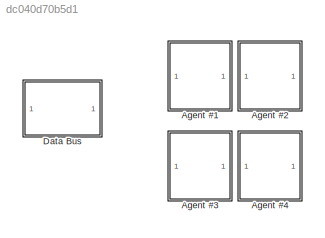
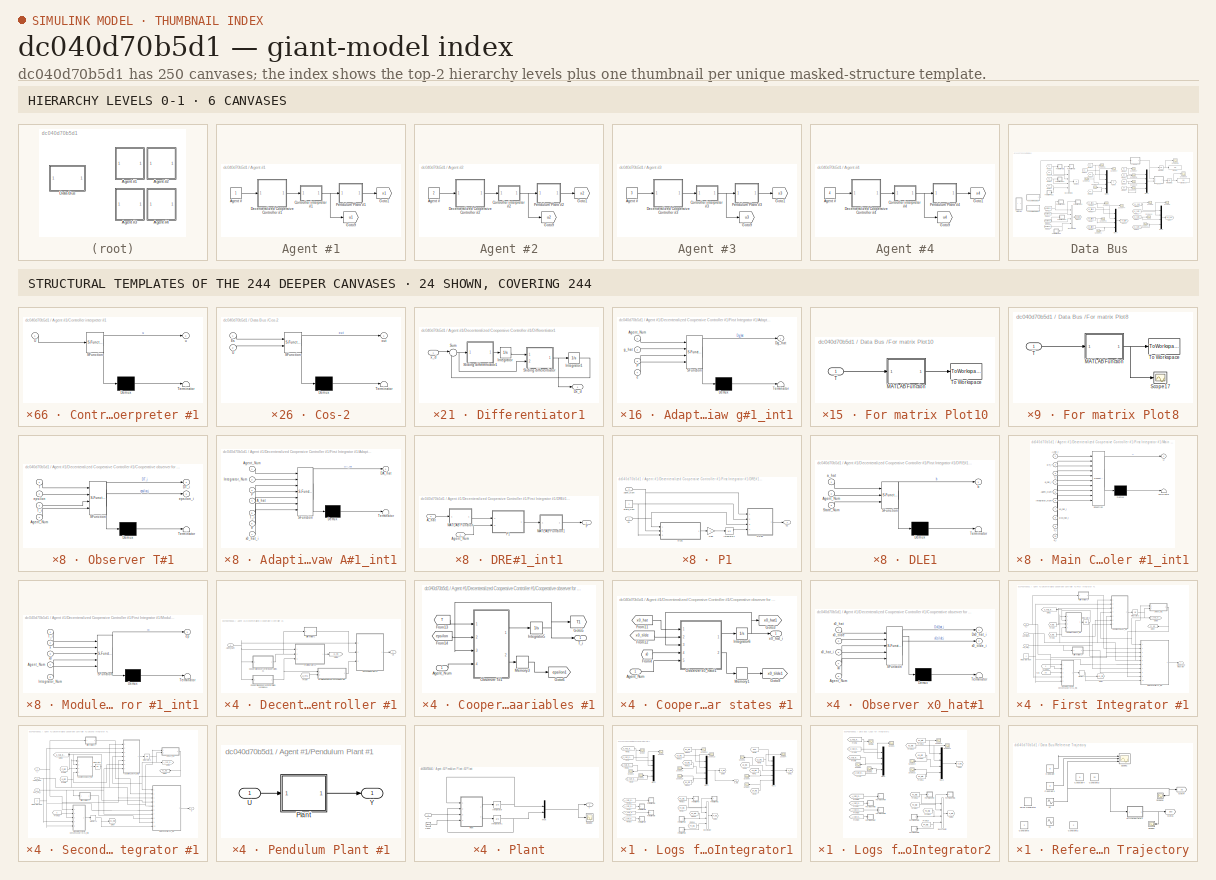
[diagram: thumbnail index - top-2 hierarchy levels (6 canvases) + 24 structural-template representatives of the remaining 244 canvases]
MODEL slx_dc040d70b5d1
KIND model
CONFIG AbsTol = auto
CONFIG EnableMultiTasking = on
CONFIG FixedStep = auto
CONFIG InitFcn = constant_CAMFC2_04_Simple_DoubleIntegrator_02
CONFIG MaxStep = auto
CONFIG MinStep = auto
CONFIG RelTol = 1e-3
CONFIG SampleTimeConstraint = Unconstrained
CONFIG Solver = ode45
CONFIG SolverName = ode45
CONFIG StartTime = 0.0
CONFIG StopTime = 100
BLOCK [SubSystem] Agent #1
  Ports = []
  RequestExecContextInheritance = off
  Variant = off
BLOCK [Constant] Agent #1/Agent #
BLOCK [SubSystem] Agent #1/Controller interpreter #1
  ErrorFcn = Stateflow.Translate.translate
  PermitHierarchicalResolution = ExplicitOnly
  Ports = [1, 1]
  RequestExecContextInheritance = off
  SFBlockType = MATLAB Function
  TreatAsAtomicUnit = on
  Variant = off
BLOCK [Demux] Agent #1/Controller interpreter #1/ Demux 
  Outputs = 1
  Ports = [1, 1]
BLOCK [S-Function] Agent #1/Controller interpreter #1/ SFunction 
  EnableBusSupport = on
  FunctionName = sf_sfun
  Parameters = n,n0
  PortCounts = [1 2]
  Ports = [1, 2]
  SFcnIsStateOwnerBlock = off
  SFunctionDeploymentMode = off
  Tag = Stateflow S-Function CAMFC2_04_simple_DoubleIntegrator_02 1
BLOCK [Terminator] Agent #1/Controller interpreter #1/ Terminator 
BLOCK [Inport] Agent #1/Controller interpreter #1/U
  IconDisplay = Port number
BLOCK [Outport] Agent #1/Controller interpreter #1/u
  IconDisplay = Port number
BLOCK [SubSystem] Agent #1/Decenteralized Cooperaive Controller #1
  Ports = [1, 1]
  RequestExecContextInheritance = off
  Variant = off
BLOCK [Inport] Agent #1/Decenteralized Cooperaive Controller #1/Agent_Num
  IconDisplay = Port number
BLOCK [SubSystem] Agent #1/Decenteralized Cooperaive Controller #1/Cooperative observer for formation variables #1
  Ports = [1, 1]
  RequestExecContextInheritance = off
  Variant = off
BLOCK [Inport] Agent #1/Decenteralized Cooperaive Controller #1/Cooperative observer for formation variables #1/Agent_Num
  IconDisplay = Port number
BLOCK [From] Agent #1/Decenteralized Cooperaive Controller #1/Cooperative observer for formation variables #1/From13
  GotoTag = T
  TagVisibility = global
BLOCK [From] Agent #1/Decenteralized Cooperaive Controller #1/Cooperative observer for formation variables #1/From14
  GotoTag = epsilon
  TagVisibility = global
BLOCK [Goto] Agent #1/Decenteralized Cooperaive Controller #1/Cooperative observer for formation variables #1/Goto5
  GotoTag = T1
  TagVisibility = global
BLOCK [Goto] Agent #1/Decenteralized Cooperaive Controller #1/Cooperative observer for formation variables #1/Goto6
  GotoTag = epsilon1
  TagVisibility = global
BLOCK [Integrator] Agent #1/Decenteralized Cooperaive Controller #1/Cooperative observer for formation variables #1/Integrator5
  InitialCondition = zeros(N+1,n)
  Ports = [1, 1]
BLOCK [Memory] Agent #1/Decenteralized Cooperaive Controller #1/Cooperative observer for formation variables #1/Memory3
  InitialCondition = zeros(N+1,n)
BLOCK [SubSystem] Agent #1/Decenteralized Cooperaive Controller #1/Cooperative observer for formation variables #1/Observer T#1
  ErrorFcn = Stateflow.Translate.translate
  PermitHierarchicalResolution = ExplicitOnly
  Ports = [4, 2]
  RequestExecContextInheritance = off
  SFBlockType = MATLAB Function
  TreatAsAtomicUnit = on
  Variant = off
BLOCK [Demux] Agent #1/Decenteralized Cooperaive Controller #1/Cooperative observer for formation variables #1/Observer T#1/ Demux 
  Outputs = 1
  Ports = [1, 1]
BLOCK [S-Function] Agent #1/Decenteralized Cooperaive Controller #1/Cooperative observer for formation variables #1/Observer T#1/ SFunction 
  EnableBusSupport = on
  FunctionName = sf_sfun
  Parameters = AN,BN,H,N,Observer_Gain1,Omega,T_struct,Upsilon_M,alpha,epsilon_struct,n
  PortCounts = [4 3]
  Ports = [4, 3]
  SFcnIsStateOwnerBlock = off
  SFunctionDeploymentMode = off
  Tag = Stateflow S-Function CAMFC2_04_simple_DoubleIntegrator_02 11
BLOCK [Terminator] Agent #1/Decenteralized Cooperaive Controller #1/Cooperative observer for formation variables #1/Observer T#1/ Terminator 
BLOCK [Inport] Agent #1/Decenteralized Cooperaive Controller #1/Cooperative observer for formation variables #1/Observer T#1/Agent_Num
  IconDisplay = Port number
  Port = 4
BLOCK [Outport] Agent #1/Decenteralized Cooperaive Controller #1/Cooperative observer for formation variables #1/Observer T#1/DT_i
  IconDisplay = Port number
BLOCK [Inport] Agent #1/Decenteralized Cooperaive Controller #1/Cooperative observer for formation variables #1/Observer T#1/T
  IconDisplay = Port number
BLOCK [Inport] Agent #1/Decenteralized Cooperaive Controller #1/Cooperative observer for formation variables #1/Observer T#1/T_i
  IconDisplay = Port number
  Port = 3
BLOCK [Inport] Agent #1/Decenteralized Cooperaive Controller #1/Cooperative observer for formation variables #1/Observer T#1/epsilon
  IconDisplay = Port number
  Port = 2
BLOCK [Outport] Agent #1/Decenteralized Cooperaive Controller #1/Cooperative observer for formation variables #1/Observer T#1/epsilon_i
  IconDisplay = Port number
  Port = 2
BLOCK [Outport] Agent #1/Decenteralized Cooperaive Controller #1/Cooperative observer for formation variables #1/T_i
  IconDisplay = Port number
BLOCK [SubSystem] Agent #1/Decenteralized Cooperaive Controller #1/Cooperative observer for leader states #1
  Ports = [1, 1]
  RequestExecContextInheritance = off
  Variant = off
BLOCK [Inport] Agent #1/Decenteralized Cooperaive Controller #1/Cooperative observer for leader states #1/Agent_Num
  IconDisplay = Port number
BLOCK [From] Agent #1/Decenteralized Cooperaive Controller #1/Cooperative observer for leader states #1/From11
  GotoTag = x0_hat
  TagVisibility = global
BLOCK [From] Agent #1/Decenteralized Cooperaive Controller #1/Cooperative observer for leader states #1/From12
  GotoTag = x0_tilde
  TagVisibility = global
BLOCK [From] Agent #1/Decenteralized Cooperaive Controller #1/Cooperative observer for leader states #1/From4
  GotoTag = x0
  TagVisibility = global
BLOCK [Goto] Agent #1/Decenteralized Cooperaive Controller #1/Cooperative observer for leader states #1/Goto3
  GotoTag = x0_hat1
  TagVisibility = global
BLOCK [Goto] Agent #1/Decenteralized Cooperaive Controller #1/Cooperative observer for leader states #1/Goto9
  GotoTag = x0_tilde1
  TagVisibility = global
BLOCK [Integrator] Agent #1/Decenteralized Cooperaive Controller #1/Cooperative observer for leader states #1/Integrator6
  InitialCondition = zeros(n0,1)
  Ports = [1, 1]
BLOCK [Memory] Agent #1/Decenteralized Cooperaive Controller #1/Cooperative observer for leader states #1/Memory1
  InitialCondition = zeros(n0,1)
BLOCK [SubSystem] Agent #1/Decenteralized Cooperaive Controller #1/Cooperative observer for leader states #1/Observer x0_hat#1
  ErrorFcn = Stateflow.Translate.translate
  PermitHierarchicalResolution = ExplicitOnly
  Ports = [5, 2]
  RequestExecContextInheritance = off
  SFBlockType = MATLAB Function
  TreatAsAtomicUnit = on
  Variant = off
BLOCK [Demux] Agent #1/Decenteralized Cooperaive Controller #1/Cooperative observer for leader states #1/Observer x0_hat#1/ Demux 
  Outputs = 1
  Ports = [1, 1]
BLOCK [S-Function] Agent #1/Decenteralized Cooperaive Controller #1/Cooperative observer for leader states #1/Observer x0_hat#1/ SFunction 
  EnableBusSupport = on
  FunctionName = sf_sfun
  Parameters = AN,BN,H,N,Observer_Gain,alpha,chi,n0
  PortCounts = [5 3]
  Ports = [5, 3]
  SFcnIsStateOwnerBlock = off
  SFunctionDeploymentMode = off
  Tag = Stateflow S-Function CAMFC2_04_simple_DoubleIntegrator_02 4
BLOCK [Terminator] Agent #1/Decenteralized Cooperaive Controller #1/Cooperative observer for leader states #1/Observer x0_hat#1/ Terminator 
BLOCK [Inport] Agent #1/Decenteralized Cooperaive Controller #1/Cooperative observer for leader states #1/Observer x0_hat#1/Agent_Num
  IconDisplay = Port number
  Port = 5
BLOCK [Outport] Agent #1/Decenteralized Cooperaive Controller #1/Cooperative observer for leader states #1/Observer x0_hat#1/Dx0_hat_i
  IconDisplay = Port number
BLOCK [Inport] Agent #1/Decenteralized Cooperaive Controller #1/Cooperative observer for leader states #1/Observer x0_hat#1/x0
  IconDisplay = Port number
  Port = 4
BLOCK [Inport] Agent #1/Decenteralized Cooperaive Controller #1/Cooperative observer for leader states #1/Observer x0_hat#1/x0_hat
  IconDisplay = Port number
BLOCK [Inport] Agent #1/Decenteralized Cooperaive Controller #1/Cooperative observer for leader states #1/Observer x0_hat#1/x0_hat_i
  IconDisplay = Port number
  Port = 3
BLOCK [Inport] Agent #1/Decenteralized Cooperaive Controller #1/Cooperative observer for leader states #1/Observer x0_hat#1/x0_tilde
  IconDisplay = Port number
  Port = 2
BLOCK [Outport] Agent #1/Decenteralized Cooperaive Controller #1/Cooperative observer for leader states #1/Observer x0_hat#1/x0_tilde_i
  IconDisplay = Port number
  Port = 2
BLOCK [Outport] Agent #1/Decenteralized Cooperaive Controller #1/Cooperative observer for leader states #1/x0_hat_i
  IconDisplay = Port number
BLOCK [SubSystem] Agent #1/Decenteralized Cooperaive Controller #1/Differentiator1
  Ports = [1, 1]
  RequestExecContextInheritance = off
  Variant = off
BLOCK [Outport] Agent #1/Decenteralized Cooperaive Controller #1/Differentiator1/Dx_d
  IconDisplay = Port number
BLOCK [Integrator] Agent #1/Decenteralized Cooperaive Controller #1/Differentiator1/Integrator
  InitialCondition = zeros(n0,1)
  Ports = [1, 1]
BLOCK [Integrator] Agent #1/Decenteralized Cooperaive Controller #1/Differentiator1/Integrator1
  InitialCondition = zeros(n0,1)
  Ports = [1, 1]
BLOCK [SubSystem] Agent #1/Decenteralized Cooperaive Controller #1/Differentiator1/Sliding differentiator
  ErrorFcn = Stateflow.Translate.translate
  PermitHierarchicalResolution = ExplicitOnly
  Ports = [2, 1]
  RequestExecContextInheritance = off
  SFBlockType = MATLAB Function
  TreatAsAtomicUnit = on
  Variant = off
BLOCK [Demux] Agent #1/Decenteralized Cooperaive Controller #1/Differentiator1/Sliding differentiator/ Demux 
  Outputs = 1
  Ports = [1, 1]
BLOCK [S-Function] Agent #1/Decenteralized Cooperaive Controller #1/Differentiator1/Sliding differentiator/ SFunction 
  EnableBusSupport = on
  FunctionName = sf_sfun
  Parameters = alpha,k1
  PortCounts = [2 2]
  Ports = [2, 2]
  SFcnIsStateOwnerBlock = off
  SFunctionDeploymentMode = off
  Tag = Stateflow S-Function CAMFC2_04_simple_DoubleIntegrator_02 23
BLOCK [Terminator] Agent #1/Decenteralized Cooperaive Controller #1/Differentiator1/Sliding differentiator/ Terminator 
BLOCK [Inport] Agent #1/Decenteralized Cooperaive Controller #1/Differentiator1/Sliding differentiator/e
  IconDisplay = Port number
  Port = 2
BLOCK [Outport] Agent #1/Decenteralized Cooperaive Controller #1/Differentiator1/Sliding differentiator/u
  IconDisplay = Port number
BLOCK [Inport] Agent #1/Decenteralized Cooperaive Controller #1/Differentiator1/Sliding differentiator/u1
  IconDisplay = Port number
BLOCK [SubSystem] Agent #1/Decenteralized Cooperaive Controller #1/Differentiator1/Sliding differentiator1
  ErrorFcn = Stateflow.Translate.translate
  PermitHierarchicalResolution = ExplicitOnly
  Ports = [1, 1]
  RequestExecContextInheritance = off
  SFBlockType = MATLAB Function
  TreatAsAtomicUnit = on
  Variant = off
BLOCK [Demux] Agent #1/Decenteralized Cooperaive Controller #1/Differentiator1/Sliding differentiator1/ Demux 
  Outputs = 1
  Ports = [1, 1]
BLOCK [S-Function] Agent #1/Decenteralized Cooperaive Controller #1/Differentiator1/Sliding differentiator1/ SFunction 
  EnableBusSupport = on
  FunctionName = sf_sfun
  Parameters = alpha,k2
  PortCounts = [1 2]
  Ports = [1, 2]
  SFcnIsStateOwnerBlock = off
  SFunctionDeploymentMode = off
  Tag = Stateflow S-Function CAMFC2_04_simple_DoubleIntegrator_02 24
BLOCK [Terminator] Agent #1/Decenteralized Cooperaive Controller #1/Differentiator1/Sliding differentiator1/ Terminator 
BLOCK [Outport] Agent #1/Decenteralized Cooperaive Controller #1/Differentiator1/Sliding differentiator1/Du1
  IconDisplay = Port number
BLOCK [Inport] Agent #1/Decenteralized Cooperaive Controller #1/Differentiator1/Sliding differentiator1/e
  IconDisplay = Port number
BLOCK [Sum] Agent #1/Decenteralized Cooperaive Controller #1/Differentiator1/Sum
  IconShape = round
  InputSameDT = off
  Inputs = |-+
  OutDataTypeStr = Inherit: Inherit via internal rule
  Ports = [2, 1]
  SaturateOnIntegerOverflow = off
BLOCK [Inport] Agent #1/Decenteralized Cooperaive Controller #1/Differentiator1/x_d
  IconDisplay = Port number
BLOCK [SubSystem] Agent #1/Decenteralized Cooperaive Controller #1/First Integrator #1
  Ports = [3, 1]
  RequestExecContextInheritance = off
  Variant = off
BLOCK [SubSystem] Agent #1/Decenteralized Cooperaive Controller #1/First Integrator #1/Adaptive Law A#1_int1
  ErrorFcn = Stateflow.Translate.translate
  PermitHierarchicalResolution = ExplicitOnly
  Ports = [7, 1]
  RequestExecContextInheritance = off
  SFBlockType = MATLAB Function
  TreatAsAtomicUnit = on
  Variant = off
BLOCK [Demux] Agent #1/Decenteralized Cooperaive Controller #1/First Integrator #1/Adaptive Law A#1_int1/ Demux 
  Outputs = 1
  Ports = [1, 1]
BLOCK [S-Function] Agent #1/Decenteralized Cooperaive Controller #1/First Integrator #1/Adaptive Law A#1_int1/ SFunction 
  EnableBusSupport = on
  FunctionName = sf_sfun
  Parameters = H,N,P_struct,gama2_Int1,n0,rho2
  PortCounts = [7 2]
  Ports = [7, 2]
  SFcnIsStateOwnerBlock = off
  SFunctionDeploymentMode = off
  Tag = Stateflow S-Function CAMFC2_04_simple_DoubleIntegrator_02 2
BLOCK [Terminator] Agent #1/Decenteralized Cooperaive Controller #1/First Integrator #1/Adaptive Law A#1_int1/ Terminator 
BLOCK [Inport] Agent #1/Decenteralized Cooperaive Controller #1/First Integrator #1/Adaptive Law A#1_int1/A_hat
  IconDisplay = Port number
  Port = 4
BLOCK [Inport] Agent #1/Decenteralized Cooperaive Controller #1/First Integrator #1/Adaptive Law A#1_int1/Agent_Num
  IconDisplay = Port number
BLOCK [Outport] Agent #1/Decenteralized Cooperaive Controller #1/First Integrator #1/Adaptive Law A#1_int1/DA_hat
  IconDisplay = Port number
BLOCK [Inport] Agent #1/Decenteralized Cooperaive Controller #1/First Integrator #1/Adaptive Law A#1_int1/Integrator_Num
  IconDisplay = Port number
  Port = 2
BLOCK [Inport] Agent #1/Decenteralized Cooperaive Controller #1/First Integrator #1/Adaptive Law A#1_int1/P
  IconDisplay = Port number
  Port = 3
BLOCK [Inport] Agent #1/Decenteralized Cooperaive Controller #1/First Integrator #1/Adaptive Law A#1_int1/T_i
  IconDisplay = Port number
  Port = 5
BLOCK [Inport] Agent #1/Decenteralized Cooperaive Controller #1/First Integrator #1/Adaptive Law A#1_int1/e
  IconDisplay = Port number
  Port = 6
BLOCK [Inport] Agent #1/Decenteralized Cooperaive Controller #1/First Integrator #1/Adaptive Law A#1_int1/x0_hat_i
  IconDisplay = Port number
  Port = 7
BLOCK [SubSystem] Agent #1/Decenteralized Cooperaive Controller #1/First Integrator #1/Adaptive Law g#1_int1
  ErrorFcn = Stateflow.Translate.translate
  PermitHierarchicalResolution = ExplicitOnly
  Ports = [4, 1]
  RequestExecContextInheritance = off
  SFBlockType = MATLAB Function
  TreatAsAtomicUnit = on
  Variant = off
BLOCK [Demux] Agent #1/Decenteralized Cooperaive Controller #1/First Integrator #1/Adaptive Law g#1_int1/ Demux 
  Outputs = 1
  Ports = [1, 1]
BLOCK [S-Function] Agent #1/Decenteralized Cooperaive Controller #1/First Integrator #1/Adaptive Law g#1_int1/ SFunction 
  EnableBusSupport = on
  FunctionName = sf_sfun
  Parameters = H,N,P_struct,gama1_Int1,n0,rho1
  PortCounts = [4 2]
  Ports = [4, 2]
  SFcnIsStateOwnerBlock = off
  SFunctionDeploymentMode = off
  Tag = Stateflow S-Function CAMFC2_04_simple_DoubleIntegrator_02 3
BLOCK [Terminator] Agent #1/Decenteralized Cooperaive Controller #1/First Integrator #1/Adaptive Law g#1_int1/ Terminator 
BLOCK [Inport] Agent #1/Decenteralized Cooperaive Controller #1/First Integrator #1/Adaptive Law g#1_int1/Agent_Num
  IconDisplay = Port number
BLOCK [Outport] Agent #1/Decenteralized Cooperaive Controller #1/First Integrator #1/Adaptive Law g#1_int1/Dg_hat
  IconDisplay = Port number
BLOCK [Inport] Agent #1/Decenteralized Cooperaive Controller #1/First Integrator #1/Adaptive Law g#1_int1/P
  IconDisplay = Port number
  Port = 3
BLOCK [Inport] Agent #1/Decenteralized Cooperaive Controller #1/First Integrator #1/Adaptive Law g#1_int1/e
  IconDisplay = Port number
  Port = 4
BLOCK [Inport] Agent #1/Decenteralized Cooperaive Controller #1/First Integrator #1/Adaptive Law g#1_int1/g_hat
  IconDisplay = Port number
  Port = 2
BLOCK [Inport] Agent #1/Decenteralized Cooperaive Controller #1/First Integrator #1/Agent Num
  IconDisplay = Port number
BLOCK [SubSystem] Agent #1/Decenteralized Cooperaive Controller #1/First Integrator #1/DRE#1_int1
  Ports = [2, 1]
  RequestExecContextInheritance = off
  Variant = off
BLOCK [Inport] Agent #1/Decenteralized Cooperaive Controller #1/First Integrator #1/DRE#1_int1/A_hat
  IconDisplay = Port number
  Port = 2
BLOCK [Inport] Agent #1/Decenteralized Cooperaive Controller #1/First Integrator #1/DRE#1_int1/Agent_Num
  IconDisplay = Port number
BLOCK [SubSystem] Agent #1/Decenteralized Cooperaive Controller #1/First Integrator #1/DRE#1_int1/MATLAB Function
  ErrorFcn = Stateflow.Translate.translate
  PermitHierarchicalResolution = ExplicitOnly
  Ports = [1, 1]
  RequestExecContextInheritance = off
  SFBlockType = MATLAB Function
  TreatAsAtomicUnit = on
  Variant = off
BLOCK [Demux] Agent #1/Decenteralized Cooperaive Controller #1/First Integrator #1/DRE#1_int1/MATLAB Function/ Demux 
  Outputs = 1
  Ports = [1, 1]
BLOCK [S-Function] Agent #1/Decenteralized Cooperaive Controller #1/First Integrator #1/DRE#1_int1/MATLAB Function/ SFunction 
  EnableBusSupport = on
  FunctionName = sf_sfun
  PortCounts = [1 2]
  Ports = [1, 2]
  SFcnIsStateOwnerBlock = off
  SFunctionDeploymentMode = off
  Tag = Stateflow S-Function CAMFC2_04_simple_DoubleIntegrator_02 13
BLOCK [Terminator] Agent #1/Decenteralized Cooperaive Controller #1/First Integrator #1/DRE#1_int1/MATLAB Function/ Terminator 
BLOCK [Inport] Agent #1/Decenteralized Cooperaive Controller #1/First Integrator #1/DRE#1_int1/MATLAB Function/inp
  IconDisplay = Port number
BLOCK [Outport] Agent #1/Decenteralized Cooperaive Controller #1/First Integrator #1/DRE#1_int1/MATLAB Function/otp
  IconDisplay = Port number
BLOCK [SubSystem] Agent #1/Decenteralized Cooperaive Controller #1/First Integrator #1/DRE#1_int1/MATLAB Function1
  ErrorFcn = Stateflow.Translate.translate
  PermitHierarchicalResolution = ExplicitOnly
  Ports = [1, 1]
  RequestExecContextInheritance = off
  SFBlockType = MATLAB Function
  TreatAsAtomicUnit = on
  Variant = off
BLOCK [Demux] Agent #1/Decenteralized Cooperaive Controller #1/First Integrator #1/DRE#1_int1/MATLAB Function1/ Demux 
  Outputs = 1
  Ports = [1, 1]
BLOCK [S-Function] Agent #1/Decenteralized Cooperaive Controller #1/First Integrator #1/DRE#1_int1/MATLAB Function1/ SFunction 
  EnableBusSupport = on
  FunctionName = sf_sfun
  PortCounts = [1 2]
  Ports = [1, 2]
  SFcnIsStateOwnerBlock = off
  SFunctionDeploymentMode = off
  Tag = Stateflow S-Function CAMFC2_04_simple_DoubleIntegrator_02 46
BLOCK [Terminator] Agent #1/Decenteralized Cooperaive Controller #1/First Integrator #1/DRE#1_int1/MATLAB Function1/ Terminator 
BLOCK [Inport] Agent #1/Decenteralized Cooperaive Controller #1/First Integrator #1/DRE#1_int1/MATLAB Function1/inp
  IconDisplay = Port number
BLOCK [Outport] Agent #1/Decenteralized Cooperaive Controller #1/First Integrator #1/DRE#1_int1/MATLAB Function1/otp
  IconDisplay = Port number
BLOCK [Outport] Agent #1/Decenteralized Cooperaive Controller #1/First Integrator #1/DRE#1_int1/P
  IconDisplay = Port number
BLOCK [SubSystem] Agent #1/Decenteralized Cooperaive Controller #1/First Integrator #1/DRE#1_int1/P1
  Ports = [2, 1]
  RequestExecContextInheritance = off
  Variant = off
BLOCK [Inport] Agent #1/Decenteralized Cooperaive Controller #1/First Integrator #1/DRE#1_int1/P1/Agent_Num
  IconDisplay = Port number
  Port = 2
BLOCK [SubSystem] Agent #1/Decenteralized Cooperaive Controller #1/First Integrator #1/DRE#1_int1/P1/DLE1
  ErrorFcn = Stateflow.Translate.translate
  PermitHierarchicalResolution = ExplicitOnly
  Ports = [3, 1]
  RequestExecContextInheritance = off
  SFBlockType = MATLAB Function
  TreatAsAtomicUnit = on
  Variant = off
BLOCK [Demux] Agent #1/Decenteralized Cooperaive Controller #1/First Integrator #1/DRE#1_int1/P1/DLE1/ Demux 
  Outputs = 1
  Ports = [1, 1]
BLOCK [S-Function] Agent #1/Decenteralized Cooperaive Controller #1/First Integrator #1/DRE#1_int1/P1/DLE1/ SFunction 
  EnableBusSupport = on
  FunctionName = sf_sfun
  Parameters = H,Q_Int2
  PortCounts = [3 2]
  Ports = [3, 2]
  SFcnIsStateOwnerBlock = off
  SFunctionDeploymentMode = off
  Tag = Stateflow S-Function CAMFC2_04_simple_DoubleIntegrator_02 39
BLOCK [Terminator] Agent #1/Decenteralized Cooperaive Controller #1/First Integrator #1/DRE#1_int1/P1/DLE1/ Terminator 
BLOCK [Inport] Agent #1/Decenteralized Cooperaive Controller #1/First Integrator #1/DRE#1_int1/P1/DLE1/Agent_Num
  IconDisplay = Port number
  Port = 2
BLOCK [Inport] Agent #1/Decenteralized Cooperaive Controller #1/First Integrator #1/DRE#1_int1/P1/DLE1/State_Num
  IconDisplay = Port number
  Port = 3
BLOCK [Inport] Agent #1/Decenteralized Cooperaive Controller #1/First Integrator #1/DRE#1_int1/P1/DLE1/a_hat
  IconDisplay = Port number
BLOCK [Outport] Agent #1/Decenteralized Cooperaive Controller #1/First Integrator #1/DRE#1_int1/P1/DLE1/b
  IconDisplay = Port number
BLOCK [SubSystem] Agent #1/Decenteralized Cooperaive Controller #1/First Integrator #1/DRE#1_int1/P1/DRE2
  ErrorFcn = Stateflow.Translate.translate
  PermitHierarchicalResolution = ExplicitOnly
  Ports = [4, 1]
  RequestExecContextInheritance = off
  SFBlockType = MATLAB Function
  TreatAsAtomicUnit = on
  Variant = off
BLOCK [Demux] Agent #1/Decenteralized Cooperaive Controller #1/First Integrator #1/DRE#1_int1/P1/DRE2/ Demux 
  Outputs = 1
  Ports = [1, 1]
BLOCK [S-Function] Agent #1/Decenteralized Cooperaive Controller #1/First Integrator #1/DRE#1_int1/P1/DRE2/ SFunction 
  EnableBusSupport = on
  FunctionName = sf_sfun
  Parameters = H,Q_Int2
  PortCounts = [4 2]
  Ports = [4, 2]
  SFcnIsStateOwnerBlock = off
  SFunctionDeploymentMode = off
  Tag = Stateflow S-Function CAMFC2_04_simple_DoubleIntegrator_02 42
BLOCK [Terminator] Agent #1/Decenteralized Cooperaive Controller #1/First Integrator #1/DRE#1_int1/P1/DRE2/ Terminator 
BLOCK [Inport] Agent #1/Decenteralized Cooperaive Controller #1/First Integrator #1/DRE#1_int1/P1/DRE2/Agent_Num
  IconDisplay = Port number
BLOCK [Inport] Agent #1/Decenteralized Cooperaive Controller #1/First Integrator #1/DRE#1_int1/P1/DRE2/State_Num
  IconDisplay = Port number
  Port = 2
BLOCK [Inport] Agent #1/Decenteralized Cooperaive Controller #1/First Integrator #1/DRE#1_int1/P1/DRE2/a_hat
  IconDisplay = Port number
  Port = 3
BLOCK [Outport] Agent #1/Decenteralized Cooperaive Controller #1/First Integrator #1/DRE#1_int1/P1/DRE2/p
  IconDisplay = Port number
BLOCK [Inport] Agent #1/Decenteralized Cooperaive Controller #1/First Integrator #1/DRE#1_int1/P1/DRE2/val_exp
  IconDisplay = Port number
  Port = 4
BLOCK [Gain] Agent #1/Decenteralized Cooperaive Controller #1/First Integrator #1/DRE#1_int1/P1/Gain
  Gain = -1
  OutDataTypeStr = Inherit: Inherit via internal rule
  ParamDataTypeStr = Inherit: Inherit via internal rule
  SaturateOnIntegerOverflow = off
BLOCK [Integrator] Agent #1/Decenteralized Cooperaive Controller #1/First Integrator #1/DRE#1_int1/P1/Integrator1
  Ports = [1, 1]
BLOCK [Constant] Agent #1/Decenteralized Cooperaive Controller #1/First Integrator #1/DRE#1_int1/P1/State_Num
BLOCK [Inport] Agent #1/Decenteralized Cooperaive Controller #1/First Integrator #1/DRE#1_int1/P1/a1
  IconDisplay = Port number
BLOCK [Outport] Agent #1/Decenteralized Cooperaive Controller #1/First Integrator #1/DRE#1_int1/P1/p1
  IconDisplay = Port number
BLOCK [SubSystem] Agent #1/Decenteralized Cooperaive Controller #1/First Integrator #1/Differentiator1
  Ports = [1, 1]
  RequestExecContextInheritance = off
  Variant = off
BLOCK [Outport] Agent #1/Decenteralized Cooperaive Controller #1/First Integrator #1/Differentiator1/Dx_d
  IconDisplay = Port number
BLOCK [Integrator] Agent #1/Decenteralized Cooperaive Controller #1/First Integrator #1/Differentiator1/Integrator
  InitialCondition = zeros(n0,1)
  Ports = [1, 1]
BLOCK [Integrator] Agent #1/Decenteralized Cooperaive Controller #1/First Integrator #1/Differentiator1/Integrator1
  InitialCondition = zeros(n0,1)
  Ports = [1, 1]
BLOCK [SubSystem] Agent #1/Decenteralized Cooperaive Controller #1/First Integrator #1/Differentiator1/Sliding differentiator
  ErrorFcn = Stateflow.Translate.translate
  PermitHierarchicalResolution = ExplicitOnly
  Ports = [2, 1]
  RequestExecContextInheritance = off
  SFBlockType = MATLAB Function
  TreatAsAtomicUnit = on
  Variant = off
BLOCK [Demux] Agent #1/Decenteralized Cooperaive Controller #1/First Integrator #1/Differentiator1/Sliding differentiator/ Demux 
  Outputs = 1
  Ports = [1, 1]
BLOCK [S-Function] Agent #1/Decenteralized Cooperaive Controller #1/First Integrator #1/Differentiator1/Sliding differentiator/ SFunction 
  EnableBusSupport = on
  FunctionName = sf_sfun
  Parameters = alpha,k1
  PortCounts = [2 2]
  Ports = [2, 2]
  SFcnIsStateOwnerBlock = off
  SFunctionDeploymentMode = off
  Tag = Stateflow S-Function CAMFC2_04_simple_DoubleIntegrator_02 5
BLOCK [Terminator] Agent #1/Decenteralized Cooperaive Controller #1/First Integrator #1/Differentiator1/Sliding differentiator/ Terminator 
BLOCK [Inport] Agent #1/Decenteralized Cooperaive Controller #1/First Integrator #1/Differentiator1/Sliding differentiator/e
  IconDisplay = Port number
  Port = 2
BLOCK [Outport] Agent #1/Decenteralized Cooperaive Controller #1/First Integrator #1/Differentiator1/Sliding differentiator/u
  IconDisplay = Port number
BLOCK [Inport] Agent #1/Decenteralized Cooperaive Controller #1/First Integrator #1/Differentiator1/Sliding differentiator/u1
  IconDisplay = Port number
BLOCK [SubSystem] Agent #1/Decenteralized Cooperaive Controller #1/First Integrator #1/Differentiator1/Sliding differentiator1
  ErrorFcn = Stateflow.Translate.translate
  PermitHierarchicalResolution = ExplicitOnly
  Ports = [1, 1]
  RequestExecContextInheritance = off
  SFBlockType = MATLAB Function
  TreatAsAtomicUnit = on
  Variant = off
BLOCK [Demux] Agent #1/Decenteralized Cooperaive Controller #1/First Integrator #1/Differentiator1/Sliding differentiator1/ Demux 
  Outputs = 1
  Ports = [1, 1]
BLOCK [S-Function] Agent #1/Decenteralized Cooperaive Controller #1/First Integrator #1/Differentiator1/Sliding differentiator1/ SFunction 
  EnableBusSupport = on
  FunctionName = sf_sfun
  Parameters = alpha,k2
  PortCounts = [1 2]
  Ports = [1, 2]
  SFcnIsStateOwnerBlock = off
  SFunctionDeploymentMode = off
  Tag = Stateflow S-Function CAMFC2_04_simple_DoubleIntegrator_02 6
BLOCK [Terminator] Agent #1/Decenteralized Cooperaive Controller #1/First Integrator #1/Differentiator1/Sliding differentiator1/ Terminator 
BLOCK [Outport] Agent #1/Decenteralized Cooperaive Controller #1/First Integrator #1/Differentiator1/Sliding differentiator1/Du1
  IconDisplay = Port number
BLOCK [Inport] Agent #1/Decenteralized Cooperaive Controller #1/First Integrator #1/Differentiator1/Sliding differentiator1/e
  IconDisplay = Port number
BLOCK [Sum] Agent #1/Decenteralized Cooperaive Controller #1/First Integrator #1/Differentiator1/Sum
  IconShape = round
  InputSameDT = off
  Inputs = |-+
  OutDataTypeStr = Inherit: Inherit via internal rule
  Ports = [2, 1]
  SaturateOnIntegerOverflow = off
BLOCK [Inport] Agent #1/Decenteralized Cooperaive Controller #1/First Integrator #1/Differentiator1/x_d
  IconDisplay = Port number
BLOCK [SubSystem] Agent #1/Decenteralized Cooperaive Controller #1/First Integrator #1/Differentiator2
  Ports = [1, 1]
  RequestExecContextInheritance = off
  Variant = off
BLOCK [Outport] Agent #1/Decenteralized Cooperaive Controller #1/First Integrator #1/Differentiator2/Dx_d
  IconDisplay = Port number
BLOCK [Integrator] Agent #1/Decenteralized Cooperaive Controller #1/First Integrator #1/Differentiator2/Integrator
  InitialCondition = zeros(N+1,n)
  Ports = [1, 1]
BLOCK [Integrator] Agent #1/Decenteralized Cooperaive Controller #1/First Integrator #1/Differentiator2/Integrator1
  InitialCondition = zeros(N+1,n)
  Ports = [1, 1]
BLOCK [SubSystem] Agent #1/Decenteralized Cooperaive Controller #1/First Integrator #1/Differentiator2/Sliding differentiator
  ErrorFcn = Stateflow.Translate.translate
  PermitHierarchicalResolution = ExplicitOnly
  Ports = [2, 1]
  RequestExecContextInheritance = off
  SFBlockType = MATLAB Function
  TreatAsAtomicUnit = on
  Variant = off
BLOCK [Demux] Agent #1/Decenteralized Cooperaive Controller #1/First Integrator #1/Differentiator2/Sliding differentiator/ Demux 
  Outputs = 1
  Ports = [1, 1]
BLOCK [S-Function] Agent #1/Decenteralized Cooperaive Controller #1/First Integrator #1/Differentiator2/Sliding differentiator/ SFunction 
  EnableBusSupport = on
  FunctionName = sf_sfun
  Parameters = alpha,k1
  PortCounts = [2 2]
  Ports = [2, 2]
  SFcnIsStateOwnerBlock = off
  SFunctionDeploymentMode = off
  Tag = Stateflow S-Function CAMFC2_04_simple_DoubleIntegrator_02 12
BLOCK [Terminator] Agent #1/Decenteralized Cooperaive Controller #1/First Integrator #1/Differentiator2/Sliding differentiator/ Terminator 
BLOCK [Inport] Agent #1/Decenteralized Cooperaive Controller #1/First Integrator #1/Differentiator2/Sliding differentiator/e
  IconDisplay = Port number
  Port = 2
BLOCK [Outport] Agent #1/Decenteralized Cooperaive Controller #1/First Integrator #1/Differentiator2/Sliding differentiator/u
  IconDisplay = Port number
BLOCK [Inport] Agent #1/Decenteralized Cooperaive Controller #1/First Integrator #1/Differentiator2/Sliding differentiator/u1
  IconDisplay = Port number
BLOCK [SubSystem] Agent #1/Decenteralized Cooperaive Controller #1/First Integrator #1/Differentiator2/Sliding differentiator1
  ErrorFcn = Stateflow.Translate.translate
  PermitHierarchicalResolution = ExplicitOnly
  Ports = [1, 1]
  RequestExecContextInheritance = off
  SFBlockType = MATLAB Function
  TreatAsAtomicUnit = on
  Variant = off
BLOCK [Demux] Agent #1/Decenteralized Cooperaive Controller #1/First Integrator #1/Differentiator2/Sliding differentiator1/ Demux 
  Outputs = 1
  Ports = [1, 1]
BLOCK [S-Function] Agent #1/Decenteralized Cooperaive Controller #1/First Integrator #1/Differentiator2/Sliding differentiator1/ SFunction 
  EnableBusSupport = on
  FunctionName = sf_sfun
  Parameters = alpha,k2
  PortCounts = [1 2]
  Ports = [1, 2]
  SFcnIsStateOwnerBlock = off
  SFunctionDeploymentMode = off
  Tag = Stateflow S-Function CAMFC2_04_simple_DoubleIntegrator_02 22
BLOCK [Terminator] Agent #1/Decenteralized Cooperaive Controller #1/First Integrator #1/Differentiator2/Sliding differentiator1/ Terminator 
BLOCK [Outport] Agent #1/Decenteralized Cooperaive Controller #1/First Integrator #1/Differentiator2/Sliding differentiator1/Du1
  IconDisplay = Port number
BLOCK [Inport] Agent #1/Decenteralized Cooperaive Controller #1/First Integrator #1/Differentiator2/Sliding differentiator1/e
  IconDisplay = Port number
BLOCK [Sum] Agent #1/Decenteralized Cooperaive Controller #1/First Integrator #1/Differentiator2/Sum
  IconShape = round
  InputSameDT = off
  Inputs = |-+
  OutDataTypeStr = Inherit: Inherit via internal rule
  Ports = [2, 1]
  SaturateOnIntegerOverflow = off
BLOCK [Inport] Agent #1/Decenteralized Cooperaive Controller #1/First Integrator #1/Differentiator2/x_d
  IconDisplay = Port number
BLOCK [From] Agent #1/Decenteralized Cooperaive Controller #1/First Integrator #1/From
  GotoTag = x0
  TagVisibility = global
BLOCK [From] Agent #1/Decenteralized Cooperaive Controller #1/First Integrator #1/From10
  GotoTag = x
  TagVisibility = global
BLOCK [From] Agent #1/Decenteralized Cooperaive Controller #1/First Integrator #1/From2
  GotoTag = e_Int1
  TagVisibility = global
BLOCK [From] Agent #1/Decenteralized Cooperaive Controller #1/First Integrator #1/From7
  GotoTag = P_Int1
  TagVisibility = global
BLOCK [Goto] Agent #1/Decenteralized Cooperaive Controller #1/First Integrator #1/Goto2
  GotoTag = g_hat1_Int1
  TagVisibility = global
BLOCK [Goto] Agent #1/Decenteralized Cooperaive Controller #1/First Integrator #1/Goto4
  GotoTag = P1_Int1
  TagVisibility = global
BLOCK [Goto] Agent #1/Decenteralized Cooperaive Controller #1/First Integrator #1/Goto7
  GotoTag = e1_Int1
  TagVisibility = global
BLOCK [Goto] Agent #1/Decenteralized Cooperaive Controller #1/First Integrator #1/Goto8
  GotoTag = A_hat1_Int1
  TagVisibility = global
BLOCK [Constant] Agent #1/Decenteralized Cooperaive Controller #1/First Integrator #1/Integrator Num
BLOCK [Integrator] Agent #1/Decenteralized Cooperaive Controller #1/First Integrator #1/Integrator2
  InitialCondition = zeros(n0,1)
  Ports = [1, 1]
BLOCK [Integrator] Agent #1/Decenteralized Cooperaive Controller #1/First Integrator #1/Integrator3
  InitialCondition = zeros(n0)
  Ports = [1, 1]
BLOCK [SubSystem] Agent #1/Decenteralized Cooperaive Controller #1/First Integrator #1/Main Controller #1_int1
  ErrorFcn = Stateflow.Translate.translate
  PermitHierarchicalResolution = ExplicitOnly
  Ports = [10, 1]
  RequestExecContextInheritance = off
  SFBlockType = MATLAB Function
  TreatAsAtomicUnit = on
  Variant = off
BLOCK [Demux] Agent #1/Decenteralized Cooperaive Controller #1/First Integrator #1/Main Controller #1_int1/ Demux 
  Outputs = 1
  Ports = [1, 1]
BLOCK [S-Function] Agent #1/Decenteralized Cooperaive Controller #1/First Integrator #1/Main Controller #1_int1/ SFunction 
  EnableBusSupport = on
  FunctionName = sf_sfun
  Parameters = n0
  PortCounts = [10 2]
  Ports = [10, 2]
  SFcnIsStateOwnerBlock = off
  SFunctionDeploymentMode = off
  Tag = Stateflow S-Function CAMFC2_04_simple_DoubleIntegrator_02 9
BLOCK [Terminator] Agent #1/Decenteralized Cooperaive Controller #1/First Integrator #1/Main Controller #1_int1/ Terminator 
BLOCK [Inport] Agent #1/Decenteralized Cooperaive Controller #1/First Integrator #1/Main Controller #1_int1/A_hat_i
  IconDisplay = Port number
BLOCK [Inport] Agent #1/Decenteralized Cooperaive Controller #1/First Integrator #1/Main Controller #1_int1/Agent_Num
  IconDisplay = Port number
  Port = 5
BLOCK [Inport] Agent #1/Decenteralized Cooperaive Controller #1/First Integrator #1/Main Controller #1_int1/DT_i
  IconDisplay = Port number
  Port = 2
BLOCK [Inport] Agent #1/Decenteralized Cooperaive Controller #1/First Integrator #1/Main Controller #1_int1/Dx0_hat_i
  IconDisplay = Port number
  Port = 8
BLOCK [Inport] Agent #1/Decenteralized Cooperaive Controller #1/First Integrator #1/Main Controller #1_int1/Integrator_Num
  IconDisplay = Port number
  Port = 6
BLOCK [Inport] Agent #1/Decenteralized Cooperaive Controller #1/First Integrator #1/Main Controller #1_int1/P_i
  IconDisplay = Port number
  Port = 9
BLOCK [Inport] Agent #1/Decenteralized Cooperaive Controller #1/First Integrator #1/Main Controller #1_int1/T_i
  IconDisplay = Port number
  Port = 3
BLOCK [Outport] Agent #1/Decenteralized Cooperaive Controller #1/First Integrator #1/Main Controller #1_int1/U
  IconDisplay = Port number
BLOCK [Inport] Agent #1/Decenteralized Cooperaive Controller #1/First Integrator #1/Main Controller #1_int1/e_i
  IconDisplay = Port number
  Port = 10
BLOCK [Inport] Agent #1/Decenteralized Cooperaive Controller #1/First Integrator #1/Main Controller #1_int1/g_hat_i
  IconDisplay = Port number
  Port = 4
BLOCK [Inport] Agent #1/Decenteralized Cooperaive Controller #1/First Integrator #1/Main Controller #1_int1/x0_hat_i
  IconDisplay = Port number
  Port = 7
BLOCK [Memory] Agent #1/Decenteralized Cooperaive Controller #1/First Integrator #1/Memory4
  InitialCondition = zeros(n0,1)
BLOCK [SubSystem] Agent #1/Decenteralized Cooperaive Controller #1/First Integrator #1/Module to compute Consensus Error #1_int1
  ErrorFcn = Stateflow.Translate.translate
  PermitHierarchicalResolution = ExplicitOnly
  Ports = [5, 1]
  RequestExecContextInheritance = off
  SFBlockType = MATLAB Function
  TreatAsAtomicUnit = on
  Variant = off
BLOCK [Demux] Agent #1/Decenteralized Cooperaive Controller #1/First Integrator #1/Module to compute Consensus Error #1_int1/ Demux 
  Outputs = 1
  Ports = [1, 1]
BLOCK [S-Function] Agent #1/Decenteralized Cooperaive Controller #1/First Integrator #1/Module to compute Consensus Error #1_int1/ SFunction 
  EnableBusSupport = on
  FunctionName = sf_sfun
  Parameters = AN,BN,N,n,n0
  PortCounts = [5 2]
  Ports = [5, 2]
  SFcnIsStateOwnerBlock = off
  SFunctionDeploymentMode = off
  Tag = Stateflow S-Function CAMFC2_04_simple_DoubleIntegrator_02 10
BLOCK [Terminator] Agent #1/Decenteralized Cooperaive Controller #1/First Integrator #1/Module to compute Consensus Error #1_int1/ Terminator 
BLOCK [Inport] Agent #1/Decenteralized Cooperaive Controller #1/First Integrator #1/Module to compute Consensus Error #1_int1/Agent_Num
  IconDisplay = Port number
  Port = 4
BLOCK [Inport] Agent #1/Decenteralized Cooperaive Controller #1/First Integrator #1/Module to compute Consensus Error #1_int1/Integrator_Num
  IconDisplay = Port number
  Port = 5
BLOCK [Inport] Agent #1/Decenteralized Cooperaive Controller #1/First Integrator #1/Module to compute Consensus Error #1_int1/T_i
  IconDisplay = Port number
BLOCK [Outport] Agent #1/Decenteralized Cooperaive Controller #1/First Integrator #1/Module to compute Consensus Error #1_int1/ep
  IconDisplay = Port number
BLOCK [Inport] Agent #1/Decenteralized Cooperaive Controller #1/First Integrator #1/Module to compute Consensus Error #1_int1/x
  IconDisplay = Port number
  Port = 2
BLOCK [Inport] Agent #1/Decenteralized Cooperaive Controller #1/First Integrator #1/Module to compute Consensus Error #1_int1/x0
  IconDisplay = Port number
  Port = 3
BLOCK [Inport] Agent #1/Decenteralized Cooperaive Controller #1/First Integrator #1/T_i
  IconDisplay = Port number
  Port = 3
BLOCK [Outport] Agent #1/Decenteralized Cooperaive Controller #1/First Integrator #1/U to Second Integrator
  IconDisplay = Port number
BLOCK [Inport] Agent #1/Decenteralized Cooperaive Controller #1/First Integrator #1/x0_hat_i
  IconDisplay = Port number
  Port = 2
BLOCK [From] Agent #1/Decenteralized Cooperaive Controller #1/From7
  GotoTag = U_Int1
  TagVisibility = global
BLOCK [Goto] Agent #1/Decenteralized Cooperaive Controller #1/Goto8
  GotoTag = U1_Int1
  TagVisibility = global
BLOCK [SubSystem] Agent #1/Decenteralized Cooperaive Controller #1/Second Integrator #1
  Ports = [3, 1]
  RequestExecContextInheritance = off
  Variant = off
BLOCK [SubSystem] Agent #1/Decenteralized Cooperaive Controller #1/Second Integrator #1/Adaptive Law A#1_int2
  ErrorFcn = Stateflow.Translate.translate
  PermitHierarchicalResolution = ExplicitOnly
  Ports = [7, 1]
  RequestExecContextInheritance = off
  SFBlockType = MATLAB Function
  TreatAsAtomicUnit = on
  Variant = off
BLOCK [Demux] Agent #1/Decenteralized Cooperaive Controller #1/Second Integrator #1/Adaptive Law A#1_int2/ Demux 
  Outputs = 1
  Ports = [1, 1]
BLOCK [S-Function] Agent #1/Decenteralized Cooperaive Controller #1/Second Integrator #1/Adaptive Law A#1_int2/ SFunction 
  EnableBusSupport = on
  FunctionName = sf_sfun
  Parameters = H,N,P_struct,gama2_Int2,n0,rho2
  PortCounts = [7 2]
  Ports = [7, 2]
  SFcnIsStateOwnerBlock = off
  SFunctionDeploymentMode = off
  Tag = Stateflow S-Function CAMFC2_04_simple_DoubleIntegrator_02 50
BLOCK [Terminator] Agent #1/Decenteralized Cooperaive Controller #1/Second Integrator #1/Adaptive Law A#1_int2/ Terminator 
BLOCK [Inport] Agent #1/Decenteralized Cooperaive Controller #1/Second Integrator #1/Adaptive Law A#1_int2/A_hat
  IconDisplay = Port number
  Port = 4
BLOCK [Inport] Agent #1/Decenteralized Cooperaive Controller #1/Second Integrator #1/Adaptive Law A#1_int2/Agent_Num
  IconDisplay = Port number
BLOCK [Outport] Agent #1/Decenteralized Cooperaive Controller #1/Second Integrator #1/Adaptive Law A#1_int2/DA_hat
  IconDisplay = Port number
BLOCK [Inport] Agent #1/Decenteralized Cooperaive Controller #1/Second Integrator #1/Adaptive Law A#1_int2/Integrator_Num
  IconDisplay = Port number
  Port = 2
BLOCK [Inport] Agent #1/Decenteralized Cooperaive Controller #1/Second Integrator #1/Adaptive Law A#1_int2/P
  IconDisplay = Port number
  Port = 3
BLOCK [Inport] Agent #1/Decenteralized Cooperaive Controller #1/Second Integrator #1/Adaptive Law A#1_int2/T_i
  IconDisplay = Port number
  Port = 5
BLOCK [Inport] Agent #1/Decenteralized Cooperaive Controller #1/Second Integrator #1/Adaptive Law A#1_int2/e
  IconDisplay = Port number
  Port = 6
BLOCK [Inport] Agent #1/Decenteralized Cooperaive Controller #1/Second Integrator #1/Adaptive Law A#1_int2/x0_hat_i
  IconDisplay = Port number
  Port = 7
BLOCK [SubSystem] Agent #1/Decenteralized Cooperaive Controller #1/Second Integrator #1/Adaptive Law g#1_int2
  ErrorFcn = Stateflow.Translate.translate
  PermitHierarchicalResolution = ExplicitOnly
  Ports = [4, 1]
  RequestExecContextInheritance = off
  SFBlockType = MATLAB Function
  TreatAsAtomicUnit = on
  Variant = off
BLOCK [Demux] Agent #1/Decenteralized Cooperaive Controller #1/Second Integrator #1/Adaptive Law g#1_int2/ Demux 
  Outputs = 1
  Ports = [1, 1]
BLOCK [S-Function] Agent #1/Decenteralized Cooperaive Controller #1/Second Integrator #1/Adaptive Law g#1_int2/ SFunction 
  EnableBusSupport = on
  FunctionName = sf_sfun
  Parameters = H,N,P_struct,gama1_Int2,n0,rho1
  PortCounts = [4 2]
  Ports = [4, 2]
  SFcnIsStateOwnerBlock = off
  SFunctionDeploymentMode = off
  Tag = Stateflow S-Function CAMFC2_04_simple_DoubleIntegrator_02 51
BLOCK [Terminator] Agent #1/Decenteralized Cooperaive Controller #1/Second Integrator #1/Adaptive Law g#1_int2/ Terminator 
BLOCK [Inport] Agent #1/Decenteralized Cooperaive Controller #1/Second Integrator #1/Adaptive Law g#1_int2/Agent_Num
  IconDisplay = Port number
BLOCK [Outport] Agent #1/Decenteralized Cooperaive Controller #1/Second Integrator #1/Adaptive Law g#1_int2/Dg_hat
  IconDisplay = Port number
BLOCK [Inport] Agent #1/Decenteralized Cooperaive Controller #1/Second Integrator #1/Adaptive Law g#1_int2/P
  IconDisplay = Port number
  Port = 3
BLOCK [Inport] Agent #1/Decenteralized Cooperaive Controller #1/Second Integrator #1/Adaptive Law g#1_int2/e
  IconDisplay = Port number
  Port = 4
BLOCK [Inport] Agent #1/Decenteralized Cooperaive Controller #1/Second Integrator #1/Adaptive Law g#1_int2/g_hat
  IconDisplay = Port number
  Port = 2
BLOCK [Inport] Agent #1/Decenteralized Cooperaive Controller #1/Second Integrator #1/Agent_Num
  IconDisplay = Port number
BLOCK [SubSystem] Agent #1/Decenteralized Cooperaive Controller #1/Second Integrator #1/DRE#1_int2
  Ports = [2, 1]
  RequestExecContextInheritance = off
  Variant = off
BLOCK [Inport] Agent #1/Decenteralized Cooperaive Controller #1/Second Integrator #1/DRE#1_int2/A_hat
  IconDisplay = Port number
  Port = 2
BLOCK [Inport] Agent #1/Decenteralized Cooperaive Controller #1/Second Integrator #1/DRE#1_int2/Agent_Num
  IconDisplay = Port number
BLOCK [SubSystem] Agent #1/Decenteralized Cooperaive Controller #1/Second Integrator #1/DRE#1_int2/MATLAB Function
  ErrorFcn = Stateflow.Translate.translate
  PermitHierarchicalResolution = ExplicitOnly
  Ports = [1, 1]
  RequestExecContextInheritance = off
  SFBlockType = MATLAB Function
  TreatAsAtomicUnit = on
  Variant = off
BLOCK [Demux] Agent #1/Decenteralized Cooperaive Controller #1/Second Integrator #1/DRE#1_int2/MATLAB Function/ Demux 
  Outputs = 1
  Ports = [1, 1]
BLOCK [S-Function] Agent #1/Decenteralized Cooperaive Controller #1/Second Integrator #1/DRE#1_int2/MATLAB Function/ SFunction 
  EnableBusSupport = on
  FunctionName = sf_sfun
  PortCounts = [1 2]
  Ports = [1, 2]
  SFcnIsStateOwnerBlock = off
  SFunctionDeploymentMode = off
  Tag = Stateflow S-Function CAMFC2_04_simple_DoubleIntegrator_02 91
BLOCK [Terminator] Agent #1/Decenteralized Cooperaive Controller #1/Second Integrator #1/DRE#1_int2/MATLAB Function/ Terminator 
BLOCK [Inport] Agent #1/Decenteralized Cooperaive Controller #1/Second Integrator #1/DRE#1_int2/MATLAB Function/inp
  IconDisplay = Port number
BLOCK [Outport] Agent #1/Decenteralized Cooperaive Controller #1/Second Integrator #1/DRE#1_int2/MATLAB Function/otp
  IconDisplay = Port number
BLOCK [SubSystem] Agent #1/Decenteralized Cooperaive Controller #1/Second Integrator #1/DRE#1_int2/MATLAB Function1
  ErrorFcn = Stateflow.Translate.translate
  PermitHierarchicalResolution = ExplicitOnly
  Ports = [1, 1]
  RequestExecContextInheritance = off
  SFBlockType = MATLAB Function
  TreatAsAtomicUnit = on
  Variant = off
BLOCK [Demux] Agent #1/Decenteralized Cooperaive Controller #1/Second Integrator #1/DRE#1_int2/MATLAB Function1/ Demux 
  Outputs = 1
  Ports = [1, 1]
BLOCK [S-Function] Agent #1/Decenteralized Cooperaive Controller #1/Second Integrator #1/DRE#1_int2/MATLAB Function1/ SFunction 
  EnableBusSupport = on
  FunctionName = sf_sfun
  PortCounts = [1 2]
  Ports = [1, 2]
  SFcnIsStateOwnerBlock = off
  SFunctionDeploymentMode = off
  Tag = Stateflow S-Function CAMFC2_04_simple_DoubleIntegrator_02 92
BLOCK [Terminator] Agent #1/Decenteralized Cooperaive Controller #1/Second Integrator #1/DRE#1_int2/MATLAB Function1/ Terminator 
BLOCK [Inport] Agent #1/Decenteralized Cooperaive Controller #1/Second Integrator #1/DRE#1_int2/MATLAB Function1/inp
  IconDisplay = Port number
BLOCK [Outport] Agent #1/Decenteralized Cooperaive Controller #1/Second Integrator #1/DRE#1_int2/MATLAB Function1/otp
  IconDisplay = Port number
BLOCK [Outport] Agent #1/Decenteralized Cooperaive Controller #1/Second Integrator #1/DRE#1_int2/P
  IconDisplay = Port number
BLOCK [SubSystem] Agent #1/Decenteralized Cooperaive Controller #1/Second Integrator #1/DRE#1_int2/P1
  Ports = [2, 1]
  RequestExecContextInheritance = off
  Variant = off
BLOCK [Inport] Agent #1/Decenteralized Cooperaive Controller #1/Second Integrator #1/DRE#1_int2/P1/Agent_Num
  IconDisplay = Port number
  Port = 2
BLOCK [SubSystem] Agent #1/Decenteralized Cooperaive Controller #1/Second Integrator #1/DRE#1_int2/P1/DLE1
  ErrorFcn = Stateflow.Translate.translate
  PermitHierarchicalResolution = ExplicitOnly
  Ports = [3, 1]
  RequestExecContextInheritance = off
  SFBlockType = MATLAB Function
  TreatAsAtomicUnit = on
  Variant = off
BLOCK [Demux] Agent #1/Decenteralized Cooperaive Controller #1/Second Integrator #1/DRE#1_int2/P1/DLE1/ Demux 
  Outputs = 1
  Ports = [1, 1]
BLOCK [S-Function] Agent #1/Decenteralized Cooperaive Controller #1/Second Integrator #1/DRE#1_int2/P1/DLE1/ SFunction 
  EnableBusSupport = on
  FunctionName = sf_sfun
  Parameters = H,Q_Int2
  PortCounts = [3 2]
  Ports = [3, 2]
  SFcnIsStateOwnerBlock = off
  SFunctionDeploymentMode = off
  Tag = Stateflow S-Function CAMFC2_04_simple_DoubleIntegrator_02 93
BLOCK [Terminator] Agent #1/Decenteralized Cooperaive Controller #1/Second Integrator #1/DRE#1_int2/P1/DLE1/ Terminator 
BLOCK [Inport] Agent #1/Decenteralized Cooperaive Controller #1/Second Integrator #1/DRE#1_int2/P1/DLE1/Agent_Num
  IconDisplay = Port number
  Port = 2
BLOCK [Inport] Agent #1/Decenteralized Cooperaive Controller #1/Second Integrator #1/DRE#1_int2/P1/DLE1/State_Num
  IconDisplay = Port number
  Port = 3
BLOCK [Inport] Agent #1/Decenteralized Cooperaive Controller #1/Second Integrator #1/DRE#1_int2/P1/DLE1/a_hat
  IconDisplay = Port number
BLOCK [Outport] Agent #1/Decenteralized Cooperaive Controller #1/Second Integrator #1/DRE#1_int2/P1/DLE1/b
  IconDisplay = Port number
BLOCK [SubSystem] Agent #1/Decenteralized Cooperaive Controller #1/Second Integrator #1/DRE#1_int2/P1/DRE2
  ErrorFcn = Stateflow.Translate.translate
  PermitHierarchicalResolution = ExplicitOnly
  Ports = [4, 1]
  RequestExecContextInheritance = off
  SFBlockType = MATLAB Function
  TreatAsAtomicUnit = on
  Variant = off
BLOCK [Demux] Agent #1/Decenteralized Cooperaive Controller #1/Second Integrator #1/DRE#1_int2/P1/DRE2/ Demux 
  Outputs = 1
  Ports = [1, 1]
BLOCK [S-Function] Agent #1/Decenteralized Cooperaive Controller #1/Second Integrator #1/DRE#1_int2/P1/DRE2/ SFunction 
  EnableBusSupport = on
  FunctionName = sf_sfun
  Parameters = H,Q_Int2
  PortCounts = [4 2]
  Ports = [4, 2]
  SFcnIsStateOwnerBlock = off
  SFunctionDeploymentMode = off
  Tag = Stateflow S-Function CAMFC2_04_simple_DoubleIntegrator_02 94
BLOCK [Terminator] Agent #1/Decenteralized Cooperaive Controller #1/Second Integrator #1/DRE#1_int2/P1/DRE2/ Terminator 
BLOCK [Inport] Agent #1/Decenteralized Cooperaive Controller #1/Second Integrator #1/DRE#1_int2/P1/DRE2/Agent_Num
  IconDisplay = Port number
BLOCK [Inport] Agent #1/Decenteralized Cooperaive Controller #1/Second Integrator #1/DRE#1_int2/P1/DRE2/State_Num
  IconDisplay = Port number
  Port = 2
BLOCK [Inport] Agent #1/Decenteralized Cooperaive Controller #1/Second Integrator #1/DRE#1_int2/P1/DRE2/a_hat
  IconDisplay = Port number
  Port = 3
BLOCK [Outport] Agent #1/Decenteralized Cooperaive Controller #1/Second Integrator #1/DRE#1_int2/P1/DRE2/p
  IconDisplay = Port number
BLOCK [Inport] Agent #1/Decenteralized Cooperaive Controller #1/Second Integrator #1/DRE#1_int2/P1/DRE2/val_exp
  IconDisplay = Port number
  Port = 4
BLOCK [Gain] Agent #1/Decenteralized Cooperaive Controller #1/Second Integrator #1/DRE#1_int2/P1/Gain
  Gain = -1
  OutDataTypeStr = Inherit: Inherit via internal rule
  ParamDataTypeStr = Inherit: Inherit via internal rule
  SaturateOnIntegerOverflow = off
BLOCK [Integrator] Agent #1/Decenteralized Cooperaive Controller #1/Second Integrator #1/DRE#1_int2/P1/Integrator1
  Ports = [1, 1]
BLOCK [Constant] Agent #1/Decenteralized Cooperaive Controller #1/Second Integrator #1/DRE#1_int2/P1/State_Num
BLOCK [Inport] Agent #1/Decenteralized Cooperaive Controller #1/Second Integrator #1/DRE#1_int2/P1/a1
  IconDisplay = Port number
BLOCK [Outport] Agent #1/Decenteralized Cooperaive Controller #1/Second Integrator #1/DRE#1_int2/P1/p1
  IconDisplay = Port number
BLOCK [SubSystem] Agent #1/Decenteralized Cooperaive Controller #1/Second Integrator #1/Differentiator1
  Ports = [1, 1]
  RequestExecContextInheritance = off
  Variant = off
BLOCK [Outport] Agent #1/Decenteralized Cooperaive Controller #1/Second Integrator #1/Differentiator1/Dx_d
  IconDisplay = Port number
BLOCK [Integrator] Agent #1/Decenteralized Cooperaive Controller #1/Second Integrator #1/Differentiator1/Integrator
  InitialCondition = zeros(n0,1)
  Ports = [1, 1]
BLOCK [Integrator] Agent #1/Decenteralized Cooperaive Controller #1/Second Integrator #1/Differentiator1/Integrator1
  InitialCondition = zeros(n0,1)
  Ports = [1, 1]
BLOCK [SubSystem] Agent #1/Decenteralized Cooperaive Controller #1/Second Integrator #1/Differentiator1/Sliding differentiator
  ErrorFcn = Stateflow.Translate.translate
  PermitHierarchicalResolution = ExplicitOnly
  Ports = [2, 1]
  RequestExecContextInheritance = off
  SFBlockType = MATLAB Function
  TreatAsAtomicUnit = on
  Variant = off
BLOCK [Demux] Agent #1/Decenteralized Cooperaive Controller #1/Second Integrator #1/Differentiator1/Sliding differentiator/ Demux 
  Outputs = 1
  Ports = [1, 1]
BLOCK [S-Function] Agent #1/Decenteralized Cooperaive Controller #1/Second Integrator #1/Differentiator1/Sliding differentiator/ SFunction 
  EnableBusSupport = on
  FunctionName = sf_sfun
  Parameters = alpha,k1
  PortCounts = [2 2]
  Ports = [2, 2]
  SFcnIsStateOwnerBlock = off
  SFunctionDeploymentMode = off
  Tag = Stateflow S-Function CAMFC2_04_simple_DoubleIntegrator_02 95
BLOCK [Terminator] Agent #1/Decenteralized Cooperaive Controller #1/Second Integrator #1/Differentiator1/Sliding differentiator/ Terminator 
BLOCK [Inport] Agent #1/Decenteralized Cooperaive Controller #1/Second Integrator #1/Differentiator1/Sliding differentiator/e
  IconDisplay = Port number
  Port = 2
BLOCK [Outport] Agent #1/Decenteralized Cooperaive Controller #1/Second Integrator #1/Differentiator1/Sliding differentiator/u
  IconDisplay = Port number
BLOCK [Inport] Agent #1/Decenteralized Cooperaive Controller #1/Second Integrator #1/Differentiator1/Sliding differentiator/u1
  IconDisplay = Port number
BLOCK [SubSystem] Agent #1/Decenteralized Cooperaive Controller #1/Second Integrator #1/Differentiator1/Sliding differentiator1
  ErrorFcn = Stateflow.Translate.translate
  PermitHierarchicalResolution = ExplicitOnly
  Ports = [1, 1]
  RequestExecContextInheritance = off
  SFBlockType = MATLAB Function
  TreatAsAtomicUnit = on
  Variant = off
BLOCK [Demux] Agent #1/Decenteralized Cooperaive Controller #1/Second Integrator #1/Differentiator1/Sliding differentiator1/ Demux 
  Outputs = 1
  Ports = [1, 1]
BLOCK [S-Function] Agent #1/Decenteralized Cooperaive Controller #1/Second Integrator #1/Differentiator1/Sliding differentiator1/ SFunction 
  EnableBusSupport = on
  FunctionName = sf_sfun
  Parameters = alpha,k2
  PortCounts = [1 2]
  Ports = [1, 2]
  SFcnIsStateOwnerBlock = off
  SFunctionDeploymentMode = off
  Tag = Stateflow S-Function CAMFC2_04_simple_DoubleIntegrator_02 96
BLOCK [Terminator] Agent #1/Decenteralized Cooperaive Controller #1/Second Integrator #1/Differentiator1/Sliding differentiator1/ Terminator 
BLOCK [Outport] Agent #1/Decenteralized Cooperaive Controller #1/Second Integrator #1/Differentiator1/Sliding differentiator1/Du1
  IconDisplay = Port number
BLOCK [Inport] Agent #1/Decenteralized Cooperaive Controller #1/Second Integrator #1/Differentiator1/Sliding differentiator1/e
  IconDisplay = Port number
BLOCK [Sum] Agent #1/Decenteralized Cooperaive Controller #1/Second Integrator #1/Differentiator1/Sum
  IconShape = round
  InputSameDT = off
  Inputs = |-+
  OutDataTypeStr = Inherit: Inherit via internal rule
  Ports = [2, 1]
  SaturateOnIntegerOverflow = off
BLOCK [Inport] Agent #1/Decenteralized Cooperaive Controller #1/Second Integrator #1/Differentiator1/x_d
  IconDisplay = Port number
BLOCK [SubSystem] Agent #1/Decenteralized Cooperaive Controller #1/Second Integrator #1/Differentiator2
  Ports = [1, 1]
  RequestExecContextInheritance = off
  Variant = off
BLOCK [Outport] Agent #1/Decenteralized Cooperaive Controller #1/Second Integrator #1/Differentiator2/Dx_d
  IconDisplay = Port number
BLOCK [Integrator] Agent #1/Decenteralized Cooperaive Controller #1/Second Integrator #1/Differentiator2/Integrator
  InitialCondition = zeros(N+1,n)
  Ports = [1, 1]
BLOCK [Integrator] Agent #1/Decenteralized Cooperaive Controller #1/Second Integrator #1/Differentiator2/Integrator1
  InitialCondition = zeros(N+1,n)
  Ports = [1, 1]
BLOCK [SubSystem] Agent #1/Decenteralized Cooperaive Controller #1/Second Integrator #1/Differentiator2/Sliding differentiator
  ErrorFcn = Stateflow.Translate.translate
  PermitHierarchicalResolution = ExplicitOnly
  Ports = [2, 1]
  RequestExecContextInheritance = off
  SFBlockType = MATLAB Function
  TreatAsAtomicUnit = on
  Variant = off
BLOCK [Demux] Agent #1/Decenteralized Cooperaive Controller #1/Second Integrator #1/Differentiator2/Sliding differentiator/ Demux 
  Outputs = 1
  Ports = [1, 1]
BLOCK [S-Function] Agent #1/Decenteralized Cooperaive Controller #1/Second Integrator #1/Differentiator2/Sliding differentiator/ SFunction 
  EnableBusSupport = on
  FunctionName = sf_sfun
  Parameters = alpha,k1
  PortCounts = [2 2]
  Ports = [2, 2]
  SFcnIsStateOwnerBlock = off
  SFunctionDeploymentMode = off
  Tag = Stateflow S-Function CAMFC2_04_simple_DoubleIntegrator_02 97
BLOCK [Terminator] Agent #1/Decenteralized Cooperaive Controller #1/Second Integrator #1/Differentiator2/Sliding differentiator/ Terminator 
BLOCK [Inport] Agent #1/Decenteralized Cooperaive Controller #1/Second Integrator #1/Differentiator2/Sliding differentiator/e
  IconDisplay = Port number
  Port = 2
BLOCK [Outport] Agent #1/Decenteralized Cooperaive Controller #1/Second Integrator #1/Differentiator2/Sliding differentiator/u
  IconDisplay = Port number
BLOCK [Inport] Agent #1/Decenteralized Cooperaive Controller #1/Second Integrator #1/Differentiator2/Sliding differentiator/u1
  IconDisplay = Port number
BLOCK [SubSystem] Agent #1/Decenteralized Cooperaive Controller #1/Second Integrator #1/Differentiator2/Sliding differentiator1
  ErrorFcn = Stateflow.Translate.translate
  PermitHierarchicalResolution = ExplicitOnly
  Ports = [1, 1]
  RequestExecContextInheritance = off
  SFBlockType = MATLAB Function
  TreatAsAtomicUnit = on
  Variant = off
BLOCK [Demux] Agent #1/Decenteralized Cooperaive Controller #1/Second Integrator #1/Differentiator2/Sliding differentiator1/ Demux 
  Outputs = 1
  Ports = [1, 1]
BLOCK [S-Function] Agent #1/Decenteralized Cooperaive Controller #1/Second Integrator #1/Differentiator2/Sliding differentiator1/ SFunction 
  EnableBusSupport = on
  FunctionName = sf_sfun
  Parameters = alpha,k2
  PortCounts = [1 2]
  Ports = [1, 2]
  SFcnIsStateOwnerBlock = off
  SFunctionDeploymentMode = off
  Tag = Stateflow S-Function CAMFC2_04_simple_DoubleIntegrator_02 98
BLOCK [Terminator] Agent #1/Decenteralized Cooperaive Controller #1/Second Integrator #1/Differentiator2/Sliding differentiator1/ Terminator 
BLOCK [Outport] Agent #1/Decenteralized Cooperaive Controller #1/Second Integrator #1/Differentiator2/Sliding differentiator1/Du1
  IconDisplay = Port number
BLOCK [Inport] Agent #1/Decenteralized Cooperaive Controller #1/Second Integrator #1/Differentiator2/Sliding differentiator1/e
  IconDisplay = Port number
BLOCK [Sum] Agent #1/Decenteralized Cooperaive Controller #1/Second Integrator #1/Differentiator2/Sum
  IconShape = round
  InputSameDT = off
  Inputs = |-+
  OutDataTypeStr = Inherit: Inherit via internal rule
  Ports = [2, 1]
  SaturateOnIntegerOverflow = off
BLOCK [Inport] Agent #1/Decenteralized Cooperaive Controller #1/Second Integrator #1/Differentiator2/x_d
  IconDisplay = Port number
BLOCK [Inport] Agent #1/Decenteralized Cooperaive Controller #1/Second Integrator #1/Dx0_hat_i
  IconDisplay = Port number
  Port = 2
BLOCK [From] Agent #1/Decenteralized Cooperaive Controller #1/Second Integrator #1/From10
  GotoTag = x
  TagVisibility = global
BLOCK [From] Agent #1/Decenteralized Cooperaive Controller #1/Second Integrator #1/From2
  GotoTag = e_Int2
  TagVisibility = global
BLOCK [From] Agent #1/Decenteralized Cooperaive Controller #1/Second Integrator #1/From7
  GotoTag = P_Int2
  TagVisibility = global
BLOCK [Goto] Agent #1/Decenteralized Cooperaive Controller #1/Second Integrator #1/Goto2
  GotoTag = g_hat1_Int2
  TagVisibility = global
BLOCK [Goto] Agent #1/Decenteralized Cooperaive Controller #1/Second Integrator #1/Goto4
  GotoTag = P1_Int2
  TagVisibility = global
BLOCK [Goto] Agent #1/Decenteralized Cooperaive Controller #1/Second Integrator #1/Goto7
  GotoTag = e1_Int2
  TagVisibility = global
BLOCK [Goto] Agent #1/Decenteralized Cooperaive Controller #1/Second Integrator #1/Goto8
  GotoTag = A_hat1_Int2
  TagVisibility = global
BLOCK [Constant] Agent #1/Decenteralized Cooperaive Controller #1/Second Integrator #1/Integrator Num
  Value = 2
BLOCK [Integrator] Agent #1/Decenteralized Cooperaive Controller #1/Second Integrator #1/Integrator2
  InitialCondition = zeros(n0,1)
  Ports = [1, 1]
BLOCK [Integrator] Agent #1/Decenteralized Cooperaive Controller #1/Second Integrator #1/Integrator3
  InitialCondition = zeros(n0)
  Ports = [1, 1]
BLOCK [SubSystem] Agent #1/Decenteralized Cooperaive Controller #1/Second Integrator #1/Main Controller #1_int2
  ErrorFcn = Stateflow.Translate.translate
  PermitHierarchicalResolution = ExplicitOnly
  Ports = [10, 1]
  RequestExecContextInheritance = off
  SFBlockType = MATLAB Function
  TreatAsAtomicUnit = on
  Variant = off
BLOCK [Demux] Agent #1/Decenteralized Cooperaive Controller #1/Second Integrator #1/Main Controller #1_int2/ Demux 
  Outputs = 1
  Ports = [1, 1]
BLOCK [S-Function] Agent #1/Decenteralized Cooperaive Controller #1/Second Integrator #1/Main Controller #1_int2/ SFunction 
  EnableBusSupport = on
  FunctionName = sf_sfun
  Parameters = n0
  PortCounts = [10 2]
  Ports = [10, 2]
  SFcnIsStateOwnerBlock = off
  SFunctionDeploymentMode = off
  Tag = Stateflow S-Function CAMFC2_04_simple_DoubleIntegrator_02 99
BLOCK [Terminator] Agent #1/Decenteralized Cooperaive Controller #1/Second Integrator #1/Main Controller #1_int2/ Terminator 
BLOCK [Inport] Agent #1/Decenteralized Cooperaive Controller #1/Second Integrator #1/Main Controller #1_int2/A_hat_i
  IconDisplay = Port number
BLOCK [Inport] Agent #1/Decenteralized Cooperaive Controller #1/Second Integrator #1/Main Controller #1_int2/Agent_Num
  IconDisplay = Port number
  Port = 5
BLOCK [Inport] Agent #1/Decenteralized Cooperaive Controller #1/Second Integrator #1/Main Controller #1_int2/DT_i
  IconDisplay = Port number
  Port = 2
BLOCK [Inport] Agent #1/Decenteralized Cooperaive Controller #1/Second Integrator #1/Main Controller #1_int2/Dx0_hat_i
  IconDisplay = Port number
  Port = 8
BLOCK [Inport] Agent #1/Decenteralized Cooperaive Controller #1/Second Integrator #1/Main Controller #1_int2/Integrator_Num
  IconDisplay = Port number
  Port = 6
BLOCK [Inport] Agent #1/Decenteralized Cooperaive Controller #1/Second Integrator #1/Main Controller #1_int2/P_i
  IconDisplay = Port number
  Port = 9
BLOCK [Inport] Agent #1/Decenteralized Cooperaive Controller #1/Second Integrator #1/Main Controller #1_int2/T_i
  IconDisplay = Port number
  Port = 3
BLOCK [Outport] Agent #1/Decenteralized Cooperaive Controller #1/Second Integrator #1/Main Controller #1_int2/U
  IconDisplay = Port number
BLOCK [Inport] Agent #1/Decenteralized Cooperaive Controller #1/Second Integrator #1/Main Controller #1_int2/e_i
  IconDisplay = Port number
  Port = 10
BLOCK [Inport] Agent #1/Decenteralized Cooperaive Controller #1/Second Integrator #1/Main Controller #1_int2/g_hat_i
  IconDisplay = Port number
  Port = 4
BLOCK [Inport] Agent #1/Decenteralized Cooperaive Controller #1/Second Integrator #1/Main Controller #1_int2/x0_hat_i
  IconDisplay = Port number
  Port = 7
BLOCK [Memory] Agent #1/Decenteralized Cooperaive Controller #1/Second Integrator #1/Memory4
  InitialCondition = zeros(n0,1)
BLOCK [SubSystem] Agent #1/Decenteralized Cooperaive Controller #1/Second Integrator #1/Module to compute Consensus Error #1_int2
  ErrorFcn = Stateflow.Translate.translate
  PermitHierarchicalResolution = ExplicitOnly
  Ports = [5, 1]
  RequestExecContextInheritance = off
  SFBlockType = MATLAB Function
  TreatAsAtomicUnit = on
  Variant = off
BLOCK [Demux] Agent #1/Decenteralized Cooperaive Controller #1/Second Integrator #1/Module to compute Consensus Error #1_int2/ Demux 
  Outputs = 1
  Ports = [1, 1]
BLOCK [S-Function] Agent #1/Decenteralized Cooperaive Controller #1/Second Integrator #1/Module to compute Consensus Error #1_int2/ SFunction 
  EnableBusSupport = on
  FunctionName = sf_sfun
  Parameters = AN,BN,N,n,n0
  PortCounts = [5 2]
  Ports = [5, 2]
  SFcnIsStateOwnerBlock = off
  SFunctionDeploymentMode = off
  Tag = Stateflow S-Function CAMFC2_04_simple_DoubleIntegrator_02 100
BLOCK [Terminator] Agent #1/Decenteralized Cooperaive Controller #1/Second Integrator #1/Module to compute Consensus Error #1_int2/ Terminator 
BLOCK [Inport] Agent #1/Decenteralized Cooperaive Controller #1/Second Integrator #1/Module to compute Consensus Error #1_int2/Agent_Num
  IconDisplay = Port number
  Port = 4
BLOCK [Inport] Agent #1/Decenteralized Cooperaive Controller #1/Second Integrator #1/Module to compute Consensus Error #1_int2/Integrator_Num
  IconDisplay = Port number
  Port = 5
BLOCK [Inport] Agent #1/Decenteralized Cooperaive Controller #1/Second Integrator #1/Module to compute Consensus Error #1_int2/T_i
  IconDisplay = Port number
BLOCK [Outport] Agent #1/Decenteralized Cooperaive Controller #1/Second Integrator #1/Module to compute Consensus Error #1_int2/ep
  IconDisplay = Port number
BLOCK [Inport] Agent #1/Decenteralized Cooperaive Controller #1/Second Integrator #1/Module to compute Consensus Error #1_int2/x
  IconDisplay = Port number
  Port = 2
BLOCK [Inport] Agent #1/Decenteralized Cooperaive Controller #1/Second Integrator #1/Module to compute Consensus Error #1_int2/x0
  IconDisplay = Port number
  Port = 3
BLOCK [Inport] Agent #1/Decenteralized Cooperaive Controller #1/Second Integrator #1/T_i
  IconDisplay = Port number
  Port = 3
BLOCK [Outport] Agent #1/Decenteralized Cooperaive Controller #1/Second Integrator #1/U
  IconDisplay = Port number
BLOCK [Outport] Agent #1/Decenteralized Cooperaive Controller #1/U1
  IconDisplay = Port number
BLOCK [SubSystem] Agent #1/Decenteralized Cooperaive Controller #1/formation topology for second integrator
  ErrorFcn = Stateflow.Translate.translate
  PermitHierarchicalResolution = ExplicitOnly
  Ports = [2, 1]
  RequestExecContextInheritance = off
  SFBlockType = MATLAB Function
  TreatAsAtomicUnit = on
  Variant = off
BLOCK [Demux] Agent #1/Decenteralized Cooperaive Controller #1/formation topology for second integrator/ Demux 
  Outputs = 1
  Ports = [1, 1]
BLOCK [S-Function] Agent #1/Decenteralized Cooperaive Controller #1/formation topology for second integrator/ SFunction 
  EnableBusSupport = on
  FunctionName = sf_sfun
  Parameters = n,n0
  PortCounts = [2 2]
  Ports = [2, 2]
  SFcnIsStateOwnerBlock = off
  SFunctionDeploymentMode = off
  Tag = Stateflow S-Function CAMFC2_04_simple_DoubleIntegrator_02 149
BLOCK [Terminator] Agent #1/Decenteralized Cooperaive Controller #1/formation topology for second integrator/ Terminator 
BLOCK [Outport] Agent #1/Decenteralized Cooperaive Controller #1/formation topology for second integrator/New_T_i
  IconDisplay = Port number
BLOCK [Inport] Agent #1/Decenteralized Cooperaive Controller #1/formation topology for second integrator/T_i
  IconDisplay = Port number
BLOCK [Inport] Agent #1/Decenteralized Cooperaive Controller #1/formation topology for second integrator/U_Int1
  IconDisplay = Port number
  Port = 2
BLOCK [Goto] Agent #1/Goto1
  GotoTag = x1
  TagVisibility = global
BLOCK [Goto] Agent #1/Goto9
  GotoTag = u1
  TagVisibility = global
BLOCK [SubSystem] Agent #1/Pendulum Plant #1
  Ports = [1, 1]
  RequestExecContextInheritance = off
  Variant = off
BLOCK [SubSystem] Agent #1/Pendulum Plant #1/Plant
  Ports = [1, 1]
  RequestExecContextInheritance = off
  Variant = off
BLOCK [Clock] Agent #1/Pendulum Plant #1/Plant/Clock
BLOCK [Integrator] Agent #1/Pendulum Plant #1/Plant/Integrator
  Ports = [1, 1]
BLOCK [Integrator] Agent #1/Pendulum Plant #1/Plant/Integrator1
  Ports = [1, 1]
BLOCK [Mux] Agent #1/Pendulum Plant #1/Plant/Mux
  DisplayOption = bar
  Inputs = 2
  Ports = [2, 1]
BLOCK [SubSystem] Agent #1/Pendulum Plant #1/Plant/Plant
  ErrorFcn = Stateflow.Translate.translate
  PermitHierarchicalResolution = ExplicitOnly
  Ports = [4, 2]
  RequestExecContextInheritance = off
  SFBlockType = MATLAB Function
  TreatAsAtomicUnit = on
  Variant = off
BLOCK [Demux] Agent #1/Pendulum Plant #1/Plant/Plant/ Demux 
  Outputs = 1
  Ports = [1, 1]
BLOCK [S-Function] Agent #1/Pendulum Plant #1/Plant/Plant/ SFunction 
  EnableBusSupport = on
  FunctionName = sf_sfun
  Parameters = Bp,Disturb_Freq,Disturb_Val,Jp,Mp,ge,lp
  PortCounts = [4 3]
  Ports = [4, 3]
  SFcnIsStateOwnerBlock = off
  SFunctionDeploymentMode = off
  Tag = Stateflow S-Function CAMFC2_04_simple_DoubleIntegrator_02 7
BLOCK [Terminator] Agent #1/Pendulum Plant #1/Plant/Plant/ Terminator 
BLOCK [Outport] Agent #1/Pendulum Plant #1/Plant/Plant/Dx1
  IconDisplay = Port number
BLOCK [Outport] Agent #1/Pendulum Plant #1/Plant/Plant/Dx2
  IconDisplay = Port number
  Port = 2
BLOCK [Inport] Agent #1/Pendulum Plant #1/Plant/Plant/t
  IconDisplay = Port number
  Port = 4
BLOCK [Inport] Agent #1/Pendulum Plant #1/Plant/Plant/u
  IconDisplay = Port number
  Port = 3
BLOCK [Inport] Agent #1/Pendulum Plant #1/Plant/Plant/x1
  IconDisplay = Port number
BLOCK [Inport] Agent #1/Pendulum Plant #1/Plant/Plant/x2
  IconDisplay = Port number
  Port = 2
BLOCK [Scope] Agent #1/Pendulum Plant #1/Plant/Scope3
  NumInputPorts = 1
  Ports = [1]
  ScopeSpecificationString = Simulink.scopes.TimeScopeBlockCfg('CurrentConfiguration', extmgr.ConfigurationSet(extmgr.Configuration('Core','General UI',true),extmgr.Configuration('Core','Source UI',true),extmgr.Configuration('Sources','WiredSimulink',true,'DataLoggingVariableName','ScopeData4','DataLoggingSaveFormat','StructureWithTime','DataLoggingDecimation','1','DataLoggingDecimateData',true),extmgr.Configuration('Visuals'...<+1697ch>  <repeated x4 — deduplicated; at blocks: Scope3>
BLOCK [Inport] Agent #1/Pendulum Plant #1/Plant/U
  IconDisplay = Port number
BLOCK [Outport] Agent #1/Pendulum Plant #1/Plant/Y
  IconDisplay = Port number
BLOCK [Inport] Agent #1/Pendulum Plant #1/U
  IconDisplay = Port number
BLOCK [Outport] Agent #1/Pendulum Plant #1/Y
  IconDisplay = Port number
BLOCK [SubSystem] Agent #2
  Ports = []
  RequestExecContextInheritance = off
  Variant = off
BLOCK [Constant] Agent #2/Agent #
  Value = 2
BLOCK [SubSystem] Agent #2/Controller interpreter #2
  ErrorFcn = Stateflow.Translate.translate
  PermitHierarchicalResolution = ExplicitOnly
  Ports = [1, 1]
  RequestExecContextInheritance = off
  SFBlockType = MATLAB Function
  TreatAsAtomicUnit = on
  Variant = off
BLOCK [Demux] Agent #2/Controller interpreter #2/ Demux 
  Outputs = 1
  Ports = [1, 1]
BLOCK [S-Function] Agent #2/Controller interpreter #2/ SFunction 
  EnableBusSupport = on
  FunctionName = sf_sfun
  Parameters = n,n0
  PortCounts = [1 2]
  Ports = [1, 2]
  SFcnIsStateOwnerBlock = off
  SFunctionDeploymentMode = off
  Tag = Stateflow S-Function CAMFC2_04_simple_DoubleIntegrator_02 8
BLOCK [Terminator] Agent #2/Controller interpreter #2/ Terminator 
BLOCK [Inport] Agent #2/Controller interpreter #2/U
  IconDisplay = Port number
BLOCK [Outport] Agent #2/Controller interpreter #2/u
  IconDisplay = Port number
BLOCK [SubSystem] Agent #2/Decenteralized Cooperaive Controller #2
  Ports = [1, 1]
  RequestExecContextInheritance = off
  Variant = off
BLOCK [Inport] Agent #2/Decenteralized Cooperaive Controller #2/Agent_Num
  IconDisplay = Port number
BLOCK [SubSystem] Agent #2/Decenteralized Cooperaive Controller #2/Cooperative observer for formation variables #2
  Ports = [1, 1]
  RequestExecContextInheritance = off
  Variant = off
BLOCK [Inport] Agent #2/Decenteralized Cooperaive Controller #2/Cooperative observer for formation variables #2/Agent_Num
  IconDisplay = Port number
BLOCK [From] Agent #2/Decenteralized Cooperaive Controller #2/Cooperative observer for formation variables #2/From13
  GotoTag = T
  TagVisibility = global
BLOCK [From] Agent #2/Decenteralized Cooperaive Controller #2/Cooperative observer for formation variables #2/From14
  GotoTag = epsilon
  TagVisibility = global
BLOCK [Goto] Agent #2/Decenteralized Cooperaive Controller #2/Cooperative observer for formation variables #2/Goto5
  GotoTag = T2
  TagVisibility = global
BLOCK [Goto] Agent #2/Decenteralized Cooperaive Controller #2/Cooperative observer for formation variables #2/Goto6
  GotoTag = epsilon2
  TagVisibility = global
BLOCK [Integrator] Agent #2/Decenteralized Cooperaive Controller #2/Cooperative observer for formation variables #2/Integrator5
  InitialCondition = zeros(N+1,n)
  Ports = [1, 1]
BLOCK [Memory] Agent #2/Decenteralized Cooperaive Controller #2/Cooperative observer for formation variables #2/Memory3
  InitialCondition = zeros(N+1,n)
BLOCK [SubSystem] Agent #2/Decenteralized Cooperaive Controller #2/Cooperative observer for formation variables #2/Observer T#2
  ErrorFcn = Stateflow.Translate.translate
  PermitHierarchicalResolution = ExplicitOnly
  Ports = [4, 2]
  RequestExecContextInheritance = off
  SFBlockType = MATLAB Function
  TreatAsAtomicUnit = on
  Variant = off
BLOCK [Demux] Agent #2/Decenteralized Cooperaive Controller #2/Cooperative observer for formation variables #2/Observer T#2/ Demux 
  Outputs = 1
  Ports = [1, 1]
BLOCK [S-Function] Agent #2/Decenteralized Cooperaive Controller #2/Cooperative observer for formation variables #2/Observer T#2/ SFunction 
  EnableBusSupport = on
  FunctionName = sf_sfun
  Parameters = AN,BN,H,N,Observer_Gain1,Omega,T_struct,Upsilon_M,alpha,epsilon_struct,n
  PortCounts = [4 3]
  Ports = [4, 3]
  SFcnIsStateOwnerBlock = off
  SFunctionDeploymentMode = off
  Tag = Stateflow S-Function CAMFC2_04_simple_DoubleIntegrator_02 14
BLOCK [Terminator] Agent #2/Decenteralized Cooperaive Controller #2/Cooperative observer for formation variables #2/Observer T#2/ Terminator 
BLOCK [Inport] Agent #2/Decenteralized Cooperaive Controller #2/Cooperative observer for formation variables #2/Observer T#2/Agent_Num
  IconDisplay = Port number
  Port = 4
BLOCK [Outport] Agent #2/Decenteralized Cooperaive Controller #2/Cooperative observer for formation variables #2/Observer T#2/DT_i
  IconDisplay = Port number
BLOCK [Inport] Agent #2/Decenteralized Cooperaive Controller #2/Cooperative observer for formation variables #2/Observer T#2/T
  IconDisplay = Port number
BLOCK [Inport] Agent #2/Decenteralized Cooperaive Controller #2/Cooperative observer for formation variables #2/Observer T#2/T_i
  IconDisplay = Port number
  Port = 3
BLOCK [Inport] Agent #2/Decenteralized Cooperaive Controller #2/Cooperative observer for formation variables #2/Observer T#2/epsilon
  IconDisplay = Port number
  Port = 2
BLOCK [Outport] Agent #2/Decenteralized Cooperaive Controller #2/Cooperative observer for formation variables #2/Observer T#2/epsilon_i
  IconDisplay = Port number
  Port = 2
BLOCK [Outport] Agent #2/Decenteralized Cooperaive Controller #2/Cooperative observer for formation variables #2/T_i
  IconDisplay = Port number
BLOCK [SubSystem] Agent #2/Decenteralized Cooperaive Controller #2/Cooperative observer for leader states #2
  Ports = [1, 1]
  RequestExecContextInheritance = off
  Variant = off
BLOCK [Inport] Agent #2/Decenteralized Cooperaive Controller #2/Cooperative observer for leader states #2/Agent_Num
  IconDisplay = Port number
BLOCK [From] Agent #2/Decenteralized Cooperaive Controller #2/Cooperative observer for leader states #2/From11
  GotoTag = x0_hat
  TagVisibility = global
BLOCK [From] Agent #2/Decenteralized Cooperaive Controller #2/Cooperative observer for leader states #2/From12
  GotoTag = x0_tilde
  TagVisibility = global
BLOCK [From] Agent #2/Decenteralized Cooperaive Controller #2/Cooperative observer for leader states #2/From4
  GotoTag = x0
  TagVisibility = global
BLOCK [Goto] Agent #2/Decenteralized Cooperaive Controller #2/Cooperative observer for leader states #2/Goto3
  GotoTag = x0_hat2
  TagVisibility = global
BLOCK [Goto] Agent #2/Decenteralized Cooperaive Controller #2/Cooperative observer for leader states #2/Goto9
  GotoTag = x0_tilde2
  TagVisibility = global
BLOCK [Integrator] Agent #2/Decenteralized Cooperaive Controller #2/Cooperative observer for leader states #2/Integrator6
  InitialCondition = zeros(n0,1)
  Ports = [1, 1]
BLOCK [Memory] Agent #2/Decenteralized Cooperaive Controller #2/Cooperative observer for leader states #2/Memory1
  InitialCondition = zeros(n0,1)
BLOCK [SubSystem] Agent #2/Decenteralized Cooperaive Controller #2/Cooperative observer for leader states #2/Observer x0_hat#2
  ErrorFcn = Stateflow.Translate.translate
  PermitHierarchicalResolution = ExplicitOnly
  Ports = [5, 2]
  RequestExecContextInheritance = off
  SFBlockType = MATLAB Function
  TreatAsAtomicUnit = on
  Variant = off
BLOCK [Demux] Agent #2/Decenteralized Cooperaive Controller #2/Cooperative observer for leader states #2/Observer x0_hat#2/ Demux 
  Outputs = 1
  Ports = [1, 1]
BLOCK [S-Function] Agent #2/Decenteralized Cooperaive Controller #2/Cooperative observer for leader states #2/Observer x0_hat#2/ SFunction 
  EnableBusSupport = on
  FunctionName = sf_sfun
  Parameters = AN,BN,H,N,Observer_Gain,alpha,chi,n0
  PortCounts = [5 3]
  Ports = [5, 3]
  SFcnIsStateOwnerBlock = off
  SFunctionDeploymentMode = off
  Tag = Stateflow S-Function CAMFC2_04_simple_DoubleIntegrator_02 15
BLOCK [Terminator] Agent #2/Decenteralized Cooperaive Controller #2/Cooperative observer for leader states #2/Observer x0_hat#2/ Terminator 
BLOCK [Inport] Agent #2/Decenteralized Cooperaive Controller #2/Cooperative observer for leader states #2/Observer x0_hat#2/Agent_Num
  IconDisplay = Port number
  Port = 5
BLOCK [Outport] Agent #2/Decenteralized Cooperaive Controller #2/Cooperative observer for leader states #2/Observer x0_hat#2/Dx0_hat_i
  IconDisplay = Port number
BLOCK [Inport] Agent #2/Decenteralized Cooperaive Controller #2/Cooperative observer for leader states #2/Observer x0_hat#2/x0
  IconDisplay = Port number
  Port = 4
BLOCK [Inport] Agent #2/Decenteralized Cooperaive Controller #2/Cooperative observer for leader states #2/Observer x0_hat#2/x0_hat
  IconDisplay = Port number
BLOCK [Inport] Agent #2/Decenteralized Cooperaive Controller #2/Cooperative observer for leader states #2/Observer x0_hat#2/x0_hat_i
  IconDisplay = Port number
  Port = 3
BLOCK [Inport] Agent #2/Decenteralized Cooperaive Controller #2/Cooperative observer for leader states #2/Observer x0_hat#2/x0_tilde
  IconDisplay = Port number
  Port = 2
BLOCK [Outport] Agent #2/Decenteralized Cooperaive Controller #2/Cooperative observer for leader states #2/Observer x0_hat#2/x0_tilde_i
  IconDisplay = Port number
  Port = 2
BLOCK [Outport] Agent #2/Decenteralized Cooperaive Controller #2/Cooperative observer for leader states #2/x0_hat_i
  IconDisplay = Port number
BLOCK [SubSystem] Agent #2/Decenteralized Cooperaive Controller #2/Differentiator1
  Ports = [1, 1]
  RequestExecContextInheritance = off
  Variant = off
BLOCK [Outport] Agent #2/Decenteralized Cooperaive Controller #2/Differentiator1/Dx_d
  IconDisplay = Port number
BLOCK [Integrator] Agent #2/Decenteralized Cooperaive Controller #2/Differentiator1/Integrator
  InitialCondition = zeros(n0,1)
  Ports = [1, 1]
BLOCK [Integrator] Agent #2/Decenteralized Cooperaive Controller #2/Differentiator1/Integrator1
  InitialCondition = zeros(n0,1)
  Ports = [1, 1]
BLOCK [SubSystem] Agent #2/Decenteralized Cooperaive Controller #2/Differentiator1/Sliding differentiator
  ErrorFcn = Stateflow.Translate.translate
  PermitHierarchicalResolution = ExplicitOnly
  Ports = [2, 1]
  RequestExecContextInheritance = off
  SFBlockType = MATLAB Function
  TreatAsAtomicUnit = on
  Variant = off
BLOCK [Demux] Agent #2/Decenteralized Cooperaive Controller #2/Differentiator1/Sliding differentiator/ Demux 
  Outputs = 1
  Ports = [1, 1]
BLOCK [S-Function] Agent #2/Decenteralized Cooperaive Controller #2/Differentiator1/Sliding differentiator/ SFunction 
  EnableBusSupport = on
  FunctionName = sf_sfun
  Parameters = alpha,k1
  PortCounts = [2 2]
  Ports = [2, 2]
  SFcnIsStateOwnerBlock = off
  SFunctionDeploymentMode = off
  Tag = Stateflow S-Function CAMFC2_04_simple_DoubleIntegrator_02 75
BLOCK [Terminator] Agent #2/Decenteralized Cooperaive Controller #2/Differentiator1/Sliding differentiator/ Terminator 
BLOCK [Inport] Agent #2/Decenteralized Cooperaive Controller #2/Differentiator1/Sliding differentiator/e
  IconDisplay = Port number
  Port = 2
BLOCK [Outport] Agent #2/Decenteralized Cooperaive Controller #2/Differentiator1/Sliding differentiator/u
  IconDisplay = Port number
BLOCK [Inport] Agent #2/Decenteralized Cooperaive Controller #2/Differentiator1/Sliding differentiator/u1
  IconDisplay = Port number
BLOCK [SubSystem] Agent #2/Decenteralized Cooperaive Controller #2/Differentiator1/Sliding differentiator1
  ErrorFcn = Stateflow.Translate.translate
  PermitHierarchicalResolution = ExplicitOnly
  Ports = [1, 1]
  RequestExecContextInheritance = off
  SFBlockType = MATLAB Function
  TreatAsAtomicUnit = on
  Variant = off
BLOCK [Demux] Agent #2/Decenteralized Cooperaive Controller #2/Differentiator1/Sliding differentiator1/ Demux 
  Outputs = 1
  Ports = [1, 1]
BLOCK [S-Function] Agent #2/Decenteralized Cooperaive Controller #2/Differentiator1/Sliding differentiator1/ SFunction 
  EnableBusSupport = on
  FunctionName = sf_sfun
  Parameters = alpha,k2
  PortCounts = [1 2]
  Ports = [1, 2]
  SFcnIsStateOwnerBlock = off
  SFunctionDeploymentMode = off
  Tag = Stateflow S-Function CAMFC2_04_simple_DoubleIntegrator_02 76
BLOCK [Terminator] Agent #2/Decenteralized Cooperaive Controller #2/Differentiator1/Sliding differentiator1/ Terminator 
BLOCK [Outport] Agent #2/Decenteralized Cooperaive Controller #2/Differentiator1/Sliding differentiator1/Du1
  IconDisplay = Port number
BLOCK [Inport] Agent #2/Decenteralized Cooperaive Controller #2/Differentiator1/Sliding differentiator1/e
  IconDisplay = Port number
BLOCK [Sum] Agent #2/Decenteralized Cooperaive Controller #2/Differentiator1/Sum
  IconShape = round
  InputSameDT = off
  Inputs = |-+
  OutDataTypeStr = Inherit: Inherit via internal rule
  Ports = [2, 1]
  SaturateOnIntegerOverflow = off
BLOCK [Inport] Agent #2/Decenteralized Cooperaive Controller #2/Differentiator1/x_d
  IconDisplay = Port number
BLOCK [SubSystem] Agent #2/Decenteralized Cooperaive Controller #2/First Integrator #2
  Ports = [3, 1]
  RequestExecContextInheritance = off
  Variant = off
BLOCK [SubSystem] Agent #2/Decenteralized Cooperaive Controller #2/First Integrator #2/Adaptive Law A#2_int1
  ErrorFcn = Stateflow.Translate.translate
  PermitHierarchicalResolution = ExplicitOnly
  Ports = [7, 1]
  RequestExecContextInheritance = off
  SFBlockType = MATLAB Function
  TreatAsAtomicUnit = on
  Variant = off
BLOCK [Demux] Agent #2/Decenteralized Cooperaive Controller #2/First Integrator #2/Adaptive Law A#2_int1/ Demux 
  Outputs = 1
  Ports = [1, 1]
BLOCK [S-Function] Agent #2/Decenteralized Cooperaive Controller #2/First Integrator #2/Adaptive Law A#2_int1/ SFunction 
  EnableBusSupport = on
  FunctionName = sf_sfun
  Parameters = H,N,P_struct,gama2_Int1,n0,rho2
  PortCounts = [7 2]
  Ports = [7, 2]
  SFcnIsStateOwnerBlock = off
  SFunctionDeploymentMode = off
  Tag = Stateflow S-Function CAMFC2_04_simple_DoubleIntegrator_02 16
BLOCK [Terminator] Agent #2/Decenteralized Cooperaive Controller #2/First Integrator #2/Adaptive Law A#2_int1/ Terminator 
BLOCK [Inport] Agent #2/Decenteralized Cooperaive Controller #2/First Integrator #2/Adaptive Law A#2_int1/A_hat
  IconDisplay = Port number
  Port = 4
BLOCK [Inport] Agent #2/Decenteralized Cooperaive Controller #2/First Integrator #2/Adaptive Law A#2_int1/Agent_Num
  IconDisplay = Port number
BLOCK [Outport] Agent #2/Decenteralized Cooperaive Controller #2/First Integrator #2/Adaptive Law A#2_int1/DA_hat
  IconDisplay = Port number
BLOCK [Inport] Agent #2/Decenteralized Cooperaive Controller #2/First Integrator #2/Adaptive Law A#2_int1/Integrator_Num
  IconDisplay = Port number
  Port = 2
BLOCK [Inport] Agent #2/Decenteralized Cooperaive Controller #2/First Integrator #2/Adaptive Law A#2_int1/P
  IconDisplay = Port number
  Port = 3
BLOCK [Inport] Agent #2/Decenteralized Cooperaive Controller #2/First Integrator #2/Adaptive Law A#2_int1/T_i
  IconDisplay = Port number
  Port = 5
BLOCK [Inport] Agent #2/Decenteralized Cooperaive Controller #2/First Integrator #2/Adaptive Law A#2_int1/e
  IconDisplay = Port number
  Port = 6
BLOCK [Inport] Agent #2/Decenteralized Cooperaive Controller #2/First Integrator #2/Adaptive Law A#2_int1/x0_hat_i
  IconDisplay = Port number
  Port = 7
BLOCK [SubSystem] Agent #2/Decenteralized Cooperaive Controller #2/First Integrator #2/Adaptive Law g#2_int1
  ErrorFcn = Stateflow.Translate.translate
  PermitHierarchicalResolution = ExplicitOnly
  Ports = [4, 1]
  RequestExecContextInheritance = off
  SFBlockType = MATLAB Function
  TreatAsAtomicUnit = on
  Variant = off
BLOCK [Demux] Agent #2/Decenteralized Cooperaive Controller #2/First Integrator #2/Adaptive Law g#2_int1/ Demux 
  Outputs = 1
  Ports = [1, 1]
BLOCK [S-Function] Agent #2/Decenteralized Cooperaive Controller #2/First Integrator #2/Adaptive Law g#2_int1/ SFunction 
  EnableBusSupport = on
  FunctionName = sf_sfun
  Parameters = H,N,P_struct,gama1_Int1,n0,rho1
  PortCounts = [4 2]
  Ports = [4, 2]
  SFcnIsStateOwnerBlock = off
  SFunctionDeploymentMode = off
  Tag = Stateflow S-Function CAMFC2_04_simple_DoubleIntegrator_02 17
BLOCK [Terminator] Agent #2/Decenteralized Cooperaive Controller #2/First Integrator #2/Adaptive Law g#2_int1/ Terminator 
BLOCK [Inport] Agent #2/Decenteralized Cooperaive Controller #2/First Integrator #2/Adaptive Law g#2_int1/Agent_Num
  IconDisplay = Port number
BLOCK [Outport] Agent #2/Decenteralized Cooperaive Controller #2/First Integrator #2/Adaptive Law g#2_int1/Dg_hat
  IconDisplay = Port number
BLOCK [Inport] Agent #2/Decenteralized Cooperaive Controller #2/First Integrator #2/Adaptive Law g#2_int1/P
  IconDisplay = Port number
  Port = 3
BLOCK [Inport] Agent #2/Decenteralized Cooperaive Controller #2/First Integrator #2/Adaptive Law g#2_int1/e
  IconDisplay = Port number
  Port = 4
BLOCK [Inport] Agent #2/Decenteralized Cooperaive Controller #2/First Integrator #2/Adaptive Law g#2_int1/g_hat
  IconDisplay = Port number
  Port = 2
BLOCK [Inport] Agent #2/Decenteralized Cooperaive Controller #2/First Integrator #2/Agent Num
  IconDisplay = Port number
BLOCK [SubSystem] Agent #2/Decenteralized Cooperaive Controller #2/First Integrator #2/DRE#2_int1
  Ports = [2, 1]
  RequestExecContextInheritance = off
  Variant = off
BLOCK [Inport] Agent #2/Decenteralized Cooperaive Controller #2/First Integrator #2/DRE#2_int1/A_hat
  IconDisplay = Port number
  Port = 2
BLOCK [Inport] Agent #2/Decenteralized Cooperaive Controller #2/First Integrator #2/DRE#2_int1/Agent_Num
  IconDisplay = Port number
BLOCK [SubSystem] Agent #2/Decenteralized Cooperaive Controller #2/First Integrator #2/DRE#2_int1/MATLAB Function
  ErrorFcn = Stateflow.Translate.translate
  PermitHierarchicalResolution = ExplicitOnly
  Ports = [1, 1]
  RequestExecContextInheritance = off
  SFBlockType = MATLAB Function
  TreatAsAtomicUnit = on
  Variant = off
BLOCK [Demux] Agent #2/Decenteralized Cooperaive Controller #2/First Integrator #2/DRE#2_int1/MATLAB Function/ Demux 
  Outputs = 1
  Ports = [1, 1]
BLOCK [S-Function] Agent #2/Decenteralized Cooperaive Controller #2/First Integrator #2/DRE#2_int1/MATLAB Function/ SFunction 
  EnableBusSupport = on
  FunctionName = sf_sfun
  PortCounts = [1 2]
  Ports = [1, 2]
  SFcnIsStateOwnerBlock = off
  SFunctionDeploymentMode = off
  Tag = Stateflow S-Function CAMFC2_04_simple_DoubleIntegrator_02 18
BLOCK [Terminator] Agent #2/Decenteralized Cooperaive Controller #2/First Integrator #2/DRE#2_int1/MATLAB Function/ Terminator 
BLOCK [Inport] Agent #2/Decenteralized Cooperaive Controller #2/First Integrator #2/DRE#2_int1/MATLAB Function/inp
  IconDisplay = Port number
BLOCK [Outport] Agent #2/Decenteralized Cooperaive Controller #2/First Integrator #2/DRE#2_int1/MATLAB Function/otp
  IconDisplay = Port number
BLOCK [SubSystem] Agent #2/Decenteralized Cooperaive Controller #2/First Integrator #2/DRE#2_int1/MATLAB Function1
  ErrorFcn = Stateflow.Translate.translate
  PermitHierarchicalResolution = ExplicitOnly
  Ports = [1, 1]
  RequestExecContextInheritance = off
  SFBlockType = MATLAB Function
  TreatAsAtomicUnit = on
  Variant = off
BLOCK [Demux] Agent #2/Decenteralized Cooperaive Controller #2/First Integrator #2/DRE#2_int1/MATLAB Function1/ Demux 
  Outputs = 1
  Ports = [1, 1]
BLOCK [S-Function] Agent #2/Decenteralized Cooperaive Controller #2/First Integrator #2/DRE#2_int1/MATLAB Function1/ SFunction 
  EnableBusSupport = on
  FunctionName = sf_sfun
  PortCounts = [1 2]
  Ports = [1, 2]
  SFcnIsStateOwnerBlock = off
  SFunctionDeploymentMode = off
  Tag = Stateflow S-Function CAMFC2_04_simple_DoubleIntegrator_02 19
BLOCK [Terminator] Agent #2/Decenteralized Cooperaive Controller #2/First Integrator #2/DRE#2_int1/MATLAB Function1/ Terminator 
BLOCK [Inport] Agent #2/Decenteralized Cooperaive Controller #2/First Integrator #2/DRE#2_int1/MATLAB Function1/inp
  IconDisplay = Port number
BLOCK [Outport] Agent #2/Decenteralized Cooperaive Controller #2/First Integrator #2/DRE#2_int1/MATLAB Function1/otp
  IconDisplay = Port number
BLOCK [Outport] Agent #2/Decenteralized Cooperaive Controller #2/First Integrator #2/DRE#2_int1/P
  IconDisplay = Port number
BLOCK [SubSystem] Agent #2/Decenteralized Cooperaive Controller #2/First Integrator #2/DRE#2_int1/P1
  Ports = [2, 1]
  RequestExecContextInheritance = off
  Variant = off
BLOCK [Inport] Agent #2/Decenteralized Cooperaive Controller #2/First Integrator #2/DRE#2_int1/P1/Agent_Num
  IconDisplay = Port number
  Port = 2
BLOCK [SubSystem] Agent #2/Decenteralized Cooperaive Controller #2/First Integrator #2/DRE#2_int1/P1/DLE1
  ErrorFcn = Stateflow.Translate.translate
  PermitHierarchicalResolution = ExplicitOnly
  Ports = [3, 1]
  RequestExecContextInheritance = off
  SFBlockType = MATLAB Function
  TreatAsAtomicUnit = on
  Variant = off
BLOCK [Demux] Agent #2/Decenteralized Cooperaive Controller #2/First Integrator #2/DRE#2_int1/P1/DLE1/ Demux 
  Outputs = 1
  Ports = [1, 1]
BLOCK [S-Function] Agent #2/Decenteralized Cooperaive Controller #2/First Integrator #2/DRE#2_int1/P1/DLE1/ SFunction 
  EnableBusSupport = on
  FunctionName = sf_sfun
  Parameters = H,Q_Int2
  PortCounts = [3 2]
  Ports = [3, 2]
  SFcnIsStateOwnerBlock = off
  SFunctionDeploymentMode = off
  Tag = Stateflow S-Function CAMFC2_04_simple_DoubleIntegrator_02 20
BLOCK [Terminator] Agent #2/Decenteralized Cooperaive Controller #2/First Integrator #2/DRE#2_int1/P1/DLE1/ Terminator 
BLOCK [Inport] Agent #2/Decenteralized Cooperaive Controller #2/First Integrator #2/DRE#2_int1/P1/DLE1/Agent_Num
  IconDisplay = Port number
  Port = 2
BLOCK [Inport] Agent #2/Decenteralized Cooperaive Controller #2/First Integrator #2/DRE#2_int1/P1/DLE1/State_Num
  IconDisplay = Port number
  Port = 3
BLOCK [Inport] Agent #2/Decenteralized Cooperaive Controller #2/First Integrator #2/DRE#2_int1/P1/DLE1/a_hat
  IconDisplay = Port number
BLOCK [Outport] Agent #2/Decenteralized Cooperaive Controller #2/First Integrator #2/DRE#2_int1/P1/DLE1/b
  IconDisplay = Port number
BLOCK [SubSystem] Agent #2/Decenteralized Cooperaive Controller #2/First Integrator #2/DRE#2_int1/P1/DRE2
  ErrorFcn = Stateflow.Translate.translate
  PermitHierarchicalResolution = ExplicitOnly
  Ports = [4, 1]
  RequestExecContextInheritance = off
  SFBlockType = MATLAB Function
  TreatAsAtomicUnit = on
  Variant = off
BLOCK [Demux] Agent #2/Decenteralized Cooperaive Controller #2/First Integrator #2/DRE#2_int1/P1/DRE2/ Demux 
  Outputs = 1
  Ports = [1, 1]
BLOCK [S-Function] Agent #2/Decenteralized Cooperaive Controller #2/First Integrator #2/DRE#2_int1/P1/DRE2/ SFunction 
  EnableBusSupport = on
  FunctionName = sf_sfun
  Parameters = H,Q_Int2
  PortCounts = [4 2]
  Ports = [4, 2]
  SFcnIsStateOwnerBlock = off
  SFunctionDeploymentMode = off
  Tag = Stateflow S-Function CAMFC2_04_simple_DoubleIntegrator_02 21
BLOCK [Terminator] Agent #2/Decenteralized Cooperaive Controller #2/First Integrator #2/DRE#2_int1/P1/DRE2/ Terminator 
BLOCK [Inport] Agent #2/Decenteralized Cooperaive Controller #2/First Integrator #2/DRE#2_int1/P1/DRE2/Agent_Num
  IconDisplay = Port number
BLOCK [Inport] Agent #2/Decenteralized Cooperaive Controller #2/First Integrator #2/DRE#2_int1/P1/DRE2/State_Num
  IconDisplay = Port number
  Port = 2
BLOCK [Inport] Agent #2/Decenteralized Cooperaive Controller #2/First Integrator #2/DRE#2_int1/P1/DRE2/a_hat
  IconDisplay = Port number
  Port = 3
BLOCK [Outport] Agent #2/Decenteralized Cooperaive Controller #2/First Integrator #2/DRE#2_int1/P1/DRE2/p
  IconDisplay = Port number
BLOCK [Inport] Agent #2/Decenteralized Cooperaive Controller #2/First Integrator #2/DRE#2_int1/P1/DRE2/val_exp
  IconDisplay = Port number
  Port = 4
BLOCK [Gain] Agent #2/Decenteralized Cooperaive Controller #2/First Integrator #2/DRE#2_int1/P1/Gain
  Gain = -1
  OutDataTypeStr = Inherit: Inherit via internal rule
  ParamDataTypeStr = Inherit: Inherit via internal rule
  SaturateOnIntegerOverflow = off
BLOCK [Integrator] Agent #2/Decenteralized Cooperaive Controller #2/First Integrator #2/DRE#2_int1/P1/Integrator1
  Ports = [1, 1]
BLOCK [Constant] Agent #2/Decenteralized Cooperaive Controller #2/First Integrator #2/DRE#2_int1/P1/State_Num
BLOCK [Inport] Agent #2/Decenteralized Cooperaive Controller #2/First Integrator #2/DRE#2_int1/P1/a1
  IconDisplay = Port number
BLOCK [Outport] Agent #2/Decenteralized Cooperaive Controller #2/First Integrator #2/DRE#2_int1/P1/p1
  IconDisplay = Port number
BLOCK [SubSystem] Agent #2/Decenteralized Cooperaive Controller #2/First Integrator #2/Differentiator1
  Ports = [1, 1]
  RequestExecContextInheritance = off
  Variant = off
BLOCK [Outport] Agent #2/Decenteralized Cooperaive Controller #2/First Integrator #2/Differentiator1/Dx_d
  IconDisplay = Port number
BLOCK [Integrator] Agent #2/Decenteralized Cooperaive Controller #2/First Integrator #2/Differentiator1/Integrator
  InitialCondition = zeros(n0,1)
  Ports = [1, 1]
BLOCK [Integrator] Agent #2/Decenteralized Cooperaive Controller #2/First Integrator #2/Differentiator1/Integrator1
  InitialCondition = zeros(n0,1)
  Ports = [1, 1]
BLOCK [SubSystem] Agent #2/Decenteralized Cooperaive Controller #2/First Integrator #2/Differentiator1/Sliding differentiator
  ErrorFcn = Stateflow.Translate.translate
  PermitHierarchicalResolution = ExplicitOnly
  Ports = [2, 1]
  RequestExecContextInheritance = off
  SFBlockType = MATLAB Function
  TreatAsAtomicUnit = on
  Variant = off
BLOCK [Demux] Agent #2/Decenteralized Cooperaive Controller #2/First Integrator #2/Differentiator1/Sliding differentiator/ Demux 
  Outputs = 1
  Ports = [1, 1]
BLOCK [S-Function] Agent #2/Decenteralized Cooperaive Controller #2/First Integrator #2/Differentiator1/Sliding differentiator/ SFunction 
  EnableBusSupport = on
  FunctionName = sf_sfun
  Parameters = alpha,k1
  PortCounts = [2 2]
  Ports = [2, 2]
  SFcnIsStateOwnerBlock = off
  SFunctionDeploymentMode = off
  Tag = Stateflow S-Function CAMFC2_04_simple_DoubleIntegrator_02 25
BLOCK [Terminator] Agent #2/Decenteralized Cooperaive Controller #2/First Integrator #2/Differentiator1/Sliding differentiator/ Terminator 
BLOCK [Inport] Agent #2/Decenteralized Cooperaive Controller #2/First Integrator #2/Differentiator1/Sliding differentiator/e
  IconDisplay = Port number
  Port = 2
BLOCK [Outport] Agent #2/Decenteralized Cooperaive Controller #2/First Integrator #2/Differentiator1/Sliding differentiator/u
  IconDisplay = Port number
BLOCK [Inport] Agent #2/Decenteralized Cooperaive Controller #2/First Integrator #2/Differentiator1/Sliding differentiator/u1
  IconDisplay = Port number
BLOCK [SubSystem] Agent #2/Decenteralized Cooperaive Controller #2/First Integrator #2/Differentiator1/Sliding differentiator1
  ErrorFcn = Stateflow.Translate.translate
  PermitHierarchicalResolution = ExplicitOnly
  Ports = [1, 1]
  RequestExecContextInheritance = off
  SFBlockType = MATLAB Function
  TreatAsAtomicUnit = on
  Variant = off
BLOCK [Demux] Agent #2/Decenteralized Cooperaive Controller #2/First Integrator #2/Differentiator1/Sliding differentiator1/ Demux 
  Outputs = 1
  Ports = [1, 1]
BLOCK [S-Function] Agent #2/Decenteralized Cooperaive Controller #2/First Integrator #2/Differentiator1/Sliding differentiator1/ SFunction 
  EnableBusSupport = on
  FunctionName = sf_sfun
  Parameters = alpha,k2
  PortCounts = [1 2]
  Ports = [1, 2]
  SFcnIsStateOwnerBlock = off
  SFunctionDeploymentMode = off
  Tag = Stateflow S-Function CAMFC2_04_simple_DoubleIntegrator_02 26
BLOCK [Terminator] Agent #2/Decenteralized Cooperaive Controller #2/First Integrator #2/Differentiator1/Sliding differentiator1/ Terminator 
BLOCK [Outport] Agent #2/Decenteralized Cooperaive Controller #2/First Integrator #2/Differentiator1/Sliding differentiator1/Du1
  IconDisplay = Port number
BLOCK [Inport] Agent #2/Decenteralized Cooperaive Controller #2/First Integrator #2/Differentiator1/Sliding differentiator1/e
  IconDisplay = Port number
BLOCK [Sum] Agent #2/Decenteralized Cooperaive Controller #2/First Integrator #2/Differentiator1/Sum
  IconShape = round
  InputSameDT = off
  Inputs = |-+
  OutDataTypeStr = Inherit: Inherit via internal rule
  Ports = [2, 1]
  SaturateOnIntegerOverflow = off
BLOCK [Inport] Agent #2/Decenteralized Cooperaive Controller #2/First Integrator #2/Differentiator1/x_d
  IconDisplay = Port number
BLOCK [SubSystem] Agent #2/Decenteralized Cooperaive Controller #2/First Integrator #2/Differentiator2
  Ports = [1, 1]
  RequestExecContextInheritance = off
  Variant = off
BLOCK [Outport] Agent #2/Decenteralized Cooperaive Controller #2/First Integrator #2/Differentiator2/Dx_d
  IconDisplay = Port number
BLOCK [Integrator] Agent #2/Decenteralized Cooperaive Controller #2/First Integrator #2/Differentiator2/Integrator
  InitialCondition = zeros(N+1,n)
  Ports = [1, 1]
BLOCK [Integrator] Agent #2/Decenteralized Cooperaive Controller #2/First Integrator #2/Differentiator2/Integrator1
  InitialCondition = zeros(N+1,n)
  Ports = [1, 1]
BLOCK [SubSystem] Agent #2/Decenteralized Cooperaive Controller #2/First Integrator #2/Differentiator2/Sliding differentiator
  ErrorFcn = Stateflow.Translate.translate
  PermitHierarchicalResolution = ExplicitOnly
  Ports = [2, 1]
  RequestExecContextInheritance = off
  SFBlockType = MATLAB Function
  TreatAsAtomicUnit = on
  Variant = off
BLOCK [Demux] Agent #2/Decenteralized Cooperaive Controller #2/First Integrator #2/Differentiator2/Sliding differentiator/ Demux 
  Outputs = 1
  Ports = [1, 1]
BLOCK [S-Function] Agent #2/Decenteralized Cooperaive Controller #2/First Integrator #2/Differentiator2/Sliding differentiator/ SFunction 
  EnableBusSupport = on
  FunctionName = sf_sfun
  Parameters = alpha,k1
  PortCounts = [2 2]
  Ports = [2, 2]
  SFcnIsStateOwnerBlock = off
  SFunctionDeploymentMode = off
  Tag = Stateflow S-Function CAMFC2_04_simple_DoubleIntegrator_02 71
BLOCK [Terminator] Agent #2/Decenteralized Cooperaive Controller #2/First Integrator #2/Differentiator2/Sliding differentiator/ Terminator 
BLOCK [Inport] Agent #2/Decenteralized Cooperaive Controller #2/First Integrator #2/Differentiator2/Sliding differentiator/e
  IconDisplay = Port number
  Port = 2
BLOCK [Outport] Agent #2/Decenteralized Cooperaive Controller #2/First Integrator #2/Differentiator2/Sliding differentiator/u
  IconDisplay = Port number
BLOCK [Inport] Agent #2/Decenteralized Cooperaive Controller #2/First Integrator #2/Differentiator2/Sliding differentiator/u1
  IconDisplay = Port number
BLOCK [SubSystem] Agent #2/Decenteralized Cooperaive Controller #2/First Integrator #2/Differentiator2/Sliding differentiator1
  ErrorFcn = Stateflow.Translate.translate
  PermitHierarchicalResolution = ExplicitOnly
  Ports = [1, 1]
  RequestExecContextInheritance = off
  SFBlockType = MATLAB Function
  TreatAsAtomicUnit = on
  Variant = off
BLOCK [Demux] Agent #2/Decenteralized Cooperaive Controller #2/First Integrator #2/Differentiator2/Sliding differentiator1/ Demux 
  Outputs = 1
  Ports = [1, 1]
BLOCK [S-Function] Agent #2/Decenteralized Cooperaive Controller #2/First Integrator #2/Differentiator2/Sliding differentiator1/ SFunction 
  EnableBusSupport = on
  FunctionName = sf_sfun
  Parameters = alpha,k2
  PortCounts = [1 2]
  Ports = [1, 2]
  SFcnIsStateOwnerBlock = off
  SFunctionDeploymentMode = off
  Tag = Stateflow S-Function CAMFC2_04_simple_DoubleIntegrator_02 72
BLOCK [Terminator] Agent #2/Decenteralized Cooperaive Controller #2/First Integrator #2/Differentiator2/Sliding differentiator1/ Terminator 
BLOCK [Outport] Agent #2/Decenteralized Cooperaive Controller #2/First Integrator #2/Differentiator2/Sliding differentiator1/Du1
  IconDisplay = Port number
BLOCK [Inport] Agent #2/Decenteralized Cooperaive Controller #2/First Integrator #2/Differentiator2/Sliding differentiator1/e
  IconDisplay = Port number
BLOCK [Sum] Agent #2/Decenteralized Cooperaive Controller #2/First Integrator #2/Differentiator2/Sum
  IconShape = round
  InputSameDT = off
  Inputs = |-+
  OutDataTypeStr = Inherit: Inherit via internal rule
  Ports = [2, 1]
  SaturateOnIntegerOverflow = off
BLOCK [Inport] Agent #2/Decenteralized Cooperaive Controller #2/First Integrator #2/Differentiator2/x_d
  IconDisplay = Port number
BLOCK [From] Agent #2/Decenteralized Cooperaive Controller #2/First Integrator #2/From
  GotoTag = x0
  TagVisibility = global
BLOCK [From] Agent #2/Decenteralized Cooperaive Controller #2/First Integrator #2/From10
  GotoTag = x
  TagVisibility = global
BLOCK [From] Agent #2/Decenteralized Cooperaive Controller #2/First Integrator #2/From2
  GotoTag = e_Int1
  TagVisibility = global
BLOCK [From] Agent #2/Decenteralized Cooperaive Controller #2/First Integrator #2/From7
  GotoTag = P_Int1
  TagVisibility = global
BLOCK [Goto] Agent #2/Decenteralized Cooperaive Controller #2/First Integrator #2/Goto2
  GotoTag = g_hat2_Int1
  TagVisibility = global
BLOCK [Goto] Agent #2/Decenteralized Cooperaive Controller #2/First Integrator #2/Goto4
  GotoTag = P2_Int1
  TagVisibility = global
BLOCK [Goto] Agent #2/Decenteralized Cooperaive Controller #2/First Integrator #2/Goto7
  GotoTag = e2_Int1
  TagVisibility = global
BLOCK [Goto] Agent #2/Decenteralized Cooperaive Controller #2/First Integrator #2/Goto8
  GotoTag = A_hat2_Int1
  TagVisibility = global
BLOCK [Constant] Agent #2/Decenteralized Cooperaive Controller #2/First Integrator #2/Integrator Num
BLOCK [Integrator] Agent #2/Decenteralized Cooperaive Controller #2/First Integrator #2/Integrator2
  InitialCondition = zeros(n0,1)
  Ports = [1, 1]
BLOCK [Integrator] Agent #2/Decenteralized Cooperaive Controller #2/First Integrator #2/Integrator3
  InitialCondition = zeros(n0)
  Ports = [1, 1]
BLOCK [SubSystem] Agent #2/Decenteralized Cooperaive Controller #2/First Integrator #2/Main Controller #2_int1
  ErrorFcn = Stateflow.Translate.translate
  PermitHierarchicalResolution = ExplicitOnly
  Ports = [10, 1]
  RequestExecContextInheritance = off
  SFBlockType = MATLAB Function
  TreatAsAtomicUnit = on
  Variant = off
BLOCK [Demux] Agent #2/Decenteralized Cooperaive Controller #2/First Integrator #2/Main Controller #2_int1/ Demux 
  Outputs = 1
  Ports = [1, 1]
BLOCK [S-Function] Agent #2/Decenteralized Cooperaive Controller #2/First Integrator #2/Main Controller #2_int1/ SFunction 
  EnableBusSupport = on
  FunctionName = sf_sfun
  Parameters = n0
  PortCounts = [10 2]
  Ports = [10, 2]
  SFcnIsStateOwnerBlock = off
  SFunctionDeploymentMode = off
  Tag = Stateflow S-Function CAMFC2_04_simple_DoubleIntegrator_02 27
BLOCK [Terminator] Agent #2/Decenteralized Cooperaive Controller #2/First Integrator #2/Main Controller #2_int1/ Terminator 
BLOCK [Inport] Agent #2/Decenteralized Cooperaive Controller #2/First Integrator #2/Main Controller #2_int1/A_hat_i
  IconDisplay = Port number
BLOCK [Inport] Agent #2/Decenteralized Cooperaive Controller #2/First Integrator #2/Main Controller #2_int1/Agent_Num
  IconDisplay = Port number
  Port = 5
BLOCK [Inport] Agent #2/Decenteralized Cooperaive Controller #2/First Integrator #2/Main Controller #2_int1/DT_i
  IconDisplay = Port number
  Port = 2
BLOCK [Inport] Agent #2/Decenteralized Cooperaive Controller #2/First Integrator #2/Main Controller #2_int1/Dx0_hat_i
  IconDisplay = Port number
  Port = 8
BLOCK [Inport] Agent #2/Decenteralized Cooperaive Controller #2/First Integrator #2/Main Controller #2_int1/Integrator_Num
  IconDisplay = Port number
  Port = 6
BLOCK [Inport] Agent #2/Decenteralized Cooperaive Controller #2/First Integrator #2/Main Controller #2_int1/P_i
  IconDisplay = Port number
  Port = 9
BLOCK [Inport] Agent #2/Decenteralized Cooperaive Controller #2/First Integrator #2/Main Controller #2_int1/T_i
  IconDisplay = Port number
  Port = 3
BLOCK [Outport] Agent #2/Decenteralized Cooperaive Controller #2/First Integrator #2/Main Controller #2_int1/U
  IconDisplay = Port number
BLOCK [Inport] Agent #2/Decenteralized Cooperaive Controller #2/First Integrator #2/Main Controller #2_int1/e_i
  IconDisplay = Port number
  Port = 10
BLOCK [Inport] Agent #2/Decenteralized Cooperaive Controller #2/First Integrator #2/Main Controller #2_int1/g_hat_i
  IconDisplay = Port number
  Port = 4
BLOCK [Inport] Agent #2/Decenteralized Cooperaive Controller #2/First Integrator #2/Main Controller #2_int1/x0_hat_i
  IconDisplay = Port number
  Port = 7
BLOCK [Memory] Agent #2/Decenteralized Cooperaive Controller #2/First Integrator #2/Memory4
  InitialCondition = zeros(n0,1)
BLOCK [SubSystem] Agent #2/Decenteralized Cooperaive Controller #2/First Integrator #2/Module to compute Consensus Error #2_int1
  ErrorFcn = Stateflow.Translate.translate
  PermitHierarchicalResolution = ExplicitOnly
  Ports = [5, 1]
  RequestExecContextInheritance = off
  SFBlockType = MATLAB Function
  TreatAsAtomicUnit = on
  Variant = off
BLOCK [Demux] Agent #2/Decenteralized Cooperaive Controller #2/First Integrator #2/Module to compute Consensus Error #2_int1/ Demux 
  Outputs = 1
  Ports = [1, 1]
BLOCK [S-Function] Agent #2/Decenteralized Cooperaive Controller #2/First Integrator #2/Module to compute Consensus Error #2_int1/ SFunction 
  EnableBusSupport = on
  FunctionName = sf_sfun
  Parameters = AN,BN,N,n,n0
  PortCounts = [5 2]
  Ports = [5, 2]
  SFcnIsStateOwnerBlock = off
  SFunctionDeploymentMode = off
  Tag = Stateflow S-Function CAMFC2_04_simple_DoubleIntegrator_02 28
BLOCK [Terminator] Agent #2/Decenteralized Cooperaive Controller #2/First Integrator #2/Module to compute Consensus Error #2_int1/ Terminator 
BLOCK [Inport] Agent #2/Decenteralized Cooperaive Controller #2/First Integrator #2/Module to compute Consensus Error #2_int1/Agent_Num
  IconDisplay = Port number
  Port = 4
BLOCK [Inport] Agent #2/Decenteralized Cooperaive Controller #2/First Integrator #2/Module to compute Consensus Error #2_int1/Integrator_Num
  IconDisplay = Port number
  Port = 5
BLOCK [Inport] Agent #2/Decenteralized Cooperaive Controller #2/First Integrator #2/Module to compute Consensus Error #2_int1/T_i
  IconDisplay = Port number
BLOCK [Outport] Agent #2/Decenteralized Cooperaive Controller #2/First Integrator #2/Module to compute Consensus Error #2_int1/ep
  IconDisplay = Port number
BLOCK [Inport] Agent #2/Decenteralized Cooperaive Controller #2/First Integrator #2/Module to compute Consensus Error #2_int1/x
  IconDisplay = Port number
  Port = 2
BLOCK [Inport] Agent #2/Decenteralized Cooperaive Controller #2/First Integrator #2/Module to compute Consensus Error #2_int1/x0
  IconDisplay = Port number
  Port = 3
BLOCK [Inport] Agent #2/Decenteralized Cooperaive Controller #2/First Integrator #2/T_i
  IconDisplay = Port number
  Port = 3
BLOCK [Outport] Agent #2/Decenteralized Cooperaive Controller #2/First Integrator #2/U to Second Integrator
  IconDisplay = Port number
BLOCK [Inport] Agent #2/Decenteralized Cooperaive Controller #2/First Integrator #2/x0_hat_i
  IconDisplay = Port number
  Port = 2
BLOCK [From] Agent #2/Decenteralized Cooperaive Controller #2/From7
  GotoTag = U_Int1
  TagVisibility = global
BLOCK [Goto] Agent #2/Decenteralized Cooperaive Controller #2/Goto8
  GotoTag = U2_Int1
  TagVisibility = global
BLOCK [SubSystem] Agent #2/Decenteralized Cooperaive Controller #2/Second Integrator #2
  Ports = [3, 1]
  RequestExecContextInheritance = off
  Variant = off
BLOCK [SubSystem] Agent #2/Decenteralized Cooperaive Controller #2/Second Integrator #2/Adaptive Law A#2_int2
  ErrorFcn = Stateflow.Translate.translate
  PermitHierarchicalResolution = ExplicitOnly
  Ports = [7, 1]
  RequestExecContextInheritance = off
  SFBlockType = MATLAB Function
  TreatAsAtomicUnit = on
  Variant = off
BLOCK [Demux] Agent #2/Decenteralized Cooperaive Controller #2/Second Integrator #2/Adaptive Law A#2_int2/ Demux 
  Outputs = 1
  Ports = [1, 1]
BLOCK [S-Function] Agent #2/Decenteralized Cooperaive Controller #2/Second Integrator #2/Adaptive Law A#2_int2/ SFunction 
  EnableBusSupport = on
  FunctionName = sf_sfun
  Parameters = H,N,P_struct,gama2_Int2,n0,rho2
  PortCounts = [7 2]
  Ports = [7, 2]
  SFcnIsStateOwnerBlock = off
  SFunctionDeploymentMode = off
  Tag = Stateflow S-Function CAMFC2_04_simple_DoubleIntegrator_02 29
BLOCK [Terminator] Agent #2/Decenteralized Cooperaive Controller #2/Second Integrator #2/Adaptive Law A#2_int2/ Terminator 
BLOCK [Inport] Agent #2/Decenteralized Cooperaive Controller #2/Second Integrator #2/Adaptive Law A#2_int2/A_hat
  IconDisplay = Port number
  Port = 4
BLOCK [Inport] Agent #2/Decenteralized Cooperaive Controller #2/Second Integrator #2/Adaptive Law A#2_int2/Agent_Num
  IconDisplay = Port number
BLOCK [Outport] Agent #2/Decenteralized Cooperaive Controller #2/Second Integrator #2/Adaptive Law A#2_int2/DA_hat
  IconDisplay = Port number
BLOCK [Inport] Agent #2/Decenteralized Cooperaive Controller #2/Second Integrator #2/Adaptive Law A#2_int2/Integrator_Num
  IconDisplay = Port number
  Port = 2
BLOCK [Inport] Agent #2/Decenteralized Cooperaive Controller #2/Second Integrator #2/Adaptive Law A#2_int2/P
  IconDisplay = Port number
  Port = 3
BLOCK [Inport] Agent #2/Decenteralized Cooperaive Controller #2/Second Integrator #2/Adaptive Law A#2_int2/T_i
  IconDisplay = Port number
  Port = 5
BLOCK [Inport] Agent #2/Decenteralized Cooperaive Controller #2/Second Integrator #2/Adaptive Law A#2_int2/e
  IconDisplay = Port number
  Port = 6
BLOCK [Inport] Agent #2/Decenteralized Cooperaive Controller #2/Second Integrator #2/Adaptive Law A#2_int2/x0_hat_i
  IconDisplay = Port number
  Port = 7
BLOCK [SubSystem] Agent #2/Decenteralized Cooperaive Controller #2/Second Integrator #2/Adaptive Law g#2_int2
  ErrorFcn = Stateflow.Translate.translate
  PermitHierarchicalResolution = ExplicitOnly
  Ports = [4, 1]
  RequestExecContextInheritance = off
  SFBlockType = MATLAB Function
  TreatAsAtomicUnit = on
  Variant = off
BLOCK [Demux] Agent #2/Decenteralized Cooperaive Controller #2/Second Integrator #2/Adaptive Law g#2_int2/ Demux 
  Outputs = 1
  Ports = [1, 1]
BLOCK [S-Function] Agent #2/Decenteralized Cooperaive Controller #2/Second Integrator #2/Adaptive Law g#2_int2/ SFunction 
  EnableBusSupport = on
  FunctionName = sf_sfun
  Parameters = H,N,P_struct,gama1_Int2,n0,rho1
  PortCounts = [4 2]
  Ports = [4, 2]
  SFcnIsStateOwnerBlock = off
  SFunctionDeploymentMode = off
  Tag = Stateflow S-Function CAMFC2_04_simple_DoubleIntegrator_02 30
BLOCK [Terminator] Agent #2/Decenteralized Cooperaive Controller #2/Second Integrator #2/Adaptive Law g#2_int2/ Terminator 
BLOCK [Inport] Agent #2/Decenteralized Cooperaive Controller #2/Second Integrator #2/Adaptive Law g#2_int2/Agent_Num
  IconDisplay = Port number
BLOCK [Outport] Agent #2/Decenteralized Cooperaive Controller #2/Second Integrator #2/Adaptive Law g#2_int2/Dg_hat
  IconDisplay = Port number
BLOCK [Inport] Agent #2/Decenteralized Cooperaive Controller #2/Second Integrator #2/Adaptive Law g#2_int2/P
  IconDisplay = Port number
  Port = 3
BLOCK [Inport] Agent #2/Decenteralized Cooperaive Controller #2/Second Integrator #2/Adaptive Law g#2_int2/e
  IconDisplay = Port number
  Port = 4
BLOCK [Inport] Agent #2/Decenteralized Cooperaive Controller #2/Second Integrator #2/Adaptive Law g#2_int2/g_hat
  IconDisplay = Port number
  Port = 2
BLOCK [Inport] Agent #2/Decenteralized Cooperaive Controller #2/Second Integrator #2/Agent_Num
  IconDisplay = Port number
BLOCK [SubSystem] Agent #2/Decenteralized Cooperaive Controller #2/Second Integrator #2/DRE#2_int2
  Ports = [2, 1]
  RequestExecContextInheritance = off
  Variant = off
BLOCK [Inport] Agent #2/Decenteralized Cooperaive Controller #2/Second Integrator #2/DRE#2_int2/A_hat
  IconDisplay = Port number
  Port = 2
BLOCK [Inport] Agent #2/Decenteralized Cooperaive Controller #2/Second Integrator #2/DRE#2_int2/Agent_Num
  IconDisplay = Port number
BLOCK [SubSystem] Agent #2/Decenteralized Cooperaive Controller #2/Second Integrator #2/DRE#2_int2/MATLAB Function
  ErrorFcn = Stateflow.Translate.translate
  PermitHierarchicalResolution = ExplicitOnly
  Ports = [1, 1]
  RequestExecContextInheritance = off
  SFBlockType = MATLAB Function
  TreatAsAtomicUnit = on
  Variant = off
BLOCK [Demux] Agent #2/Decenteralized Cooperaive Controller #2/Second Integrator #2/DRE#2_int2/MATLAB Function/ Demux 
  Outputs = 1
  Ports = [1, 1]
BLOCK [S-Function] Agent #2/Decenteralized Cooperaive Controller #2/Second Integrator #2/DRE#2_int2/MATLAB Function/ SFunction 
  EnableBusSupport = on
  FunctionName = sf_sfun
  PortCounts = [1 2]
  Ports = [1, 2]
  SFcnIsStateOwnerBlock = off
  SFunctionDeploymentMode = off
  Tag = Stateflow S-Function CAMFC2_04_simple_DoubleIntegrator_02 31
BLOCK [Terminator] Agent #2/Decenteralized Cooperaive Controller #2/Second Integrator #2/DRE#2_int2/MATLAB Function/ Terminator 
BLOCK [Inport] Agent #2/Decenteralized Cooperaive Controller #2/Second Integrator #2/DRE#2_int2/MATLAB Function/inp
  IconDisplay = Port number
BLOCK [Outport] Agent #2/Decenteralized Cooperaive Controller #2/Second Integrator #2/DRE#2_int2/MATLAB Function/otp
  IconDisplay = Port number
BLOCK [SubSystem] Agent #2/Decenteralized Cooperaive Controller #2/Second Integrator #2/DRE#2_int2/MATLAB Function1
  ErrorFcn = Stateflow.Translate.translate
  PermitHierarchicalResolution = ExplicitOnly
  Ports = [1, 1]
  RequestExecContextInheritance = off
  SFBlockType = MATLAB Function
  TreatAsAtomicUnit = on
  Variant = off
BLOCK [Demux] Agent #2/Decenteralized Cooperaive Controller #2/Second Integrator #2/DRE#2_int2/MATLAB Function1/ Demux 
  Outputs = 1
  Ports = [1, 1]
BLOCK [S-Function] Agent #2/Decenteralized Cooperaive Controller #2/Second Integrator #2/DRE#2_int2/MATLAB Function1/ SFunction 
  EnableBusSupport = on
  FunctionName = sf_sfun
  PortCounts = [1 2]
  Ports = [1, 2]
  SFcnIsStateOwnerBlock = off
  SFunctionDeploymentMode = off
  Tag = Stateflow S-Function CAMFC2_04_simple_DoubleIntegrator_02 32
BLOCK [Terminator] Agent #2/Decenteralized Cooperaive Controller #2/Second Integrator #2/DRE#2_int2/MATLAB Function1/ Terminator 
BLOCK [Inport] Agent #2/Decenteralized Cooperaive Controller #2/Second Integrator #2/DRE#2_int2/MATLAB Function1/inp
  IconDisplay = Port number
BLOCK [Outport] Agent #2/Decenteralized Cooperaive Controller #2/Second Integrator #2/DRE#2_int2/MATLAB Function1/otp
  IconDisplay = Port number
BLOCK [Outport] Agent #2/Decenteralized Cooperaive Controller #2/Second Integrator #2/DRE#2_int2/P
  IconDisplay = Port number
BLOCK [SubSystem] Agent #2/Decenteralized Cooperaive Controller #2/Second Integrator #2/DRE#2_int2/P1
  Ports = [2, 1]
  RequestExecContextInheritance = off
  Variant = off
BLOCK [Inport] Agent #2/Decenteralized Cooperaive Controller #2/Second Integrator #2/DRE#2_int2/P1/Agent_Num
  IconDisplay = Port number
  Port = 2
BLOCK [SubSystem] Agent #2/Decenteralized Cooperaive Controller #2/Second Integrator #2/DRE#2_int2/P1/DLE1
  ErrorFcn = Stateflow.Translate.translate
  PermitHierarchicalResolution = ExplicitOnly
  Ports = [3, 1]
  RequestExecContextInheritance = off
  SFBlockType = MATLAB Function
  TreatAsAtomicUnit = on
  Variant = off
BLOCK [Demux] Agent #2/Decenteralized Cooperaive Controller #2/Second Integrator #2/DRE#2_int2/P1/DLE1/ Demux 
  Outputs = 1
  Ports = [1, 1]
BLOCK [S-Function] Agent #2/Decenteralized Cooperaive Controller #2/Second Integrator #2/DRE#2_int2/P1/DLE1/ SFunction 
  EnableBusSupport = on
  FunctionName = sf_sfun
  Parameters = H,Q_Int2
  PortCounts = [3 2]
  Ports = [3, 2]
  SFcnIsStateOwnerBlock = off
  SFunctionDeploymentMode = off
  Tag = Stateflow S-Function CAMFC2_04_simple_DoubleIntegrator_02 33
BLOCK [Terminator] Agent #2/Decenteralized Cooperaive Controller #2/Second Integrator #2/DRE#2_int2/P1/DLE1/ Terminator 
BLOCK [Inport] Agent #2/Decenteralized Cooperaive Controller #2/Second Integrator #2/DRE#2_int2/P1/DLE1/Agent_Num
  IconDisplay = Port number
  Port = 2
BLOCK [Inport] Agent #2/Decenteralized Cooperaive Controller #2/Second Integrator #2/DRE#2_int2/P1/DLE1/State_Num
  IconDisplay = Port number
  Port = 3
BLOCK [Inport] Agent #2/Decenteralized Cooperaive Controller #2/Second Integrator #2/DRE#2_int2/P1/DLE1/a_hat
  IconDisplay = Port number
BLOCK [Outport] Agent #2/Decenteralized Cooperaive Controller #2/Second Integrator #2/DRE#2_int2/P1/DLE1/b
  IconDisplay = Port number
BLOCK [SubSystem] Agent #2/Decenteralized Cooperaive Controller #2/Second Integrator #2/DRE#2_int2/P1/DRE2
  ErrorFcn = Stateflow.Translate.translate
  PermitHierarchicalResolution = ExplicitOnly
  Ports = [4, 1]
  RequestExecContextInheritance = off
  SFBlockType = MATLAB Function
  TreatAsAtomicUnit = on
  Variant = off
BLOCK [Demux] Agent #2/Decenteralized Cooperaive Controller #2/Second Integrator #2/DRE#2_int2/P1/DRE2/ Demux 
  Outputs = 1
  Ports = [1, 1]
BLOCK [S-Function] Agent #2/Decenteralized Cooperaive Controller #2/Second Integrator #2/DRE#2_int2/P1/DRE2/ SFunction 
  EnableBusSupport = on
  FunctionName = sf_sfun
  Parameters = H,Q_Int2
  PortCounts = [4 2]
  Ports = [4, 2]
  SFcnIsStateOwnerBlock = off
  SFunctionDeploymentMode = off
  Tag = Stateflow S-Function CAMFC2_04_simple_DoubleIntegrator_02 34
BLOCK [Terminator] Agent #2/Decenteralized Cooperaive Controller #2/Second Integrator #2/DRE#2_int2/P1/DRE2/ Terminator 
BLOCK [Inport] Agent #2/Decenteralized Cooperaive Controller #2/Second Integrator #2/DRE#2_int2/P1/DRE2/Agent_Num
  IconDisplay = Port number
BLOCK [Inport] Agent #2/Decenteralized Cooperaive Controller #2/Second Integrator #2/DRE#2_int2/P1/DRE2/State_Num
  IconDisplay = Port number
  Port = 2
BLOCK [Inport] Agent #2/Decenteralized Cooperaive Controller #2/Second Integrator #2/DRE#2_int2/P1/DRE2/a_hat
  IconDisplay = Port number
  Port = 3
BLOCK [Outport] Agent #2/Decenteralized Cooperaive Controller #2/Second Integrator #2/DRE#2_int2/P1/DRE2/p
  IconDisplay = Port number
BLOCK [Inport] Agent #2/Decenteralized Cooperaive Controller #2/Second Integrator #2/DRE#2_int2/P1/DRE2/val_exp
  IconDisplay = Port number
  Port = 4
BLOCK [Gain] Agent #2/Decenteralized Cooperaive Controller #2/Second Integrator #2/DRE#2_int2/P1/Gain
  Gain = -1
  OutDataTypeStr = Inherit: Inherit via internal rule
  ParamDataTypeStr = Inherit: Inherit via internal rule
  SaturateOnIntegerOverflow = off
BLOCK [Integrator] Agent #2/Decenteralized Cooperaive Controller #2/Second Integrator #2/DRE#2_int2/P1/Integrator1
  Ports = [1, 1]
BLOCK [Constant] Agent #2/Decenteralized Cooperaive Controller #2/Second Integrator #2/DRE#2_int2/P1/State_Num
BLOCK [Inport] Agent #2/Decenteralized Cooperaive Controller #2/Second Integrator #2/DRE#2_int2/P1/a1
  IconDisplay = Port number
BLOCK [Outport] Agent #2/Decenteralized Cooperaive Controller #2/Second Integrator #2/DRE#2_int2/P1/p1
  IconDisplay = Port number
BLOCK [SubSystem] Agent #2/Decenteralized Cooperaive Controller #2/Second Integrator #2/Differentiator1
  Ports = [1, 1]
  RequestExecContextInheritance = off
  Variant = off
BLOCK [Outport] Agent #2/Decenteralized Cooperaive Controller #2/Second Integrator #2/Differentiator1/Dx_d
  IconDisplay = Port number
BLOCK [Integrator] Agent #2/Decenteralized Cooperaive Controller #2/Second Integrator #2/Differentiator1/Integrator
  InitialCondition = zeros(n0,1)
  Ports = [1, 1]
BLOCK [Integrator] Agent #2/Decenteralized Cooperaive Controller #2/Second Integrator #2/Differentiator1/Integrator1
  InitialCondition = zeros(n0,1)
  Ports = [1, 1]
BLOCK [SubSystem] Agent #2/Decenteralized Cooperaive Controller #2/Second Integrator #2/Differentiator1/Sliding differentiator
  ErrorFcn = Stateflow.Translate.translate
  PermitHierarchicalResolution = ExplicitOnly
  Ports = [2, 1]
  RequestExecContextInheritance = off
  SFBlockType = MATLAB Function
  TreatAsAtomicUnit = on
  Variant = off
BLOCK [Demux] Agent #2/Decenteralized Cooperaive Controller #2/Second Integrator #2/Differentiator1/Sliding differentiator/ Demux 
  Outputs = 1
  Ports = [1, 1]
BLOCK [S-Function] Agent #2/Decenteralized Cooperaive Controller #2/Second Integrator #2/Differentiator1/Sliding differentiator/ SFunction 
  EnableBusSupport = on
  FunctionName = sf_sfun
  Parameters = alpha,k1
  PortCounts = [2 2]
  Ports = [2, 2]
  SFcnIsStateOwnerBlock = off
  SFunctionDeploymentMode = off
  Tag = Stateflow S-Function CAMFC2_04_simple_DoubleIntegrator_02 35
BLOCK [Terminator] Agent #2/Decenteralized Cooperaive Controller #2/Second Integrator #2/Differentiator1/Sliding differentiator/ Terminator 
BLOCK [Inport] Agent #2/Decenteralized Cooperaive Controller #2/Second Integrator #2/Differentiator1/Sliding differentiator/e
  IconDisplay = Port number
  Port = 2
BLOCK [Outport] Agent #2/Decenteralized Cooperaive Controller #2/Second Integrator #2/Differentiator1/Sliding differentiator/u
  IconDisplay = Port number
BLOCK [Inport] Agent #2/Decenteralized Cooperaive Controller #2/Second Integrator #2/Differentiator1/Sliding differentiator/u1
  IconDisplay = Port number
BLOCK [SubSystem] Agent #2/Decenteralized Cooperaive Controller #2/Second Integrator #2/Differentiator1/Sliding differentiator1
  ErrorFcn = Stateflow.Translate.translate
  PermitHierarchicalResolution = ExplicitOnly
  Ports = [1, 1]
  RequestExecContextInheritance = off
  SFBlockType = MATLAB Function
  TreatAsAtomicUnit = on
  Variant = off
BLOCK [Demux] Agent #2/Decenteralized Cooperaive Controller #2/Second Integrator #2/Differentiator1/Sliding differentiator1/ Demux 
  Outputs = 1
  Ports = [1, 1]
BLOCK [S-Function] Agent #2/Decenteralized Cooperaive Controller #2/Second Integrator #2/Differentiator1/Sliding differentiator1/ SFunction 
  EnableBusSupport = on
  FunctionName = sf_sfun
  Parameters = alpha,k2
  PortCounts = [1 2]
  Ports = [1, 2]
  SFcnIsStateOwnerBlock = off
  SFunctionDeploymentMode = off
  Tag = Stateflow S-Function CAMFC2_04_simple_DoubleIntegrator_02 36
BLOCK [Terminator] Agent #2/Decenteralized Cooperaive Controller #2/Second Integrator #2/Differentiator1/Sliding differentiator1/ Terminator 
BLOCK [Outport] Agent #2/Decenteralized Cooperaive Controller #2/Second Integrator #2/Differentiator1/Sliding differentiator1/Du1
  IconDisplay = Port number
BLOCK [Inport] Agent #2/Decenteralized Cooperaive Controller #2/Second Integrator #2/Differentiator1/Sliding differentiator1/e
  IconDisplay = Port number
BLOCK [Sum] Agent #2/Decenteralized Cooperaive Controller #2/Second Integrator #2/Differentiator1/Sum
  IconShape = round
  InputSameDT = off
  Inputs = |-+
  OutDataTypeStr = Inherit: Inherit via internal rule
  Ports = [2, 1]
  SaturateOnIntegerOverflow = off
BLOCK [Inport] Agent #2/Decenteralized Cooperaive Controller #2/Second Integrator #2/Differentiator1/x_d
  IconDisplay = Port number
BLOCK [SubSystem] Agent #2/Decenteralized Cooperaive Controller #2/Second Integrator #2/Differentiator2
  Ports = [1, 1]
  RequestExecContextInheritance = off
  Variant = off
BLOCK [Outport] Agent #2/Decenteralized Cooperaive Controller #2/Second Integrator #2/Differentiator2/Dx_d
  IconDisplay = Port number
BLOCK [Integrator] Agent #2/Decenteralized Cooperaive Controller #2/Second Integrator #2/Differentiator2/Integrator
  InitialCondition = zeros(N+1,n)
  Ports = [1, 1]
BLOCK [Integrator] Agent #2/Decenteralized Cooperaive Controller #2/Second Integrator #2/Differentiator2/Integrator1
  InitialCondition = zeros(N+1,n)
  Ports = [1, 1]
BLOCK [SubSystem] Agent #2/Decenteralized Cooperaive Controller #2/Second Integrator #2/Differentiator2/Sliding differentiator
  ErrorFcn = Stateflow.Translate.translate
  PermitHierarchicalResolution = ExplicitOnly
  Ports = [2, 1]
  RequestExecContextInheritance = off
  SFBlockType = MATLAB Function
  TreatAsAtomicUnit = on
  Variant = off
BLOCK [Demux] Agent #2/Decenteralized Cooperaive Controller #2/Second Integrator #2/Differentiator2/Sliding differentiator/ Demux 
  Outputs = 1
  Ports = [1, 1]
BLOCK [S-Function] Agent #2/Decenteralized Cooperaive Controller #2/Second Integrator #2/Differentiator2/Sliding differentiator/ SFunction 
  EnableBusSupport = on
  FunctionName = sf_sfun
  Parameters = alpha,k1
  PortCounts = [2 2]
  Ports = [2, 2]
  SFcnIsStateOwnerBlock = off
  SFunctionDeploymentMode = off
  Tag = Stateflow S-Function CAMFC2_04_simple_DoubleIntegrator_02 37
BLOCK [Terminator] Agent #2/Decenteralized Cooperaive Controller #2/Second Integrator #2/Differentiator2/Sliding differentiator/ Terminator 
BLOCK [Inport] Agent #2/Decenteralized Cooperaive Controller #2/Second Integrator #2/Differentiator2/Sliding differentiator/e
  IconDisplay = Port number
  Port = 2
BLOCK [Outport] Agent #2/Decenteralized Cooperaive Controller #2/Second Integrator #2/Differentiator2/Sliding differentiator/u
  IconDisplay = Port number
BLOCK [Inport] Agent #2/Decenteralized Cooperaive Controller #2/Second Integrator #2/Differentiator2/Sliding differentiator/u1
  IconDisplay = Port number
BLOCK [SubSystem] Agent #2/Decenteralized Cooperaive Controller #2/Second Integrator #2/Differentiator2/Sliding differentiator1
  ErrorFcn = Stateflow.Translate.translate
  PermitHierarchicalResolution = ExplicitOnly
  Ports = [1, 1]
  RequestExecContextInheritance = off
  SFBlockType = MATLAB Function
  TreatAsAtomicUnit = on
  Variant = off
BLOCK [Demux] Agent #2/Decenteralized Cooperaive Controller #2/Second Integrator #2/Differentiator2/Sliding differentiator1/ Demux 
  Outputs = 1
  Ports = [1, 1]
BLOCK [S-Function] Agent #2/Decenteralized Cooperaive Controller #2/Second Integrator #2/Differentiator2/Sliding differentiator1/ SFunction 
  EnableBusSupport = on
  FunctionName = sf_sfun
  Parameters = alpha,k2
  PortCounts = [1 2]
  Ports = [1, 2]
  SFcnIsStateOwnerBlock = off
  SFunctionDeploymentMode = off
  Tag = Stateflow S-Function CAMFC2_04_simple_DoubleIntegrator_02 38
BLOCK [Terminator] Agent #2/Decenteralized Cooperaive Controller #2/Second Integrator #2/Differentiator2/Sliding differentiator1/ Terminator 
BLOCK [Outport] Agent #2/Decenteralized Cooperaive Controller #2/Second Integrator #2/Differentiator2/Sliding differentiator1/Du1
  IconDisplay = Port number
BLOCK [Inport] Agent #2/Decenteralized Cooperaive Controller #2/Second Integrator #2/Differentiator2/Sliding differentiator1/e
  IconDisplay = Port number
BLOCK [Sum] Agent #2/Decenteralized Cooperaive Controller #2/Second Integrator #2/Differentiator2/Sum
  IconShape = round
  InputSameDT = off
  Inputs = |-+
  OutDataTypeStr = Inherit: Inherit via internal rule
  Ports = [2, 1]
  SaturateOnIntegerOverflow = off
BLOCK [Inport] Agent #2/Decenteralized Cooperaive Controller #2/Second Integrator #2/Differentiator2/x_d
  IconDisplay = Port number
BLOCK [Inport] Agent #2/Decenteralized Cooperaive Controller #2/Second Integrator #2/Dx0_hat_i
  IconDisplay = Port number
  Port = 2
BLOCK [From] Agent #2/Decenteralized Cooperaive Controller #2/Second Integrator #2/From10
  GotoTag = x
  TagVisibility = global
BLOCK [From] Agent #2/Decenteralized Cooperaive Controller #2/Second Integrator #2/From2
  GotoTag = e_Int2
  TagVisibility = global
BLOCK [From] Agent #2/Decenteralized Cooperaive Controller #2/Second Integrator #2/From7
  GotoTag = P_Int2
  TagVisibility = global
BLOCK [Goto] Agent #2/Decenteralized Cooperaive Controller #2/Second Integrator #2/Goto2
  GotoTag = g_hat2_Int2
  TagVisibility = global
BLOCK [Goto] Agent #2/Decenteralized Cooperaive Controller #2/Second Integrator #2/Goto4
  GotoTag = P2_Int2
  TagVisibility = global
BLOCK [Goto] Agent #2/Decenteralized Cooperaive Controller #2/Second Integrator #2/Goto7
  GotoTag = e2_Int2
  TagVisibility = global
BLOCK [Goto] Agent #2/Decenteralized Cooperaive Controller #2/Second Integrator #2/Goto8
  GotoTag = A_hat2_Int2
  TagVisibility = global
BLOCK [Constant] Agent #2/Decenteralized Cooperaive Controller #2/Second Integrator #2/Integrator Num
  Value = 2
BLOCK [Integrator] Agent #2/Decenteralized Cooperaive Controller #2/Second Integrator #2/Integrator2
  InitialCondition = zeros(n0,1)
  Ports = [1, 1]
BLOCK [Integrator] Agent #2/Decenteralized Cooperaive Controller #2/Second Integrator #2/Integrator3
  InitialCondition = zeros(n0)
  Ports = [1, 1]
BLOCK [SubSystem] Agent #2/Decenteralized Cooperaive Controller #2/Second Integrator #2/Main Controller #2_int2
  ErrorFcn = Stateflow.Translate.translate
  PermitHierarchicalResolution = ExplicitOnly
  Ports = [10, 1]
  RequestExecContextInheritance = off
  SFBlockType = MATLAB Function
  TreatAsAtomicUnit = on
  Variant = off
BLOCK [Demux] Agent #2/Decenteralized Cooperaive Controller #2/Second Integrator #2/Main Controller #2_int2/ Demux 
  Outputs = 1
  Ports = [1, 1]
BLOCK [S-Function] Agent #2/Decenteralized Cooperaive Controller #2/Second Integrator #2/Main Controller #2_int2/ SFunction 
  EnableBusSupport = on
  FunctionName = sf_sfun
  Parameters = n0
  PortCounts = [10 2]
  Ports = [10, 2]
  SFcnIsStateOwnerBlock = off
  SFunctionDeploymentMode = off
  Tag = Stateflow S-Function CAMFC2_04_simple_DoubleIntegrator_02 40
BLOCK [Terminator] Agent #2/Decenteralized Cooperaive Controller #2/Second Integrator #2/Main Controller #2_int2/ Terminator 
BLOCK [Inport] Agent #2/Decenteralized Cooperaive Controller #2/Second Integrator #2/Main Controller #2_int2/A_hat_i
  IconDisplay = Port number
BLOCK [Inport] Agent #2/Decenteralized Cooperaive Controller #2/Second Integrator #2/Main Controller #2_int2/Agent_Num
  IconDisplay = Port number
  Port = 5
BLOCK [Inport] Agent #2/Decenteralized Cooperaive Controller #2/Second Integrator #2/Main Controller #2_int2/DT_i
  IconDisplay = Port number
  Port = 2
BLOCK [Inport] Agent #2/Decenteralized Cooperaive Controller #2/Second Integrator #2/Main Controller #2_int2/Dx0_hat_i
  IconDisplay = Port number
  Port = 8
BLOCK [Inport] Agent #2/Decenteralized Cooperaive Controller #2/Second Integrator #2/Main Controller #2_int2/Integrator_Num
  IconDisplay = Port number
  Port = 6
BLOCK [Inport] Agent #2/Decenteralized Cooperaive Controller #2/Second Integrator #2/Main Controller #2_int2/P_i
  IconDisplay = Port number
  Port = 9
BLOCK [Inport] Agent #2/Decenteralized Cooperaive Controller #2/Second Integrator #2/Main Controller #2_int2/T_i
  IconDisplay = Port number
  Port = 3
BLOCK [Outport] Agent #2/Decenteralized Cooperaive Controller #2/Second Integrator #2/Main Controller #2_int2/U
  IconDisplay = Port number
BLOCK [Inport] Agent #2/Decenteralized Cooperaive Controller #2/Second Integrator #2/Main Controller #2_int2/e_i
  IconDisplay = Port number
  Port = 10
BLOCK [Inport] Agent #2/Decenteralized Cooperaive Controller #2/Second Integrator #2/Main Controller #2_int2/g_hat_i
  IconDisplay = Port number
  Port = 4
BLOCK [Inport] Agent #2/Decenteralized Cooperaive Controller #2/Second Integrator #2/Main Controller #2_int2/x0_hat_i
  IconDisplay = Port number
  Port = 7
BLOCK [Memory] Agent #2/Decenteralized Cooperaive Controller #2/Second Integrator #2/Memory4
  InitialCondition = zeros(n0,1)
BLOCK [SubSystem] Agent #2/Decenteralized Cooperaive Controller #2/Second Integrator #2/Module to compute Consensus Error #2_int2
  ErrorFcn = Stateflow.Translate.translate
  PermitHierarchicalResolution = ExplicitOnly
  Ports = [5, 1]
  RequestExecContextInheritance = off
  SFBlockType = MATLAB Function
  TreatAsAtomicUnit = on
  Variant = off
BLOCK [Demux] Agent #2/Decenteralized Cooperaive Controller #2/Second Integrator #2/Module to compute Consensus Error #2_int2/ Demux 
  Outputs = 1
  Ports = [1, 1]
BLOCK [S-Function] Agent #2/Decenteralized Cooperaive Controller #2/Second Integrator #2/Module to compute Consensus Error #2_int2/ SFunction 
  EnableBusSupport = on
  FunctionName = sf_sfun
  Parameters = AN,BN,N,n,n0
  PortCounts = [5 2]
  Ports = [5, 2]
  SFcnIsStateOwnerBlock = off
  SFunctionDeploymentMode = off
  Tag = Stateflow S-Function CAMFC2_04_simple_DoubleIntegrator_02 41
BLOCK [Terminator] Agent #2/Decenteralized Cooperaive Controller #2/Second Integrator #2/Module to compute Consensus Error #2_int2/ Terminator 
BLOCK [Inport] Agent #2/Decenteralized Cooperaive Controller #2/Second Integrator #2/Module to compute Consensus Error #2_int2/Agent_Num
  IconDisplay = Port number
  Port = 4
BLOCK [Inport] Agent #2/Decenteralized Cooperaive Controller #2/Second Integrator #2/Module to compute Consensus Error #2_int2/Integrator_Num
  IconDisplay = Port number
  Port = 5
BLOCK [Inport] Agent #2/Decenteralized Cooperaive Controller #2/Second Integrator #2/Module to compute Consensus Error #2_int2/T_i
  IconDisplay = Port number
BLOCK [Outport] Agent #2/Decenteralized Cooperaive Controller #2/Second Integrator #2/Module to compute Consensus Error #2_int2/ep
  IconDisplay = Port number
BLOCK [Inport] Agent #2/Decenteralized Cooperaive Controller #2/Second Integrator #2/Module to compute Consensus Error #2_int2/x
  IconDisplay = Port number
  Port = 2
BLOCK [Inport] Agent #2/Decenteralized Cooperaive Controller #2/Second Integrator #2/Module to compute Consensus Error #2_int2/x0
  IconDisplay = Port number
  Port = 3
BLOCK [Inport] Agent #2/Decenteralized Cooperaive Controller #2/Second Integrator #2/T_i
  IconDisplay = Port number
  Port = 3
BLOCK [Outport] Agent #2/Decenteralized Cooperaive Controller #2/Second Integrator #2/U
  IconDisplay = Port number
BLOCK [Outport] Agent #2/Decenteralized Cooperaive Controller #2/U2
  IconDisplay = Port number
BLOCK [SubSystem] Agent #2/Decenteralized Cooperaive Controller #2/formation topology for second integrator
  ErrorFcn = Stateflow.Translate.translate
  PermitHierarchicalResolution = ExplicitOnly
  Ports = [2, 1]
  RequestExecContextInheritance = off
  SFBlockType = MATLAB Function
  TreatAsAtomicUnit = on
  Variant = off
BLOCK [Demux] Agent #2/Decenteralized Cooperaive Controller #2/formation topology for second integrator/ Demux 
  Outputs = 1
  Ports = [1, 1]
BLOCK [S-Function] Agent #2/Decenteralized Cooperaive Controller #2/formation topology for second integrator/ SFunction 
  EnableBusSupport = on
  FunctionName = sf_sfun
  Parameters = n,n0
  PortCounts = [2 2]
  Ports = [2, 2]
  SFcnIsStateOwnerBlock = off
  SFunctionDeploymentMode = off
  Tag = Stateflow S-Function CAMFC2_04_simple_DoubleIntegrator_02 150
BLOCK [Terminator] Agent #2/Decenteralized Cooperaive Controller #2/formation topology for second integrator/ Terminator 
BLOCK [Outport] Agent #2/Decenteralized Cooperaive Controller #2/formation topology for second integrator/New_T_i
  IconDisplay = Port number
BLOCK [Inport] Agent #2/Decenteralized Cooperaive Controller #2/formation topology for second integrator/T_i
  IconDisplay = Port number
BLOCK [Inport] Agent #2/Decenteralized Cooperaive Controller #2/formation topology for second integrator/U_Int1
  IconDisplay = Port number
  Port = 2
BLOCK [Goto] Agent #2/Goto1
  GotoTag = x2
  TagVisibility = global
BLOCK [Goto] Agent #2/Goto9
  GotoTag = u2
  TagVisibility = global
BLOCK [SubSystem] Agent #2/Pendulum Plant #2
  Ports = [1, 1]
  RequestExecContextInheritance = off
  Variant = off
BLOCK [SubSystem] Agent #2/Pendulum Plant #2/Plant
  Ports = [1, 1]
  RequestExecContextInheritance = off
  Variant = off
BLOCK [Clock] Agent #2/Pendulum Plant #2/Plant/Clock
BLOCK [Integrator] Agent #2/Pendulum Plant #2/Plant/Integrator
  Ports = [1, 1]
BLOCK [Integrator] Agent #2/Pendulum Plant #2/Plant/Integrator1
  Ports = [1, 1]
BLOCK [Mux] Agent #2/Pendulum Plant #2/Plant/Mux
  DisplayOption = bar
  Inputs = 2
  Ports = [2, 1]
BLOCK [SubSystem] Agent #2/Pendulum Plant #2/Plant/Plant
  ErrorFcn = Stateflow.Translate.translate
  PermitHierarchicalResolution = ExplicitOnly
  Ports = [4, 2]
  RequestExecContextInheritance = off
  SFBlockType = MATLAB Function
  TreatAsAtomicUnit = on
  Variant = off
BLOCK [Demux] Agent #2/Pendulum Plant #2/Plant/Plant/ Demux 
  Outputs = 1
  Ports = [1, 1]
BLOCK [S-Function] Agent #2/Pendulum Plant #2/Plant/Plant/ SFunction 
  EnableBusSupport = on
  FunctionName = sf_sfun
  Parameters = Bp,Disturb_Freq,Disturb_Val,Jp,Mp,ge,lp
  PortCounts = [4 3]
  Ports = [4, 3]
  SFcnIsStateOwnerBlock = off
  SFunctionDeploymentMode = off
  Tag = Stateflow S-Function CAMFC2_04_simple_DoubleIntegrator_02 43
BLOCK [Terminator] Agent #2/Pendulum Plant #2/Plant/Plant/ Terminator 
BLOCK [Outport] Agent #2/Pendulum Plant #2/Plant/Plant/Dx1
  IconDisplay = Port number
BLOCK [Outport] Agent #2/Pendulum Plant #2/Plant/Plant/Dx2
  IconDisplay = Port number
  Port = 2
BLOCK [Inport] Agent #2/Pendulum Plant #2/Plant/Plant/t
  IconDisplay = Port number
  Port = 4
BLOCK [Inport] Agent #2/Pendulum Plant #2/Plant/Plant/u
  IconDisplay = Port number
  Port = 3
BLOCK [Inport] Agent #2/Pendulum Plant #2/Plant/Plant/x1
  IconDisplay = Port number
BLOCK [Inport] Agent #2/Pendulum Plant #2/Plant/Plant/x2
  IconDisplay = Port number
  Port = 2
BLOCK [Scope] Agent #2/Pendulum Plant #2/Plant/Scope3
  NumInputPorts = 1
  Ports = [1]
BLOCK [Inport] Agent #2/Pendulum Plant #2/Plant/U
  IconDisplay = Port number
BLOCK [Outport] Agent #2/Pendulum Plant #2/Plant/Y
  IconDisplay = Port number
BLOCK [Inport] Agent #2/Pendulum Plant #2/U
  IconDisplay = Port number
BLOCK [Outport] Agent #2/Pendulum Plant #2/Y
  IconDisplay = Port number
BLOCK [SubSystem] Agent #3
  Ports = []
  RequestExecContextInheritance = off
  Variant = off
BLOCK [Constant] Agent #3/Agent #
  Value = 3
BLOCK [SubSystem] Agent #3/Controller interpreter #3
  ErrorFcn = Stateflow.Translate.translate
  PermitHierarchicalResolution = ExplicitOnly
  Ports = [1, 1]
  RequestExecContextInheritance = off
  SFBlockType = MATLAB Function
  TreatAsAtomicUnit = on
  Variant = off
BLOCK [Demux] Agent #3/Controller interpreter #3/ Demux 
  Outputs = 1
  Ports = [1, 1]
BLOCK [S-Function] Agent #3/Controller interpreter #3/ SFunction 
  EnableBusSupport = on
  FunctionName = sf_sfun
  Parameters = n,n0
  PortCounts = [1 2]
  Ports = [1, 2]
  SFcnIsStateOwnerBlock = off
  SFunctionDeploymentMode = off
  Tag = Stateflow S-Function CAMFC2_04_simple_DoubleIntegrator_02 44
BLOCK [Terminator] Agent #3/Controller interpreter #3/ Terminator 
BLOCK [Inport] Agent #3/Controller interpreter #3/U
  IconDisplay = Port number
BLOCK [Outport] Agent #3/Controller interpreter #3/u
  IconDisplay = Port number
BLOCK [SubSystem] Agent #3/Decenteralized Cooperaive Controller #3
  Ports = [1, 1]
  RequestExecContextInheritance = off
  Variant = off
BLOCK [Inport] Agent #3/Decenteralized Cooperaive Controller #3/Agent_Num
  IconDisplay = Port number
BLOCK [SubSystem] Agent #3/Decenteralized Cooperaive Controller #3/Cooperative observer for formation variables #3
  Ports = [1, 1]
  RequestExecContextInheritance = off
  Variant = off
BLOCK [Inport] Agent #3/Decenteralized Cooperaive Controller #3/Cooperative observer for formation variables #3/Agent_Num
  IconDisplay = Port number
BLOCK [From] Agent #3/Decenteralized Cooperaive Controller #3/Cooperative observer for formation variables #3/From13
  GotoTag = T
  TagVisibility = global
BLOCK [From] Agent #3/Decenteralized Cooperaive Controller #3/Cooperative observer for formation variables #3/From14
  GotoTag = epsilon
  TagVisibility = global
BLOCK [Goto] Agent #3/Decenteralized Cooperaive Controller #3/Cooperative observer for formation variables #3/Goto5
  GotoTag = T3
  TagVisibility = global
BLOCK [Goto] Agent #3/Decenteralized Cooperaive Controller #3/Cooperative observer for formation variables #3/Goto6
  GotoTag = epsilon3
  TagVisibility = global
BLOCK [Integrator] Agent #3/Decenteralized Cooperaive Controller #3/Cooperative observer for formation variables #3/Integrator5
  InitialCondition = zeros(N+1,n)
  Ports = [1, 1]
BLOCK [Memory] Agent #3/Decenteralized Cooperaive Controller #3/Cooperative observer for formation variables #3/Memory3
  InitialCondition = zeros(N+1,n)
BLOCK [SubSystem] Agent #3/Decenteralized Cooperaive Controller #3/Cooperative observer for formation variables #3/Observer T#3
  ErrorFcn = Stateflow.Translate.translate
  PermitHierarchicalResolution = ExplicitOnly
  Ports = [4, 2]
  RequestExecContextInheritance = off
  SFBlockType = MATLAB Function
  TreatAsAtomicUnit = on
  Variant = off
BLOCK [Demux] Agent #3/Decenteralized Cooperaive Controller #3/Cooperative observer for formation variables #3/Observer T#3/ Demux 
  Outputs = 1
  Ports = [1, 1]
BLOCK [S-Function] Agent #3/Decenteralized Cooperaive Controller #3/Cooperative observer for formation variables #3/Observer T#3/ SFunction 
  EnableBusSupport = on
  FunctionName = sf_sfun
  Parameters = AN,BN,H,N,Observer_Gain1,Omega,T_struct,Upsilon_M,alpha,epsilon_struct,n
  PortCounts = [4 3]
  Ports = [4, 3]
  SFcnIsStateOwnerBlock = off
  SFunctionDeploymentMode = off
  Tag = Stateflow S-Function CAMFC2_04_simple_DoubleIntegrator_02 45
BLOCK [Terminator] Agent #3/Decenteralized Cooperaive Controller #3/Cooperative observer for formation variables #3/Observer T#3/ Terminator 
BLOCK [Inport] Agent #3/Decenteralized Cooperaive Controller #3/Cooperative observer for formation variables #3/Observer T#3/Agent_Num
  IconDisplay = Port number
  Port = 4
BLOCK [Outport] Agent #3/Decenteralized Cooperaive Controller #3/Cooperative observer for formation variables #3/Observer T#3/DT_i
  IconDisplay = Port number
BLOCK [Inport] Agent #3/Decenteralized Cooperaive Controller #3/Cooperative observer for formation variables #3/Observer T#3/T
  IconDisplay = Port number
BLOCK [Inport] Agent #3/Decenteralized Cooperaive Controller #3/Cooperative observer for formation variables #3/Observer T#3/T_i
  IconDisplay = Port number
  Port = 3
BLOCK [Inport] Agent #3/Decenteralized Cooperaive Controller #3/Cooperative observer for formation variables #3/Observer T#3/epsilon
  IconDisplay = Port number
  Port = 2
BLOCK [Outport] Agent #3/Decenteralized Cooperaive Controller #3/Cooperative observer for formation variables #3/Observer T#3/epsilon_i
  IconDisplay = Port number
  Port = 2
BLOCK [Outport] Agent #3/Decenteralized Cooperaive Controller #3/Cooperative observer for formation variables #3/T_i
  IconDisplay = Port number
BLOCK [SubSystem] Agent #3/Decenteralized Cooperaive Controller #3/Cooperative observer for leader states #3
  Ports = [1, 1]
  RequestExecContextInheritance = off
  Variant = off
BLOCK [Inport] Agent #3/Decenteralized Cooperaive Controller #3/Cooperative observer for leader states #3/Agent_Num
  IconDisplay = Port number
BLOCK [From] Agent #3/Decenteralized Cooperaive Controller #3/Cooperative observer for leader states #3/From11
  GotoTag = x0_hat
  TagVisibility = global
BLOCK [From] Agent #3/Decenteralized Cooperaive Controller #3/Cooperative observer for leader states #3/From12
  GotoTag = x0_tilde
  TagVisibility = global
BLOCK [From] Agent #3/Decenteralized Cooperaive Controller #3/Cooperative observer for leader states #3/From4
  GotoTag = x0
  TagVisibility = global
BLOCK [Goto] Agent #3/Decenteralized Cooperaive Controller #3/Cooperative observer for leader states #3/Goto3
  GotoTag = x0_hat3
  TagVisibility = global
BLOCK [Goto] Agent #3/Decenteralized Cooperaive Controller #3/Cooperative observer for leader states #3/Goto9
  GotoTag = x0_tilde3
  TagVisibility = global
BLOCK [Integrator] Agent #3/Decenteralized Cooperaive Controller #3/Cooperative observer for leader states #3/Integrator6
  InitialCondition = zeros(n0,1)
  Ports = [1, 1]
BLOCK [Memory] Agent #3/Decenteralized Cooperaive Controller #3/Cooperative observer for leader states #3/Memory1
  InitialCondition = zeros(n0,1)
BLOCK [SubSystem] Agent #3/Decenteralized Cooperaive Controller #3/Cooperative observer for leader states #3/Observer x0_hat#3
  ErrorFcn = Stateflow.Translate.translate
  PermitHierarchicalResolution = ExplicitOnly
  Ports = [5, 2]
  RequestExecContextInheritance = off
  SFBlockType = MATLAB Function
  TreatAsAtomicUnit = on
  Variant = off
BLOCK [Demux] Agent #3/Decenteralized Cooperaive Controller #3/Cooperative observer for leader states #3/Observer x0_hat#3/ Demux 
  Outputs = 1
  Ports = [1, 1]
BLOCK [S-Function] Agent #3/Decenteralized Cooperaive Controller #3/Cooperative observer for leader states #3/Observer x0_hat#3/ SFunction 
  EnableBusSupport = on
  FunctionName = sf_sfun
  Parameters = AN,BN,H,N,Observer_Gain,alpha,chi,n0
  PortCounts = [5 3]
  Ports = [5, 3]
  SFcnIsStateOwnerBlock = off
  SFunctionDeploymentMode = off
  Tag = Stateflow S-Function CAMFC2_04_simple_DoubleIntegrator_02 47
BLOCK [Terminator] Agent #3/Decenteralized Cooperaive Controller #3/Cooperative observer for leader states #3/Observer x0_hat#3/ Terminator 
BLOCK [Inport] Agent #3/Decenteralized Cooperaive Controller #3/Cooperative observer for leader states #3/Observer x0_hat#3/Agent_Num
  IconDisplay = Port number
  Port = 5
BLOCK [Outport] Agent #3/Decenteralized Cooperaive Controller #3/Cooperative observer for leader states #3/Observer x0_hat#3/Dx0_hat_i
  IconDisplay = Port number
BLOCK [Inport] Agent #3/Decenteralized Cooperaive Controller #3/Cooperative observer for leader states #3/Observer x0_hat#3/x0
  IconDisplay = Port number
  Port = 4
BLOCK [Inport] Agent #3/Decenteralized Cooperaive Controller #3/Cooperative observer for leader states #3/Observer x0_hat#3/x0_hat
  IconDisplay = Port number
BLOCK [Inport] Agent #3/Decenteralized Cooperaive Controller #3/Cooperative observer for leader states #3/Observer x0_hat#3/x0_hat_i
  IconDisplay = Port number
  Port = 3
BLOCK [Inport] Agent #3/Decenteralized Cooperaive Controller #3/Cooperative observer for leader states #3/Observer x0_hat#3/x0_tilde
  IconDisplay = Port number
  Port = 2
BLOCK [Outport] Agent #3/Decenteralized Cooperaive Controller #3/Cooperative observer for leader states #3/Observer x0_hat#3/x0_tilde_i
  IconDisplay = Port number
  Port = 2
BLOCK [Outport] Agent #3/Decenteralized Cooperaive Controller #3/Cooperative observer for leader states #3/x0_hat_i
  IconDisplay = Port number
BLOCK [SubSystem] Agent #3/Decenteralized Cooperaive Controller #3/Differentiator1
  Ports = [1, 1]
  RequestExecContextInheritance = off
  Variant = off
BLOCK [Outport] Agent #3/Decenteralized Cooperaive Controller #3/Differentiator1/Dx_d
  IconDisplay = Port number
BLOCK [Integrator] Agent #3/Decenteralized Cooperaive Controller #3/Differentiator1/Integrator
  InitialCondition = zeros(n0,1)
  Ports = [1, 1]
BLOCK [Integrator] Agent #3/Decenteralized Cooperaive Controller #3/Differentiator1/Integrator1
  InitialCondition = zeros(n0,1)
  Ports = [1, 1]
BLOCK [SubSystem] Agent #3/Decenteralized Cooperaive Controller #3/Differentiator1/Sliding differentiator
  ErrorFcn = Stateflow.Translate.translate
  PermitHierarchicalResolution = ExplicitOnly
  Ports = [2, 1]
  RequestExecContextInheritance = off
  SFBlockType = MATLAB Function
  TreatAsAtomicUnit = on
  Variant = off
BLOCK [Demux] Agent #3/Decenteralized Cooperaive Controller #3/Differentiator1/Sliding differentiator/ Demux 
  Outputs = 1
  Ports = [1, 1]
BLOCK [S-Function] Agent #3/Decenteralized Cooperaive Controller #3/Differentiator1/Sliding differentiator/ SFunction 
  EnableBusSupport = on
  FunctionName = sf_sfun
  Parameters = alpha,k1
  PortCounts = [2 2]
  Ports = [2, 2]
  SFcnIsStateOwnerBlock = off
  SFunctionDeploymentMode = off
  Tag = Stateflow S-Function CAMFC2_04_simple_DoubleIntegrator_02 141
BLOCK [Terminator] Agent #3/Decenteralized Cooperaive Controller #3/Differentiator1/Sliding differentiator/ Terminator 
BLOCK [Inport] Agent #3/Decenteralized Cooperaive Controller #3/Differentiator1/Sliding differentiator/e
  IconDisplay = Port number
  Port = 2
BLOCK [Outport] Agent #3/Decenteralized Cooperaive Controller #3/Differentiator1/Sliding differentiator/u
  IconDisplay = Port number
BLOCK [Inport] Agent #3/Decenteralized Cooperaive Controller #3/Differentiator1/Sliding differentiator/u1
  IconDisplay = Port number
BLOCK [SubSystem] Agent #3/Decenteralized Cooperaive Controller #3/Differentiator1/Sliding differentiator1
  ErrorFcn = Stateflow.Translate.translate
  PermitHierarchicalResolution = ExplicitOnly
  Ports = [1, 1]
  RequestExecContextInheritance = off
  SFBlockType = MATLAB Function
  TreatAsAtomicUnit = on
  Variant = off
BLOCK [Demux] Agent #3/Decenteralized Cooperaive Controller #3/Differentiator1/Sliding differentiator1/ Demux 
  Outputs = 1
  Ports = [1, 1]
BLOCK [S-Function] Agent #3/Decenteralized Cooperaive Controller #3/Differentiator1/Sliding differentiator1/ SFunction 
  EnableBusSupport = on
  FunctionName = sf_sfun
  Parameters = alpha,k2
  PortCounts = [1 2]
  Ports = [1, 2]
  SFcnIsStateOwnerBlock = off
  SFunctionDeploymentMode = off
  Tag = Stateflow S-Function CAMFC2_04_simple_DoubleIntegrator_02 142
BLOCK [Terminator] Agent #3/Decenteralized Cooperaive Controller #3/Differentiator1/Sliding differentiator1/ Terminator 
BLOCK [Outport] Agent #3/Decenteralized Cooperaive Controller #3/Differentiator1/Sliding differentiator1/Du1
  IconDisplay = Port number
BLOCK [Inport] Agent #3/Decenteralized Cooperaive Controller #3/Differentiator1/Sliding differentiator1/e
  IconDisplay = Port number
BLOCK [Sum] Agent #3/Decenteralized Cooperaive Controller #3/Differentiator1/Sum
  IconShape = round
  InputSameDT = off
  Inputs = |-+
  OutDataTypeStr = Inherit: Inherit via internal rule
  Ports = [2, 1]
  SaturateOnIntegerOverflow = off
BLOCK [Inport] Agent #3/Decenteralized Cooperaive Controller #3/Differentiator1/x_d
  IconDisplay = Port number
BLOCK [SubSystem] Agent #3/Decenteralized Cooperaive Controller #3/First Integrator #3
  Ports = [3, 1]
  RequestExecContextInheritance = off
  Variant = off
BLOCK [SubSystem] Agent #3/Decenteralized Cooperaive Controller #3/First Integrator #3/Adaptive Law A#3_int1
  ErrorFcn = Stateflow.Translate.translate
  PermitHierarchicalResolution = ExplicitOnly
  Ports = [7, 1]
  RequestExecContextInheritance = off
  SFBlockType = MATLAB Function
  TreatAsAtomicUnit = on
  Variant = off
BLOCK [Demux] Agent #3/Decenteralized Cooperaive Controller #3/First Integrator #3/Adaptive Law A#3_int1/ Demux 
  Outputs = 1
  Ports = [1, 1]
BLOCK [S-Function] Agent #3/Decenteralized Cooperaive Controller #3/First Integrator #3/Adaptive Law A#3_int1/ SFunction 
  EnableBusSupport = on
  FunctionName = sf_sfun
  Parameters = H,N,P_struct,gama2_Int1,n0,rho2
  PortCounts = [7 2]
  Ports = [7, 2]
  SFcnIsStateOwnerBlock = off
  SFunctionDeploymentMode = off
  Tag = Stateflow S-Function CAMFC2_04_simple_DoubleIntegrator_02 48
BLOCK [Terminator] Agent #3/Decenteralized Cooperaive Controller #3/First Integrator #3/Adaptive Law A#3_int1/ Terminator 
BLOCK [Inport] Agent #3/Decenteralized Cooperaive Controller #3/First Integrator #3/Adaptive Law A#3_int1/A_hat
  IconDisplay = Port number
  Port = 4
BLOCK [Inport] Agent #3/Decenteralized Cooperaive Controller #3/First Integrator #3/Adaptive Law A#3_int1/Agent_Num
  IconDisplay = Port number
BLOCK [Outport] Agent #3/Decenteralized Cooperaive Controller #3/First Integrator #3/Adaptive Law A#3_int1/DA_hat
  IconDisplay = Port number
BLOCK [Inport] Agent #3/Decenteralized Cooperaive Controller #3/First Integrator #3/Adaptive Law A#3_int1/Integrator_Num
  IconDisplay = Port number
  Port = 2
BLOCK [Inport] Agent #3/Decenteralized Cooperaive Controller #3/First Integrator #3/Adaptive Law A#3_int1/P
  IconDisplay = Port number
  Port = 3
BLOCK [Inport] Agent #3/Decenteralized Cooperaive Controller #3/First Integrator #3/Adaptive Law A#3_int1/T_i
  IconDisplay = Port number
  Port = 5
BLOCK [Inport] Agent #3/Decenteralized Cooperaive Controller #3/First Integrator #3/Adaptive Law A#3_int1/e
  IconDisplay = Port number
  Port = 6
BLOCK [Inport] Agent #3/Decenteralized Cooperaive Controller #3/First Integrator #3/Adaptive Law A#3_int1/x0_hat_i
  IconDisplay = Port number
  Port = 7
BLOCK [SubSystem] Agent #3/Decenteralized Cooperaive Controller #3/First Integrator #3/Adaptive Law g#3_int1
  ErrorFcn = Stateflow.Translate.translate
  PermitHierarchicalResolution = ExplicitOnly
  Ports = [4, 1]
  RequestExecContextInheritance = off
  SFBlockType = MATLAB Function
  TreatAsAtomicUnit = on
  Variant = off
BLOCK [Demux] Agent #3/Decenteralized Cooperaive Controller #3/First Integrator #3/Adaptive Law g#3_int1/ Demux 
  Outputs = 1
  Ports = [1, 1]
BLOCK [S-Function] Agent #3/Decenteralized Cooperaive Controller #3/First Integrator #3/Adaptive Law g#3_int1/ SFunction 
  EnableBusSupport = on
  FunctionName = sf_sfun
  Parameters = H,N,P_struct,gama1_Int1,n0,rho1
  PortCounts = [4 2]
  Ports = [4, 2]
  SFcnIsStateOwnerBlock = off
  SFunctionDeploymentMode = off
  Tag = Stateflow S-Function CAMFC2_04_simple_DoubleIntegrator_02 49
BLOCK [Terminator] Agent #3/Decenteralized Cooperaive Controller #3/First Integrator #3/Adaptive Law g#3_int1/ Terminator 
BLOCK [Inport] Agent #3/Decenteralized Cooperaive Controller #3/First Integrator #3/Adaptive Law g#3_int1/Agent_Num
  IconDisplay = Port number
BLOCK [Outport] Agent #3/Decenteralized Cooperaive Controller #3/First Integrator #3/Adaptive Law g#3_int1/Dg_hat
  IconDisplay = Port number
BLOCK [Inport] Agent #3/Decenteralized Cooperaive Controller #3/First Integrator #3/Adaptive Law g#3_int1/P
  IconDisplay = Port number
  Port = 3
BLOCK [Inport] Agent #3/Decenteralized Cooperaive Controller #3/First Integrator #3/Adaptive Law g#3_int1/e
  IconDisplay = Port number
  Port = 4
BLOCK [Inport] Agent #3/Decenteralized Cooperaive Controller #3/First Integrator #3/Adaptive Law g#3_int1/g_hat
  IconDisplay = Port number
  Port = 2
BLOCK [Inport] Agent #3/Decenteralized Cooperaive Controller #3/First Integrator #3/Agent Num
  IconDisplay = Port number
BLOCK [SubSystem] Agent #3/Decenteralized Cooperaive Controller #3/First Integrator #3/DRE#3_int1
  Ports = [2, 1]
  RequestExecContextInheritance = off
  Variant = off
BLOCK [Inport] Agent #3/Decenteralized Cooperaive Controller #3/First Integrator #3/DRE#3_int1/A_hat
  IconDisplay = Port number
  Port = 2
BLOCK [Inport] Agent #3/Decenteralized Cooperaive Controller #3/First Integrator #3/DRE#3_int1/Agent_Num
  IconDisplay = Port number
BLOCK [SubSystem] Agent #3/Decenteralized Cooperaive Controller #3/First Integrator #3/DRE#3_int1/MATLAB Function
  ErrorFcn = Stateflow.Translate.translate
  PermitHierarchicalResolution = ExplicitOnly
  Ports = [1, 1]
  RequestExecContextInheritance = off
  SFBlockType = MATLAB Function
  TreatAsAtomicUnit = on
  Variant = off
BLOCK [Demux] Agent #3/Decenteralized Cooperaive Controller #3/First Integrator #3/DRE#3_int1/MATLAB Function/ Demux 
  Outputs = 1
  Ports = [1, 1]
BLOCK [S-Function] Agent #3/Decenteralized Cooperaive Controller #3/First Integrator #3/DRE#3_int1/MATLAB Function/ SFunction 
  EnableBusSupport = on
  FunctionName = sf_sfun
  PortCounts = [1 2]
  Ports = [1, 2]
  SFcnIsStateOwnerBlock = off
  SFunctionDeploymentMode = off
  Tag = Stateflow S-Function CAMFC2_04_simple_DoubleIntegrator_02 53
BLOCK [Terminator] Agent #3/Decenteralized Cooperaive Controller #3/First Integrator #3/DRE#3_int1/MATLAB Function/ Terminator 
BLOCK [Inport] Agent #3/Decenteralized Cooperaive Controller #3/First Integrator #3/DRE#3_int1/MATLAB Function/inp
  IconDisplay = Port number
BLOCK [Outport] Agent #3/Decenteralized Cooperaive Controller #3/First Integrator #3/DRE#3_int1/MATLAB Function/otp
  IconDisplay = Port number
BLOCK [SubSystem] Agent #3/Decenteralized Cooperaive Controller #3/First Integrator #3/DRE#3_int1/MATLAB Function1
  ErrorFcn = Stateflow.Translate.translate
  PermitHierarchicalResolution = ExplicitOnly
  Ports = [1, 1]
  RequestExecContextInheritance = off
  SFBlockType = MATLAB Function
  TreatAsAtomicUnit = on
  Variant = off
BLOCK [Demux] Agent #3/Decenteralized Cooperaive Controller #3/First Integrator #3/DRE#3_int1/MATLAB Function1/ Demux 
  Outputs = 1
  Ports = [1, 1]
BLOCK [S-Function] Agent #3/Decenteralized Cooperaive Controller #3/First Integrator #3/DRE#3_int1/MATLAB Function1/ SFunction 
  EnableBusSupport = on
  FunctionName = sf_sfun
  PortCounts = [1 2]
  Ports = [1, 2]
  SFcnIsStateOwnerBlock = off
  SFunctionDeploymentMode = off
  Tag = Stateflow S-Function CAMFC2_04_simple_DoubleIntegrator_02 63
BLOCK [Terminator] Agent #3/Decenteralized Cooperaive Controller #3/First Integrator #3/DRE#3_int1/MATLAB Function1/ Terminator 
BLOCK [Inport] Agent #3/Decenteralized Cooperaive Controller #3/First Integrator #3/DRE#3_int1/MATLAB Function1/inp
  IconDisplay = Port number
BLOCK [Outport] Agent #3/Decenteralized Cooperaive Controller #3/First Integrator #3/DRE#3_int1/MATLAB Function1/otp
  IconDisplay = Port number
BLOCK [Outport] Agent #3/Decenteralized Cooperaive Controller #3/First Integrator #3/DRE#3_int1/P
  IconDisplay = Port number
BLOCK [SubSystem] Agent #3/Decenteralized Cooperaive Controller #3/First Integrator #3/DRE#3_int1/P1
  Ports = [2, 1]
  RequestExecContextInheritance = off
  Variant = off
BLOCK [Inport] Agent #3/Decenteralized Cooperaive Controller #3/First Integrator #3/DRE#3_int1/P1/Agent_Num
  IconDisplay = Port number
  Port = 2
BLOCK [SubSystem] Agent #3/Decenteralized Cooperaive Controller #3/First Integrator #3/DRE#3_int1/P1/DLE1
  ErrorFcn = Stateflow.Translate.translate
  PermitHierarchicalResolution = ExplicitOnly
  Ports = [3, 1]
  RequestExecContextInheritance = off
  SFBlockType = MATLAB Function
  TreatAsAtomicUnit = on
  Variant = off
BLOCK [Demux] Agent #3/Decenteralized Cooperaive Controller #3/First Integrator #3/DRE#3_int1/P1/DLE1/ Demux 
  Outputs = 1
  Ports = [1, 1]
BLOCK [S-Function] Agent #3/Decenteralized Cooperaive Controller #3/First Integrator #3/DRE#3_int1/P1/DLE1/ SFunction 
  EnableBusSupport = on
  FunctionName = sf_sfun
  Parameters = H,Q_Int2
  PortCounts = [3 2]
  Ports = [3, 2]
  SFcnIsStateOwnerBlock = off
  SFunctionDeploymentMode = off
  Tag = Stateflow S-Function CAMFC2_04_simple_DoubleIntegrator_02 64
BLOCK [Terminator] Agent #3/Decenteralized Cooperaive Controller #3/First Integrator #3/DRE#3_int1/P1/DLE1/ Terminator 
BLOCK [Inport] Agent #3/Decenteralized Cooperaive Controller #3/First Integrator #3/DRE#3_int1/P1/DLE1/Agent_Num
  IconDisplay = Port number
  Port = 2
BLOCK [Inport] Agent #3/Decenteralized Cooperaive Controller #3/First Integrator #3/DRE#3_int1/P1/DLE1/State_Num
  IconDisplay = Port number
  Port = 3
BLOCK [Inport] Agent #3/Decenteralized Cooperaive Controller #3/First Integrator #3/DRE#3_int1/P1/DLE1/a_hat
  IconDisplay = Port number
BLOCK [Outport] Agent #3/Decenteralized Cooperaive Controller #3/First Integrator #3/DRE#3_int1/P1/DLE1/b
  IconDisplay = Port number
BLOCK [SubSystem] Agent #3/Decenteralized Cooperaive Controller #3/First Integrator #3/DRE#3_int1/P1/DRE2
  ErrorFcn = Stateflow.Translate.translate
  PermitHierarchicalResolution = ExplicitOnly
  Ports = [4, 1]
  RequestExecContextInheritance = off
  SFBlockType = MATLAB Function
  TreatAsAtomicUnit = on
  Variant = off
BLOCK [Demux] Agent #3/Decenteralized Cooperaive Controller #3/First Integrator #3/DRE#3_int1/P1/DRE2/ Demux 
  Outputs = 1
  Ports = [1, 1]
BLOCK [S-Function] Agent #3/Decenteralized Cooperaive Controller #3/First Integrator #3/DRE#3_int1/P1/DRE2/ SFunction 
  EnableBusSupport = on
  FunctionName = sf_sfun
  Parameters = H,Q_Int2
  PortCounts = [4 2]
  Ports = [4, 2]
  SFcnIsStateOwnerBlock = off
  SFunctionDeploymentMode = off
  Tag = Stateflow S-Function CAMFC2_04_simple_DoubleIntegrator_02 69
BLOCK [Terminator] Agent #3/Decenteralized Cooperaive Controller #3/First Integrator #3/DRE#3_int1/P1/DRE2/ Terminator 
BLOCK [Inport] Agent #3/Decenteralized Cooperaive Controller #3/First Integrator #3/DRE#3_int1/P1/DRE2/Agent_Num
  IconDisplay = Port number
BLOCK [Inport] Agent #3/Decenteralized Cooperaive Controller #3/First Integrator #3/DRE#3_int1/P1/DRE2/State_Num
  IconDisplay = Port number
  Port = 2
BLOCK [Inport] Agent #3/Decenteralized Cooperaive Controller #3/First Integrator #3/DRE#3_int1/P1/DRE2/a_hat
  IconDisplay = Port number
  Port = 3
BLOCK [Outport] Agent #3/Decenteralized Cooperaive Controller #3/First Integrator #3/DRE#3_int1/P1/DRE2/p
  IconDisplay = Port number
BLOCK [Inport] Agent #3/Decenteralized Cooperaive Controller #3/First Integrator #3/DRE#3_int1/P1/DRE2/val_exp
  IconDisplay = Port number
  Port = 4
BLOCK [Gain] Agent #3/Decenteralized Cooperaive Controller #3/First Integrator #3/DRE#3_int1/P1/Gain
  Gain = -1
  OutDataTypeStr = Inherit: Inherit via internal rule
  ParamDataTypeStr = Inherit: Inherit via internal rule
  SaturateOnIntegerOverflow = off
BLOCK [Integrator] Agent #3/Decenteralized Cooperaive Controller #3/First Integrator #3/DRE#3_int1/P1/Integrator1
  Ports = [1, 1]
BLOCK [Constant] Agent #3/Decenteralized Cooperaive Controller #3/First Integrator #3/DRE#3_int1/P1/State_Num
BLOCK [Inport] Agent #3/Decenteralized Cooperaive Controller #3/First Integrator #3/DRE#3_int1/P1/a1
  IconDisplay = Port number
BLOCK [Outport] Agent #3/Decenteralized Cooperaive Controller #3/First Integrator #3/DRE#3_int1/P1/p1
  IconDisplay = Port number
BLOCK [SubSystem] Agent #3/Decenteralized Cooperaive Controller #3/First Integrator #3/Differentiator1
  Ports = [1, 1]
  RequestExecContextInheritance = off
  Variant = off
BLOCK [Outport] Agent #3/Decenteralized Cooperaive Controller #3/First Integrator #3/Differentiator1/Dx_d
  IconDisplay = Port number
BLOCK [Integrator] Agent #3/Decenteralized Cooperaive Controller #3/First Integrator #3/Differentiator1/Integrator
  InitialCondition = zeros(n0,1)
  Ports = [1, 1]
BLOCK [Integrator] Agent #3/Decenteralized Cooperaive Controller #3/First Integrator #3/Differentiator1/Integrator1
  InitialCondition = zeros(n0,1)
  Ports = [1, 1]
BLOCK [SubSystem] Agent #3/Decenteralized Cooperaive Controller #3/First Integrator #3/Differentiator1/Sliding differentiator
  ErrorFcn = Stateflow.Translate.translate
  PermitHierarchicalResolution = ExplicitOnly
  Ports = [2, 1]
  RequestExecContextInheritance = off
  SFBlockType = MATLAB Function
  TreatAsAtomicUnit = on
  Variant = off
BLOCK [Demux] Agent #3/Decenteralized Cooperaive Controller #3/First Integrator #3/Differentiator1/Sliding differentiator/ Demux 
  Outputs = 1
  Ports = [1, 1]
BLOCK [S-Function] Agent #3/Decenteralized Cooperaive Controller #3/First Integrator #3/Differentiator1/Sliding differentiator/ SFunction 
  EnableBusSupport = on
  FunctionName = sf_sfun
  Parameters = alpha,k1
  PortCounts = [2 2]
  Ports = [2, 2]
  SFcnIsStateOwnerBlock = off
  SFunctionDeploymentMode = off
  Tag = Stateflow S-Function CAMFC2_04_simple_DoubleIntegrator_02 122
BLOCK [Terminator] Agent #3/Decenteralized Cooperaive Controller #3/First Integrator #3/Differentiator1/Sliding differentiator/ Terminator 
BLOCK [Inport] Agent #3/Decenteralized Cooperaive Controller #3/First Integrator #3/Differentiator1/Sliding differentiator/e
  IconDisplay = Port number
  Port = 2
BLOCK [Outport] Agent #3/Decenteralized Cooperaive Controller #3/First Integrator #3/Differentiator1/Sliding differentiator/u
  IconDisplay = Port number
BLOCK [Inport] Agent #3/Decenteralized Cooperaive Controller #3/First Integrator #3/Differentiator1/Sliding differentiator/u1
  IconDisplay = Port number
BLOCK [SubSystem] Agent #3/Decenteralized Cooperaive Controller #3/First Integrator #3/Differentiator1/Sliding differentiator1
  ErrorFcn = Stateflow.Translate.translate
  PermitHierarchicalResolution = ExplicitOnly
  Ports = [1, 1]
  RequestExecContextInheritance = off
  SFBlockType = MATLAB Function
  TreatAsAtomicUnit = on
  Variant = off
BLOCK [Demux] Agent #3/Decenteralized Cooperaive Controller #3/First Integrator #3/Differentiator1/Sliding differentiator1/ Demux 
  Outputs = 1
  Ports = [1, 1]
BLOCK [S-Function] Agent #3/Decenteralized Cooperaive Controller #3/First Integrator #3/Differentiator1/Sliding differentiator1/ SFunction 
  EnableBusSupport = on
  FunctionName = sf_sfun
  Parameters = alpha,k2
  PortCounts = [1 2]
  Ports = [1, 2]
  SFcnIsStateOwnerBlock = off
  SFunctionDeploymentMode = off
  Tag = Stateflow S-Function CAMFC2_04_simple_DoubleIntegrator_02 123
BLOCK [Terminator] Agent #3/Decenteralized Cooperaive Controller #3/First Integrator #3/Differentiator1/Sliding differentiator1/ Terminator 
BLOCK [Outport] Agent #3/Decenteralized Cooperaive Controller #3/First Integrator #3/Differentiator1/Sliding differentiator1/Du1
  IconDisplay = Port number
BLOCK [Inport] Agent #3/Decenteralized Cooperaive Controller #3/First Integrator #3/Differentiator1/Sliding differentiator1/e
  IconDisplay = Port number
BLOCK [Sum] Agent #3/Decenteralized Cooperaive Controller #3/First Integrator #3/Differentiator1/Sum
  IconShape = round
  InputSameDT = off
  Inputs = |-+
  OutDataTypeStr = Inherit: Inherit via internal rule
  Ports = [2, 1]
  SaturateOnIntegerOverflow = off
BLOCK [Inport] Agent #3/Decenteralized Cooperaive Controller #3/First Integrator #3/Differentiator1/x_d
  IconDisplay = Port number
BLOCK [SubSystem] Agent #3/Decenteralized Cooperaive Controller #3/First Integrator #3/Differentiator2
  Ports = [1, 1]
  RequestExecContextInheritance = off
  Variant = off
BLOCK [Outport] Agent #3/Decenteralized Cooperaive Controller #3/First Integrator #3/Differentiator2/Dx_d
  IconDisplay = Port number
BLOCK [Integrator] Agent #3/Decenteralized Cooperaive Controller #3/First Integrator #3/Differentiator2/Integrator
  InitialCondition = zeros(N+1,n)
  Ports = [1, 1]
BLOCK [Integrator] Agent #3/Decenteralized Cooperaive Controller #3/First Integrator #3/Differentiator2/Integrator1
  InitialCondition = zeros(N+1,n)
  Ports = [1, 1]
BLOCK [SubSystem] Agent #3/Decenteralized Cooperaive Controller #3/First Integrator #3/Differentiator2/Sliding differentiator
  ErrorFcn = Stateflow.Translate.translate
  PermitHierarchicalResolution = ExplicitOnly
  Ports = [2, 1]
  RequestExecContextInheritance = off
  SFBlockType = MATLAB Function
  TreatAsAtomicUnit = on
  Variant = off
BLOCK [Demux] Agent #3/Decenteralized Cooperaive Controller #3/First Integrator #3/Differentiator2/Sliding differentiator/ Demux 
  Outputs = 1
  Ports = [1, 1]
BLOCK [S-Function] Agent #3/Decenteralized Cooperaive Controller #3/First Integrator #3/Differentiator2/Sliding differentiator/ SFunction 
  EnableBusSupport = on
  FunctionName = sf_sfun
  Parameters = alpha,k1
  PortCounts = [2 2]
  Ports = [2, 2]
  SFcnIsStateOwnerBlock = off
  SFunctionDeploymentMode = off
  Tag = Stateflow S-Function CAMFC2_04_simple_DoubleIntegrator_02 124
BLOCK [Terminator] Agent #3/Decenteralized Cooperaive Controller #3/First Integrator #3/Differentiator2/Sliding differentiator/ Terminator 
BLOCK [Inport] Agent #3/Decenteralized Cooperaive Controller #3/First Integrator #3/Differentiator2/Sliding differentiator/e
  IconDisplay = Port number
  Port = 2
BLOCK [Outport] Agent #3/Decenteralized Cooperaive Controller #3/First Integrator #3/Differentiator2/Sliding differentiator/u
  IconDisplay = Port number
BLOCK [Inport] Agent #3/Decenteralized Cooperaive Controller #3/First Integrator #3/Differentiator2/Sliding differentiator/u1
  IconDisplay = Port number
BLOCK [SubSystem] Agent #3/Decenteralized Cooperaive Controller #3/First Integrator #3/Differentiator2/Sliding differentiator1
  ErrorFcn = Stateflow.Translate.translate
  PermitHierarchicalResolution = ExplicitOnly
  Ports = [1, 1]
  RequestExecContextInheritance = off
  SFBlockType = MATLAB Function
  TreatAsAtomicUnit = on
  Variant = off
BLOCK [Demux] Agent #3/Decenteralized Cooperaive Controller #3/First Integrator #3/Differentiator2/Sliding differentiator1/ Demux 
  Outputs = 1
  Ports = [1, 1]
BLOCK [S-Function] Agent #3/Decenteralized Cooperaive Controller #3/First Integrator #3/Differentiator2/Sliding differentiator1/ SFunction 
  EnableBusSupport = on
  FunctionName = sf_sfun
  Parameters = alpha,k2
  PortCounts = [1 2]
  Ports = [1, 2]
  SFcnIsStateOwnerBlock = off
  SFunctionDeploymentMode = off
  Tag = Stateflow S-Function CAMFC2_04_simple_DoubleIntegrator_02 125
BLOCK [Terminator] Agent #3/Decenteralized Cooperaive Controller #3/First Integrator #3/Differentiator2/Sliding differentiator1/ Terminator 
BLOCK [Outport] Agent #3/Decenteralized Cooperaive Controller #3/First Integrator #3/Differentiator2/Sliding differentiator1/Du1
  IconDisplay = Port number
BLOCK [Inport] Agent #3/Decenteralized Cooperaive Controller #3/First Integrator #3/Differentiator2/Sliding differentiator1/e
  IconDisplay = Port number
BLOCK [Sum] Agent #3/Decenteralized Cooperaive Controller #3/First Integrator #3/Differentiator2/Sum
  IconShape = round
  InputSameDT = off
  Inputs = |-+
  OutDataTypeStr = Inherit: Inherit via internal rule
  Ports = [2, 1]
  SaturateOnIntegerOverflow = off
BLOCK [Inport] Agent #3/Decenteralized Cooperaive Controller #3/First Integrator #3/Differentiator2/x_d
  IconDisplay = Port number
BLOCK [From] Agent #3/Decenteralized Cooperaive Controller #3/First Integrator #3/From
  GotoTag = x0
  TagVisibility = global
BLOCK [From] Agent #3/Decenteralized Cooperaive Controller #3/First Integrator #3/From10
  GotoTag = x
  TagVisibility = global
BLOCK [From] Agent #3/Decenteralized Cooperaive Controller #3/First Integrator #3/From2
  GotoTag = e_Int1
  TagVisibility = global
BLOCK [From] Agent #3/Decenteralized Cooperaive Controller #3/First Integrator #3/From7
  GotoTag = P_Int1
  TagVisibility = global
BLOCK [Goto] Agent #3/Decenteralized Cooperaive Controller #3/First Integrator #3/Goto2
  GotoTag = g_hat3_Int1
  TagVisibility = global
BLOCK [Goto] Agent #3/Decenteralized Cooperaive Controller #3/First Integrator #3/Goto4
  GotoTag = P3_Int1
  TagVisibility = global
BLOCK [Goto] Agent #3/Decenteralized Cooperaive Controller #3/First Integrator #3/Goto7
  GotoTag = e3_Int1
  TagVisibility = global
BLOCK [Goto] Agent #3/Decenteralized Cooperaive Controller #3/First Integrator #3/Goto8
  GotoTag = A_hat3_Int1
  TagVisibility = global
BLOCK [Constant] Agent #3/Decenteralized Cooperaive Controller #3/First Integrator #3/Integrator Num
BLOCK [Integrator] Agent #3/Decenteralized Cooperaive Controller #3/First Integrator #3/Integrator2
  InitialCondition = zeros(n0,1)
  Ports = [1, 1]
BLOCK [Integrator] Agent #3/Decenteralized Cooperaive Controller #3/First Integrator #3/Integrator3
  InitialCondition = zeros(n0)
  Ports = [1, 1]
BLOCK [SubSystem] Agent #3/Decenteralized Cooperaive Controller #3/First Integrator #3/Main Controller #3_int1
  ErrorFcn = Stateflow.Translate.translate
  PermitHierarchicalResolution = ExplicitOnly
  Ports = [10, 1]
  RequestExecContextInheritance = off
  SFBlockType = MATLAB Function
  TreatAsAtomicUnit = on
  Variant = off
BLOCK [Demux] Agent #3/Decenteralized Cooperaive Controller #3/First Integrator #3/Main Controller #3_int1/ Demux 
  Outputs = 1
  Ports = [1, 1]
BLOCK [S-Function] Agent #3/Decenteralized Cooperaive Controller #3/First Integrator #3/Main Controller #3_int1/ SFunction 
  EnableBusSupport = on
  FunctionName = sf_sfun
  Parameters = n0
  PortCounts = [10 2]
  Ports = [10, 2]
  SFcnIsStateOwnerBlock = off
  SFunctionDeploymentMode = off
  Tag = Stateflow S-Function CAMFC2_04_simple_DoubleIntegrator_02 77
BLOCK [Terminator] Agent #3/Decenteralized Cooperaive Controller #3/First Integrator #3/Main Controller #3_int1/ Terminator 
BLOCK [Inport] Agent #3/Decenteralized Cooperaive Controller #3/First Integrator #3/Main Controller #3_int1/A_hat_i
  IconDisplay = Port number
BLOCK [Inport] Agent #3/Decenteralized Cooperaive Controller #3/First Integrator #3/Main Controller #3_int1/Agent_Num
  IconDisplay = Port number
  Port = 5
BLOCK [Inport] Agent #3/Decenteralized Cooperaive Controller #3/First Integrator #3/Main Controller #3_int1/DT_i
  IconDisplay = Port number
  Port = 2
BLOCK [Inport] Agent #3/Decenteralized Cooperaive Controller #3/First Integrator #3/Main Controller #3_int1/Dx0_hat_i
  IconDisplay = Port number
  Port = 8
BLOCK [Inport] Agent #3/Decenteralized Cooperaive Controller #3/First Integrator #3/Main Controller #3_int1/Integrator_Num
  IconDisplay = Port number
  Port = 6
BLOCK [Inport] Agent #3/Decenteralized Cooperaive Controller #3/First Integrator #3/Main Controller #3_int1/P_i
  IconDisplay = Port number
  Port = 9
BLOCK [Inport] Agent #3/Decenteralized Cooperaive Controller #3/First Integrator #3/Main Controller #3_int1/T_i
  IconDisplay = Port number
  Port = 3
BLOCK [Outport] Agent #3/Decenteralized Cooperaive Controller #3/First Integrator #3/Main Controller #3_int1/U
  IconDisplay = Port number
BLOCK [Inport] Agent #3/Decenteralized Cooperaive Controller #3/First Integrator #3/Main Controller #3_int1/e_i
  IconDisplay = Port number
  Port = 10
BLOCK [Inport] Agent #3/Decenteralized Cooperaive Controller #3/First Integrator #3/Main Controller #3_int1/g_hat_i
  IconDisplay = Port number
  Port = 4
BLOCK [Inport] Agent #3/Decenteralized Cooperaive Controller #3/First Integrator #3/Main Controller #3_int1/x0_hat_i
  IconDisplay = Port number
  Port = 7
BLOCK [Memory] Agent #3/Decenteralized Cooperaive Controller #3/First Integrator #3/Memory4
  InitialCondition = zeros(n0,1)
BLOCK [SubSystem] Agent #3/Decenteralized Cooperaive Controller #3/First Integrator #3/Module to compute Consensus Error #3_int1
  ErrorFcn = Stateflow.Translate.translate
  PermitHierarchicalResolution = ExplicitOnly
  Ports = [5, 1]
  RequestExecContextInheritance = off
  SFBlockType = MATLAB Function
  TreatAsAtomicUnit = on
  Variant = off
BLOCK [Demux] Agent #3/Decenteralized Cooperaive Controller #3/First Integrator #3/Module to compute Consensus Error #3_int1/ Demux 
  Outputs = 1
  Ports = [1, 1]
BLOCK [S-Function] Agent #3/Decenteralized Cooperaive Controller #3/First Integrator #3/Module to compute Consensus Error #3_int1/ SFunction 
  EnableBusSupport = on
  FunctionName = sf_sfun
  Parameters = AN,BN,N,n,n0
  PortCounts = [5 2]
  Ports = [5, 2]
  SFcnIsStateOwnerBlock = off
  SFunctionDeploymentMode = off
  Tag = Stateflow S-Function CAMFC2_04_simple_DoubleIntegrator_02 78
BLOCK [Terminator] Agent #3/Decenteralized Cooperaive Controller #3/First Integrator #3/Module to compute Consensus Error #3_int1/ Terminator 
BLOCK [Inport] Agent #3/Decenteralized Cooperaive Controller #3/First Integrator #3/Module to compute Consensus Error #3_int1/Agent_Num
  IconDisplay = Port number
  Port = 4
BLOCK [Inport] Agent #3/Decenteralized Cooperaive Controller #3/First Integrator #3/Module to compute Consensus Error #3_int1/Integrator_Num
  IconDisplay = Port number
  Port = 5
BLOCK [Inport] Agent #3/Decenteralized Cooperaive Controller #3/First Integrator #3/Module to compute Consensus Error #3_int1/T_i
  IconDisplay = Port number
BLOCK [Outport] Agent #3/Decenteralized Cooperaive Controller #3/First Integrator #3/Module to compute Consensus Error #3_int1/ep
  IconDisplay = Port number
BLOCK [Inport] Agent #3/Decenteralized Cooperaive Controller #3/First Integrator #3/Module to compute Consensus Error #3_int1/x
  IconDisplay = Port number
  Port = 2
BLOCK [Inport] Agent #3/Decenteralized Cooperaive Controller #3/First Integrator #3/Module to compute Consensus Error #3_int1/x0
  IconDisplay = Port number
  Port = 3
BLOCK [Inport] Agent #3/Decenteralized Cooperaive Controller #3/First Integrator #3/T_i
  IconDisplay = Port number
  Port = 3
BLOCK [Outport] Agent #3/Decenteralized Cooperaive Controller #3/First Integrator #3/U to Second Integrator
  IconDisplay = Port number
BLOCK [Inport] Agent #3/Decenteralized Cooperaive Controller #3/First Integrator #3/x0_hat_i
  IconDisplay = Port number
  Port = 2
BLOCK [From] Agent #3/Decenteralized Cooperaive Controller #3/From7
  GotoTag = U_Int1
  TagVisibility = global
BLOCK [Goto] Agent #3/Decenteralized Cooperaive Controller #3/Goto8
  GotoTag = U3_Int1
  TagVisibility = global
BLOCK [SubSystem] Agent #3/Decenteralized Cooperaive Controller #3/Second Integrator #3
  Ports = [3, 1]
  RequestExecContextInheritance = off
  Variant = off
BLOCK [SubSystem] Agent #3/Decenteralized Cooperaive Controller #3/Second Integrator #3/Adaptive Law A#3_int2
  ErrorFcn = Stateflow.Translate.translate
  PermitHierarchicalResolution = ExplicitOnly
  Ports = [7, 1]
  RequestExecContextInheritance = off
  SFBlockType = MATLAB Function
  TreatAsAtomicUnit = on
  Variant = off
BLOCK [Demux] Agent #3/Decenteralized Cooperaive Controller #3/Second Integrator #3/Adaptive Law A#3_int2/ Demux 
  Outputs = 1
  Ports = [1, 1]
BLOCK [S-Function] Agent #3/Decenteralized Cooperaive Controller #3/Second Integrator #3/Adaptive Law A#3_int2/ SFunction 
  EnableBusSupport = on
  FunctionName = sf_sfun
  Parameters = H,N,P_struct,gama2_Int2,n0,rho2
  PortCounts = [7 2]
  Ports = [7, 2]
  SFcnIsStateOwnerBlock = off
  SFunctionDeploymentMode = off
  Tag = Stateflow S-Function CAMFC2_04_simple_DoubleIntegrator_02 79
BLOCK [Terminator] Agent #3/Decenteralized Cooperaive Controller #3/Second Integrator #3/Adaptive Law A#3_int2/ Terminator 
BLOCK [Inport] Agent #3/Decenteralized Cooperaive Controller #3/Second Integrator #3/Adaptive Law A#3_int2/A_hat
  IconDisplay = Port number
  Port = 4
BLOCK [Inport] Agent #3/Decenteralized Cooperaive Controller #3/Second Integrator #3/Adaptive Law A#3_int2/Agent_Num
  IconDisplay = Port number
BLOCK [Outport] Agent #3/Decenteralized Cooperaive Controller #3/Second Integrator #3/Adaptive Law A#3_int2/DA_hat
  IconDisplay = Port number
BLOCK [Inport] Agent #3/Decenteralized Cooperaive Controller #3/Second Integrator #3/Adaptive Law A#3_int2/Integrator_Num
  IconDisplay = Port number
  Port = 2
BLOCK [Inport] Agent #3/Decenteralized Cooperaive Controller #3/Second Integrator #3/Adaptive Law A#3_int2/P
  IconDisplay = Port number
  Port = 3
BLOCK [Inport] Agent #3/Decenteralized Cooperaive Controller #3/Second Integrator #3/Adaptive Law A#3_int2/T_i
  IconDisplay = Port number
  Port = 5
BLOCK [Inport] Agent #3/Decenteralized Cooperaive Controller #3/Second Integrator #3/Adaptive Law A#3_int2/e
  IconDisplay = Port number
  Port = 6
BLOCK [Inport] Agent #3/Decenteralized Cooperaive Controller #3/Second Integrator #3/Adaptive Law A#3_int2/x0_hat_i
  IconDisplay = Port number
  Port = 7
BLOCK [SubSystem] Agent #3/Decenteralized Cooperaive Controller #3/Second Integrator #3/Adaptive Law g#3_int2
  ErrorFcn = Stateflow.Translate.translate
  PermitHierarchicalResolution = ExplicitOnly
  Ports = [4, 1]
  RequestExecContextInheritance = off
  SFBlockType = MATLAB Function
  TreatAsAtomicUnit = on
  Variant = off
BLOCK [Demux] Agent #3/Decenteralized Cooperaive Controller #3/Second Integrator #3/Adaptive Law g#3_int2/ Demux 
  Outputs = 1
  Ports = [1, 1]
BLOCK [S-Function] Agent #3/Decenteralized Cooperaive Controller #3/Second Integrator #3/Adaptive Law g#3_int2/ SFunction 
  EnableBusSupport = on
  FunctionName = sf_sfun
  Parameters = H,N,P_struct,gama1_Int2,n0,rho1
  PortCounts = [4 2]
  Ports = [4, 2]
  SFcnIsStateOwnerBlock = off
  SFunctionDeploymentMode = off
  Tag = Stateflow S-Function CAMFC2_04_simple_DoubleIntegrator_02 80
BLOCK [Terminator] Agent #3/Decenteralized Cooperaive Controller #3/Second Integrator #3/Adaptive Law g#3_int2/ Terminator 
BLOCK [Inport] Agent #3/Decenteralized Cooperaive Controller #3/Second Integrator #3/Adaptive Law g#3_int2/Agent_Num
  IconDisplay = Port number
BLOCK [Outport] Agent #3/Decenteralized Cooperaive Controller #3/Second Integrator #3/Adaptive Law g#3_int2/Dg_hat
  IconDisplay = Port number
BLOCK [Inport] Agent #3/Decenteralized Cooperaive Controller #3/Second Integrator #3/Adaptive Law g#3_int2/P
  IconDisplay = Port number
  Port = 3
BLOCK [Inport] Agent #3/Decenteralized Cooperaive Controller #3/Second Integrator #3/Adaptive Law g#3_int2/e
  IconDisplay = Port number
  Port = 4
BLOCK [Inport] Agent #3/Decenteralized Cooperaive Controller #3/Second Integrator #3/Adaptive Law g#3_int2/g_hat
  IconDisplay = Port number
  Port = 2
BLOCK [Inport] Agent #3/Decenteralized Cooperaive Controller #3/Second Integrator #3/Agent_Num
  IconDisplay = Port number
BLOCK [SubSystem] Agent #3/Decenteralized Cooperaive Controller #3/Second Integrator #3/DRE#3_int2
  Ports = [2, 1]
  RequestExecContextInheritance = off
  Variant = off
BLOCK [Inport] Agent #3/Decenteralized Cooperaive Controller #3/Second Integrator #3/DRE#3_int2/A_hat
  IconDisplay = Port number
  Port = 2
BLOCK [Inport] Agent #3/Decenteralized Cooperaive Controller #3/Second Integrator #3/DRE#3_int2/Agent_Num
  IconDisplay = Port number
BLOCK [SubSystem] Agent #3/Decenteralized Cooperaive Controller #3/Second Integrator #3/DRE#3_int2/MATLAB Function
  ErrorFcn = Stateflow.Translate.translate
  PermitHierarchicalResolution = ExplicitOnly
  Ports = [1, 1]
  RequestExecContextInheritance = off
  SFBlockType = MATLAB Function
  TreatAsAtomicUnit = on
  Variant = off
BLOCK [Demux] Agent #3/Decenteralized Cooperaive Controller #3/Second Integrator #3/DRE#3_int2/MATLAB Function/ Demux 
  Outputs = 1
  Ports = [1, 1]
BLOCK [S-Function] Agent #3/Decenteralized Cooperaive Controller #3/Second Integrator #3/DRE#3_int2/MATLAB Function/ SFunction 
  EnableBusSupport = on
  FunctionName = sf_sfun
  PortCounts = [1 2]
  Ports = [1, 2]
  SFcnIsStateOwnerBlock = off
  SFunctionDeploymentMode = off
  Tag = Stateflow S-Function CAMFC2_04_simple_DoubleIntegrator_02 81
BLOCK [Terminator] Agent #3/Decenteralized Cooperaive Controller #3/Second Integrator #3/DRE#3_int2/MATLAB Function/ Terminator 
BLOCK [Inport] Agent #3/Decenteralized Cooperaive Controller #3/Second Integrator #3/DRE#3_int2/MATLAB Function/inp
  IconDisplay = Port number
BLOCK [Outport] Agent #3/Decenteralized Cooperaive Controller #3/Second Integrator #3/DRE#3_int2/MATLAB Function/otp
  IconDisplay = Port number
BLOCK [SubSystem] Agent #3/Decenteralized Cooperaive Controller #3/Second Integrator #3/DRE#3_int2/MATLAB Function1
  ErrorFcn = Stateflow.Translate.translate
  PermitHierarchicalResolution = ExplicitOnly
  Ports = [1, 1]
  RequestExecContextInheritance = off
  SFBlockType = MATLAB Function
  TreatAsAtomicUnit = on
  Variant = off
BLOCK [Demux] Agent #3/Decenteralized Cooperaive Controller #3/Second Integrator #3/DRE#3_int2/MATLAB Function1/ Demux 
  Outputs = 1
  Ports = [1, 1]
BLOCK [S-Function] Agent #3/Decenteralized Cooperaive Controller #3/Second Integrator #3/DRE#3_int2/MATLAB Function1/ SFunction 
  EnableBusSupport = on
  FunctionName = sf_sfun
  PortCounts = [1 2]
  Ports = [1, 2]
  SFcnIsStateOwnerBlock = off
  SFunctionDeploymentMode = off
  Tag = Stateflow S-Function CAMFC2_04_simple_DoubleIntegrator_02 82
BLOCK [Terminator] Agent #3/Decenteralized Cooperaive Controller #3/Second Integrator #3/DRE#3_int2/MATLAB Function1/ Terminator 
BLOCK [Inport] Agent #3/Decenteralized Cooperaive Controller #3/Second Integrator #3/DRE#3_int2/MATLAB Function1/inp
  IconDisplay = Port number
BLOCK [Outport] Agent #3/Decenteralized Cooperaive Controller #3/Second Integrator #3/DRE#3_int2/MATLAB Function1/otp
  IconDisplay = Port number
BLOCK [Outport] Agent #3/Decenteralized Cooperaive Controller #3/Second Integrator #3/DRE#3_int2/P
  IconDisplay = Port number
BLOCK [SubSystem] Agent #3/Decenteralized Cooperaive Controller #3/Second Integrator #3/DRE#3_int2/P1
  Ports = [2, 1]
  RequestExecContextInheritance = off
  Variant = off
BLOCK [Inport] Agent #3/Decenteralized Cooperaive Controller #3/Second Integrator #3/DRE#3_int2/P1/Agent_Num
  IconDisplay = Port number
  Port = 2
BLOCK [SubSystem] Agent #3/Decenteralized Cooperaive Controller #3/Second Integrator #3/DRE#3_int2/P1/DLE1
  ErrorFcn = Stateflow.Translate.translate
  PermitHierarchicalResolution = ExplicitOnly
  Ports = [3, 1]
  RequestExecContextInheritance = off
  SFBlockType = MATLAB Function
  TreatAsAtomicUnit = on
  Variant = off
BLOCK [Demux] Agent #3/Decenteralized Cooperaive Controller #3/Second Integrator #3/DRE#3_int2/P1/DLE1/ Demux 
  Outputs = 1
  Ports = [1, 1]
BLOCK [S-Function] Agent #3/Decenteralized Cooperaive Controller #3/Second Integrator #3/DRE#3_int2/P1/DLE1/ SFunction 
  EnableBusSupport = on
  FunctionName = sf_sfun
  Parameters = H,Q_Int2
  PortCounts = [3 2]
  Ports = [3, 2]
  SFcnIsStateOwnerBlock = off
  SFunctionDeploymentMode = off
  Tag = Stateflow S-Function CAMFC2_04_simple_DoubleIntegrator_02 83
BLOCK [Terminator] Agent #3/Decenteralized Cooperaive Controller #3/Second Integrator #3/DRE#3_int2/P1/DLE1/ Terminator 
BLOCK [Inport] Agent #3/Decenteralized Cooperaive Controller #3/Second Integrator #3/DRE#3_int2/P1/DLE1/Agent_Num
  IconDisplay = Port number
  Port = 2
BLOCK [Inport] Agent #3/Decenteralized Cooperaive Controller #3/Second Integrator #3/DRE#3_int2/P1/DLE1/State_Num
  IconDisplay = Port number
  Port = 3
BLOCK [Inport] Agent #3/Decenteralized Cooperaive Controller #3/Second Integrator #3/DRE#3_int2/P1/DLE1/a_hat
  IconDisplay = Port number
BLOCK [Outport] Agent #3/Decenteralized Cooperaive Controller #3/Second Integrator #3/DRE#3_int2/P1/DLE1/b
  IconDisplay = Port number
BLOCK [SubSystem] Agent #3/Decenteralized Cooperaive Controller #3/Second Integrator #3/DRE#3_int2/P1/DRE2
  ErrorFcn = Stateflow.Translate.translate
  PermitHierarchicalResolution = ExplicitOnly
  Ports = [4, 1]
  RequestExecContextInheritance = off
  SFBlockType = MATLAB Function
  TreatAsAtomicUnit = on
  Variant = off
BLOCK [Demux] Agent #3/Decenteralized Cooperaive Controller #3/Second Integrator #3/DRE#3_int2/P1/DRE2/ Demux 
  Outputs = 1
  Ports = [1, 1]
BLOCK [S-Function] Agent #3/Decenteralized Cooperaive Controller #3/Second Integrator #3/DRE#3_int2/P1/DRE2/ SFunction 
  EnableBusSupport = on
  FunctionName = sf_sfun
  Parameters = H,Q_Int2
  PortCounts = [4 2]
  Ports = [4, 2]
  SFcnIsStateOwnerBlock = off
  SFunctionDeploymentMode = off
  Tag = Stateflow S-Function CAMFC2_04_simple_DoubleIntegrator_02 84
BLOCK [Terminator] Agent #3/Decenteralized Cooperaive Controller #3/Second Integrator #3/DRE#3_int2/P1/DRE2/ Terminator 
BLOCK [Inport] Agent #3/Decenteralized Cooperaive Controller #3/Second Integrator #3/DRE#3_int2/P1/DRE2/Agent_Num
  IconDisplay = Port number
BLOCK [Inport] Agent #3/Decenteralized Cooperaive Controller #3/Second Integrator #3/DRE#3_int2/P1/DRE2/State_Num
  IconDisplay = Port number
  Port = 2
BLOCK [Inport] Agent #3/Decenteralized Cooperaive Controller #3/Second Integrator #3/DRE#3_int2/P1/DRE2/a_hat
  IconDisplay = Port number
  Port = 3
BLOCK [Outport] Agent #3/Decenteralized Cooperaive Controller #3/Second Integrator #3/DRE#3_int2/P1/DRE2/p
  IconDisplay = Port number
BLOCK [Inport] Agent #3/Decenteralized Cooperaive Controller #3/Second Integrator #3/DRE#3_int2/P1/DRE2/val_exp
  IconDisplay = Port number
  Port = 4
BLOCK [Gain] Agent #3/Decenteralized Cooperaive Controller #3/Second Integrator #3/DRE#3_int2/P1/Gain
  Gain = -1
  OutDataTypeStr = Inherit: Inherit via internal rule
  ParamDataTypeStr = Inherit: Inherit via internal rule
  SaturateOnIntegerOverflow = off
BLOCK [Integrator] Agent #3/Decenteralized Cooperaive Controller #3/Second Integrator #3/DRE#3_int2/P1/Integrator1
  Ports = [1, 1]
BLOCK [Constant] Agent #3/Decenteralized Cooperaive Controller #3/Second Integrator #3/DRE#3_int2/P1/State_Num
BLOCK [Inport] Agent #3/Decenteralized Cooperaive Controller #3/Second Integrator #3/DRE#3_int2/P1/a1
  IconDisplay = Port number
BLOCK [Outport] Agent #3/Decenteralized Cooperaive Controller #3/Second Integrator #3/DRE#3_int2/P1/p1
  IconDisplay = Port number
BLOCK [SubSystem] Agent #3/Decenteralized Cooperaive Controller #3/Second Integrator #3/Differentiator1
  Ports = [1, 1]
  RequestExecContextInheritance = off
  Variant = off
BLOCK [Outport] Agent #3/Decenteralized Cooperaive Controller #3/Second Integrator #3/Differentiator1/Dx_d
  IconDisplay = Port number
BLOCK [Integrator] Agent #3/Decenteralized Cooperaive Controller #3/Second Integrator #3/Differentiator1/Integrator
  InitialCondition = zeros(n0,1)
  Ports = [1, 1]
BLOCK [Integrator] Agent #3/Decenteralized Cooperaive Controller #3/Second Integrator #3/Differentiator1/Integrator1
  InitialCondition = zeros(n0,1)
  Ports = [1, 1]
BLOCK [SubSystem] Agent #3/Decenteralized Cooperaive Controller #3/Second Integrator #3/Differentiator1/Sliding differentiator
  ErrorFcn = Stateflow.Translate.translate
  PermitHierarchicalResolution = ExplicitOnly
  Ports = [2, 1]
  RequestExecContextInheritance = off
  SFBlockType = MATLAB Function
  TreatAsAtomicUnit = on
  Variant = off
BLOCK [Demux] Agent #3/Decenteralized Cooperaive Controller #3/Second Integrator #3/Differentiator1/Sliding differentiator/ Demux 
  Outputs = 1
  Ports = [1, 1]
BLOCK [S-Function] Agent #3/Decenteralized Cooperaive Controller #3/Second Integrator #3/Differentiator1/Sliding differentiator/ SFunction 
  EnableBusSupport = on
  FunctionName = sf_sfun
  Parameters = alpha,k1
  PortCounts = [2 2]
  Ports = [2, 2]
  SFcnIsStateOwnerBlock = off
  SFunctionDeploymentMode = off
  Tag = Stateflow S-Function CAMFC2_04_simple_DoubleIntegrator_02 85
BLOCK [Terminator] Agent #3/Decenteralized Cooperaive Controller #3/Second Integrator #3/Differentiator1/Sliding differentiator/ Terminator 
BLOCK [Inport] Agent #3/Decenteralized Cooperaive Controller #3/Second Integrator #3/Differentiator1/Sliding differentiator/e
  IconDisplay = Port number
  Port = 2
BLOCK [Outport] Agent #3/Decenteralized Cooperaive Controller #3/Second Integrator #3/Differentiator1/Sliding differentiator/u
  IconDisplay = Port number
BLOCK [Inport] Agent #3/Decenteralized Cooperaive Controller #3/Second Integrator #3/Differentiator1/Sliding differentiator/u1
  IconDisplay = Port number
BLOCK [SubSystem] Agent #3/Decenteralized Cooperaive Controller #3/Second Integrator #3/Differentiator1/Sliding differentiator1
  ErrorFcn = Stateflow.Translate.translate
  PermitHierarchicalResolution = ExplicitOnly
  Ports = [1, 1]
  RequestExecContextInheritance = off
  SFBlockType = MATLAB Function
  TreatAsAtomicUnit = on
  Variant = off
BLOCK [Demux] Agent #3/Decenteralized Cooperaive Controller #3/Second Integrator #3/Differentiator1/Sliding differentiator1/ Demux 
  Outputs = 1
  Ports = [1, 1]
BLOCK [S-Function] Agent #3/Decenteralized Cooperaive Controller #3/Second Integrator #3/Differentiator1/Sliding differentiator1/ SFunction 
  EnableBusSupport = on
  FunctionName = sf_sfun
  Parameters = alpha,k2
  PortCounts = [1 2]
  Ports = [1, 2]
  SFcnIsStateOwnerBlock = off
  SFunctionDeploymentMode = off
  Tag = Stateflow S-Function CAMFC2_04_simple_DoubleIntegrator_02 87
BLOCK [Terminator] Agent #3/Decenteralized Cooperaive Controller #3/Second Integrator #3/Differentiator1/Sliding differentiator1/ Terminator 
BLOCK [Outport] Agent #3/Decenteralized Cooperaive Controller #3/Second Integrator #3/Differentiator1/Sliding differentiator1/Du1
  IconDisplay = Port number
BLOCK [Inport] Agent #3/Decenteralized Cooperaive Controller #3/Second Integrator #3/Differentiator1/Sliding differentiator1/e
  IconDisplay = Port number
BLOCK [Sum] Agent #3/Decenteralized Cooperaive Controller #3/Second Integrator #3/Differentiator1/Sum
  IconShape = round
  InputSameDT = off
  Inputs = |-+
  OutDataTypeStr = Inherit: Inherit via internal rule
  Ports = [2, 1]
  SaturateOnIntegerOverflow = off
BLOCK [Inport] Agent #3/Decenteralized Cooperaive Controller #3/Second Integrator #3/Differentiator1/x_d
  IconDisplay = Port number
BLOCK [SubSystem] Agent #3/Decenteralized Cooperaive Controller #3/Second Integrator #3/Differentiator2
  Ports = [1, 1]
  RequestExecContextInheritance = off
  Variant = off
BLOCK [Outport] Agent #3/Decenteralized Cooperaive Controller #3/Second Integrator #3/Differentiator2/Dx_d
  IconDisplay = Port number
BLOCK [Integrator] Agent #3/Decenteralized Cooperaive Controller #3/Second Integrator #3/Differentiator2/Integrator
  InitialCondition = zeros(N+1,n)
  Ports = [1, 1]
BLOCK [Integrator] Agent #3/Decenteralized Cooperaive Controller #3/Second Integrator #3/Differentiator2/Integrator1
  InitialCondition = zeros(N+1,n)
  Ports = [1, 1]
BLOCK [SubSystem] Agent #3/Decenteralized Cooperaive Controller #3/Second Integrator #3/Differentiator2/Sliding differentiator
  ErrorFcn = Stateflow.Translate.translate
  PermitHierarchicalResolution = ExplicitOnly
  Ports = [2, 1]
  RequestExecContextInheritance = off
  SFBlockType = MATLAB Function
  TreatAsAtomicUnit = on
  Variant = off
BLOCK [Demux] Agent #3/Decenteralized Cooperaive Controller #3/Second Integrator #3/Differentiator2/Sliding differentiator/ Demux 
  Outputs = 1
  Ports = [1, 1]
BLOCK [S-Function] Agent #3/Decenteralized Cooperaive Controller #3/Second Integrator #3/Differentiator2/Sliding differentiator/ SFunction 
  EnableBusSupport = on
  FunctionName = sf_sfun
  Parameters = alpha,k1
  PortCounts = [2 2]
  Ports = [2, 2]
  SFcnIsStateOwnerBlock = off
  SFunctionDeploymentMode = off
  Tag = Stateflow S-Function CAMFC2_04_simple_DoubleIntegrator_02 88
BLOCK [Terminator] Agent #3/Decenteralized Cooperaive Controller #3/Second Integrator #3/Differentiator2/Sliding differentiator/ Terminator 
BLOCK [Inport] Agent #3/Decenteralized Cooperaive Controller #3/Second Integrator #3/Differentiator2/Sliding differentiator/e
  IconDisplay = Port number
  Port = 2
BLOCK [Outport] Agent #3/Decenteralized Cooperaive Controller #3/Second Integrator #3/Differentiator2/Sliding differentiator/u
  IconDisplay = Port number
BLOCK [Inport] Agent #3/Decenteralized Cooperaive Controller #3/Second Integrator #3/Differentiator2/Sliding differentiator/u1
  IconDisplay = Port number
BLOCK [SubSystem] Agent #3/Decenteralized Cooperaive Controller #3/Second Integrator #3/Differentiator2/Sliding differentiator1
  ErrorFcn = Stateflow.Translate.translate
  PermitHierarchicalResolution = ExplicitOnly
  Ports = [1, 1]
  RequestExecContextInheritance = off
  SFBlockType = MATLAB Function
  TreatAsAtomicUnit = on
  Variant = off
BLOCK [Demux] Agent #3/Decenteralized Cooperaive Controller #3/Second Integrator #3/Differentiator2/Sliding differentiator1/ Demux 
  Outputs = 1
  Ports = [1, 1]
BLOCK [S-Function] Agent #3/Decenteralized Cooperaive Controller #3/Second Integrator #3/Differentiator2/Sliding differentiator1/ SFunction 
  EnableBusSupport = on
  FunctionName = sf_sfun
  Parameters = alpha,k2
  PortCounts = [1 2]
  Ports = [1, 2]
  SFcnIsStateOwnerBlock = off
  SFunctionDeploymentMode = off
  Tag = Stateflow S-Function CAMFC2_04_simple_DoubleIntegrator_02 89
BLOCK [Terminator] Agent #3/Decenteralized Cooperaive Controller #3/Second Integrator #3/Differentiator2/Sliding differentiator1/ Terminator 
BLOCK [Outport] Agent #3/Decenteralized Cooperaive Controller #3/Second Integrator #3/Differentiator2/Sliding differentiator1/Du1
  IconDisplay = Port number
BLOCK [Inport] Agent #3/Decenteralized Cooperaive Controller #3/Second Integrator #3/Differentiator2/Sliding differentiator1/e
  IconDisplay = Port number
BLOCK [Sum] Agent #3/Decenteralized Cooperaive Controller #3/Second Integrator #3/Differentiator2/Sum
  IconShape = round
  InputSameDT = off
  Inputs = |-+
  OutDataTypeStr = Inherit: Inherit via internal rule
  Ports = [2, 1]
  SaturateOnIntegerOverflow = off
BLOCK [Inport] Agent #3/Decenteralized Cooperaive Controller #3/Second Integrator #3/Differentiator2/x_d
  IconDisplay = Port number
BLOCK [Inport] Agent #3/Decenteralized Cooperaive Controller #3/Second Integrator #3/Dx0_hat_i
  IconDisplay = Port number
  Port = 2
BLOCK [From] Agent #3/Decenteralized Cooperaive Controller #3/Second Integrator #3/From10
  GotoTag = x
  TagVisibility = global
BLOCK [From] Agent #3/Decenteralized Cooperaive Controller #3/Second Integrator #3/From2
  GotoTag = e_Int2
  TagVisibility = global
BLOCK [From] Agent #3/Decenteralized Cooperaive Controller #3/Second Integrator #3/From7
  GotoTag = P_Int2
  TagVisibility = global
BLOCK [Goto] Agent #3/Decenteralized Cooperaive Controller #3/Second Integrator #3/Goto2
  GotoTag = g_hat3_Int2
  TagVisibility = global
BLOCK [Goto] Agent #3/Decenteralized Cooperaive Controller #3/Second Integrator #3/Goto4
  GotoTag = P3_Int2
  TagVisibility = global
BLOCK [Goto] Agent #3/Decenteralized Cooperaive Controller #3/Second Integrator #3/Goto7
  GotoTag = e3_Int2
  TagVisibility = global
BLOCK [Goto] Agent #3/Decenteralized Cooperaive Controller #3/Second Integrator #3/Goto8
  GotoTag = A_hat3_Int2
  TagVisibility = global
BLOCK [Constant] Agent #3/Decenteralized Cooperaive Controller #3/Second Integrator #3/Integrator Num
  Value = 2
BLOCK [Integrator] Agent #3/Decenteralized Cooperaive Controller #3/Second Integrator #3/Integrator2
  InitialCondition = zeros(n0,1)
  Ports = [1, 1]
BLOCK [Integrator] Agent #3/Decenteralized Cooperaive Controller #3/Second Integrator #3/Integrator3
  InitialCondition = zeros(n0)
  Ports = [1, 1]
BLOCK [SubSystem] Agent #3/Decenteralized Cooperaive Controller #3/Second Integrator #3/Main Controller #3_int2
  ErrorFcn = Stateflow.Translate.translate
  PermitHierarchicalResolution = ExplicitOnly
  Ports = [10, 1]
  RequestExecContextInheritance = off
  SFBlockType = MATLAB Function
  TreatAsAtomicUnit = on
  Variant = off
BLOCK [Demux] Agent #3/Decenteralized Cooperaive Controller #3/Second Integrator #3/Main Controller #3_int2/ Demux 
  Outputs = 1
  Ports = [1, 1]
BLOCK [S-Function] Agent #3/Decenteralized Cooperaive Controller #3/Second Integrator #3/Main Controller #3_int2/ SFunction 
  EnableBusSupport = on
  FunctionName = sf_sfun
  Parameters = n0
  PortCounts = [10 2]
  Ports = [10, 2]
  SFcnIsStateOwnerBlock = off
  SFunctionDeploymentMode = off
  Tag = Stateflow S-Function CAMFC2_04_simple_DoubleIntegrator_02 90
BLOCK [Terminator] Agent #3/Decenteralized Cooperaive Controller #3/Second Integrator #3/Main Controller #3_int2/ Terminator 
BLOCK [Inport] Agent #3/Decenteralized Cooperaive Controller #3/Second Integrator #3/Main Controller #3_int2/A_hat_i
  IconDisplay = Port number
BLOCK [Inport] Agent #3/Decenteralized Cooperaive Controller #3/Second Integrator #3/Main Controller #3_int2/Agent_Num
  IconDisplay = Port number
  Port = 5
BLOCK [Inport] Agent #3/Decenteralized Cooperaive Controller #3/Second Integrator #3/Main Controller #3_int2/DT_i
  IconDisplay = Port number
  Port = 2
BLOCK [Inport] Agent #3/Decenteralized Cooperaive Controller #3/Second Integrator #3/Main Controller #3_int2/Dx0_hat_i
  IconDisplay = Port number
  Port = 8
BLOCK [Inport] Agent #3/Decenteralized Cooperaive Controller #3/Second Integrator #3/Main Controller #3_int2/Integrator_Num
  IconDisplay = Port number
  Port = 6
BLOCK [Inport] Agent #3/Decenteralized Cooperaive Controller #3/Second Integrator #3/Main Controller #3_int2/P_i
  IconDisplay = Port number
  Port = 9
BLOCK [Inport] Agent #3/Decenteralized Cooperaive Controller #3/Second Integrator #3/Main Controller #3_int2/T_i
  IconDisplay = Port number
  Port = 3
BLOCK [Outport] Agent #3/Decenteralized Cooperaive Controller #3/Second Integrator #3/Main Controller #3_int2/U
  IconDisplay = Port number
BLOCK [Inport] Agent #3/Decenteralized Cooperaive Controller #3/Second Integrator #3/Main Controller #3_int2/e_i
  IconDisplay = Port number
  Port = 10
BLOCK [Inport] Agent #3/Decenteralized Cooperaive Controller #3/Second Integrator #3/Main Controller #3_int2/g_hat_i
  IconDisplay = Port number
  Port = 4
BLOCK [Inport] Agent #3/Decenteralized Cooperaive Controller #3/Second Integrator #3/Main Controller #3_int2/x0_hat_i
  IconDisplay = Port number
  Port = 7
BLOCK [Memory] Agent #3/Decenteralized Cooperaive Controller #3/Second Integrator #3/Memory4
  InitialCondition = zeros(n0,1)
BLOCK [SubSystem] Agent #3/Decenteralized Cooperaive Controller #3/Second Integrator #3/Module to compute Consensus Error #3_int2
  ErrorFcn = Stateflow.Translate.translate
  PermitHierarchicalResolution = ExplicitOnly
  Ports = [5, 1]
  RequestExecContextInheritance = off
  SFBlockType = MATLAB Function
  TreatAsAtomicUnit = on
  Variant = off
BLOCK [Demux] Agent #3/Decenteralized Cooperaive Controller #3/Second Integrator #3/Module to compute Consensus Error #3_int2/ Demux 
  Outputs = 1
  Ports = [1, 1]
BLOCK [S-Function] Agent #3/Decenteralized Cooperaive Controller #3/Second Integrator #3/Module to compute Consensus Error #3_int2/ SFunction 
  EnableBusSupport = on
  FunctionName = sf_sfun
  Parameters = AN,BN,N,n,n0
  PortCounts = [5 2]
  Ports = [5, 2]
  SFcnIsStateOwnerBlock = off
  SFunctionDeploymentMode = off
  Tag = Stateflow S-Function CAMFC2_04_simple_DoubleIntegrator_02 111
BLOCK [Terminator] Agent #3/Decenteralized Cooperaive Controller #3/Second Integrator #3/Module to compute Consensus Error #3_int2/ Terminator 
BLOCK [Inport] Agent #3/Decenteralized Cooperaive Controller #3/Second Integrator #3/Module to compute Consensus Error #3_int2/Agent_Num
  IconDisplay = Port number
  Port = 4
BLOCK [Inport] Agent #3/Decenteralized Cooperaive Controller #3/Second Integrator #3/Module to compute Consensus Error #3_int2/Integrator_Num
  IconDisplay = Port number
  Port = 5
BLOCK [Inport] Agent #3/Decenteralized Cooperaive Controller #3/Second Integrator #3/Module to compute Consensus Error #3_int2/T_i
  IconDisplay = Port number
BLOCK [Outport] Agent #3/Decenteralized Cooperaive Controller #3/Second Integrator #3/Module to compute Consensus Error #3_int2/ep
  IconDisplay = Port number
BLOCK [Inport] Agent #3/Decenteralized Cooperaive Controller #3/Second Integrator #3/Module to compute Consensus Error #3_int2/x
  IconDisplay = Port number
  Port = 2
BLOCK [Inport] Agent #3/Decenteralized Cooperaive Controller #3/Second Integrator #3/Module to compute Consensus Error #3_int2/x0
  IconDisplay = Port number
  Port = 3
BLOCK [Inport] Agent #3/Decenteralized Cooperaive Controller #3/Second Integrator #3/T_i
  IconDisplay = Port number
  Port = 3
BLOCK [Outport] Agent #3/Decenteralized Cooperaive Controller #3/Second Integrator #3/U
  IconDisplay = Port number
BLOCK [Outport] Agent #3/Decenteralized Cooperaive Controller #3/U3
  IconDisplay = Port number
BLOCK [SubSystem] Agent #3/Decenteralized Cooperaive Controller #3/formation topology for second integrator
  ErrorFcn = Stateflow.Translate.translate
  PermitHierarchicalResolution = ExplicitOnly
  Ports = [2, 1]
  RequestExecContextInheritance = off
  SFBlockType = MATLAB Function
  TreatAsAtomicUnit = on
  Variant = off
BLOCK [Demux] Agent #3/Decenteralized Cooperaive Controller #3/formation topology for second integrator/ Demux 
  Outputs = 1
  Ports = [1, 1]
BLOCK [S-Function] Agent #3/Decenteralized Cooperaive Controller #3/formation topology for second integrator/ SFunction 
  EnableBusSupport = on
  FunctionName = sf_sfun
  Parameters = n,n0
  PortCounts = [2 2]
  Ports = [2, 2]
  SFcnIsStateOwnerBlock = off
  SFunctionDeploymentMode = off
  Tag = Stateflow S-Function CAMFC2_04_simple_DoubleIntegrator_02 151
BLOCK [Terminator] Agent #3/Decenteralized Cooperaive Controller #3/formation topology for second integrator/ Terminator 
BLOCK [Outport] Agent #3/Decenteralized Cooperaive Controller #3/formation topology for second integrator/New_T_i
  IconDisplay = Port number
BLOCK [Inport] Agent #3/Decenteralized Cooperaive Controller #3/formation topology for second integrator/T_i
  IconDisplay = Port number
BLOCK [Inport] Agent #3/Decenteralized Cooperaive Controller #3/formation topology for second integrator/U_Int1
  IconDisplay = Port number
  Port = 2
BLOCK [Goto] Agent #3/Goto1
  GotoTag = x3
  TagVisibility = global
BLOCK [Goto] Agent #3/Goto9
  GotoTag = u3
  TagVisibility = global
BLOCK [SubSystem] Agent #3/Pendulum Plant #3
  Ports = [1, 1]
  RequestExecContextInheritance = off
  Variant = off
BLOCK [SubSystem] Agent #3/Pendulum Plant #3/Plant
  Ports = [1, 1]
  RequestExecContextInheritance = off
  Variant = off
BLOCK [Clock] Agent #3/Pendulum Plant #3/Plant/Clock
BLOCK [Integrator] Agent #3/Pendulum Plant #3/Plant/Integrator
  Ports = [1, 1]
BLOCK [Integrator] Agent #3/Pendulum Plant #3/Plant/Integrator1
  Ports = [1, 1]
BLOCK [Mux] Agent #3/Pendulum Plant #3/Plant/Mux
  DisplayOption = bar
  Inputs = 2
  Ports = [2, 1]
BLOCK [SubSystem] Agent #3/Pendulum Plant #3/Plant/Plant
  ErrorFcn = Stateflow.Translate.translate
  PermitHierarchicalResolution = ExplicitOnly
  Ports = [4, 2]
  RequestExecContextInheritance = off
  SFBlockType = MATLAB Function
  TreatAsAtomicUnit = on
  Variant = off
BLOCK [Demux] Agent #3/Pendulum Plant #3/Plant/Plant/ Demux 
  Outputs = 1
  Ports = [1, 1]
BLOCK [S-Function] Agent #3/Pendulum Plant #3/Plant/Plant/ SFunction 
  EnableBusSupport = on
  FunctionName = sf_sfun
  Parameters = Bp,Disturb_Freq,Disturb_Val,Jp,Mp,ge,lp
  PortCounts = [4 3]
  Ports = [4, 3]
  SFcnIsStateOwnerBlock = off
  SFunctionDeploymentMode = off
  Tag = Stateflow S-Function CAMFC2_04_simple_DoubleIntegrator_02 112
BLOCK [Terminator] Agent #3/Pendulum Plant #3/Plant/Plant/ Terminator 
BLOCK [Outport] Agent #3/Pendulum Plant #3/Plant/Plant/Dx1
  IconDisplay = Port number
BLOCK [Outport] Agent #3/Pendulum Plant #3/Plant/Plant/Dx2
  IconDisplay = Port number
  Port = 2
BLOCK [Inport] Agent #3/Pendulum Plant #3/Plant/Plant/t
  IconDisplay = Port number
  Port = 4
BLOCK [Inport] Agent #3/Pendulum Plant #3/Plant/Plant/u
  IconDisplay = Port number
  Port = 3
BLOCK [Inport] Agent #3/Pendulum Plant #3/Plant/Plant/x1
  IconDisplay = Port number
BLOCK [Inport] Agent #3/Pendulum Plant #3/Plant/Plant/x2
  IconDisplay = Port number
  Port = 2
BLOCK [Scope] Agent #3/Pendulum Plant #3/Plant/Scope3
  NumInputPorts = 1
  Ports = [1]
BLOCK [Inport] Agent #3/Pendulum Plant #3/Plant/U
  IconDisplay = Port number
BLOCK [Outport] Agent #3/Pendulum Plant #3/Plant/Y
  IconDisplay = Port number
BLOCK [Inport] Agent #3/Pendulum Plant #3/U
  IconDisplay = Port number
BLOCK [Outport] Agent #3/Pendulum Plant #3/Y
  IconDisplay = Port number
BLOCK [SubSystem] Agent #4
  Ports = []
  RequestExecContextInheritance = off
  Variant = off
BLOCK [Constant] Agent #4/Agent #
  Value = 4
BLOCK [SubSystem] Agent #4/Controller interpreter #4
  ErrorFcn = Stateflow.Translate.translate
  PermitHierarchicalResolution = ExplicitOnly
  Ports = [1, 1]
  RequestExecContextInheritance = off
  SFBlockType = MATLAB Function
  TreatAsAtomicUnit = on
  Variant = off
BLOCK [Demux] Agent #4/Controller interpreter #4/ Demux 
  Outputs = 1
  Ports = [1, 1]
BLOCK [S-Function] Agent #4/Controller interpreter #4/ SFunction 
  EnableBusSupport = on
  FunctionName = sf_sfun
  Parameters = n,n0
  PortCounts = [1 2]
  Ports = [1, 2]
  SFcnIsStateOwnerBlock = off
  SFunctionDeploymentMode = off
  Tag = Stateflow S-Function CAMFC2_04_simple_DoubleIntegrator_02 113
BLOCK [Terminator] Agent #4/Controller interpreter #4/ Terminator 
BLOCK [Inport] Agent #4/Controller interpreter #4/U
  IconDisplay = Port number
BLOCK [Outport] Agent #4/Controller interpreter #4/u
  IconDisplay = Port number
BLOCK [SubSystem] Agent #4/Decenteralized Cooperaive Controller #4
  Ports = [1, 1]
  RequestExecContextInheritance = off
  Variant = off
BLOCK [Inport] Agent #4/Decenteralized Cooperaive Controller #4/Agent_Num
  IconDisplay = Port number
BLOCK [SubSystem] Agent #4/Decenteralized Cooperaive Controller #4/Cooperative observer for formation variables #4
  Ports = [1, 1]
  RequestExecContextInheritance = off
  Variant = off
BLOCK [Inport] Agent #4/Decenteralized Cooperaive Controller #4/Cooperative observer for formation variables #4/Agent_Num
  IconDisplay = Port number
BLOCK [From] Agent #4/Decenteralized Cooperaive Controller #4/Cooperative observer for formation variables #4/From13
  GotoTag = T
  TagVisibility = global
BLOCK [From] Agent #4/Decenteralized Cooperaive Controller #4/Cooperative observer for formation variables #4/From14
  GotoTag = epsilon
  TagVisibility = global
BLOCK [Goto] Agent #4/Decenteralized Cooperaive Controller #4/Cooperative observer for formation variables #4/Goto5
  GotoTag = T4
  TagVisibility = global
BLOCK [Goto] Agent #4/Decenteralized Cooperaive Controller #4/Cooperative observer for formation variables #4/Goto6
  GotoTag = epsilon4
  TagVisibility = global
BLOCK [Integrator] Agent #4/Decenteralized Cooperaive Controller #4/Cooperative observer for formation variables #4/Integrator5
  InitialCondition = zeros(N+1,n)
  Ports = [1, 1]
BLOCK [Memory] Agent #4/Decenteralized Cooperaive Controller #4/Cooperative observer for formation variables #4/Memory3
  InitialCondition = zeros(N+1,n)
BLOCK [SubSystem] Agent #4/Decenteralized Cooperaive Controller #4/Cooperative observer for formation variables #4/Observer T#4
  ErrorFcn = Stateflow.Translate.translate
  PermitHierarchicalResolution = ExplicitOnly
  Ports = [4, 2]
  RequestExecContextInheritance = off
  SFBlockType = MATLAB Function
  TreatAsAtomicUnit = on
  Variant = off
BLOCK [Demux] Agent #4/Decenteralized Cooperaive Controller #4/Cooperative observer for formation variables #4/Observer T#4/ Demux 
  Outputs = 1
  Ports = [1, 1]
BLOCK [S-Function] Agent #4/Decenteralized Cooperaive Controller #4/Cooperative observer for formation variables #4/Observer T#4/ SFunction 
  EnableBusSupport = on
  FunctionName = sf_sfun
  Parameters = AN,BN,H,N,Observer_Gain1,Omega,T_struct,Upsilon_M,alpha,epsilon_struct,n
  PortCounts = [4 3]
  Ports = [4, 3]
  SFcnIsStateOwnerBlock = off
  SFunctionDeploymentMode = off
  Tag = Stateflow S-Function CAMFC2_04_simple_DoubleIntegrator_02 114
BLOCK [Terminator] Agent #4/Decenteralized Cooperaive Controller #4/Cooperative observer for formation variables #4/Observer T#4/ Terminator 
BLOCK [Inport] Agent #4/Decenteralized Cooperaive Controller #4/Cooperative observer for formation variables #4/Observer T#4/Agent_Num
  IconDisplay = Port number
  Port = 4
BLOCK [Outport] Agent #4/Decenteralized Cooperaive Controller #4/Cooperative observer for formation variables #4/Observer T#4/DT_i
  IconDisplay = Port number
BLOCK [Inport] Agent #4/Decenteralized Cooperaive Controller #4/Cooperative observer for formation variables #4/Observer T#4/T
  IconDisplay = Port number
BLOCK [Inport] Agent #4/Decenteralized Cooperaive Controller #4/Cooperative observer for formation variables #4/Observer T#4/T_i
  IconDisplay = Port number
  Port = 3
BLOCK [Inport] Agent #4/Decenteralized Cooperaive Controller #4/Cooperative observer for formation variables #4/Observer T#4/epsilon
  IconDisplay = Port number
  Port = 2
BLOCK [Outport] Agent #4/Decenteralized Cooperaive Controller #4/Cooperative observer for formation variables #4/Observer T#4/epsilon_i
  IconDisplay = Port number
  Port = 2
BLOCK [Outport] Agent #4/Decenteralized Cooperaive Controller #4/Cooperative observer for formation variables #4/T_i
  IconDisplay = Port number
BLOCK [SubSystem] Agent #4/Decenteralized Cooperaive Controller #4/Cooperative observer for leader states #4
  Ports = [1, 1]
  RequestExecContextInheritance = off
  Variant = off
BLOCK [Inport] Agent #4/Decenteralized Cooperaive Controller #4/Cooperative observer for leader states #4/Agent_Num
  IconDisplay = Port number
BLOCK [From] Agent #4/Decenteralized Cooperaive Controller #4/Cooperative observer for leader states #4/From11
  GotoTag = x0_hat
  TagVisibility = global
BLOCK [From] Agent #4/Decenteralized Cooperaive Controller #4/Cooperative observer for leader states #4/From12
  GotoTag = x0_tilde
  TagVisibility = global
BLOCK [From] Agent #4/Decenteralized Cooperaive Controller #4/Cooperative observer for leader states #4/From4
  GotoTag = x0
  TagVisibility = global
BLOCK [Goto] Agent #4/Decenteralized Cooperaive Controller #4/Cooperative observer for leader states #4/Goto3
  GotoTag = x0_hat4
  TagVisibility = global
BLOCK [Goto] Agent #4/Decenteralized Cooperaive Controller #4/Cooperative observer for leader states #4/Goto9
  GotoTag = x0_tilde4
  TagVisibility = global
BLOCK [Integrator] Agent #4/Decenteralized Cooperaive Controller #4/Cooperative observer for leader states #4/Integrator6
  InitialCondition = zeros(n0,1)
  Ports = [1, 1]
BLOCK [Memory] Agent #4/Decenteralized Cooperaive Controller #4/Cooperative observer for leader states #4/Memory1
  InitialCondition = zeros(n0,1)
BLOCK [SubSystem] Agent #4/Decenteralized Cooperaive Controller #4/Cooperative observer for leader states #4/Observer x0_hat#4
  ErrorFcn = Stateflow.Translate.translate
  PermitHierarchicalResolution = ExplicitOnly
  Ports = [5, 2]
  RequestExecContextInheritance = off
  SFBlockType = MATLAB Function
  TreatAsAtomicUnit = on
  Variant = off
BLOCK [Demux] Agent #4/Decenteralized Cooperaive Controller #4/Cooperative observer for leader states #4/Observer x0_hat#4/ Demux 
  Outputs = 1
  Ports = [1, 1]
BLOCK [S-Function] Agent #4/Decenteralized Cooperaive Controller #4/Cooperative observer for leader states #4/Observer x0_hat#4/ SFunction 
  EnableBusSupport = on
  FunctionName = sf_sfun
  Parameters = AN,BN,H,N,Observer_Gain,alpha,chi,n0
  PortCounts = [5 3]
  Ports = [5, 3]
  SFcnIsStateOwnerBlock = off
  SFunctionDeploymentMode = off
  Tag = Stateflow S-Function CAMFC2_04_simple_DoubleIntegrator_02 115
BLOCK [Terminator] Agent #4/Decenteralized Cooperaive Controller #4/Cooperative observer for leader states #4/Observer x0_hat#4/ Terminator 
BLOCK [Inport] Agent #4/Decenteralized Cooperaive Controller #4/Cooperative observer for leader states #4/Observer x0_hat#4/Agent_Num
  IconDisplay = Port number
  Port = 5
BLOCK [Outport] Agent #4/Decenteralized Cooperaive Controller #4/Cooperative observer for leader states #4/Observer x0_hat#4/Dx0_hat_i
  IconDisplay = Port number
BLOCK [Inport] Agent #4/Decenteralized Cooperaive Controller #4/Cooperative observer for leader states #4/Observer x0_hat#4/x0
  IconDisplay = Port number
  Port = 4
BLOCK [Inport] Agent #4/Decenteralized Cooperaive Controller #4/Cooperative observer for leader states #4/Observer x0_hat#4/x0_hat
  IconDisplay = Port number
BLOCK [Inport] Agent #4/Decenteralized Cooperaive Controller #4/Cooperative observer for leader states #4/Observer x0_hat#4/x0_hat_i
  IconDisplay = Port number
  Port = 3
BLOCK [Inport] Agent #4/Decenteralized Cooperaive Controller #4/Cooperative observer for leader states #4/Observer x0_hat#4/x0_tilde
  IconDisplay = Port number
  Port = 2
BLOCK [Outport] Agent #4/Decenteralized Cooperaive Controller #4/Cooperative observer for leader states #4/Observer x0_hat#4/x0_tilde_i
  IconDisplay = Port number
  Port = 2
BLOCK [Outport] Agent #4/Decenteralized Cooperaive Controller #4/Cooperative observer for leader states #4/x0_hat_i
  IconDisplay = Port number
BLOCK [SubSystem] Agent #4/Decenteralized Cooperaive Controller #4/Differentiator1
  Ports = [1, 1]
  RequestExecContextInheritance = off
  Variant = off
BLOCK [Outport] Agent #4/Decenteralized Cooperaive Controller #4/Differentiator1/Dx_d
  IconDisplay = Port number
BLOCK [Integrator] Agent #4/Decenteralized Cooperaive Controller #4/Differentiator1/Integrator
  InitialCondition = zeros(n0,1)
  Ports = [1, 1]
BLOCK [Integrator] Agent #4/Decenteralized Cooperaive Controller #4/Differentiator1/Integrator1
  InitialCondition = zeros(n0,1)
  Ports = [1, 1]
BLOCK [SubSystem] Agent #4/Decenteralized Cooperaive Controller #4/Differentiator1/Sliding differentiator
  ErrorFcn = Stateflow.Translate.translate
  PermitHierarchicalResolution = ExplicitOnly
  Ports = [2, 1]
  RequestExecContextInheritance = off
  SFBlockType = MATLAB Function
  TreatAsAtomicUnit = on
  Variant = off
BLOCK [Demux] Agent #4/Decenteralized Cooperaive Controller #4/Differentiator1/Sliding differentiator/ Demux 
  Outputs = 1
  Ports = [1, 1]
BLOCK [S-Function] Agent #4/Decenteralized Cooperaive Controller #4/Differentiator1/Sliding differentiator/ SFunction 
  EnableBusSupport = on
  FunctionName = sf_sfun
  Parameters = alpha,k1
  PortCounts = [2 2]
  Ports = [2, 2]
  SFcnIsStateOwnerBlock = off
  SFunctionDeploymentMode = off
  Tag = Stateflow S-Function CAMFC2_04_simple_DoubleIntegrator_02 147
BLOCK [Terminator] Agent #4/Decenteralized Cooperaive Controller #4/Differentiator1/Sliding differentiator/ Terminator 
BLOCK [Inport] Agent #4/Decenteralized Cooperaive Controller #4/Differentiator1/Sliding differentiator/e
  IconDisplay = Port number
  Port = 2
BLOCK [Outport] Agent #4/Decenteralized Cooperaive Controller #4/Differentiator1/Sliding differentiator/u
  IconDisplay = Port number
BLOCK [Inport] Agent #4/Decenteralized Cooperaive Controller #4/Differentiator1/Sliding differentiator/u1
  IconDisplay = Port number
BLOCK [SubSystem] Agent #4/Decenteralized Cooperaive Controller #4/Differentiator1/Sliding differentiator1
  ErrorFcn = Stateflow.Translate.translate
  PermitHierarchicalResolution = ExplicitOnly
  Ports = [1, 1]
  RequestExecContextInheritance = off
  SFBlockType = MATLAB Function
  TreatAsAtomicUnit = on
  Variant = off
BLOCK [Demux] Agent #4/Decenteralized Cooperaive Controller #4/Differentiator1/Sliding differentiator1/ Demux 
  Outputs = 1
  Ports = [1, 1]
BLOCK [S-Function] Agent #4/Decenteralized Cooperaive Controller #4/Differentiator1/Sliding differentiator1/ SFunction 
  EnableBusSupport = on
  FunctionName = sf_sfun
  Parameters = alpha,k2
  PortCounts = [1 2]
  Ports = [1, 2]
  SFcnIsStateOwnerBlock = off
  SFunctionDeploymentMode = off
  Tag = Stateflow S-Function CAMFC2_04_simple_DoubleIntegrator_02 148
BLOCK [Terminator] Agent #4/Decenteralized Cooperaive Controller #4/Differentiator1/Sliding differentiator1/ Terminator 
BLOCK [Outport] Agent #4/Decenteralized Cooperaive Controller #4/Differentiator1/Sliding differentiator1/Du1
  IconDisplay = Port number
BLOCK [Inport] Agent #4/Decenteralized Cooperaive Controller #4/Differentiator1/Sliding differentiator1/e
  IconDisplay = Port number
BLOCK [Sum] Agent #4/Decenteralized Cooperaive Controller #4/Differentiator1/Sum
  IconShape = round
  InputSameDT = off
  Inputs = |-+
  OutDataTypeStr = Inherit: Inherit via internal rule
  Ports = [2, 1]
  SaturateOnIntegerOverflow = off
BLOCK [Inport] Agent #4/Decenteralized Cooperaive Controller #4/Differentiator1/x_d
  IconDisplay = Port number
BLOCK [SubSystem] Agent #4/Decenteralized Cooperaive Controller #4/First Integrator #4
  Ports = [3, 1]
  RequestExecContextInheritance = off
  Variant = off
BLOCK [SubSystem] Agent #4/Decenteralized Cooperaive Controller #4/First Integrator #4/Adaptive Law A#4_int1
  ErrorFcn = Stateflow.Translate.translate
  PermitHierarchicalResolution = ExplicitOnly
  Ports = [7, 1]
  RequestExecContextInheritance = off
  SFBlockType = MATLAB Function
  TreatAsAtomicUnit = on
  Variant = off
BLOCK [Demux] Agent #4/Decenteralized Cooperaive Controller #4/First Integrator #4/Adaptive Law A#4_int1/ Demux 
  Outputs = 1
  Ports = [1, 1]
BLOCK [S-Function] Agent #4/Decenteralized Cooperaive Controller #4/First Integrator #4/Adaptive Law A#4_int1/ SFunction 
  EnableBusSupport = on
  FunctionName = sf_sfun
  Parameters = H,N,P_struct,gama2_Int1,n0,rho2
  PortCounts = [7 2]
  Ports = [7, 2]
  SFcnIsStateOwnerBlock = off
  SFunctionDeploymentMode = off
  Tag = Stateflow S-Function CAMFC2_04_simple_DoubleIntegrator_02 116
BLOCK [Terminator] Agent #4/Decenteralized Cooperaive Controller #4/First Integrator #4/Adaptive Law A#4_int1/ Terminator 
BLOCK [Inport] Agent #4/Decenteralized Cooperaive Controller #4/First Integrator #4/Adaptive Law A#4_int1/A_hat
  IconDisplay = Port number
  Port = 4
BLOCK [Inport] Agent #4/Decenteralized Cooperaive Controller #4/First Integrator #4/Adaptive Law A#4_int1/Agent_Num
  IconDisplay = Port number
BLOCK [Outport] Agent #4/Decenteralized Cooperaive Controller #4/First Integrator #4/Adaptive Law A#4_int1/DA_hat
  IconDisplay = Port number
BLOCK [Inport] Agent #4/Decenteralized Cooperaive Controller #4/First Integrator #4/Adaptive Law A#4_int1/Integrator_Num
  IconDisplay = Port number
  Port = 2
BLOCK [Inport] Agent #4/Decenteralized Cooperaive Controller #4/First Integrator #4/Adaptive Law A#4_int1/P
  IconDisplay = Port number
  Port = 3
BLOCK [Inport] Agent #4/Decenteralized Cooperaive Controller #4/First Integrator #4/Adaptive Law A#4_int1/T_i
  IconDisplay = Port number
  Port = 5
BLOCK [Inport] Agent #4/Decenteralized Cooperaive Controller #4/First Integrator #4/Adaptive Law A#4_int1/e
  IconDisplay = Port number
  Port = 6
BLOCK [Inport] Agent #4/Decenteralized Cooperaive Controller #4/First Integrator #4/Adaptive Law A#4_int1/x0_hat_i
  IconDisplay = Port number
  Port = 7
BLOCK [SubSystem] Agent #4/Decenteralized Cooperaive Controller #4/First Integrator #4/Adaptive Law g#4_int1
  ErrorFcn = Stateflow.Translate.translate
  PermitHierarchicalResolution = ExplicitOnly
  Ports = [4, 1]
  RequestExecContextInheritance = off
  SFBlockType = MATLAB Function
  TreatAsAtomicUnit = on
  Variant = off
BLOCK [Demux] Agent #4/Decenteralized Cooperaive Controller #4/First Integrator #4/Adaptive Law g#4_int1/ Demux 
  Outputs = 1
  Ports = [1, 1]
BLOCK [S-Function] Agent #4/Decenteralized Cooperaive Controller #4/First Integrator #4/Adaptive Law g#4_int1/ SFunction 
  EnableBusSupport = on
  FunctionName = sf_sfun
  Parameters = H,N,P_struct,gama1_Int1,n0,rho1
  PortCounts = [4 2]
  Ports = [4, 2]
  SFcnIsStateOwnerBlock = off
  SFunctionDeploymentMode = off
  Tag = Stateflow S-Function CAMFC2_04_simple_DoubleIntegrator_02 117
BLOCK [Terminator] Agent #4/Decenteralized Cooperaive Controller #4/First Integrator #4/Adaptive Law g#4_int1/ Terminator 
BLOCK [Inport] Agent #4/Decenteralized Cooperaive Controller #4/First Integrator #4/Adaptive Law g#4_int1/Agent_Num
  IconDisplay = Port number
BLOCK [Outport] Agent #4/Decenteralized Cooperaive Controller #4/First Integrator #4/Adaptive Law g#4_int1/Dg_hat
  IconDisplay = Port number
BLOCK [Inport] Agent #4/Decenteralized Cooperaive Controller #4/First Integrator #4/Adaptive Law g#4_int1/P
  IconDisplay = Port number
  Port = 3
BLOCK [Inport] Agent #4/Decenteralized Cooperaive Controller #4/First Integrator #4/Adaptive Law g#4_int1/e
  IconDisplay = Port number
  Port = 4
BLOCK [Inport] Agent #4/Decenteralized Cooperaive Controller #4/First Integrator #4/Adaptive Law g#4_int1/g_hat
  IconDisplay = Port number
  Port = 2
BLOCK [Inport] Agent #4/Decenteralized Cooperaive Controller #4/First Integrator #4/Agent Num
  IconDisplay = Port number
BLOCK [SubSystem] Agent #4/Decenteralized Cooperaive Controller #4/First Integrator #4/DRE#4_int1
  Ports = [2, 1]
  RequestExecContextInheritance = off
  Variant = off
BLOCK [Inport] Agent #4/Decenteralized Cooperaive Controller #4/First Integrator #4/DRE#4_int1/A_hat
  IconDisplay = Port number
  Port = 2
BLOCK [Inport] Agent #4/Decenteralized Cooperaive Controller #4/First Integrator #4/DRE#4_int1/Agent_Num
  IconDisplay = Port number
BLOCK [SubSystem] Agent #4/Decenteralized Cooperaive Controller #4/First Integrator #4/DRE#4_int1/MATLAB Function
  ErrorFcn = Stateflow.Translate.translate
  PermitHierarchicalResolution = ExplicitOnly
  Ports = [1, 1]
  RequestExecContextInheritance = off
  SFBlockType = MATLAB Function
  TreatAsAtomicUnit = on
  Variant = off
BLOCK [Demux] Agent #4/Decenteralized Cooperaive Controller #4/First Integrator #4/DRE#4_int1/MATLAB Function/ Demux 
  Outputs = 1
  Ports = [1, 1]
BLOCK [S-Function] Agent #4/Decenteralized Cooperaive Controller #4/First Integrator #4/DRE#4_int1/MATLAB Function/ SFunction 
  EnableBusSupport = on
  FunctionName = sf_sfun
  PortCounts = [1 2]
  Ports = [1, 2]
  SFcnIsStateOwnerBlock = off
  SFunctionDeploymentMode = off
  Tag = Stateflow S-Function CAMFC2_04_simple_DoubleIntegrator_02 118
BLOCK [Terminator] Agent #4/Decenteralized Cooperaive Controller #4/First Integrator #4/DRE#4_int1/MATLAB Function/ Terminator 
BLOCK [Inport] Agent #4/Decenteralized Cooperaive Controller #4/First Integrator #4/DRE#4_int1/MATLAB Function/inp
  IconDisplay = Port number
BLOCK [Outport] Agent #4/Decenteralized Cooperaive Controller #4/First Integrator #4/DRE#4_int1/MATLAB Function/otp
  IconDisplay = Port number
BLOCK [SubSystem] Agent #4/Decenteralized Cooperaive Controller #4/First Integrator #4/DRE#4_int1/MATLAB Function1
  ErrorFcn = Stateflow.Translate.translate
  PermitHierarchicalResolution = ExplicitOnly
  Ports = [1, 1]
  RequestExecContextInheritance = off
  SFBlockType = MATLAB Function
  TreatAsAtomicUnit = on
  Variant = off
BLOCK [Demux] Agent #4/Decenteralized Cooperaive Controller #4/First Integrator #4/DRE#4_int1/MATLAB Function1/ Demux 
  Outputs = 1
  Ports = [1, 1]
BLOCK [S-Function] Agent #4/Decenteralized Cooperaive Controller #4/First Integrator #4/DRE#4_int1/MATLAB Function1/ SFunction 
  EnableBusSupport = on
  FunctionName = sf_sfun
  PortCounts = [1 2]
  Ports = [1, 2]
  SFcnIsStateOwnerBlock = off
  SFunctionDeploymentMode = off
  Tag = Stateflow S-Function CAMFC2_04_simple_DoubleIntegrator_02 119
BLOCK [Terminator] Agent #4/Decenteralized Cooperaive Controller #4/First Integrator #4/DRE#4_int1/MATLAB Function1/ Terminator 
BLOCK [Inport] Agent #4/Decenteralized Cooperaive Controller #4/First Integrator #4/DRE#4_int1/MATLAB Function1/inp
  IconDisplay = Port number
BLOCK [Outport] Agent #4/Decenteralized Cooperaive Controller #4/First Integrator #4/DRE#4_int1/MATLAB Function1/otp
  IconDisplay = Port number
BLOCK [Outport] Agent #4/Decenteralized Cooperaive Controller #4/First Integrator #4/DRE#4_int1/P
  IconDisplay = Port number
BLOCK [SubSystem] Agent #4/Decenteralized Cooperaive Controller #4/First Integrator #4/DRE#4_int1/P1
  Ports = [2, 1]
  RequestExecContextInheritance = off
  Variant = off
BLOCK [Inport] Agent #4/Decenteralized Cooperaive Controller #4/First Integrator #4/DRE#4_int1/P1/Agent_Num
  IconDisplay = Port number
  Port = 2
BLOCK [SubSystem] Agent #4/Decenteralized Cooperaive Controller #4/First Integrator #4/DRE#4_int1/P1/DLE1
  ErrorFcn = Stateflow.Translate.translate
  PermitHierarchicalResolution = ExplicitOnly
  Ports = [3, 1]
  RequestExecContextInheritance = off
  SFBlockType = MATLAB Function
  TreatAsAtomicUnit = on
  Variant = off
BLOCK [Demux] Agent #4/Decenteralized Cooperaive Controller #4/First Integrator #4/DRE#4_int1/P1/DLE1/ Demux 
  Outputs = 1
  Ports = [1, 1]
BLOCK [S-Function] Agent #4/Decenteralized Cooperaive Controller #4/First Integrator #4/DRE#4_int1/P1/DLE1/ SFunction 
  EnableBusSupport = on
  FunctionName = sf_sfun
  Parameters = H,Q_Int2
  PortCounts = [3 2]
  Ports = [3, 2]
  SFcnIsStateOwnerBlock = off
  SFunctionDeploymentMode = off
  Tag = Stateflow S-Function CAMFC2_04_simple_DoubleIntegrator_02 120
BLOCK [Terminator] Agent #4/Decenteralized Cooperaive Controller #4/First Integrator #4/DRE#4_int1/P1/DLE1/ Terminator 
BLOCK [Inport] Agent #4/Decenteralized Cooperaive Controller #4/First Integrator #4/DRE#4_int1/P1/DLE1/Agent_Num
  IconDisplay = Port number
  Port = 2
BLOCK [Inport] Agent #4/Decenteralized Cooperaive Controller #4/First Integrator #4/DRE#4_int1/P1/DLE1/State_Num
  IconDisplay = Port number
  Port = 3
BLOCK [Inport] Agent #4/Decenteralized Cooperaive Controller #4/First Integrator #4/DRE#4_int1/P1/DLE1/a_hat
  IconDisplay = Port number
BLOCK [Outport] Agent #4/Decenteralized Cooperaive Controller #4/First Integrator #4/DRE#4_int1/P1/DLE1/b
  IconDisplay = Port number
BLOCK [SubSystem] Agent #4/Decenteralized Cooperaive Controller #4/First Integrator #4/DRE#4_int1/P1/DRE2
  ErrorFcn = Stateflow.Translate.translate
  PermitHierarchicalResolution = ExplicitOnly
  Ports = [4, 1]
  RequestExecContextInheritance = off
  SFBlockType = MATLAB Function
  TreatAsAtomicUnit = on
  Variant = off
BLOCK [Demux] Agent #4/Decenteralized Cooperaive Controller #4/First Integrator #4/DRE#4_int1/P1/DRE2/ Demux 
  Outputs = 1
  Ports = [1, 1]
BLOCK [S-Function] Agent #4/Decenteralized Cooperaive Controller #4/First Integrator #4/DRE#4_int1/P1/DRE2/ SFunction 
  EnableBusSupport = on
  FunctionName = sf_sfun
  Parameters = H,Q_Int2
  PortCounts = [4 2]
  Ports = [4, 2]
  SFcnIsStateOwnerBlock = off
  SFunctionDeploymentMode = off
  Tag = Stateflow S-Function CAMFC2_04_simple_DoubleIntegrator_02 121
BLOCK [Terminator] Agent #4/Decenteralized Cooperaive Controller #4/First Integrator #4/DRE#4_int1/P1/DRE2/ Terminator 
BLOCK [Inport] Agent #4/Decenteralized Cooperaive Controller #4/First Integrator #4/DRE#4_int1/P1/DRE2/Agent_Num
  IconDisplay = Port number
BLOCK [Inport] Agent #4/Decenteralized Cooperaive Controller #4/First Integrator #4/DRE#4_int1/P1/DRE2/State_Num
  IconDisplay = Port number
  Port = 2
BLOCK [Inport] Agent #4/Decenteralized Cooperaive Controller #4/First Integrator #4/DRE#4_int1/P1/DRE2/a_hat
  IconDisplay = Port number
  Port = 3
BLOCK [Outport] Agent #4/Decenteralized Cooperaive Controller #4/First Integrator #4/DRE#4_int1/P1/DRE2/p
  IconDisplay = Port number
BLOCK [Inport] Agent #4/Decenteralized Cooperaive Controller #4/First Integrator #4/DRE#4_int1/P1/DRE2/val_exp
  IconDisplay = Port number
  Port = 4
BLOCK [Gain] Agent #4/Decenteralized Cooperaive Controller #4/First Integrator #4/DRE#4_int1/P1/Gain
  Gain = -1
  OutDataTypeStr = Inherit: Inherit via internal rule
  ParamDataTypeStr = Inherit: Inherit via internal rule
  SaturateOnIntegerOverflow = off
BLOCK [Integrator] Agent #4/Decenteralized Cooperaive Controller #4/First Integrator #4/DRE#4_int1/P1/Integrator1
  Ports = [1, 1]
BLOCK [Constant] Agent #4/Decenteralized Cooperaive Controller #4/First Integrator #4/DRE#4_int1/P1/State_Num
BLOCK [Inport] Agent #4/Decenteralized Cooperaive Controller #4/First Integrator #4/DRE#4_int1/P1/a1
  IconDisplay = Port number
BLOCK [Outport] Agent #4/Decenteralized Cooperaive Controller #4/First Integrator #4/DRE#4_int1/P1/p1
  IconDisplay = Port number
BLOCK [SubSystem] Agent #4/Decenteralized Cooperaive Controller #4/First Integrator #4/Differentiator1
  Ports = [1, 1]
  RequestExecContextInheritance = off
  Variant = off
BLOCK [Outport] Agent #4/Decenteralized Cooperaive Controller #4/First Integrator #4/Differentiator1/Dx_d
  IconDisplay = Port number
BLOCK [Integrator] Agent #4/Decenteralized Cooperaive Controller #4/First Integrator #4/Differentiator1/Integrator
  InitialCondition = zeros(n0,1)
  Ports = [1, 1]
BLOCK [Integrator] Agent #4/Decenteralized Cooperaive Controller #4/First Integrator #4/Differentiator1/Integrator1
  InitialCondition = zeros(n0,1)
  Ports = [1, 1]
BLOCK [SubSystem] Agent #4/Decenteralized Cooperaive Controller #4/First Integrator #4/Differentiator1/Sliding differentiator
  ErrorFcn = Stateflow.Translate.translate
  PermitHierarchicalResolution = ExplicitOnly
  Ports = [2, 1]
  RequestExecContextInheritance = off
  SFBlockType = MATLAB Function
  TreatAsAtomicUnit = on
  Variant = off
BLOCK [Demux] Agent #4/Decenteralized Cooperaive Controller #4/First Integrator #4/Differentiator1/Sliding differentiator/ Demux 
  Outputs = 1
  Ports = [1, 1]
BLOCK [S-Function] Agent #4/Decenteralized Cooperaive Controller #4/First Integrator #4/Differentiator1/Sliding differentiator/ SFunction 
  EnableBusSupport = on
  FunctionName = sf_sfun
  Parameters = alpha,k1
  PortCounts = [2 2]
  Ports = [2, 2]
  SFcnIsStateOwnerBlock = off
  SFunctionDeploymentMode = off
  Tag = Stateflow S-Function CAMFC2_04_simple_DoubleIntegrator_02 143
BLOCK [Terminator] Agent #4/Decenteralized Cooperaive Controller #4/First Integrator #4/Differentiator1/Sliding differentiator/ Terminator 
BLOCK [Inport] Agent #4/Decenteralized Cooperaive Controller #4/First Integrator #4/Differentiator1/Sliding differentiator/e
  IconDisplay = Port number
  Port = 2
BLOCK [Outport] Agent #4/Decenteralized Cooperaive Controller #4/First Integrator #4/Differentiator1/Sliding differentiator/u
  IconDisplay = Port number
BLOCK [Inport] Agent #4/Decenteralized Cooperaive Controller #4/First Integrator #4/Differentiator1/Sliding differentiator/u1
  IconDisplay = Port number
BLOCK [SubSystem] Agent #4/Decenteralized Cooperaive Controller #4/First Integrator #4/Differentiator1/Sliding differentiator1
  ErrorFcn = Stateflow.Translate.translate
  PermitHierarchicalResolution = ExplicitOnly
  Ports = [1, 1]
  RequestExecContextInheritance = off
  SFBlockType = MATLAB Function
  TreatAsAtomicUnit = on
  Variant = off
BLOCK [Demux] Agent #4/Decenteralized Cooperaive Controller #4/First Integrator #4/Differentiator1/Sliding differentiator1/ Demux 
  Outputs = 1
  Ports = [1, 1]
BLOCK [S-Function] Agent #4/Decenteralized Cooperaive Controller #4/First Integrator #4/Differentiator1/Sliding differentiator1/ SFunction 
  EnableBusSupport = on
  FunctionName = sf_sfun
  Parameters = alpha,k2
  PortCounts = [1 2]
  Ports = [1, 2]
  SFcnIsStateOwnerBlock = off
  SFunctionDeploymentMode = off
  Tag = Stateflow S-Function CAMFC2_04_simple_DoubleIntegrator_02 144
BLOCK [Terminator] Agent #4/Decenteralized Cooperaive Controller #4/First Integrator #4/Differentiator1/Sliding differentiator1/ Terminator 
BLOCK [Outport] Agent #4/Decenteralized Cooperaive Controller #4/First Integrator #4/Differentiator1/Sliding differentiator1/Du1
  IconDisplay = Port number
BLOCK [Inport] Agent #4/Decenteralized Cooperaive Controller #4/First Integrator #4/Differentiator1/Sliding differentiator1/e
  IconDisplay = Port number
BLOCK [Sum] Agent #4/Decenteralized Cooperaive Controller #4/First Integrator #4/Differentiator1/Sum
  IconShape = round
  InputSameDT = off
  Inputs = |-+
  OutDataTypeStr = Inherit: Inherit via internal rule
  Ports = [2, 1]
  SaturateOnIntegerOverflow = off
BLOCK [Inport] Agent #4/Decenteralized Cooperaive Controller #4/First Integrator #4/Differentiator1/x_d
  IconDisplay = Port number
BLOCK [SubSystem] Agent #4/Decenteralized Cooperaive Controller #4/First Integrator #4/Differentiator2
  Ports = [1, 1]
  RequestExecContextInheritance = off
  Variant = off
BLOCK [Outport] Agent #4/Decenteralized Cooperaive Controller #4/First Integrator #4/Differentiator2/Dx_d
  IconDisplay = Port number
BLOCK [Integrator] Agent #4/Decenteralized Cooperaive Controller #4/First Integrator #4/Differentiator2/Integrator
  InitialCondition = zeros(N+1,n)
  Ports = [1, 1]
BLOCK [Integrator] Agent #4/Decenteralized Cooperaive Controller #4/First Integrator #4/Differentiator2/Integrator1
  InitialCondition = zeros(N+1,n)
  Ports = [1, 1]
BLOCK [SubSystem] Agent #4/Decenteralized Cooperaive Controller #4/First Integrator #4/Differentiator2/Sliding differentiator
  ErrorFcn = Stateflow.Translate.translate
  PermitHierarchicalResolution = ExplicitOnly
  Ports = [2, 1]
  RequestExecContextInheritance = off
  SFBlockType = MATLAB Function
  TreatAsAtomicUnit = on
  Variant = off
BLOCK [Demux] Agent #4/Decenteralized Cooperaive Controller #4/First Integrator #4/Differentiator2/Sliding differentiator/ Demux 
  Outputs = 1
  Ports = [1, 1]
BLOCK [S-Function] Agent #4/Decenteralized Cooperaive Controller #4/First Integrator #4/Differentiator2/Sliding differentiator/ SFunction 
  EnableBusSupport = on
  FunctionName = sf_sfun
  Parameters = alpha,k1
  PortCounts = [2 2]
  Ports = [2, 2]
  SFcnIsStateOwnerBlock = off
  SFunctionDeploymentMode = off
  Tag = Stateflow S-Function CAMFC2_04_simple_DoubleIntegrator_02 145
BLOCK [Terminator] Agent #4/Decenteralized Cooperaive Controller #4/First Integrator #4/Differentiator2/Sliding differentiator/ Terminator 
BLOCK [Inport] Agent #4/Decenteralized Cooperaive Controller #4/First Integrator #4/Differentiator2/Sliding differentiator/e
  IconDisplay = Port number
  Port = 2
BLOCK [Outport] Agent #4/Decenteralized Cooperaive Controller #4/First Integrator #4/Differentiator2/Sliding differentiator/u
  IconDisplay = Port number
BLOCK [Inport] Agent #4/Decenteralized Cooperaive Controller #4/First Integrator #4/Differentiator2/Sliding differentiator/u1
  IconDisplay = Port number
BLOCK [SubSystem] Agent #4/Decenteralized Cooperaive Controller #4/First Integrator #4/Differentiator2/Sliding differentiator1
  ErrorFcn = Stateflow.Translate.translate
  PermitHierarchicalResolution = ExplicitOnly
  Ports = [1, 1]
  RequestExecContextInheritance = off
  SFBlockType = MATLAB Function
  TreatAsAtomicUnit = on
  Variant = off
BLOCK [Demux] Agent #4/Decenteralized Cooperaive Controller #4/First Integrator #4/Differentiator2/Sliding differentiator1/ Demux 
  Outputs = 1
  Ports = [1, 1]
BLOCK [S-Function] Agent #4/Decenteralized Cooperaive Controller #4/First Integrator #4/Differentiator2/Sliding differentiator1/ SFunction 
  EnableBusSupport = on
  FunctionName = sf_sfun
  Parameters = alpha,k2
  PortCounts = [1 2]
  Ports = [1, 2]
  SFcnIsStateOwnerBlock = off
  SFunctionDeploymentMode = off
  Tag = Stateflow S-Function CAMFC2_04_simple_DoubleIntegrator_02 146
BLOCK [Terminator] Agent #4/Decenteralized Cooperaive Controller #4/First Integrator #4/Differentiator2/Sliding differentiator1/ Terminator 
BLOCK [Outport] Agent #4/Decenteralized Cooperaive Controller #4/First Integrator #4/Differentiator2/Sliding differentiator1/Du1
  IconDisplay = Port number
BLOCK [Inport] Agent #4/Decenteralized Cooperaive Controller #4/First Integrator #4/Differentiator2/Sliding differentiator1/e
  IconDisplay = Port number
BLOCK [Sum] Agent #4/Decenteralized Cooperaive Controller #4/First Integrator #4/Differentiator2/Sum
  IconShape = round
  InputSameDT = off
  Inputs = |-+
  OutDataTypeStr = Inherit: Inherit via internal rule
  Ports = [2, 1]
  SaturateOnIntegerOverflow = off
BLOCK [Inport] Agent #4/Decenteralized Cooperaive Controller #4/First Integrator #4/Differentiator2/x_d
  IconDisplay = Port number
BLOCK [From] Agent #4/Decenteralized Cooperaive Controller #4/First Integrator #4/From
  GotoTag = x0
  TagVisibility = global
BLOCK [From] Agent #4/Decenteralized Cooperaive Controller #4/First Integrator #4/From10
  GotoTag = x
  TagVisibility = global
BLOCK [From] Agent #4/Decenteralized Cooperaive Controller #4/First Integrator #4/From2
  GotoTag = e_Int1
  TagVisibility = global
BLOCK [From] Agent #4/Decenteralized Cooperaive Controller #4/First Integrator #4/From7
  GotoTag = P_Int1
  TagVisibility = global
BLOCK [Goto] Agent #4/Decenteralized Cooperaive Controller #4/First Integrator #4/Goto2
  GotoTag = g_hat4_Int1
  TagVisibility = global
BLOCK [Goto] Agent #4/Decenteralized Cooperaive Controller #4/First Integrator #4/Goto4
  GotoTag = P4_Int1
  TagVisibility = global
BLOCK [Goto] Agent #4/Decenteralized Cooperaive Controller #4/First Integrator #4/Goto7
  GotoTag = e4_Int1
  TagVisibility = global
BLOCK [Goto] Agent #4/Decenteralized Cooperaive Controller #4/First Integrator #4/Goto8
  GotoTag = A_hat4_Int1
  TagVisibility = global
BLOCK [Constant] Agent #4/Decenteralized Cooperaive Controller #4/First Integrator #4/Integrator Num
BLOCK [Integrator] Agent #4/Decenteralized Cooperaive Controller #4/First Integrator #4/Integrator2
  InitialCondition = zeros(n0,1)
  Ports = [1, 1]
BLOCK [Integrator] Agent #4/Decenteralized Cooperaive Controller #4/First Integrator #4/Integrator3
  InitialCondition = zeros(n0)
  Ports = [1, 1]
BLOCK [SubSystem] Agent #4/Decenteralized Cooperaive Controller #4/First Integrator #4/Main Controller #4_int1
  ErrorFcn = Stateflow.Translate.translate
  PermitHierarchicalResolution = ExplicitOnly
  Ports = [10, 1]
  RequestExecContextInheritance = off
  SFBlockType = MATLAB Function
  TreatAsAtomicUnit = on
  Variant = off
BLOCK [Demux] Agent #4/Decenteralized Cooperaive Controller #4/First Integrator #4/Main Controller #4_int1/ Demux 
  Outputs = 1
  Ports = [1, 1]
BLOCK [S-Function] Agent #4/Decenteralized Cooperaive Controller #4/First Integrator #4/Main Controller #4_int1/ SFunction 
  EnableBusSupport = on
  FunctionName = sf_sfun
  Parameters = n0
  PortCounts = [10 2]
  Ports = [10, 2]
  SFcnIsStateOwnerBlock = off
  SFunctionDeploymentMode = off
  Tag = Stateflow S-Function CAMFC2_04_simple_DoubleIntegrator_02 126
BLOCK [Terminator] Agent #4/Decenteralized Cooperaive Controller #4/First Integrator #4/Main Controller #4_int1/ Terminator 
BLOCK [Inport] Agent #4/Decenteralized Cooperaive Controller #4/First Integrator #4/Main Controller #4_int1/A_hat_i
  IconDisplay = Port number
BLOCK [Inport] Agent #4/Decenteralized Cooperaive Controller #4/First Integrator #4/Main Controller #4_int1/Agent_Num
  IconDisplay = Port number
  Port = 5
BLOCK [Inport] Agent #4/Decenteralized Cooperaive Controller #4/First Integrator #4/Main Controller #4_int1/DT_i
  IconDisplay = Port number
  Port = 2
BLOCK [Inport] Agent #4/Decenteralized Cooperaive Controller #4/First Integrator #4/Main Controller #4_int1/Dx0_hat_i
  IconDisplay = Port number
  Port = 8
BLOCK [Inport] Agent #4/Decenteralized Cooperaive Controller #4/First Integrator #4/Main Controller #4_int1/Integrator_Num
  IconDisplay = Port number
  Port = 6
BLOCK [Inport] Agent #4/Decenteralized Cooperaive Controller #4/First Integrator #4/Main Controller #4_int1/P_i
  IconDisplay = Port number
  Port = 9
BLOCK [Inport] Agent #4/Decenteralized Cooperaive Controller #4/First Integrator #4/Main Controller #4_int1/T_i
  IconDisplay = Port number
  Port = 3
BLOCK [Outport] Agent #4/Decenteralized Cooperaive Controller #4/First Integrator #4/Main Controller #4_int1/U
  IconDisplay = Port number
BLOCK [Inport] Agent #4/Decenteralized Cooperaive Controller #4/First Integrator #4/Main Controller #4_int1/e_i
  IconDisplay = Port number
  Port = 10
BLOCK [Inport] Agent #4/Decenteralized Cooperaive Controller #4/First Integrator #4/Main Controller #4_int1/g_hat_i
  IconDisplay = Port number
  Port = 4
BLOCK [Inport] Agent #4/Decenteralized Cooperaive Controller #4/First Integrator #4/Main Controller #4_int1/x0_hat_i
  IconDisplay = Port number
  Port = 7
BLOCK [Memory] Agent #4/Decenteralized Cooperaive Controller #4/First Integrator #4/Memory4
  InitialCondition = zeros(n0,1)
BLOCK [SubSystem] Agent #4/Decenteralized Cooperaive Controller #4/First Integrator #4/Module to compute Consensus Error #4_int1
  ErrorFcn = Stateflow.Translate.translate
  PermitHierarchicalResolution = ExplicitOnly
  Ports = [5, 1]
  RequestExecContextInheritance = off
  SFBlockType = MATLAB Function
  TreatAsAtomicUnit = on
  Variant = off
BLOCK [Demux] Agent #4/Decenteralized Cooperaive Controller #4/First Integrator #4/Module to compute Consensus Error #4_int1/ Demux 
  Outputs = 1
  Ports = [1, 1]
BLOCK [S-Function] Agent #4/Decenteralized Cooperaive Controller #4/First Integrator #4/Module to compute Consensus Error #4_int1/ SFunction 
  EnableBusSupport = on
  FunctionName = sf_sfun
  Parameters = AN,BN,N,n,n0
  PortCounts = [5 2]
  Ports = [5, 2]
  SFcnIsStateOwnerBlock = off
  SFunctionDeploymentMode = off
  Tag = Stateflow S-Function CAMFC2_04_simple_DoubleIntegrator_02 127
BLOCK [Terminator] Agent #4/Decenteralized Cooperaive Controller #4/First Integrator #4/Module to compute Consensus Error #4_int1/ Terminator 
BLOCK [Inport] Agent #4/Decenteralized Cooperaive Controller #4/First Integrator #4/Module to compute Consensus Error #4_int1/Agent_Num
  IconDisplay = Port number
  Port = 4
BLOCK [Inport] Agent #4/Decenteralized Cooperaive Controller #4/First Integrator #4/Module to compute Consensus Error #4_int1/Integrator_Num
  IconDisplay = Port number
  Port = 5
BLOCK [Inport] Agent #4/Decenteralized Cooperaive Controller #4/First Integrator #4/Module to compute Consensus Error #4_int1/T_i
  IconDisplay = Port number
BLOCK [Outport] Agent #4/Decenteralized Cooperaive Controller #4/First Integrator #4/Module to compute Consensus Error #4_int1/ep
  IconDisplay = Port number
BLOCK [Inport] Agent #4/Decenteralized Cooperaive Controller #4/First Integrator #4/Module to compute Consensus Error #4_int1/x
  IconDisplay = Port number
  Port = 2
BLOCK [Inport] Agent #4/Decenteralized Cooperaive Controller #4/First Integrator #4/Module to compute Consensus Error #4_int1/x0
  IconDisplay = Port number
  Port = 3
BLOCK [Inport] Agent #4/Decenteralized Cooperaive Controller #4/First Integrator #4/T_i
  IconDisplay = Port number
  Port = 3
BLOCK [Outport] Agent #4/Decenteralized Cooperaive Controller #4/First Integrator #4/U to Second Integrator
  IconDisplay = Port number
BLOCK [Inport] Agent #4/Decenteralized Cooperaive Controller #4/First Integrator #4/x0_hat_i
  IconDisplay = Port number
  Port = 2
BLOCK [From] Agent #4/Decenteralized Cooperaive Controller #4/From7
  GotoTag = U_Int1
  TagVisibility = global
BLOCK [Goto] Agent #4/Decenteralized Cooperaive Controller #4/Goto8
  GotoTag = U4_Int1
  TagVisibility = global
BLOCK [SubSystem] Agent #4/Decenteralized Cooperaive Controller #4/Second Integrator #4
  Ports = [3, 1]
  RequestExecContextInheritance = off
  Variant = off
BLOCK [SubSystem] Agent #4/Decenteralized Cooperaive Controller #4/Second Integrator #4/Adaptive Law A#4_int2
  ErrorFcn = Stateflow.Translate.translate
  PermitHierarchicalResolution = ExplicitOnly
  Ports = [7, 1]
  RequestExecContextInheritance = off
  SFBlockType = MATLAB Function
  TreatAsAtomicUnit = on
  Variant = off
BLOCK [Demux] Agent #4/Decenteralized Cooperaive Controller #4/Second Integrator #4/Adaptive Law A#4_int2/ Demux 
  Outputs = 1
  Ports = [1, 1]
BLOCK [S-Function] Agent #4/Decenteralized Cooperaive Controller #4/Second Integrator #4/Adaptive Law A#4_int2/ SFunction 
  EnableBusSupport = on
  FunctionName = sf_sfun
  Parameters = H,N,P_struct,gama2_Int2,n0,rho2
  PortCounts = [7 2]
  Ports = [7, 2]
  SFcnIsStateOwnerBlock = off
  SFunctionDeploymentMode = off
  Tag = Stateflow S-Function CAMFC2_04_simple_DoubleIntegrator_02 128
BLOCK [Terminator] Agent #4/Decenteralized Cooperaive Controller #4/Second Integrator #4/Adaptive Law A#4_int2/ Terminator 
BLOCK [Inport] Agent #4/Decenteralized Cooperaive Controller #4/Second Integrator #4/Adaptive Law A#4_int2/A_hat
  IconDisplay = Port number
  Port = 4
BLOCK [Inport] Agent #4/Decenteralized Cooperaive Controller #4/Second Integrator #4/Adaptive Law A#4_int2/Agent_Num
  IconDisplay = Port number
BLOCK [Outport] Agent #4/Decenteralized Cooperaive Controller #4/Second Integrator #4/Adaptive Law A#4_int2/DA_hat
  IconDisplay = Port number
BLOCK [Inport] Agent #4/Decenteralized Cooperaive Controller #4/Second Integrator #4/Adaptive Law A#4_int2/Integrator_Num
  IconDisplay = Port number
  Port = 2
BLOCK [Inport] Agent #4/Decenteralized Cooperaive Controller #4/Second Integrator #4/Adaptive Law A#4_int2/P
  IconDisplay = Port number
  Port = 3
BLOCK [Inport] Agent #4/Decenteralized Cooperaive Controller #4/Second Integrator #4/Adaptive Law A#4_int2/T_i
  IconDisplay = Port number
  Port = 5
BLOCK [Inport] Agent #4/Decenteralized Cooperaive Controller #4/Second Integrator #4/Adaptive Law A#4_int2/e
  IconDisplay = Port number
  Port = 6
BLOCK [Inport] Agent #4/Decenteralized Cooperaive Controller #4/Second Integrator #4/Adaptive Law A#4_int2/x0_hat_i
  IconDisplay = Port number
  Port = 7
BLOCK [SubSystem] Agent #4/Decenteralized Cooperaive Controller #4/Second Integrator #4/Adaptive Law g#4_int2
  ErrorFcn = Stateflow.Translate.translate
  PermitHierarchicalResolution = ExplicitOnly
  Ports = [4, 1]
  RequestExecContextInheritance = off
  SFBlockType = MATLAB Function
  TreatAsAtomicUnit = on
  Variant = off
BLOCK [Demux] Agent #4/Decenteralized Cooperaive Controller #4/Second Integrator #4/Adaptive Law g#4_int2/ Demux 
  Outputs = 1
  Ports = [1, 1]
BLOCK [S-Function] Agent #4/Decenteralized Cooperaive Controller #4/Second Integrator #4/Adaptive Law g#4_int2/ SFunction 
  EnableBusSupport = on
  FunctionName = sf_sfun
  Parameters = H,N,P_struct,gama1_Int2,n0,rho1
  PortCounts = [4 2]
  Ports = [4, 2]
  SFcnIsStateOwnerBlock = off
  SFunctionDeploymentMode = off
  Tag = Stateflow S-Function CAMFC2_04_simple_DoubleIntegrator_02 129
BLOCK [Terminator] Agent #4/Decenteralized Cooperaive Controller #4/Second Integrator #4/Adaptive Law g#4_int2/ Terminator 
BLOCK [Inport] Agent #4/Decenteralized Cooperaive Controller #4/Second Integrator #4/Adaptive Law g#4_int2/Agent_Num
  IconDisplay = Port number
BLOCK [Outport] Agent #4/Decenteralized Cooperaive Controller #4/Second Integrator #4/Adaptive Law g#4_int2/Dg_hat
  IconDisplay = Port number
BLOCK [Inport] Agent #4/Decenteralized Cooperaive Controller #4/Second Integrator #4/Adaptive Law g#4_int2/P
  IconDisplay = Port number
  Port = 3
BLOCK [Inport] Agent #4/Decenteralized Cooperaive Controller #4/Second Integrator #4/Adaptive Law g#4_int2/e
  IconDisplay = Port number
  Port = 4
BLOCK [Inport] Agent #4/Decenteralized Cooperaive Controller #4/Second Integrator #4/Adaptive Law g#4_int2/g_hat
  IconDisplay = Port number
  Port = 2
BLOCK [Inport] Agent #4/Decenteralized Cooperaive Controller #4/Second Integrator #4/Agent_Num
  IconDisplay = Port number
BLOCK [SubSystem] Agent #4/Decenteralized Cooperaive Controller #4/Second Integrator #4/DRE#4_int2
  Ports = [2, 1]
  RequestExecContextInheritance = off
  Variant = off
BLOCK [Inport] Agent #4/Decenteralized Cooperaive Controller #4/Second Integrator #4/DRE#4_int2/A_hat
  IconDisplay = Port number
  Port = 2
BLOCK [Inport] Agent #4/Decenteralized Cooperaive Controller #4/Second Integrator #4/DRE#4_int2/Agent_Num
  IconDisplay = Port number
BLOCK [SubSystem] Agent #4/Decenteralized Cooperaive Controller #4/Second Integrator #4/DRE#4_int2/MATLAB Function
  ErrorFcn = Stateflow.Translate.translate
  PermitHierarchicalResolution = ExplicitOnly
  Ports = [1, 1]
  RequestExecContextInheritance = off
  SFBlockType = MATLAB Function
  TreatAsAtomicUnit = on
  Variant = off
BLOCK [Demux] Agent #4/Decenteralized Cooperaive Controller #4/Second Integrator #4/DRE#4_int2/MATLAB Function/ Demux 
  Outputs = 1
  Ports = [1, 1]
BLOCK [S-Function] Agent #4/Decenteralized Cooperaive Controller #4/Second Integrator #4/DRE#4_int2/MATLAB Function/ SFunction 
  EnableBusSupport = on
  FunctionName = sf_sfun
  PortCounts = [1 2]
  Ports = [1, 2]
  SFcnIsStateOwnerBlock = off
  SFunctionDeploymentMode = off
  Tag = Stateflow S-Function CAMFC2_04_simple_DoubleIntegrator_02 130
BLOCK [Terminator] Agent #4/Decenteralized Cooperaive Controller #4/Second Integrator #4/DRE#4_int2/MATLAB Function/ Terminator 
BLOCK [Inport] Agent #4/Decenteralized Cooperaive Controller #4/Second Integrator #4/DRE#4_int2/MATLAB Function/inp
  IconDisplay = Port number
BLOCK [Outport] Agent #4/Decenteralized Cooperaive Controller #4/Second Integrator #4/DRE#4_int2/MATLAB Function/otp
  IconDisplay = Port number
BLOCK [SubSystem] Agent #4/Decenteralized Cooperaive Controller #4/Second Integrator #4/DRE#4_int2/MATLAB Function1
  ErrorFcn = Stateflow.Translate.translate
  PermitHierarchicalResolution = ExplicitOnly
  Ports = [1, 1]
  RequestExecContextInheritance = off
  SFBlockType = MATLAB Function
  TreatAsAtomicUnit = on
  Variant = off
BLOCK [Demux] Agent #4/Decenteralized Cooperaive Controller #4/Second Integrator #4/DRE#4_int2/MATLAB Function1/ Demux 
  Outputs = 1
  Ports = [1, 1]
BLOCK [S-Function] Agent #4/Decenteralized Cooperaive Controller #4/Second Integrator #4/DRE#4_int2/MATLAB Function1/ SFunction 
  EnableBusSupport = on
  FunctionName = sf_sfun
  PortCounts = [1 2]
  Ports = [1, 2]
  SFcnIsStateOwnerBlock = off
  SFunctionDeploymentMode = off
  Tag = Stateflow S-Function CAMFC2_04_simple_DoubleIntegrator_02 131
BLOCK [Terminator] Agent #4/Decenteralized Cooperaive Controller #4/Second Integrator #4/DRE#4_int2/MATLAB Function1/ Terminator 
BLOCK [Inport] Agent #4/Decenteralized Cooperaive Controller #4/Second Integrator #4/DRE#4_int2/MATLAB Function1/inp
  IconDisplay = Port number
BLOCK [Outport] Agent #4/Decenteralized Cooperaive Controller #4/Second Integrator #4/DRE#4_int2/MATLAB Function1/otp
  IconDisplay = Port number
BLOCK [Outport] Agent #4/Decenteralized Cooperaive Controller #4/Second Integrator #4/DRE#4_int2/P
  IconDisplay = Port number
BLOCK [SubSystem] Agent #4/Decenteralized Cooperaive Controller #4/Second Integrator #4/DRE#4_int2/P1
  Ports = [2, 1]
  RequestExecContextInheritance = off
  Variant = off
BLOCK [Inport] Agent #4/Decenteralized Cooperaive Controller #4/Second Integrator #4/DRE#4_int2/P1/Agent_Num
  IconDisplay = Port number
  Port = 2
BLOCK [SubSystem] Agent #4/Decenteralized Cooperaive Controller #4/Second Integrator #4/DRE#4_int2/P1/DLE1
  ErrorFcn = Stateflow.Translate.translate
  PermitHierarchicalResolution = ExplicitOnly
  Ports = [3, 1]
  RequestExecContextInheritance = off
  SFBlockType = MATLAB Function
  TreatAsAtomicUnit = on
  Variant = off
BLOCK [Demux] Agent #4/Decenteralized Cooperaive Controller #4/Second Integrator #4/DRE#4_int2/P1/DLE1/ Demux 
  Outputs = 1
  Ports = [1, 1]
BLOCK [S-Function] Agent #4/Decenteralized Cooperaive Controller #4/Second Integrator #4/DRE#4_int2/P1/DLE1/ SFunction 
  EnableBusSupport = on
  FunctionName = sf_sfun
  Parameters = H,Q_Int2
  PortCounts = [3 2]
  Ports = [3, 2]
  SFcnIsStateOwnerBlock = off
  SFunctionDeploymentMode = off
  Tag = Stateflow S-Function CAMFC2_04_simple_DoubleIntegrator_02 132
BLOCK [Terminator] Agent #4/Decenteralized Cooperaive Controller #4/Second Integrator #4/DRE#4_int2/P1/DLE1/ Terminator 
BLOCK [Inport] Agent #4/Decenteralized Cooperaive Controller #4/Second Integrator #4/DRE#4_int2/P1/DLE1/Agent_Num
  IconDisplay = Port number
  Port = 2
BLOCK [Inport] Agent #4/Decenteralized Cooperaive Controller #4/Second Integrator #4/DRE#4_int2/P1/DLE1/State_Num
  IconDisplay = Port number
  Port = 3
BLOCK [Inport] Agent #4/Decenteralized Cooperaive Controller #4/Second Integrator #4/DRE#4_int2/P1/DLE1/a_hat
  IconDisplay = Port number
BLOCK [Outport] Agent #4/Decenteralized Cooperaive Controller #4/Second Integrator #4/DRE#4_int2/P1/DLE1/b
  IconDisplay = Port number
BLOCK [SubSystem] Agent #4/Decenteralized Cooperaive Controller #4/Second Integrator #4/DRE#4_int2/P1/DRE2
  ErrorFcn = Stateflow.Translate.translate
  PermitHierarchicalResolution = ExplicitOnly
  Ports = [4, 1]
  RequestExecContextInheritance = off
  SFBlockType = MATLAB Function
  TreatAsAtomicUnit = on
  Variant = off
BLOCK [Demux] Agent #4/Decenteralized Cooperaive Controller #4/Second Integrator #4/DRE#4_int2/P1/DRE2/ Demux 
  Outputs = 1
  Ports = [1, 1]
BLOCK [S-Function] Agent #4/Decenteralized Cooperaive Controller #4/Second Integrator #4/DRE#4_int2/P1/DRE2/ SFunction 
  EnableBusSupport = on
  FunctionName = sf_sfun
  Parameters = H,Q_Int2
  PortCounts = [4 2]
  Ports = [4, 2]
  SFcnIsStateOwnerBlock = off
  SFunctionDeploymentMode = off
  Tag = Stateflow S-Function CAMFC2_04_simple_DoubleIntegrator_02 133
BLOCK [Terminator] Agent #4/Decenteralized Cooperaive Controller #4/Second Integrator #4/DRE#4_int2/P1/DRE2/ Terminator 
BLOCK [Inport] Agent #4/Decenteralized Cooperaive Controller #4/Second Integrator #4/DRE#4_int2/P1/DRE2/Agent_Num
  IconDisplay = Port number
BLOCK [Inport] Agent #4/Decenteralized Cooperaive Controller #4/Second Integrator #4/DRE#4_int2/P1/DRE2/State_Num
  IconDisplay = Port number
  Port = 2
BLOCK [Inport] Agent #4/Decenteralized Cooperaive Controller #4/Second Integrator #4/DRE#4_int2/P1/DRE2/a_hat
  IconDisplay = Port number
  Port = 3
BLOCK [Outport] Agent #4/Decenteralized Cooperaive Controller #4/Second Integrator #4/DRE#4_int2/P1/DRE2/p
  IconDisplay = Port number
BLOCK [Inport] Agent #4/Decenteralized Cooperaive Controller #4/Second Integrator #4/DRE#4_int2/P1/DRE2/val_exp
  IconDisplay = Port number
  Port = 4
BLOCK [Gain] Agent #4/Decenteralized Cooperaive Controller #4/Second Integrator #4/DRE#4_int2/P1/Gain
  Gain = -1
  OutDataTypeStr = Inherit: Inherit via internal rule
  ParamDataTypeStr = Inherit: Inherit via internal rule
  SaturateOnIntegerOverflow = off
BLOCK [Integrator] Agent #4/Decenteralized Cooperaive Controller #4/Second Integrator #4/DRE#4_int2/P1/Integrator1
  Ports = [1, 1]
BLOCK [Constant] Agent #4/Decenteralized Cooperaive Controller #4/Second Integrator #4/DRE#4_int2/P1/State_Num
BLOCK [Inport] Agent #4/Decenteralized Cooperaive Controller #4/Second Integrator #4/DRE#4_int2/P1/a1
  IconDisplay = Port number
BLOCK [Outport] Agent #4/Decenteralized Cooperaive Controller #4/Second Integrator #4/DRE#4_int2/P1/p1
  IconDisplay = Port number
BLOCK [SubSystem] Agent #4/Decenteralized Cooperaive Controller #4/Second Integrator #4/Differentiator1
  Ports = [1, 1]
  RequestExecContextInheritance = off
  Variant = off
BLOCK [Outport] Agent #4/Decenteralized Cooperaive Controller #4/Second Integrator #4/Differentiator1/Dx_d
  IconDisplay = Port number
BLOCK [Integrator] Agent #4/Decenteralized Cooperaive Controller #4/Second Integrator #4/Differentiator1/Integrator
  InitialCondition = zeros(n0,1)
  Ports = [1, 1]
BLOCK [Integrator] Agent #4/Decenteralized Cooperaive Controller #4/Second Integrator #4/Differentiator1/Integrator1
  InitialCondition = zeros(n0,1)
  Ports = [1, 1]
BLOCK [SubSystem] Agent #4/Decenteralized Cooperaive Controller #4/Second Integrator #4/Differentiator1/Sliding differentiator
  ErrorFcn = Stateflow.Translate.translate
  PermitHierarchicalResolution = ExplicitOnly
  Ports = [2, 1]
  RequestExecContextInheritance = off
  SFBlockType = MATLAB Function
  TreatAsAtomicUnit = on
  Variant = off
BLOCK [Demux] Agent #4/Decenteralized Cooperaive Controller #4/Second Integrator #4/Differentiator1/Sliding differentiator/ Demux 
  Outputs = 1
  Ports = [1, 1]
BLOCK [S-Function] Agent #4/Decenteralized Cooperaive Controller #4/Second Integrator #4/Differentiator1/Sliding differentiator/ SFunction 
  EnableBusSupport = on
  FunctionName = sf_sfun
  Parameters = alpha,k1
  PortCounts = [2 2]
  Ports = [2, 2]
  SFcnIsStateOwnerBlock = off
  SFunctionDeploymentMode = off
  Tag = Stateflow S-Function CAMFC2_04_simple_DoubleIntegrator_02 134
BLOCK [Terminator] Agent #4/Decenteralized Cooperaive Controller #4/Second Integrator #4/Differentiator1/Sliding differentiator/ Terminator 
BLOCK [Inport] Agent #4/Decenteralized Cooperaive Controller #4/Second Integrator #4/Differentiator1/Sliding differentiator/e
  IconDisplay = Port number
  Port = 2
BLOCK [Outport] Agent #4/Decenteralized Cooperaive Controller #4/Second Integrator #4/Differentiator1/Sliding differentiator/u
  IconDisplay = Port number
BLOCK [Inport] Agent #4/Decenteralized Cooperaive Controller #4/Second Integrator #4/Differentiator1/Sliding differentiator/u1
  IconDisplay = Port number
BLOCK [SubSystem] Agent #4/Decenteralized Cooperaive Controller #4/Second Integrator #4/Differentiator1/Sliding differentiator1
  ErrorFcn = Stateflow.Translate.translate
  PermitHierarchicalResolution = ExplicitOnly
  Ports = [1, 1]
  RequestExecContextInheritance = off
  SFBlockType = MATLAB Function
  TreatAsAtomicUnit = on
  Variant = off
BLOCK [Demux] Agent #4/Decenteralized Cooperaive Controller #4/Second Integrator #4/Differentiator1/Sliding differentiator1/ Demux 
  Outputs = 1
  Ports = [1, 1]
BLOCK [S-Function] Agent #4/Decenteralized Cooperaive Controller #4/Second Integrator #4/Differentiator1/Sliding differentiator1/ SFunction 
  EnableBusSupport = on
  FunctionName = sf_sfun
  Parameters = alpha,k2
  PortCounts = [1 2]
  Ports = [1, 2]
  SFcnIsStateOwnerBlock = off
  SFunctionDeploymentMode = off
  Tag = Stateflow S-Function CAMFC2_04_simple_DoubleIntegrator_02 135
BLOCK [Terminator] Agent #4/Decenteralized Cooperaive Controller #4/Second Integrator #4/Differentiator1/Sliding differentiator1/ Terminator 
BLOCK [Outport] Agent #4/Decenteralized Cooperaive Controller #4/Second Integrator #4/Differentiator1/Sliding differentiator1/Du1
  IconDisplay = Port number
BLOCK [Inport] Agent #4/Decenteralized Cooperaive Controller #4/Second Integrator #4/Differentiator1/Sliding differentiator1/e
  IconDisplay = Port number
BLOCK [Sum] Agent #4/Decenteralized Cooperaive Controller #4/Second Integrator #4/Differentiator1/Sum
  IconShape = round
  InputSameDT = off
  Inputs = |-+
  OutDataTypeStr = Inherit: Inherit via internal rule
  Ports = [2, 1]
  SaturateOnIntegerOverflow = off
BLOCK [Inport] Agent #4/Decenteralized Cooperaive Controller #4/Second Integrator #4/Differentiator1/x_d
  IconDisplay = Port number
BLOCK [SubSystem] Agent #4/Decenteralized Cooperaive Controller #4/Second Integrator #4/Differentiator2
  Ports = [1, 1]
  RequestExecContextInheritance = off
  Variant = off
BLOCK [Outport] Agent #4/Decenteralized Cooperaive Controller #4/Second Integrator #4/Differentiator2/Dx_d
  IconDisplay = Port number
BLOCK [Integrator] Agent #4/Decenteralized Cooperaive Controller #4/Second Integrator #4/Differentiator2/Integrator
  InitialCondition = zeros(N+1,n)
  Ports = [1, 1]
BLOCK [Integrator] Agent #4/Decenteralized Cooperaive Controller #4/Second Integrator #4/Differentiator2/Integrator1
  InitialCondition = zeros(N+1,n)
  Ports = [1, 1]
BLOCK [SubSystem] Agent #4/Decenteralized Cooperaive Controller #4/Second Integrator #4/Differentiator2/Sliding differentiator
  ErrorFcn = Stateflow.Translate.translate
  PermitHierarchicalResolution = ExplicitOnly
  Ports = [2, 1]
  RequestExecContextInheritance = off
  SFBlockType = MATLAB Function
  TreatAsAtomicUnit = on
  Variant = off
BLOCK [Demux] Agent #4/Decenteralized Cooperaive Controller #4/Second Integrator #4/Differentiator2/Sliding differentiator/ Demux 
  Outputs = 1
  Ports = [1, 1]
BLOCK [S-Function] Agent #4/Decenteralized Cooperaive Controller #4/Second Integrator #4/Differentiator2/Sliding differentiator/ SFunction 
  EnableBusSupport = on
  FunctionName = sf_sfun
  Parameters = alpha,k1
  PortCounts = [2 2]
  Ports = [2, 2]
  SFcnIsStateOwnerBlock = off
  SFunctionDeploymentMode = off
  Tag = Stateflow S-Function CAMFC2_04_simple_DoubleIntegrator_02 136
BLOCK [Terminator] Agent #4/Decenteralized Cooperaive Controller #4/Second Integrator #4/Differentiator2/Sliding differentiator/ Terminator 
BLOCK [Inport] Agent #4/Decenteralized Cooperaive Controller #4/Second Integrator #4/Differentiator2/Sliding differentiator/e
  IconDisplay = Port number
  Port = 2
BLOCK [Outport] Agent #4/Decenteralized Cooperaive Controller #4/Second Integrator #4/Differentiator2/Sliding differentiator/u
  IconDisplay = Port number
BLOCK [Inport] Agent #4/Decenteralized Cooperaive Controller #4/Second Integrator #4/Differentiator2/Sliding differentiator/u1
  IconDisplay = Port number
BLOCK [SubSystem] Agent #4/Decenteralized Cooperaive Controller #4/Second Integrator #4/Differentiator2/Sliding differentiator1
  ErrorFcn = Stateflow.Translate.translate
  PermitHierarchicalResolution = ExplicitOnly
  Ports = [1, 1]
  RequestExecContextInheritance = off
  SFBlockType = MATLAB Function
  TreatAsAtomicUnit = on
  Variant = off
BLOCK [Demux] Agent #4/Decenteralized Cooperaive Controller #4/Second Integrator #4/Differentiator2/Sliding differentiator1/ Demux 
  Outputs = 1
  Ports = [1, 1]
BLOCK [S-Function] Agent #4/Decenteralized Cooperaive Controller #4/Second Integrator #4/Differentiator2/Sliding differentiator1/ SFunction 
  EnableBusSupport = on
  FunctionName = sf_sfun
  Parameters = alpha,k2
  PortCounts = [1 2]
  Ports = [1, 2]
  SFcnIsStateOwnerBlock = off
  SFunctionDeploymentMode = off
  Tag = Stateflow S-Function CAMFC2_04_simple_DoubleIntegrator_02 137
BLOCK [Terminator] Agent #4/Decenteralized Cooperaive Controller #4/Second Integrator #4/Differentiator2/Sliding differentiator1/ Terminator 
BLOCK [Outport] Agent #4/Decenteralized Cooperaive Controller #4/Second Integrator #4/Differentiator2/Sliding differentiator1/Du1
  IconDisplay = Port number
BLOCK [Inport] Agent #4/Decenteralized Cooperaive Controller #4/Second Integrator #4/Differentiator2/Sliding differentiator1/e
  IconDisplay = Port number
BLOCK [Sum] Agent #4/Decenteralized Cooperaive Controller #4/Second Integrator #4/Differentiator2/Sum
  IconShape = round
  InputSameDT = off
  Inputs = |-+
  OutDataTypeStr = Inherit: Inherit via internal rule
  Ports = [2, 1]
  SaturateOnIntegerOverflow = off
BLOCK [Inport] Agent #4/Decenteralized Cooperaive Controller #4/Second Integrator #4/Differentiator2/x_d
  IconDisplay = Port number
BLOCK [Inport] Agent #4/Decenteralized Cooperaive Controller #4/Second Integrator #4/Dx0_hat_i
  IconDisplay = Port number
  Port = 2
BLOCK [From] Agent #4/Decenteralized Cooperaive Controller #4/Second Integrator #4/From10
  GotoTag = x
  TagVisibility = global
BLOCK [From] Agent #4/Decenteralized Cooperaive Controller #4/Second Integrator #4/From2
  GotoTag = e_Int2
  TagVisibility = global
BLOCK [From] Agent #4/Decenteralized Cooperaive Controller #4/Second Integrator #4/From7
  GotoTag = P_Int2
  TagVisibility = global
BLOCK [Goto] Agent #4/Decenteralized Cooperaive Controller #4/Second Integrator #4/Goto2
  GotoTag = g_hat4_Int2
  TagVisibility = global
BLOCK [Goto] Agent #4/Decenteralized Cooperaive Controller #4/Second Integrator #4/Goto4
  GotoTag = P4_Int2
  TagVisibility = global
BLOCK [Goto] Agent #4/Decenteralized Cooperaive Controller #4/Second Integrator #4/Goto7
  GotoTag = e4_Int2
  TagVisibility = global
BLOCK [Goto] Agent #4/Decenteralized Cooperaive Controller #4/Second Integrator #4/Goto8
  GotoTag = A_hat4_Int2
  TagVisibility = global
BLOCK [Constant] Agent #4/Decenteralized Cooperaive Controller #4/Second Integrator #4/Integrator Num
  Value = 2
BLOCK [Integrator] Agent #4/Decenteralized Cooperaive Controller #4/Second Integrator #4/Integrator2
  InitialCondition = zeros(n0,1)
  Ports = [1, 1]
BLOCK [Integrator] Agent #4/Decenteralized Cooperaive Controller #4/Second Integrator #4/Integrator3
  InitialCondition = zeros(n0)
  Ports = [1, 1]
BLOCK [SubSystem] Agent #4/Decenteralized Cooperaive Controller #4/Second Integrator #4/Main Controller #4_int2
  ErrorFcn = Stateflow.Translate.translate
  PermitHierarchicalResolution = ExplicitOnly
  Ports = [10, 1]
  RequestExecContextInheritance = off
  SFBlockType = MATLAB Function
  TreatAsAtomicUnit = on
  Variant = off
BLOCK [Demux] Agent #4/Decenteralized Cooperaive Controller #4/Second Integrator #4/Main Controller #4_int2/ Demux 
  Outputs = 1
  Ports = [1, 1]
BLOCK [S-Function] Agent #4/Decenteralized Cooperaive Controller #4/Second Integrator #4/Main Controller #4_int2/ SFunction 
  EnableBusSupport = on
  FunctionName = sf_sfun
  Parameters = n0
  PortCounts = [10 2]
  Ports = [10, 2]
  SFcnIsStateOwnerBlock = off
  SFunctionDeploymentMode = off
  Tag = Stateflow S-Function CAMFC2_04_simple_DoubleIntegrator_02 138
BLOCK [Terminator] Agent #4/Decenteralized Cooperaive Controller #4/Second Integrator #4/Main Controller #4_int2/ Terminator 
BLOCK [Inport] Agent #4/Decenteralized Cooperaive Controller #4/Second Integrator #4/Main Controller #4_int2/A_hat_i
  IconDisplay = Port number
BLOCK [Inport] Agent #4/Decenteralized Cooperaive Controller #4/Second Integrator #4/Main Controller #4_int2/Agent_Num
  IconDisplay = Port number
  Port = 5
BLOCK [Inport] Agent #4/Decenteralized Cooperaive Controller #4/Second Integrator #4/Main Controller #4_int2/DT_i
  IconDisplay = Port number
  Port = 2
BLOCK [Inport] Agent #4/Decenteralized Cooperaive Controller #4/Second Integrator #4/Main Controller #4_int2/Dx0_hat_i
  IconDisplay = Port number
  Port = 8
BLOCK [Inport] Agent #4/Decenteralized Cooperaive Controller #4/Second Integrator #4/Main Controller #4_int2/Integrator_Num
  IconDisplay = Port number
  Port = 6
BLOCK [Inport] Agent #4/Decenteralized Cooperaive Controller #4/Second Integrator #4/Main Controller #4_int2/P_i
  IconDisplay = Port number
  Port = 9
BLOCK [Inport] Agent #4/Decenteralized Cooperaive Controller #4/Second Integrator #4/Main Controller #4_int2/T_i
  IconDisplay = Port number
  Port = 3
BLOCK [Outport] Agent #4/Decenteralized Cooperaive Controller #4/Second Integrator #4/Main Controller #4_int2/U
  IconDisplay = Port number
BLOCK [Inport] Agent #4/Decenteralized Cooperaive Controller #4/Second Integrator #4/Main Controller #4_int2/e_i
  IconDisplay = Port number
  Port = 10
BLOCK [Inport] Agent #4/Decenteralized Cooperaive Controller #4/Second Integrator #4/Main Controller #4_int2/g_hat_i
  IconDisplay = Port number
  Port = 4
BLOCK [Inport] Agent #4/Decenteralized Cooperaive Controller #4/Second Integrator #4/Main Controller #4_int2/x0_hat_i
  IconDisplay = Port number
  Port = 7
BLOCK [Memory] Agent #4/Decenteralized Cooperaive Controller #4/Second Integrator #4/Memory4
  InitialCondition = zeros(n0,1)
BLOCK [SubSystem] Agent #4/Decenteralized Cooperaive Controller #4/Second Integrator #4/Module to compute Consensus Error #4_int2
  ErrorFcn = Stateflow.Translate.translate
  PermitHierarchicalResolution = ExplicitOnly
  Ports = [5, 1]
  RequestExecContextInheritance = off
  SFBlockType = MATLAB Function
  TreatAsAtomicUnit = on
  Variant = off
BLOCK [Demux] Agent #4/Decenteralized Cooperaive Controller #4/Second Integrator #4/Module to compute Consensus Error #4_int2/ Demux 
  Outputs = 1
  Ports = [1, 1]
BLOCK [S-Function] Agent #4/Decenteralized Cooperaive Controller #4/Second Integrator #4/Module to compute Consensus Error #4_int2/ SFunction 
  EnableBusSupport = on
  FunctionName = sf_sfun
  Parameters = AN,BN,N,n,n0
  PortCounts = [5 2]
  Ports = [5, 2]
  SFcnIsStateOwnerBlock = off
  SFunctionDeploymentMode = off
  Tag = Stateflow S-Function CAMFC2_04_simple_DoubleIntegrator_02 139
BLOCK [Terminator] Agent #4/Decenteralized Cooperaive Controller #4/Second Integrator #4/Module to compute Consensus Error #4_int2/ Terminator 
BLOCK [Inport] Agent #4/Decenteralized Cooperaive Controller #4/Second Integrator #4/Module to compute Consensus Error #4_int2/Agent_Num
  IconDisplay = Port number
  Port = 4
BLOCK [Inport] Agent #4/Decenteralized Cooperaive Controller #4/Second Integrator #4/Module to compute Consensus Error #4_int2/Integrator_Num
  IconDisplay = Port number
  Port = 5
BLOCK [Inport] Agent #4/Decenteralized Cooperaive Controller #4/Second Integrator #4/Module to compute Consensus Error #4_int2/T_i
  IconDisplay = Port number
BLOCK [Outport] Agent #4/Decenteralized Cooperaive Controller #4/Second Integrator #4/Module to compute Consensus Error #4_int2/ep
  IconDisplay = Port number
BLOCK [Inport] Agent #4/Decenteralized Cooperaive Controller #4/Second Integrator #4/Module to compute Consensus Error #4_int2/x
  IconDisplay = Port number
  Port = 2
BLOCK [Inport] Agent #4/Decenteralized Cooperaive Controller #4/Second Integrator #4/Module to compute Consensus Error #4_int2/x0
  IconDisplay = Port number
  Port = 3
BLOCK [Inport] Agent #4/Decenteralized Cooperaive Controller #4/Second Integrator #4/T_i
  IconDisplay = Port number
  Port = 3
BLOCK [Outport] Agent #4/Decenteralized Cooperaive Controller #4/Second Integrator #4/U
  IconDisplay = Port number
BLOCK [Outport] Agent #4/Decenteralized Cooperaive Controller #4/U4
  IconDisplay = Port number
BLOCK [SubSystem] Agent #4/Decenteralized Cooperaive Controller #4/formation topology for second integrator
  ErrorFcn = Stateflow.Translate.translate
  PermitHierarchicalResolution = ExplicitOnly
  Ports = [2, 1]
  RequestExecContextInheritance = off
  SFBlockType = MATLAB Function
  TreatAsAtomicUnit = on
  Variant = off
BLOCK [Demux] Agent #4/Decenteralized Cooperaive Controller #4/formation topology for second integrator/ Demux 
  Outputs = 1
  Ports = [1, 1]
BLOCK [S-Function] Agent #4/Decenteralized Cooperaive Controller #4/formation topology for second integrator/ SFunction 
  EnableBusSupport = on
  FunctionName = sf_sfun
  Parameters = n,n0
  PortCounts = [2 2]
  Ports = [2, 2]
  SFcnIsStateOwnerBlock = off
  SFunctionDeploymentMode = off
  Tag = Stateflow S-Function CAMFC2_04_simple_DoubleIntegrator_02 152
BLOCK [Terminator] Agent #4/Decenteralized Cooperaive Controller #4/formation topology for second integrator/ Terminator 
BLOCK [Outport] Agent #4/Decenteralized Cooperaive Controller #4/formation topology for second integrator/New_T_i
  IconDisplay = Port number
BLOCK [Inport] Agent #4/Decenteralized Cooperaive Controller #4/formation topology for second integrator/T_i
  IconDisplay = Port number
BLOCK [Inport] Agent #4/Decenteralized Cooperaive Controller #4/formation topology for second integrator/U_Int1
  IconDisplay = Port number
  Port = 2
BLOCK [Goto] Agent #4/Goto1
  GotoTag = x4
  TagVisibility = global
BLOCK [Goto] Agent #4/Goto9
  GotoTag = u4
  TagVisibility = global
BLOCK [SubSystem] Agent #4/Pendulum Plant #4
  Ports = [1, 1]
  RequestExecContextInheritance = off
  Variant = off
BLOCK [SubSystem] Agent #4/Pendulum Plant #4/Plant
  Ports = [1, 1]
  RequestExecContextInheritance = off
  Variant = off
BLOCK [Clock] Agent #4/Pendulum Plant #4/Plant/Clock
BLOCK [Integrator] Agent #4/Pendulum Plant #4/Plant/Integrator
  Ports = [1, 1]
BLOCK [Integrator] Agent #4/Pendulum Plant #4/Plant/Integrator1
  Ports = [1, 1]
BLOCK [Mux] Agent #4/Pendulum Plant #4/Plant/Mux
  DisplayOption = bar
  Inputs = 2
  Ports = [2, 1]
BLOCK [SubSystem] Agent #4/Pendulum Plant #4/Plant/Plant
  ErrorFcn = Stateflow.Translate.translate
  PermitHierarchicalResolution = ExplicitOnly
  Ports = [4, 2]
  RequestExecContextInheritance = off
  SFBlockType = MATLAB Function
  TreatAsAtomicUnit = on
  Variant = off
BLOCK [Demux] Agent #4/Pendulum Plant #4/Plant/Plant/ Demux 
  Outputs = 1
  Ports = [1, 1]
BLOCK [S-Function] Agent #4/Pendulum Plant #4/Plant/Plant/ SFunction 
  EnableBusSupport = on
  FunctionName = sf_sfun
  Parameters = Bp,Disturb_Freq,Disturb_Val,Jp,Mp,ge,lp
  PortCounts = [4 3]
  Ports = [4, 3]
  SFcnIsStateOwnerBlock = off
  SFunctionDeploymentMode = off
  Tag = Stateflow S-Function CAMFC2_04_simple_DoubleIntegrator_02 140
BLOCK [Terminator] Agent #4/Pendulum Plant #4/Plant/Plant/ Terminator 
BLOCK [Outport] Agent #4/Pendulum Plant #4/Plant/Plant/Dx1
  IconDisplay = Port number
BLOCK [Outport] Agent #4/Pendulum Plant #4/Plant/Plant/Dx2
  IconDisplay = Port number
  Port = 2
BLOCK [Inport] Agent #4/Pendulum Plant #4/Plant/Plant/t
  IconDisplay = Port number
  Port = 4
BLOCK [Inport] Agent #4/Pendulum Plant #4/Plant/Plant/u
  IconDisplay = Port number
  Port = 3
BLOCK [Inport] Agent #4/Pendulum Plant #4/Plant/Plant/x1
  IconDisplay = Port number
BLOCK [Inport] Agent #4/Pendulum Plant #4/Plant/Plant/x2
  IconDisplay = Port number
  Port = 2
BLOCK [Scope] Agent #4/Pendulum Plant #4/Plant/Scope3
  NumInputPorts = 1
  Ports = [1]
BLOCK [Inport] Agent #4/Pendulum Plant #4/Plant/U
  IconDisplay = Port number
BLOCK [Outport] Agent #4/Pendulum Plant #4/Plant/Y
  IconDisplay = Port number
BLOCK [Inport] Agent #4/Pendulum Plant #4/U
  IconDisplay = Port number
BLOCK [Outport] Agent #4/Pendulum Plant #4/Y
  IconDisplay = Port number
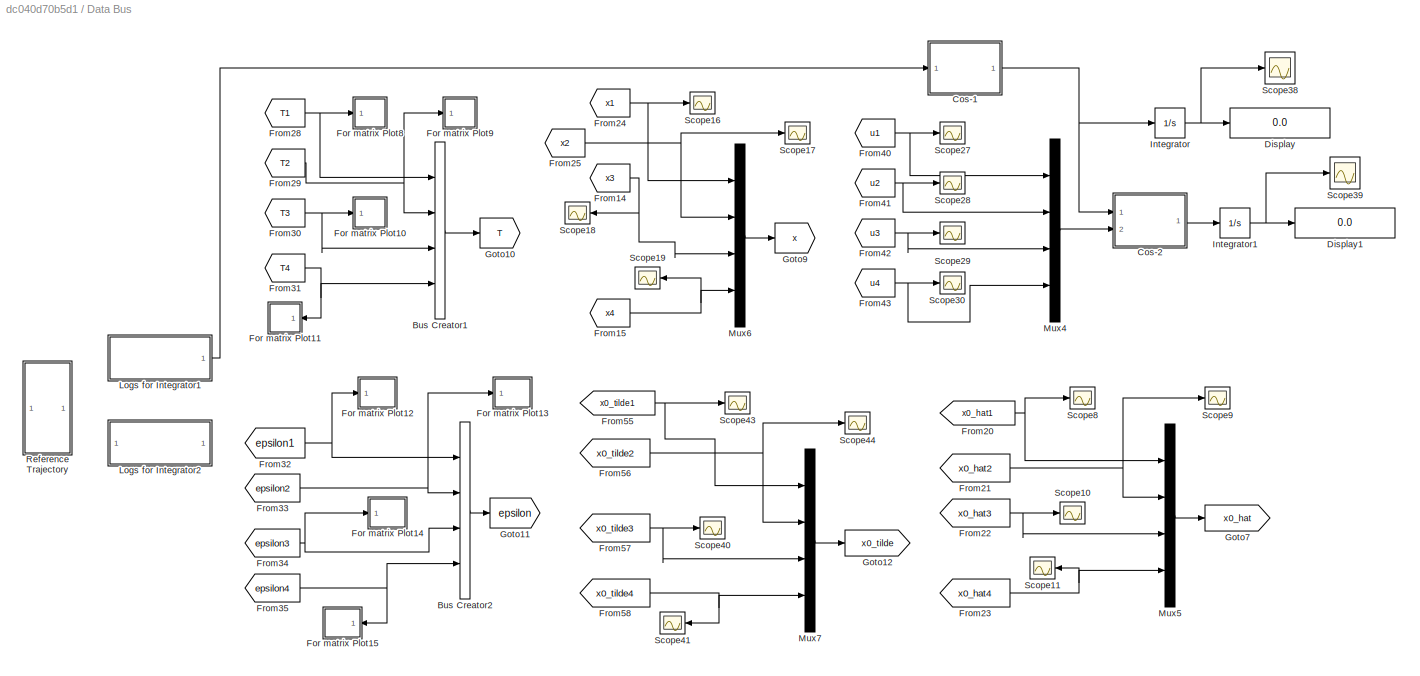
BLOCK [SubSystem] Data Bus 
  Ports = []
  RequestExecContextInheritance = off
  Variant = off
BLOCK [BusCreator] Data Bus /Bus Creator1
  DisplayOption = bar
  InheritFromInputs = on
  Inputs = 4
  OutDataTypeStr = Bus: T_bus
  Ports = [4, 1]
BLOCK [BusCreator] Data Bus /Bus Creator2
  DisplayOption = bar
  InheritFromInputs = on
  Inputs = 4
  OutDataTypeStr = Bus: epsilon_bus
  Ports = [4, 1]
BLOCK [SubSystem] Data Bus /Cos-1
  ErrorFcn = Stateflow.Translate.translate
  PermitHierarchicalResolution = ExplicitOnly
  Ports = [1, 1]
  RequestExecContextInheritance = off
  SFBlockType = MATLAB Function
  TreatAsAtomicUnit = on
  Variant = off
BLOCK [Demux] Data Bus /Cos-1/ Demux 
  Outputs = 1
  Ports = [1, 1]
BLOCK [S-Function] Data Bus /Cos-1/ SFunction 
  EnableBusSupport = on
  FunctionName = sf_sfun
  PortCounts = [1 2]
  Ports = [1, 2]
  SFcnIsStateOwnerBlock = off
  SFunctionDeploymentMode = off
  Tag = Stateflow S-Function CAMFC2_04_simple_DoubleIntegrator_02 52
BLOCK [Terminator] Data Bus /Cos-1/ Terminator 
BLOCK [Inport] Data Bus /Cos-1/E
  IconDisplay = Port number
BLOCK [Outport] Data Bus /Cos-1/out
  IconDisplay = Port number
BLOCK [SubSystem] Data Bus /Cos-2
  ErrorFcn = Stateflow.Translate.translate
  PermitHierarchicalResolution = ExplicitOnly
  Ports = [2, 1]
  RequestExecContextInheritance = off
  SFBlockType = MATLAB Function
  TreatAsAtomicUnit = on
  Variant = off
BLOCK [Demux] Data Bus /Cos-2/ Demux 
  Outputs = 1
  Ports = [1, 1]
BLOCK [S-Function] Data Bus /Cos-2/ SFunction 
  EnableBusSupport = on
  FunctionName = sf_sfun
  PortCounts = [2 2]
  Ports = [2, 2]
  SFcnIsStateOwnerBlock = off
  SFunctionDeploymentMode = off
  Tag = Stateflow S-Function CAMFC2_04_simple_DoubleIntegrator_02 86
BLOCK [Terminator] Data Bus /Cos-2/ Terminator 
BLOCK [Inport] Data Bus /Cos-2/Es
  IconDisplay = Port number
BLOCK [Inport] Data Bus /Cos-2/U
  IconDisplay = Port number
  Port = 2
BLOCK [Outport] Data Bus /Cos-2/out
  IconDisplay = Port number
BLOCK [Display] Data Bus /Display
  Decimation = 1
  Ports = [1]
BLOCK [Display] Data Bus /Display1
  Decimation = 1
  Ports = [1]
BLOCK [SubSystem] Data Bus /For matrix Plot10
  Ports = [1]
  RequestExecContextInheritance = off
  Variant = off
BLOCK [SubSystem] Data Bus /For matrix Plot10/MATLAB Function
  ErrorFcn = Stateflow.Translate.translate
  PermitHierarchicalResolution = ExplicitOnly
  Ports = [1, 1]
  RequestExecContextInheritance = off
  SFBlockType = MATLAB Function
  TreatAsAtomicUnit = on
  Variant = off
BLOCK [Demux] Data Bus /For matrix Plot10/MATLAB Function/ Demux 
  Outputs = 1
  Ports = [1, 1]
BLOCK [S-Function] Data Bus /For matrix Plot10/MATLAB Function/ SFunction 
  EnableBusSupport = on
  FunctionName = sf_sfun
  PortCounts = [1 2]
  Ports = [1, 2]
  SFcnIsStateOwnerBlock = off
  SFunctionDeploymentMode = off
  Tag = Stateflow S-Function CAMFC2_04_simple_DoubleIntegrator_02 66
BLOCK [Terminator] Data Bus /For matrix Plot10/MATLAB Function/ Terminator 
BLOCK [Inport] Data Bus /For matrix Plot10/MATLAB Function/u
  IconDisplay = Port number
BLOCK [Outport] Data Bus /For matrix Plot10/MATLAB Function/y
  IconDisplay = Port number
BLOCK [Inport] Data Bus /For matrix Plot10/T
  IconDisplay = Port number
BLOCK [ToWorkspace] Data Bus /For matrix Plot10/To Workspace
  MaxDataPoints = inf
  Ports = [1]
  SampleTime = -1
  SaveFormat = Structure With Time
  VariableName = T3
BLOCK [SubSystem] Data Bus /For matrix Plot11
  Ports = [1]
  RequestExecContextInheritance = off
  Variant = off
BLOCK [SubSystem] Data Bus /For matrix Plot11/MATLAB Function
  ErrorFcn = Stateflow.Translate.translate
  PermitHierarchicalResolution = ExplicitOnly
  Ports = [1, 1]
  RequestExecContextInheritance = off
  SFBlockType = MATLAB Function
  TreatAsAtomicUnit = on
  Variant = off
BLOCK [Demux] Data Bus /For matrix Plot11/MATLAB Function/ Demux 
  Outputs = 1
  Ports = [1, 1]
BLOCK [S-Function] Data Bus /For matrix Plot11/MATLAB Function/ SFunction 
  EnableBusSupport = on
  FunctionName = sf_sfun
  PortCounts = [1 2]
  Ports = [1, 2]
  SFcnIsStateOwnerBlock = off
  SFunctionDeploymentMode = off
  Tag = Stateflow S-Function CAMFC2_04_simple_DoubleIntegrator_02 67
BLOCK [Terminator] Data Bus /For matrix Plot11/MATLAB Function/ Terminator 
BLOCK [Inport] Data Bus /For matrix Plot11/MATLAB Function/u
  IconDisplay = Port number
BLOCK [Outport] Data Bus /For matrix Plot11/MATLAB Function/y
  IconDisplay = Port number
BLOCK [Inport] Data Bus /For matrix Plot11/T
  IconDisplay = Port number
BLOCK [ToWorkspace] Data Bus /For matrix Plot11/To Workspace
  MaxDataPoints = inf
  Ports = [1]
  SampleTime = -1
  SaveFormat = Structure With Time
  VariableName = T4
BLOCK [SubSystem] Data Bus /For matrix Plot12
  Ports = [1]
  RequestExecContextInheritance = off
  Variant = off
BLOCK [SubSystem] Data Bus /For matrix Plot12/MATLAB Function
  ErrorFcn = Stateflow.Translate.translate
  PermitHierarchicalResolution = ExplicitOnly
  Ports = [1, 1]
  RequestExecContextInheritance = off
  SFBlockType = MATLAB Function
  TreatAsAtomicUnit = on
  Variant = off
BLOCK [Demux] Data Bus /For matrix Plot12/MATLAB Function/ Demux 
  Outputs = 1
  Ports = [1, 1]
BLOCK [S-Function] Data Bus /For matrix Plot12/MATLAB Function/ SFunction 
  EnableBusSupport = on
  FunctionName = sf_sfun
  PortCounts = [1 2]
  Ports = [1, 2]
  SFcnIsStateOwnerBlock = off
  SFunctionDeploymentMode = off
  Tag = Stateflow S-Function CAMFC2_04_simple_DoubleIntegrator_02 68
BLOCK [Terminator] Data Bus /For matrix Plot12/MATLAB Function/ Terminator 
BLOCK [Inport] Data Bus /For matrix Plot12/MATLAB Function/u
  IconDisplay = Port number
BLOCK [Outport] Data Bus /For matrix Plot12/MATLAB Function/y
  IconDisplay = Port number
BLOCK [ToWorkspace] Data Bus /For matrix Plot12/To Workspace
  MaxDataPoints = inf
  Ports = [1]
  SampleTime = -1
  SaveFormat = Structure With Time
  VariableName = epsilon1
BLOCK [Inport] Data Bus /For matrix Plot12/epsilon
  IconDisplay = Port number
BLOCK [SubSystem] Data Bus /For matrix Plot13
  Ports = [1]
  RequestExecContextInheritance = off
  Variant = off
BLOCK [SubSystem] Data Bus /For matrix Plot13/MATLAB Function
  ErrorFcn = Stateflow.Translate.translate
  PermitHierarchicalResolution = ExplicitOnly
  Ports = [1, 1]
  RequestExecContextInheritance = off
  SFBlockType = MATLAB Function
  TreatAsAtomicUnit = on
  Variant = off
BLOCK [Demux] Data Bus /For matrix Plot13/MATLAB Function/ Demux 
  Outputs = 1
  Ports = [1, 1]
BLOCK [S-Function] Data Bus /For matrix Plot13/MATLAB Function/ SFunction 
  EnableBusSupport = on
  FunctionName = sf_sfun
  PortCounts = [1 2]
  Ports = [1, 2]
  SFcnIsStateOwnerBlock = off
  SFunctionDeploymentMode = off
  Tag = Stateflow S-Function CAMFC2_04_simple_DoubleIntegrator_02 70
BLOCK [Terminator] Data Bus /For matrix Plot13/MATLAB Function/ Terminator 
BLOCK [Inport] Data Bus /For matrix Plot13/MATLAB Function/u
  IconDisplay = Port number
BLOCK [Outport] Data Bus /For matrix Plot13/MATLAB Function/y
  IconDisplay = Port number
BLOCK [ToWorkspace] Data Bus /For matrix Plot13/To Workspace
  MaxDataPoints = inf
  Ports = [1]
  SampleTime = -1
  SaveFormat = Structure With Time
  VariableName = epsilon2
BLOCK [Inport] Data Bus /For matrix Plot13/epsilon
  IconDisplay = Port number
BLOCK [SubSystem] Data Bus /For matrix Plot14
  Ports = [1]
  RequestExecContextInheritance = off
  Variant = off
BLOCK [SubSystem] Data Bus /For matrix Plot14/MATLAB Function
  ErrorFcn = Stateflow.Translate.translate
  PermitHierarchicalResolution = ExplicitOnly
  Ports = [1, 1]
  RequestExecContextInheritance = off
  SFBlockType = MATLAB Function
  TreatAsAtomicUnit = on
  Variant = off
BLOCK [Demux] Data Bus /For matrix Plot14/MATLAB Function/ Demux 
  Outputs = 1
  Ports = [1, 1]
BLOCK [S-Function] Data Bus /For matrix Plot14/MATLAB Function/ SFunction 
  EnableBusSupport = on
  FunctionName = sf_sfun
  PortCounts = [1 2]
  Ports = [1, 2]
  SFcnIsStateOwnerBlock = off
  SFunctionDeploymentMode = off
  Tag = Stateflow S-Function CAMFC2_04_simple_DoubleIntegrator_02 73
BLOCK [Terminator] Data Bus /For matrix Plot14/MATLAB Function/ Terminator 
BLOCK [Inport] Data Bus /For matrix Plot14/MATLAB Function/u
  IconDisplay = Port number
BLOCK [Outport] Data Bus /For matrix Plot14/MATLAB Function/y
  IconDisplay = Port number
BLOCK [ToWorkspace] Data Bus /For matrix Plot14/To Workspace
  MaxDataPoints = inf
  Ports = [1]
  SampleTime = -1
  SaveFormat = Structure With Time
  VariableName = epsilon3
BLOCK [Inport] Data Bus /For matrix Plot14/epsilon
  IconDisplay = Port number
BLOCK [SubSystem] Data Bus /For matrix Plot15
  Ports = [1]
  RequestExecContextInheritance = off
  Variant = off
BLOCK [SubSystem] Data Bus /For matrix Plot15/MATLAB Function
  ErrorFcn = Stateflow.Translate.translate
  PermitHierarchicalResolution = ExplicitOnly
  Ports = [1, 1]
  RequestExecContextInheritance = off
  SFBlockType = MATLAB Function
  TreatAsAtomicUnit = on
  Variant = off
BLOCK [Demux] Data Bus /For matrix Plot15/MATLAB Function/ Demux 
  Outputs = 1
  Ports = [1, 1]
BLOCK [S-Function] Data Bus /For matrix Plot15/MATLAB Function/ SFunction 
  EnableBusSupport = on
  FunctionName = sf_sfun
  PortCounts = [1 2]
  Ports = [1, 2]
  SFcnIsStateOwnerBlock = off
  SFunctionDeploymentMode = off
  Tag = Stateflow S-Function CAMFC2_04_simple_DoubleIntegrator_02 74
BLOCK [Terminator] Data Bus /For matrix Plot15/MATLAB Function/ Terminator 
BLOCK [Inport] Data Bus /For matrix Plot15/MATLAB Function/u
  IconDisplay = Port number
BLOCK [Outport] Data Bus /For matrix Plot15/MATLAB Function/y
  IconDisplay = Port number
BLOCK [ToWorkspace] Data Bus /For matrix Plot15/To Workspace
  MaxDataPoints = inf
  Ports = [1]
  SampleTime = -1
  SaveFormat = Structure With Time
  VariableName = epsilon4
BLOCK [Inport] Data Bus /For matrix Plot15/epsilon
  IconDisplay = Port number
BLOCK [SubSystem] Data Bus /For matrix Plot8
  Ports = [1]
  RequestExecContextInheritance = off
  Variant = off
BLOCK [SubSystem] Data Bus /For matrix Plot8/MATLAB Function
  ErrorFcn = Stateflow.Translate.translate
  PermitHierarchicalResolution = ExplicitOnly
  Ports = [1, 1]
  RequestExecContextInheritance = off
  SFBlockType = MATLAB Function
  TreatAsAtomicUnit = on
  Variant = off
BLOCK [Demux] Data Bus /For matrix Plot8/MATLAB Function/ Demux 
  Outputs = 1
  Ports = [1, 1]
BLOCK [S-Function] Data Bus /For matrix Plot8/MATLAB Function/ SFunction 
  EnableBusSupport = on
  FunctionName = sf_sfun
  PortCounts = [1 2]
  Ports = [1, 2]
  SFcnIsStateOwnerBlock = off
  SFunctionDeploymentMode = off
  Tag = Stateflow S-Function CAMFC2_04_simple_DoubleIntegrator_02 61
BLOCK [Terminator] Data Bus /For matrix Plot8/MATLAB Function/ Terminator 
BLOCK [Inport] Data Bus /For matrix Plot8/MATLAB Function/u
  IconDisplay = Port number
BLOCK [Outport] Data Bus /For matrix Plot8/MATLAB Function/y
  IconDisplay = Port number
BLOCK [Scope] Data Bus /For matrix Plot8/Scope17
  NumInputPorts = 1
  Ports = [1]
  ScopeSpecificationString = Simulink.scopes.TimeScopeBlockCfg('CurrentConfiguration', extmgr.ConfigurationSet(extmgr.Configuration('Core','General UI',true),extmgr.Configuration('Core','Source UI',true),extmgr.Configuration('Sources','WiredSimulink',true,'DataLoggingVariableName','ScopeData1','DataLoggingSaveFormat','StructureWithTime','DataLoggingDecimation','1','DataLoggingDecimateData',true),extmgr.Configuration('Visuals'...<+1922ch>
BLOCK [Inport] Data Bus /For matrix Plot8/T
  IconDisplay = Port number
BLOCK [ToWorkspace] Data Bus /For matrix Plot8/To Workspace
  MaxDataPoints = inf
  Ports = [1]
  SampleTime = -1
  SaveFormat = Structure With Time
  VariableName = T1
BLOCK [SubSystem] Data Bus /For matrix Plot9
  Ports = [1]
  RequestExecContextInheritance = off
  Variant = off
BLOCK [SubSystem] Data Bus /For matrix Plot9/MATLAB Function
  ErrorFcn = Stateflow.Translate.translate
  PermitHierarchicalResolution = ExplicitOnly
  Ports = [1, 1]
  RequestExecContextInheritance = off
  SFBlockType = MATLAB Function
  TreatAsAtomicUnit = on
  Variant = off
BLOCK [Demux] Data Bus /For matrix Plot9/MATLAB Function/ Demux 
  Outputs = 1
  Ports = [1, 1]
BLOCK [S-Function] Data Bus /For matrix Plot9/MATLAB Function/ SFunction 
  EnableBusSupport = on
  FunctionName = sf_sfun
  PortCounts = [1 2]
  Ports = [1, 2]
  SFcnIsStateOwnerBlock = off
  SFunctionDeploymentMode = off
  Tag = Stateflow S-Function CAMFC2_04_simple_DoubleIntegrator_02 62
BLOCK [Terminator] Data Bus /For matrix Plot9/MATLAB Function/ Terminator 
BLOCK [Inport] Data Bus /For matrix Plot9/MATLAB Function/u
  IconDisplay = Port number
BLOCK [Outport] Data Bus /For matrix Plot9/MATLAB Function/y
  IconDisplay = Port number
BLOCK [Inport] Data Bus /For matrix Plot9/T
  IconDisplay = Port number
BLOCK [ToWorkspace] Data Bus /For matrix Plot9/To Workspace
  MaxDataPoints = inf
  Ports = [1]
  SampleTime = -1
  SaveFormat = Structure With Time
  VariableName = T2
BLOCK [From] Data Bus /From14
  GotoTag = x3
  TagVisibility = global
BLOCK [From] Data Bus /From15
  GotoTag = x4
  TagVisibility = global
BLOCK [From] Data Bus /From20
  GotoTag = x0_hat1
  TagVisibility = global
BLOCK [From] Data Bus /From21
  GotoTag = x0_hat2
  TagVisibility = global
BLOCK [From] Data Bus /From22
  GotoTag = x0_hat3
  TagVisibility = global
BLOCK [From] Data Bus /From23
  GotoTag = x0_hat4
  TagVisibility = global
BLOCK [From] Data Bus /From24
  GotoTag = x1
  TagVisibility = global
BLOCK [From] Data Bus /From25
  GotoTag = x2
  TagVisibility = global
BLOCK [From] Data Bus /From28
  GotoTag = T1
  TagVisibility = global
BLOCK [From] Data Bus /From29
  GotoTag = T2
  TagVisibility = global
BLOCK [From] Data Bus /From30
  GotoTag = T3
  TagVisibility = global
BLOCK [From] Data Bus /From31
  GotoTag = T4
  TagVisibility = global
BLOCK [From] Data Bus /From32
  GotoTag = epsilon1
  TagVisibility = global
BLOCK [From] Data Bus /From33
  GotoTag = epsilon2
  TagVisibility = global
BLOCK [From] Data Bus /From34
  GotoTag = epsilon3
  TagVisibility = global
BLOCK [From] Data Bus /From35
  GotoTag = epsilon4
  TagVisibility = global
BLOCK [From] Data Bus /From40
  GotoTag = u1
  TagVisibility = global
BLOCK [From] Data Bus /From41
  GotoTag = u2
  TagVisibility = global
BLOCK [From] Data Bus /From42
  GotoTag = u3
  TagVisibility = global
BLOCK [From] Data Bus /From43
  GotoTag = u4
  TagVisibility = global
BLOCK [From] Data Bus /From55
  GotoTag = x0_tilde1
  TagVisibility = global
BLOCK [From] Data Bus /From56
  GotoTag = x0_tilde2
  TagVisibility = global
BLOCK [From] Data Bus /From57
  GotoTag = x0_tilde3
  TagVisibility = global
BLOCK [From] Data Bus /From58
  GotoTag = x0_tilde4
  TagVisibility = global
BLOCK [Goto] Data Bus /Goto10
  GotoTag = T
  TagVisibility = global
BLOCK [Goto] Data Bus /Goto11
  GotoTag = epsilon
  TagVisibility = global
BLOCK [Goto] Data Bus /Goto12
  GotoTag = x0_tilde
  TagVisibility = global
BLOCK [Goto] Data Bus /Goto7
  GotoTag = x0_hat
  TagVisibility = global
BLOCK [Goto] Data Bus /Goto9
  GotoTag = x
  TagVisibility = global
BLOCK [Integrator] Data Bus /Integrator
  Ports = [1, 1]
BLOCK [Integrator] Data Bus /Integrator1
  Ports = [1, 1]
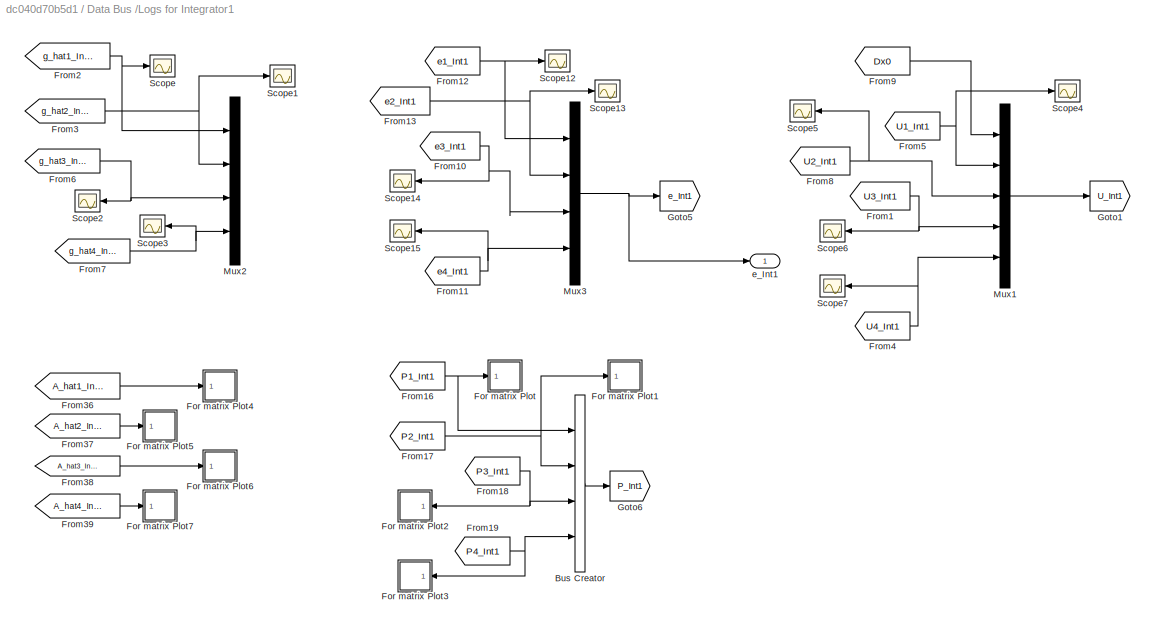
BLOCK [SubSystem] Data Bus /Logs for Integrator1
  Ports = [0, 1]
  RequestExecContextInheritance = off
  Variant = off
BLOCK [BusCreator] Data Bus /Logs for Integrator1/Bus Creator
  DisplayOption = bar
  InheritFromInputs = on
  Inputs = 4
  OutDataTypeStr = Bus: P_bus
  Ports = [4, 1]
BLOCK [SubSystem] Data Bus /Logs for Integrator1/For matrix Plot
  Ports = [1]
  RequestExecContextInheritance = off
  Variant = off
BLOCK [SubSystem] Data Bus /Logs for Integrator1/For matrix Plot/MATLAB Function
  ErrorFcn = Stateflow.Translate.translate
  PermitHierarchicalResolution = ExplicitOnly
  Ports = [1, 1]
  RequestExecContextInheritance = off
  SFBlockType = MATLAB Function
  TreatAsAtomicUnit = on
  Variant = off
BLOCK [Demux] Data Bus /Logs for Integrator1/For matrix Plot/MATLAB Function/ Demux 
  Outputs = 1
  Ports = [1, 1]
BLOCK [S-Function] Data Bus /Logs for Integrator1/For matrix Plot/MATLAB Function/ SFunction 
  EnableBusSupport = on
  FunctionName = sf_sfun
  PortCounts = [1 2]
  Ports = [1, 2]
  SFcnIsStateOwnerBlock = off
  SFunctionDeploymentMode = off
  Tag = Stateflow S-Function CAMFC2_04_simple_DoubleIntegrator_02 65
BLOCK [Terminator] Data Bus /Logs for Integrator1/For matrix Plot/MATLAB Function/ Terminator 
BLOCK [Inport] Data Bus /Logs for Integrator1/For matrix Plot/MATLAB Function/u
  IconDisplay = Port number
BLOCK [Outport] Data Bus /Logs for Integrator1/For matrix Plot/MATLAB Function/y
  IconDisplay = Port number
BLOCK [Inport] Data Bus /Logs for Integrator1/For matrix Plot/P
  IconDisplay = Port number
BLOCK [Scope] Data Bus /Logs for Integrator1/For matrix Plot/Scope17
  NumInputPorts = 1
  Ports = [1]
  ScopeSpecificationString = Simulink.scopes.TimeScopeBlockCfg('CurrentConfiguration', extmgr.ConfigurationSet(extmgr.Configuration('Core','General UI',true),extmgr.Configuration('Core','Source UI',true),extmgr.Configuration('Sources','WiredSimulink',true,'DataLoggingVariableName','ScopeData3','DataLoggingSaveFormat','StructureWithTime','DataLoggingDecimation','1','DataLoggingDecimateData',true),extmgr.Configuration('Visuals'...<+1721ch>
BLOCK [ToWorkspace] Data Bus /Logs for Integrator1/For matrix Plot/To Workspace
  MaxDataPoints = inf
  Ports = [1]
  SampleTime = -1
  SaveFormat = Structure With Time
  VariableName = P1_Int1
BLOCK [SubSystem] Data Bus /Logs for Integrator1/For matrix Plot1
  Ports = [1]
  RequestExecContextInheritance = off
  Variant = off
BLOCK [SubSystem] Data Bus /Logs for Integrator1/For matrix Plot1/MATLAB Function
  ErrorFcn = Stateflow.Translate.translate
  PermitHierarchicalResolution = ExplicitOnly
  Ports = [1, 1]
  RequestExecContextInheritance = off
  SFBlockType = MATLAB Function
  TreatAsAtomicUnit = on
  Variant = off
BLOCK [Demux] Data Bus /Logs for Integrator1/For matrix Plot1/MATLAB Function/ Demux 
  Outputs = 1
  Ports = [1, 1]
BLOCK [S-Function] Data Bus /Logs for Integrator1/For matrix Plot1/MATLAB Function/ SFunction 
  EnableBusSupport = on
  FunctionName = sf_sfun
  PortCounts = [1 2]
  Ports = [1, 2]
  SFcnIsStateOwnerBlock = off
  SFunctionDeploymentMode = off
  Tag = Stateflow S-Function CAMFC2_04_simple_DoubleIntegrator_02 54
BLOCK [Terminator] Data Bus /Logs for Integrator1/For matrix Plot1/MATLAB Function/ Terminator 
BLOCK [Inport] Data Bus /Logs for Integrator1/For matrix Plot1/MATLAB Function/u
  IconDisplay = Port number
BLOCK [Outport] Data Bus /Logs for Integrator1/For matrix Plot1/MATLAB Function/y
  IconDisplay = Port number
BLOCK [Inport] Data Bus /Logs for Integrator1/For matrix Plot1/P
  IconDisplay = Port number
BLOCK [ToWorkspace] Data Bus /Logs for Integrator1/For matrix Plot1/To Workspace
  MaxDataPoints = inf
  Ports = [1]
  SampleTime = -1
  SaveFormat = Structure With Time
  VariableName = P2_Int1
BLOCK [SubSystem] Data Bus /Logs for Integrator1/For matrix Plot2
  Ports = [1]
  RequestExecContextInheritance = off
  Variant = off
BLOCK [SubSystem] Data Bus /Logs for Integrator1/For matrix Plot2/MATLAB Function
  ErrorFcn = Stateflow.Translate.translate
  PermitHierarchicalResolution = ExplicitOnly
  Ports = [1, 1]
  RequestExecContextInheritance = off
  SFBlockType = MATLAB Function
  TreatAsAtomicUnit = on
  Variant = off
BLOCK [Demux] Data Bus /Logs for Integrator1/For matrix Plot2/MATLAB Function/ Demux 
  Outputs = 1
  Ports = [1, 1]
BLOCK [S-Function] Data Bus /Logs for Integrator1/For matrix Plot2/MATLAB Function/ SFunction 
  EnableBusSupport = on
  FunctionName = sf_sfun
  PortCounts = [1 2]
  Ports = [1, 2]
  SFcnIsStateOwnerBlock = off
  SFunctionDeploymentMode = off
  Tag = Stateflow S-Function CAMFC2_04_simple_DoubleIntegrator_02 55
BLOCK [Terminator] Data Bus /Logs for Integrator1/For matrix Plot2/MATLAB Function/ Terminator 
BLOCK [Inport] Data Bus /Logs for Integrator1/For matrix Plot2/MATLAB Function/u
  IconDisplay = Port number
BLOCK [Outport] Data Bus /Logs for Integrator1/For matrix Plot2/MATLAB Function/y
  IconDisplay = Port number
BLOCK [Inport] Data Bus /Logs for Integrator1/For matrix Plot2/P
  IconDisplay = Port number
BLOCK [ToWorkspace] Data Bus /Logs for Integrator1/For matrix Plot2/To Workspace
  MaxDataPoints = inf
  Ports = [1]
  SampleTime = -1
  SaveFormat = Structure With Time
  VariableName = P3_Int1
BLOCK [SubSystem] Data Bus /Logs for Integrator1/For matrix Plot3
  Ports = [1]
  RequestExecContextInheritance = off
  Variant = off
BLOCK [SubSystem] Data Bus /Logs for Integrator1/For matrix Plot3/MATLAB Function
  ErrorFcn = Stateflow.Translate.translate
  PermitHierarchicalResolution = ExplicitOnly
  Ports = [1, 1]
  RequestExecContextInheritance = off
  SFBlockType = MATLAB Function
  TreatAsAtomicUnit = on
  Variant = off
BLOCK [Demux] Data Bus /Logs for Integrator1/For matrix Plot3/MATLAB Function/ Demux 
  Outputs = 1
  Ports = [1, 1]
BLOCK [S-Function] Data Bus /Logs for Integrator1/For matrix Plot3/MATLAB Function/ SFunction 
  EnableBusSupport = on
  FunctionName = sf_sfun
  PortCounts = [1 2]
  Ports = [1, 2]
  SFcnIsStateOwnerBlock = off
  SFunctionDeploymentMode = off
  Tag = Stateflow S-Function CAMFC2_04_simple_DoubleIntegrator_02 56
BLOCK [Terminator] Data Bus /Logs for Integrator1/For matrix Plot3/MATLAB Function/ Terminator 
BLOCK [Inport] Data Bus /Logs for Integrator1/For matrix Plot3/MATLAB Function/u
  IconDisplay = Port number
BLOCK [Outport] Data Bus /Logs for Integrator1/For matrix Plot3/MATLAB Function/y
  IconDisplay = Port number
BLOCK [Inport] Data Bus /Logs for Integrator1/For matrix Plot3/P
  IconDisplay = Port number
BLOCK [Scope] Data Bus /Logs for Integrator1/For matrix Plot3/Scope17
  NumInputPorts = 1
  Ports = [1]
  ScopeSpecificationString = Simulink.scopes.TimeScopeBlockCfg('CurrentConfiguration', extmgr.ConfigurationSet(extmgr.Configuration('Core','General UI',true),extmgr.Configuration('Core','Source UI',true),extmgr.Configuration('Sources','WiredSimulink',true,'DataLoggingVariableName','ScopeData1','DataLoggingSaveFormat','StructureWithTime','DataLoggingDecimation','1','DataLoggingDecimateData',true),extmgr.Configuration('Visuals'...<+1777ch>
BLOCK [ToWorkspace] Data Bus /Logs for Integrator1/For matrix Plot3/To Workspace
  MaxDataPoints = inf
  Ports = [1]
  SampleTime = -1
  SaveFormat = Structure With Time
  VariableName = P4_Int1
BLOCK [SubSystem] Data Bus /Logs for Integrator1/For matrix Plot4
  Ports = [1]
  RequestExecContextInheritance = off
  Variant = off
BLOCK [Inport] Data Bus /Logs for Integrator1/For matrix Plot4/A_hat
  IconDisplay = Port number
BLOCK [SubSystem] Data Bus /Logs for Integrator1/For matrix Plot4/MATLAB Function
  ErrorFcn = Stateflow.Translate.translate
  PermitHierarchicalResolution = ExplicitOnly
  Ports = [1, 1]
  RequestExecContextInheritance = off
  SFBlockType = MATLAB Function
  TreatAsAtomicUnit = on
  Variant = off
BLOCK [Demux] Data Bus /Logs for Integrator1/For matrix Plot4/MATLAB Function/ Demux 
  Outputs = 1
  Ports = [1, 1]
BLOCK [S-Function] Data Bus /Logs for Integrator1/For matrix Plot4/MATLAB Function/ SFunction 
  EnableBusSupport = on
  FunctionName = sf_sfun
  PortCounts = [1 2]
  Ports = [1, 2]
  SFcnIsStateOwnerBlock = off
  SFunctionDeploymentMode = off
  Tag = Stateflow S-Function CAMFC2_04_simple_DoubleIntegrator_02 57
BLOCK [Terminator] Data Bus /Logs for Integrator1/For matrix Plot4/MATLAB Function/ Terminator 
BLOCK [Inport] Data Bus /Logs for Integrator1/For matrix Plot4/MATLAB Function/u
  IconDisplay = Port number
BLOCK [Outport] Data Bus /Logs for Integrator1/For matrix Plot4/MATLAB Function/y
  IconDisplay = Port number
BLOCK [Scope] Data Bus /Logs for Integrator1/For matrix Plot4/Scope17
  NumInputPorts = 1
  Ports = [1]
  ScopeSpecificationString = Simulink.scopes.TimeScopeBlockCfg('CurrentConfiguration', extmgr.ConfigurationSet(extmgr.Configuration('Core','General UI',true),extmgr.Configuration('Core','Source UI',true),extmgr.Configuration('Sources','WiredSimulink',true,'DataLoggingVariableName','ScopeData2','DataLoggingSaveFormat','StructureWithTime','DataLoggingDecimation','1','DataLoggingDecimateData',true),extmgr.Configuration('Visuals'...<+1785ch>  <repeated x4 — deduplicated; at blocks: Scope17>
BLOCK [ToWorkspace] Data Bus /Logs for Integrator1/For matrix Plot4/To Workspace
  MaxDataPoints = inf
  Ports = [1]
  SampleTime = -1
  SaveFormat = Structure With Time
  VariableName = A_hat1_Int1
BLOCK [SubSystem] Data Bus /Logs for Integrator1/For matrix Plot5
  Ports = [1]
  RequestExecContextInheritance = off
  Variant = off
BLOCK [Inport] Data Bus /Logs for Integrator1/For matrix Plot5/A_hat
  IconDisplay = Port number
BLOCK [SubSystem] Data Bus /Logs for Integrator1/For matrix Plot5/MATLAB Function
  ErrorFcn = Stateflow.Translate.translate
  PermitHierarchicalResolution = ExplicitOnly
  Ports = [1, 1]
  RequestExecContextInheritance = off
  SFBlockType = MATLAB Function
  TreatAsAtomicUnit = on
  Variant = off
BLOCK [Demux] Data Bus /Logs for Integrator1/For matrix Plot5/MATLAB Function/ Demux 
  Outputs = 1
  Ports = [1, 1]
BLOCK [S-Function] Data Bus /Logs for Integrator1/For matrix Plot5/MATLAB Function/ SFunction 
  EnableBusSupport = on
  FunctionName = sf_sfun
  PortCounts = [1 2]
  Ports = [1, 2]
  SFcnIsStateOwnerBlock = off
  SFunctionDeploymentMode = off
  Tag = Stateflow S-Function CAMFC2_04_simple_DoubleIntegrator_02 58
BLOCK [Terminator] Data Bus /Logs for Integrator1/For matrix Plot5/MATLAB Function/ Terminator 
BLOCK [Inport] Data Bus /Logs for Integrator1/For matrix Plot5/MATLAB Function/u
  IconDisplay = Port number
BLOCK [Outport] Data Bus /Logs for Integrator1/For matrix Plot5/MATLAB Function/y
  IconDisplay = Port number
BLOCK [ToWorkspace] Data Bus /Logs for Integrator1/For matrix Plot5/To Workspace
  MaxDataPoints = inf
  Ports = [1]
  SampleTime = -1
  SaveFormat = Structure With Time
  VariableName = A_hat2_Int1
BLOCK [SubSystem] Data Bus /Logs for Integrator1/For matrix Plot6
  Ports = [1]
  RequestExecContextInheritance = off
  Variant = off
BLOCK [Inport] Data Bus /Logs for Integrator1/For matrix Plot6/A_hat
  IconDisplay = Port number
BLOCK [SubSystem] Data Bus /Logs for Integrator1/For matrix Plot6/MATLAB Function
  ErrorFcn = Stateflow.Translate.translate
  PermitHierarchicalResolution = ExplicitOnly
  Ports = [1, 1]
  RequestExecContextInheritance = off
  SFBlockType = MATLAB Function
  TreatAsAtomicUnit = on
  Variant = off
BLOCK [Demux] Data Bus /Logs for Integrator1/For matrix Plot6/MATLAB Function/ Demux 
  Outputs = 1
  Ports = [1, 1]
BLOCK [S-Function] Data Bus /Logs for Integrator1/For matrix Plot6/MATLAB Function/ SFunction 
  EnableBusSupport = on
  FunctionName = sf_sfun
  PortCounts = [1 2]
  Ports = [1, 2]
  SFcnIsStateOwnerBlock = off
  SFunctionDeploymentMode = off
  Tag = Stateflow S-Function CAMFC2_04_simple_DoubleIntegrator_02 59
BLOCK [Terminator] Data Bus /Logs for Integrator1/For matrix Plot6/MATLAB Function/ Terminator 
BLOCK [Inport] Data Bus /Logs for Integrator1/For matrix Plot6/MATLAB Function/u
  IconDisplay = Port number
BLOCK [Outport] Data Bus /Logs for Integrator1/For matrix Plot6/MATLAB Function/y
  IconDisplay = Port number
BLOCK [ToWorkspace] Data Bus /Logs for Integrator1/For matrix Plot6/To Workspace
  MaxDataPoints = inf
  Ports = [1]
  SampleTime = -1
  SaveFormat = Structure With Time
  VariableName = A_hat3_Int1
BLOCK [SubSystem] Data Bus /Logs for Integrator1/For matrix Plot7
  Ports = [1]
  RequestExecContextInheritance = off
  Variant = off
BLOCK [Inport] Data Bus /Logs for Integrator1/For matrix Plot7/A_hat
  IconDisplay = Port number
BLOCK [SubSystem] Data Bus /Logs for Integrator1/For matrix Plot7/MATLAB Function
  ErrorFcn = Stateflow.Translate.translate
  PermitHierarchicalResolution = ExplicitOnly
  Ports = [1, 1]
  RequestExecContextInheritance = off
  SFBlockType = MATLAB Function
  TreatAsAtomicUnit = on
  Variant = off
BLOCK [Demux] Data Bus /Logs for Integrator1/For matrix Plot7/MATLAB Function/ Demux 
  Outputs = 1
  Ports = [1, 1]
BLOCK [S-Function] Data Bus /Logs for Integrator1/For matrix Plot7/MATLAB Function/ SFunction 
  EnableBusSupport = on
  FunctionName = sf_sfun
  PortCounts = [1 2]
  Ports = [1, 2]
  SFcnIsStateOwnerBlock = off
  SFunctionDeploymentMode = off
  Tag = Stateflow S-Function CAMFC2_04_simple_DoubleIntegrator_02 60
BLOCK [Terminator] Data Bus /Logs for Integrator1/For matrix Plot7/MATLAB Function/ Terminator 
BLOCK [Inport] Data Bus /Logs for Integrator1/For matrix Plot7/MATLAB Function/u
  IconDisplay = Port number
BLOCK [Outport] Data Bus /Logs for Integrator1/For matrix Plot7/MATLAB Function/y
  IconDisplay = Port number
BLOCK [Scope] Data Bus /Logs for Integrator1/For matrix Plot7/Scope17
  NumInputPorts = 1
  Ports = [1]
BLOCK [ToWorkspace] Data Bus /Logs for Integrator1/For matrix Plot7/To Workspace
  MaxDataPoints = inf
  Ports = [1]
  SampleTime = -1
  SaveFormat = Structure With Time
  VariableName = A_hat4_Int1
BLOCK [From] Data Bus /Logs for Integrator1/From1
  GotoTag = U3_Int1
  TagVisibility = global
BLOCK [From] Data Bus /Logs for Integrator1/From10
  GotoTag = e3_Int1
  TagVisibility = global
BLOCK [From] Data Bus /Logs for Integrator1/From11
  GotoTag = e4_Int1
  TagVisibility = global
BLOCK [From] Data Bus /Logs for Integrator1/From12
  GotoTag = e1_Int1
  TagVisibility = global
BLOCK [From] Data Bus /Logs for Integrator1/From13
  GotoTag = e2_Int1
  TagVisibility = global
BLOCK [From] Data Bus /Logs for Integrator1/From16
  GotoTag = P1_Int1
  TagVisibility = global
BLOCK [From] Data Bus /Logs for Integrator1/From17
  GotoTag = P2_Int1
  TagVisibility = global
BLOCK [From] Data Bus /Logs for Integrator1/From18
  GotoTag = P3_Int1
  TagVisibility = global
BLOCK [From] Data Bus /Logs for Integrator1/From19
  GotoTag = P4_Int1
  TagVisibility = global
BLOCK [From] Data Bus /Logs for Integrator1/From2
  GotoTag = g_hat1_Int1
  TagVisibility = global
BLOCK [From] Data Bus /Logs for Integrator1/From3
  GotoTag = g_hat2_Int1
  TagVisibility = global
BLOCK [From] Data Bus /Logs for Integrator1/From36
  GotoTag = A_hat1_Int1
  TagVisibility = global
BLOCK [From] Data Bus /Logs for Integrator1/From37
  GotoTag = A_hat2_Int1
  TagVisibility = global
BLOCK [From] Data Bus /Logs for Integrator1/From38
  GotoTag = A_hat3_Int1
  TagVisibility = global
BLOCK [From] Data Bus /Logs for Integrator1/From39
  GotoTag = A_hat4_Int1
  TagVisibility = global
BLOCK [From] Data Bus /Logs for Integrator1/From4
  GotoTag = U4_Int1
  TagVisibility = global
BLOCK [From] Data Bus /Logs for Integrator1/From5
  GotoTag = U1_Int1
  TagVisibility = global
BLOCK [From] Data Bus /Logs for Integrator1/From6
  GotoTag = g_hat3_Int1
  TagVisibility = global
BLOCK [From] Data Bus /Logs for Integrator1/From7
  GotoTag = g_hat4_Int1
  TagVisibility = global
BLOCK [From] Data Bus /Logs for Integrator1/From8
  GotoTag = U2_Int1
  TagVisibility = global
BLOCK [From] Data Bus /Logs for Integrator1/From9
  GotoTag = Dx0
  TagVisibility = global
BLOCK [Goto] Data Bus /Logs for Integrator1/Goto1
  GotoTag = U_Int1
  TagVisibility = global
BLOCK [Goto] Data Bus /Logs for Integrator1/Goto5
  GotoTag = e_Int1
  TagVisibility = global
BLOCK [Goto] Data Bus /Logs for Integrator1/Goto6
  GotoTag = P_Int1
  TagVisibility = global
BLOCK [Mux] Data Bus /Logs for Integrator1/Mux1
  DisplayOption = bar
  Inputs = 5
  Ports = [5, 1]
BLOCK [Mux] Data Bus /Logs for Integrator1/Mux2
  DisplayOption = bar
  Ports = [4, 1]
BLOCK [Mux] Data Bus /Logs for Integrator1/Mux3
  DisplayOption = bar
  Ports = [4, 1]
BLOCK [Scope] Data Bus /Logs for Integrator1/Scope
  NumInputPorts = 1
  Ports = [1]
  ScopeSpecificationString = Simulink.scopes.TimeScopeBlockCfg('CurrentConfiguration', extmgr.ConfigurationSet(extmgr.Configuration('Core','General UI',true),extmgr.Configuration('Core','Source UI',true),extmgr.Configuration('Sources','WiredSimulink',true,'DataLogging',true,'DataLoggingVariableName','g_hat1_Int1','DataLoggingSaveFormat','StructureWithTime','DataLoggingDecimation','1','DataLoggingDecimateData',true),extmgr.Con...<+1771ch>
BLOCK [Scope] Data Bus /Logs for Integrator1/Scope1
  NumInputPorts = 1
  Ports = [1]
  ScopeSpecificationString = Simulink.scopes.TimeScopeBlockCfg('CurrentConfiguration', extmgr.ConfigurationSet(extmgr.Configuration('Core','General UI',true),extmgr.Configuration('Core','Source UI',true),extmgr.Configuration('Sources','WiredSimulink',true,'DataLogging',true,'DataLoggingVariableName','g_hat2_Int1','DataLoggingSaveFormat','StructureWithTime','DataLoggingDecimation','1','DataLoggingDecimateData',true),extmgr.Con...<+1745ch>
BLOCK [Scope] Data Bus /Logs for Integrator1/Scope12
  NumInputPorts = 1
  Ports = [1]
  ScopeSpecificationString = Simulink.scopes.TimeScopeBlockCfg('CurrentConfiguration', extmgr.ConfigurationSet(extmgr.Configuration('Core','General UI',true),extmgr.Configuration('Core','Source UI',true),extmgr.Configuration('Sources','WiredSimulink',true,'DataLogging',true,'DataLoggingVariableName','e1_Int1','DataLoggingSaveFormat','StructureWithTime','DataLoggingDecimation','1','DataLoggingDecimateData',true),extmgr.Configu...<+1729ch>
BLOCK [Scope] Data Bus /Logs for Integrator1/Scope13
  NumInputPorts = 1
  Ports = [1]
  ScopeSpecificationString = Simulink.scopes.TimeScopeBlockCfg('CurrentConfiguration', extmgr.ConfigurationSet(extmgr.Configuration('Core','General UI',true),extmgr.Configuration('Core','Source UI',true),extmgr.Configuration('Sources','WiredSimulink',true,'DataLogging',true,'DataLoggingVariableName','e2_Int1','DataLoggingSaveFormat','StructureWithTime','DataLoggingDecimation','1','DataLoggingDecimateData',true),extmgr.Configu...<+1731ch>
BLOCK [Scope] Data Bus /Logs for Integrator1/Scope14
  NumInputPorts = 1
  Ports = [1]
  ScopeSpecificationString = Simulink.scopes.TimeScopeBlockCfg('CurrentConfiguration', extmgr.ConfigurationSet(extmgr.Configuration('Core','General UI',true),extmgr.Configuration('Core','Source UI',true),extmgr.Configuration('Sources','WiredSimulink',true,'DataLogging',true,'DataLoggingVariableName','e3_Int1','DataLoggingSaveFormat','StructureWithTime','DataLoggingDecimation','1','DataLoggingDecimateData',true),extmgr.Configu...<+1731ch>
BLOCK [Scope] Data Bus /Logs for Integrator1/Scope15
  NumInputPorts = 1
  Ports = [1]
  ScopeSpecificationString = Simulink.scopes.TimeScopeBlockCfg('CurrentConfiguration', extmgr.ConfigurationSet(extmgr.Configuration('Core','General UI',true),extmgr.Configuration('Core','Source UI',true),extmgr.Configuration('Sources','WiredSimulink',true,'DataLogging',true,'DataLoggingVariableName','e4_Int1','DataLoggingSaveFormat','StructureWithTime','DataLoggingDecimation','1','DataLoggingDecimateData',true),extmgr.Configu...<+1731ch>
BLOCK [Scope] Data Bus /Logs for Integrator1/Scope2
  NumInputPorts = 1
  Ports = [1]
  ScopeSpecificationString = Simulink.scopes.TimeScopeBlockCfg('CurrentConfiguration', extmgr.ConfigurationSet(extmgr.Configuration('Core','General UI',true),extmgr.Configuration('Core','Source UI',true),extmgr.Configuration('Sources','WiredSimulink',true,'DataLogging',true,'DataLoggingVariableName','g_hat3_Int1','DataLoggingSaveFormat','StructureWithTime','DataLoggingDecimation','1','DataLoggingDecimateData',true),extmgr.Con...<+1817ch>
BLOCK [Scope] Data Bus /Logs for Integrator1/Scope3
  NumInputPorts = 1
  Ports = [1]
  ScopeSpecificationString = Simulink.scopes.TimeScopeBlockCfg('CurrentConfiguration', extmgr.ConfigurationSet(extmgr.Configuration('Core','General UI',true),extmgr.Configuration('Core','Source UI',true),extmgr.Configuration('Sources','WiredSimulink',true,'DataLogging',true,'DataLoggingVariableName','g_hat4_Int1','DataLoggingSaveFormat','StructureWithTime','DataLoggingDecimation','1','DataLoggingDecimateData',true),extmgr.Con...<+1815ch>
BLOCK [Scope] Data Bus /Logs for Integrator1/Scope4
  NumInputPorts = 1
  Ports = [1]
  ScopeSpecificationString = Simulink.scopes.TimeScopeBlockCfg('CurrentConfiguration', extmgr.ConfigurationSet(extmgr.Configuration('Core','General UI',true),extmgr.Configuration('Core','Source UI',true),extmgr.Configuration('Sources','WiredSimulink',true,'DataLogging',true,'DataLoggingVariableName','U1_Int1','DataLoggingSaveFormat','StructureWithTime','DataLoggingDecimation','1','DataLoggingDecimateData',true),extmgr.Configu...<+1963ch>
BLOCK [Scope] Data Bus /Logs for Integrator1/Scope5
  NumInputPorts = 1
  Ports = [1]
  ScopeSpecificationString = Simulink.scopes.TimeScopeBlockCfg('CurrentConfiguration', extmgr.ConfigurationSet(extmgr.Configuration('Core','General UI',true),extmgr.Configuration('Core','Source UI',true),extmgr.Configuration('Sources','WiredSimulink',true,'DataLogging',true,'DataLoggingVariableName','U2_Int1','DataLoggingSaveFormat','StructureWithTime','DataLoggingDecimation','1','DataLoggingDecimateData',true),extmgr.Configu...<+1725ch>
BLOCK [Scope] Data Bus /Logs for Integrator1/Scope6
  NumInputPorts = 1
  Ports = [1]
  ScopeSpecificationString = Simulink.scopes.TimeScopeBlockCfg('CurrentConfiguration', extmgr.ConfigurationSet(extmgr.Configuration('Core','General UI',true),extmgr.Configuration('Core','Source UI',true),extmgr.Configuration('Sources','WiredSimulink',true,'DataLogging',true,'DataLoggingVariableName','U3_Int1','DataLoggingSaveFormat','StructureWithTime','DataLoggingDecimation','1','DataLoggingDecimateData',true),extmgr.Configu...<+1727ch>
BLOCK [Scope] Data Bus /Logs for Integrator1/Scope7
  NumInputPorts = 1
  Ports = [1]
  ScopeSpecificationString = Simulink.scopes.TimeScopeBlockCfg('CurrentConfiguration', extmgr.ConfigurationSet(extmgr.Configuration('Core','General UI',true),extmgr.Configuration('Core','Source UI',true),extmgr.Configuration('Sources','WiredSimulink',true,'DataLogging',true,'DataLoggingVariableName','U4_Int1','DataLoggingSaveFormat','StructureWithTime','DataLoggingDecimation','1','DataLoggingDecimateData',true),extmgr.Configu...<+1727ch>
BLOCK [Outport] Data Bus /Logs for Integrator1/e_Int1
  IconDisplay = Port number
BLOCK [SubSystem] Data Bus /Logs for Integrator2
  Ports = []
  RequestExecContextInheritance = off
  Variant = off
BLOCK [BusCreator] Data Bus /Logs for Integrator2/Bus Creator
  DisplayOption = bar
  InheritFromInputs = on
  Inputs = 4
  OutDataTypeStr = Bus: P_bus
  Ports = [4, 1]
BLOCK [SubSystem] Data Bus /Logs for Integrator2/For matrix Plot
  Ports = [1]
  RequestExecContextInheritance = off
  Variant = off
BLOCK [SubSystem] Data Bus /Logs for Integrator2/For matrix Plot/MATLAB Function
  ErrorFcn = Stateflow.Translate.translate
  PermitHierarchicalResolution = ExplicitOnly
  Ports = [1, 1]
  RequestExecContextInheritance = off
  SFBlockType = MATLAB Function
  TreatAsAtomicUnit = on
  Variant = off
BLOCK [Demux] Data Bus /Logs for Integrator2/For matrix Plot/MATLAB Function/ Demux 
  Outputs = 1
  Ports = [1, 1]
BLOCK [S-Function] Data Bus /Logs for Integrator2/For matrix Plot/MATLAB Function/ SFunction 
  EnableBusSupport = on
  FunctionName = sf_sfun
  PortCounts = [1 2]
  Ports = [1, 2]
  SFcnIsStateOwnerBlock = off
  SFunctionDeploymentMode = off
  Tag = Stateflow S-Function CAMFC2_04_simple_DoubleIntegrator_02 103
BLOCK [Terminator] Data Bus /Logs for Integrator2/For matrix Plot/MATLAB Function/ Terminator 
BLOCK [Inport] Data Bus /Logs for Integrator2/For matrix Plot/MATLAB Function/u
  IconDisplay = Port number
BLOCK [Outport] Data Bus /Logs for Integrator2/For matrix Plot/MATLAB Function/y
  IconDisplay = Port number
BLOCK [Inport] Data Bus /Logs for Integrator2/For matrix Plot/P
  IconDisplay = Port number
BLOCK [Scope] Data Bus /Logs for Integrator2/For matrix Plot/Scope17
  NumInputPorts = 1
  Ports = [1]
  ScopeSpecificationString = Simulink.scopes.TimeScopeBlockCfg('CurrentConfiguration', extmgr.ConfigurationSet(extmgr.Configuration('Core','General UI',true),extmgr.Configuration('Core','Source UI',true),extmgr.Configuration('Sources','WiredSimulink',true,'DataLoggingVariableName','ScopeData3','DataLoggingSaveFormat','StructureWithTime','DataLoggingDecimation','1','DataLoggingDecimateData',true),extmgr.Configuration('Visuals'...<+1723ch>
BLOCK [ToWorkspace] Data Bus /Logs for Integrator2/For matrix Plot/To Workspace
  MaxDataPoints = inf
  Ports = [1]
  SampleTime = -1
  SaveFormat = Structure With Time
  VariableName = P1_Int2
BLOCK [SubSystem] Data Bus /Logs for Integrator2/For matrix Plot1
  Ports = [1]
  RequestExecContextInheritance = off
  Variant = off
BLOCK [SubSystem] Data Bus /Logs for Integrator2/For matrix Plot1/MATLAB Function
  ErrorFcn = Stateflow.Translate.translate
  PermitHierarchicalResolution = ExplicitOnly
  Ports = [1, 1]
  RequestExecContextInheritance = off
  SFBlockType = MATLAB Function
  TreatAsAtomicUnit = on
  Variant = off
BLOCK [Demux] Data Bus /Logs for Integrator2/For matrix Plot1/MATLAB Function/ Demux 
  Outputs = 1
  Ports = [1, 1]
BLOCK [S-Function] Data Bus /Logs for Integrator2/For matrix Plot1/MATLAB Function/ SFunction 
  EnableBusSupport = on
  FunctionName = sf_sfun
  PortCounts = [1 2]
  Ports = [1, 2]
  SFcnIsStateOwnerBlock = off
  SFunctionDeploymentMode = off
  Tag = Stateflow S-Function CAMFC2_04_simple_DoubleIntegrator_02 104
BLOCK [Terminator] Data Bus /Logs for Integrator2/For matrix Plot1/MATLAB Function/ Terminator 
BLOCK [Inport] Data Bus /Logs for Integrator2/For matrix Plot1/MATLAB Function/u
  IconDisplay = Port number
BLOCK [Outport] Data Bus /Logs for Integrator2/For matrix Plot1/MATLAB Function/y
  IconDisplay = Port number
BLOCK [Inport] Data Bus /Logs for Integrator2/For matrix Plot1/P
  IconDisplay = Port number
BLOCK [ToWorkspace] Data Bus /Logs for Integrator2/For matrix Plot1/To Workspace
  MaxDataPoints = inf
  Ports = [1]
  SampleTime = -1
  SaveFormat = Structure With Time
  VariableName = P2_Int2
BLOCK [SubSystem] Data Bus /Logs for Integrator2/For matrix Plot2
  Ports = [1]
  RequestExecContextInheritance = off
  Variant = off
BLOCK [SubSystem] Data Bus /Logs for Integrator2/For matrix Plot2/MATLAB Function
  ErrorFcn = Stateflow.Translate.translate
  PermitHierarchicalResolution = ExplicitOnly
  Ports = [1, 1]
  RequestExecContextInheritance = off
  SFBlockType = MATLAB Function
  TreatAsAtomicUnit = on
  Variant = off
BLOCK [Demux] Data Bus /Logs for Integrator2/For matrix Plot2/MATLAB Function/ Demux 
  Outputs = 1
  Ports = [1, 1]
BLOCK [S-Function] Data Bus /Logs for Integrator2/For matrix Plot2/MATLAB Function/ SFunction 
  EnableBusSupport = on
  FunctionName = sf_sfun
  PortCounts = [1 2]
  Ports = [1, 2]
  SFcnIsStateOwnerBlock = off
  SFunctionDeploymentMode = off
  Tag = Stateflow S-Function CAMFC2_04_simple_DoubleIntegrator_02 105
BLOCK [Terminator] Data Bus /Logs for Integrator2/For matrix Plot2/MATLAB Function/ Terminator 
BLOCK [Inport] Data Bus /Logs for Integrator2/For matrix Plot2/MATLAB Function/u
  IconDisplay = Port number
BLOCK [Outport] Data Bus /Logs for Integrator2/For matrix Plot2/MATLAB Function/y
  IconDisplay = Port number
BLOCK [Inport] Data Bus /Logs for Integrator2/For matrix Plot2/P
  IconDisplay = Port number
BLOCK [ToWorkspace] Data Bus /Logs for Integrator2/For matrix Plot2/To Workspace
  MaxDataPoints = inf
  Ports = [1]
  SampleTime = -1
  SaveFormat = Structure With Time
  VariableName = P3_Int2
BLOCK [SubSystem] Data Bus /Logs for Integrator2/For matrix Plot3
  Ports = [1]
  RequestExecContextInheritance = off
  Variant = off
BLOCK [SubSystem] Data Bus /Logs for Integrator2/For matrix Plot3/MATLAB Function
  ErrorFcn = Stateflow.Translate.translate
  PermitHierarchicalResolution = ExplicitOnly
  Ports = [1, 1]
  RequestExecContextInheritance = off
  SFBlockType = MATLAB Function
  TreatAsAtomicUnit = on
  Variant = off
BLOCK [Demux] Data Bus /Logs for Integrator2/For matrix Plot3/MATLAB Function/ Demux 
  Outputs = 1
  Ports = [1, 1]
BLOCK [S-Function] Data Bus /Logs for Integrator2/For matrix Plot3/MATLAB Function/ SFunction 
  EnableBusSupport = on
  FunctionName = sf_sfun
  PortCounts = [1 2]
  Ports = [1, 2]
  SFcnIsStateOwnerBlock = off
  SFunctionDeploymentMode = off
  Tag = Stateflow S-Function CAMFC2_04_simple_DoubleIntegrator_02 106
BLOCK [Terminator] Data Bus /Logs for Integrator2/For matrix Plot3/MATLAB Function/ Terminator 
BLOCK [Inport] Data Bus /Logs for Integrator2/For matrix Plot3/MATLAB Function/u
  IconDisplay = Port number
BLOCK [Outport] Data Bus /Logs for Integrator2/For matrix Plot3/MATLAB Function/y
  IconDisplay = Port number
BLOCK [Inport] Data Bus /Logs for Integrator2/For matrix Plot3/P
  IconDisplay = Port number
BLOCK [Scope] Data Bus /Logs for Integrator2/For matrix Plot3/Scope17
  NumInputPorts = 1
  Ports = [1]
  ScopeSpecificationString = Simulink.scopes.TimeScopeBlockCfg('CurrentConfiguration', extmgr.ConfigurationSet(extmgr.Configuration('Core','General UI',true),extmgr.Configuration('Core','Source UI',true),extmgr.Configuration('Sources','WiredSimulink',true,'DataLoggingVariableName','ScopeData1','DataLoggingSaveFormat','StructureWithTime','DataLoggingDecimation','1','DataLoggingDecimateData',true),extmgr.Configuration('Visuals'...<+1777ch>
BLOCK [ToWorkspace] Data Bus /Logs for Integrator2/For matrix Plot3/To Workspace
  MaxDataPoints = inf
  Ports = [1]
  SampleTime = -1
  SaveFormat = Structure With Time
  VariableName = P4_Int2
BLOCK [SubSystem] Data Bus /Logs for Integrator2/For matrix Plot4
  Ports = [1]
  RequestExecContextInheritance = off
  Variant = off
BLOCK [Inport] Data Bus /Logs for Integrator2/For matrix Plot4/A_hat
  IconDisplay = Port number
BLOCK [SubSystem] Data Bus /Logs for Integrator2/For matrix Plot4/MATLAB Function
  ErrorFcn = Stateflow.Translate.translate
  PermitHierarchicalResolution = ExplicitOnly
  Ports = [1, 1]
  RequestExecContextInheritance = off
  SFBlockType = MATLAB Function
  TreatAsAtomicUnit = on
  Variant = off
BLOCK [Demux] Data Bus /Logs for Integrator2/For matrix Plot4/MATLAB Function/ Demux 
  Outputs = 1
  Ports = [1, 1]
BLOCK [S-Function] Data Bus /Logs for Integrator2/For matrix Plot4/MATLAB Function/ SFunction 
  EnableBusSupport = on
  FunctionName = sf_sfun
  PortCounts = [1 2]
  Ports = [1, 2]
  SFcnIsStateOwnerBlock = off
  SFunctionDeploymentMode = off
  Tag = Stateflow S-Function CAMFC2_04_simple_DoubleIntegrator_02 107
BLOCK [Terminator] Data Bus /Logs for Integrator2/For matrix Plot4/MATLAB Function/ Terminator 
BLOCK [Inport] Data Bus /Logs for Integrator2/For matrix Plot4/MATLAB Function/u
  IconDisplay = Port number
BLOCK [Outport] Data Bus /Logs for Integrator2/For matrix Plot4/MATLAB Function/y
  IconDisplay = Port number
BLOCK [Scope] Data Bus /Logs for Integrator2/For matrix Plot4/Scope17
  NumInputPorts = 1
  Ports = [1]
BLOCK [ToWorkspace] Data Bus /Logs for Integrator2/For matrix Plot4/To Workspace
  MaxDataPoints = inf
  Ports = [1]
  SampleTime = -1
  SaveFormat = Structure With Time
  VariableName = A_hat1_Int2
BLOCK [SubSystem] Data Bus /Logs for Integrator2/For matrix Plot5
  Ports = [1]
  RequestExecContextInheritance = off
  Variant = off
BLOCK [Inport] Data Bus /Logs for Integrator2/For matrix Plot5/A_hat
  IconDisplay = Port number
BLOCK [SubSystem] Data Bus /Logs for Integrator2/For matrix Plot5/MATLAB Function
  ErrorFcn = Stateflow.Translate.translate
  PermitHierarchicalResolution = ExplicitOnly
  Ports = [1, 1]
  RequestExecContextInheritance = off
  SFBlockType = MATLAB Function
  TreatAsAtomicUnit = on
  Variant = off
BLOCK [Demux] Data Bus /Logs for Integrator2/For matrix Plot5/MATLAB Function/ Demux 
  Outputs = 1
  Ports = [1, 1]
BLOCK [S-Function] Data Bus /Logs for Integrator2/For matrix Plot5/MATLAB Function/ SFunction 
  EnableBusSupport = on
  FunctionName = sf_sfun
  PortCounts = [1 2]
  Ports = [1, 2]
  SFcnIsStateOwnerBlock = off
  SFunctionDeploymentMode = off
  Tag = Stateflow S-Function CAMFC2_04_simple_DoubleIntegrator_02 108
BLOCK [Terminator] Data Bus /Logs for Integrator2/For matrix Plot5/MATLAB Function/ Terminator 
BLOCK [Inport] Data Bus /Logs for Integrator2/For matrix Plot5/MATLAB Function/u
  IconDisplay = Port number
BLOCK [Outport] Data Bus /Logs for Integrator2/For matrix Plot5/MATLAB Function/y
  IconDisplay = Port number
BLOCK [ToWorkspace] Data Bus /Logs for Integrator2/For matrix Plot5/To Workspace
  MaxDataPoints = inf
  Ports = [1]
  SampleTime = -1
  SaveFormat = Structure With Time
  VariableName = A_hat2_Int2
BLOCK [SubSystem] Data Bus /Logs for Integrator2/For matrix Plot6
  Ports = [1]
  RequestExecContextInheritance = off
  Variant = off
BLOCK [Inport] Data Bus /Logs for Integrator2/For matrix Plot6/A_hat
  IconDisplay = Port number
BLOCK [SubSystem] Data Bus /Logs for Integrator2/For matrix Plot6/MATLAB Function
  ErrorFcn = Stateflow.Translate.translate
  PermitHierarchicalResolution = ExplicitOnly
  Ports = [1, 1]
  RequestExecContextInheritance = off
  SFBlockType = MATLAB Function
  TreatAsAtomicUnit = on
  Variant = off
BLOCK [Demux] Data Bus /Logs for Integrator2/For matrix Plot6/MATLAB Function/ Demux 
  Outputs = 1
  Ports = [1, 1]
BLOCK [S-Function] Data Bus /Logs for Integrator2/For matrix Plot6/MATLAB Function/ SFunction 
  EnableBusSupport = on
  FunctionName = sf_sfun
  PortCounts = [1 2]
  Ports = [1, 2]
  SFcnIsStateOwnerBlock = off
  SFunctionDeploymentMode = off
  Tag = Stateflow S-Function CAMFC2_04_simple_DoubleIntegrator_02 109
BLOCK [Terminator] Data Bus /Logs for Integrator2/For matrix Plot6/MATLAB Function/ Terminator 
BLOCK [Inport] Data Bus /Logs for Integrator2/For matrix Plot6/MATLAB Function/u
  IconDisplay = Port number
BLOCK [Outport] Data Bus /Logs for Integrator2/For matrix Plot6/MATLAB Function/y
  IconDisplay = Port number
BLOCK [ToWorkspace] Data Bus /Logs for Integrator2/For matrix Plot6/To Workspace
  MaxDataPoints = inf
  Ports = [1]
  SampleTime = -1
  SaveFormat = Structure With Time
  VariableName = A_hat3_Int2
BLOCK [SubSystem] Data Bus /Logs for Integrator2/For matrix Plot7
  Ports = [1]
  RequestExecContextInheritance = off
  Variant = off
BLOCK [Inport] Data Bus /Logs for Integrator2/For matrix Plot7/A_hat
  IconDisplay = Port number
BLOCK [SubSystem] Data Bus /Logs for Integrator2/For matrix Plot7/MATLAB Function
  ErrorFcn = Stateflow.Translate.translate
  PermitHierarchicalResolution = ExplicitOnly
  Ports = [1, 1]
  RequestExecContextInheritance = off
  SFBlockType = MATLAB Function
  TreatAsAtomicUnit = on
  Variant = off
BLOCK [Demux] Data Bus /Logs for Integrator2/For matrix Plot7/MATLAB Function/ Demux 
  Outputs = 1
  Ports = [1, 1]
BLOCK [S-Function] Data Bus /Logs for Integrator2/For matrix Plot7/MATLAB Function/ SFunction 
  EnableBusSupport = on
  FunctionName = sf_sfun
  PortCounts = [1 2]
  Ports = [1, 2]
  SFcnIsStateOwnerBlock = off
  SFunctionDeploymentMode = off
  Tag = Stateflow S-Function CAMFC2_04_simple_DoubleIntegrator_02 110
BLOCK [Terminator] Data Bus /Logs for Integrator2/For matrix Plot7/MATLAB Function/ Terminator 
BLOCK [Inport] Data Bus /Logs for Integrator2/For matrix Plot7/MATLAB Function/u
  IconDisplay = Port number
BLOCK [Outport] Data Bus /Logs for Integrator2/For matrix Plot7/MATLAB Function/y
  IconDisplay = Port number
BLOCK [Scope] Data Bus /Logs for Integrator2/For matrix Plot7/Scope17
  NumInputPorts = 1
  Ports = [1]
BLOCK [ToWorkspace] Data Bus /Logs for Integrator2/For matrix Plot7/To Workspace
  MaxDataPoints = inf
  Ports = [1]
  SampleTime = -1
  SaveFormat = Structure With Time
  VariableName = A_hat4_Int2
BLOCK [From] Data Bus /Logs for Integrator2/From10
  GotoTag = e3_Int2
  TagVisibility = global
BLOCK [From] Data Bus /Logs for Integrator2/From11
  GotoTag = e4_Int2
  TagVisibility = global
BLOCK [From] Data Bus /Logs for Integrator2/From12
  GotoTag = e1_Int2
  TagVisibility = global
BLOCK [From] Data Bus /Logs for Integrator2/From13
  GotoTag = e2_Int2
  TagVisibility = global
BLOCK [From] Data Bus /Logs for Integrator2/From16
  GotoTag = P1_Int2
  TagVisibility = global
BLOCK [From] Data Bus /Logs for Integrator2/From17
  GotoTag = P2_Int2
  TagVisibility = global
BLOCK [From] Data Bus /Logs for Integrator2/From18
  GotoTag = P3_Int2
  TagVisibility = global
BLOCK [From] Data Bus /Logs for Integrator2/From19
  GotoTag = P4_Int2
  TagVisibility = global
BLOCK [From] Data Bus /Logs for Integrator2/From2
  GotoTag = g_hat1_Int2
  TagVisibility = global
BLOCK [From] Data Bus /Logs for Integrator2/From3
  GotoTag = g_hat2_Int2
  TagVisibility = global
BLOCK [From] Data Bus /Logs for Integrator2/From36
  GotoTag = A_hat1_Int2
  TagVisibility = global
BLOCK [From] Data Bus /Logs for Integrator2/From37
  GotoTag = A_hat2_Int2
  TagVisibility = global
BLOCK [From] Data Bus /Logs for Integrator2/From38
  GotoTag = A_hat3_Int2
  TagVisibility = global
BLOCK [From] Data Bus /Logs for Integrator2/From39
  GotoTag = A_hat4_Int2
  TagVisibility = global
BLOCK [From] Data Bus /Logs for Integrator2/From6
  GotoTag = g_hat3_Int2
  TagVisibility = global
BLOCK [From] Data Bus /Logs for Integrator2/From7
  GotoTag = g_hat4_Int2
  TagVisibility = global
BLOCK [Goto] Data Bus /Logs for Integrator2/Goto5
  GotoTag = e_Int2
  TagVisibility = global
BLOCK [Goto] Data Bus /Logs for Integrator2/Goto6
  GotoTag = P_Int2
  TagVisibility = global
BLOCK [Mux] Data Bus /Logs for Integrator2/Mux2
  DisplayOption = bar
  Ports = [4, 1]
BLOCK [Mux] Data Bus /Logs for Integrator2/Mux3
  DisplayOption = bar
  Ports = [4, 1]
BLOCK [Scope] Data Bus /Logs for Integrator2/Scope
  NumInputPorts = 1
  Ports = [1]
  ScopeSpecificationString = Simulink.scopes.TimeScopeBlockCfg('CurrentConfiguration', extmgr.ConfigurationSet(extmgr.Configuration('Core','General UI',true),extmgr.Configuration('Core','Source UI',true),extmgr.Configuration('Sources','WiredSimulink',true,'DataLogging',true,'DataLoggingVariableName','g_hat1_Int2','DataLoggingSaveFormat','StructureWithTime','DataLoggingDecimation','1','DataLoggingDecimateData',true),extmgr.Con...<+1745ch>
BLOCK [Scope] Data Bus /Logs for Integrator2/Scope1
  NumInputPorts = 1
  Ports = [1]
  ScopeSpecificationString = Simulink.scopes.TimeScopeBlockCfg('CurrentConfiguration', extmgr.ConfigurationSet(extmgr.Configuration('Core','General UI',true),extmgr.Configuration('Core','Source UI',true),extmgr.Configuration('Sources','WiredSimulink',true,'DataLogging',true,'DataLoggingVariableName','g_hat2_Int2','DataLoggingSaveFormat','StructureWithTime','DataLoggingDecimation','1','DataLoggingDecimateData',true),extmgr.Con...<+1745ch>
BLOCK [Scope] Data Bus /Logs for Integrator2/Scope12
  NumInputPorts = 1
  Ports = [1]
  ScopeSpecificationString = Simulink.scopes.TimeScopeBlockCfg('CurrentConfiguration', extmgr.ConfigurationSet(extmgr.Configuration('Core','General UI',true),extmgr.Configuration('Core','Source UI',true),extmgr.Configuration('Sources','WiredSimulink',true,'DataLogging',true,'DataLoggingVariableName','e1_Int2','DataLoggingSaveFormat','StructureWithTime','DataLoggingDecimation','1','DataLoggingDecimateData',true),extmgr.Configu...<+1737ch>
BLOCK [Scope] Data Bus /Logs for Integrator2/Scope13
  NumInputPorts = 1
  Ports = [1]
  ScopeSpecificationString = Simulink.scopes.TimeScopeBlockCfg('CurrentConfiguration', extmgr.ConfigurationSet(extmgr.Configuration('Core','General UI',true),extmgr.Configuration('Core','Source UI',true),extmgr.Configuration('Sources','WiredSimulink',true,'DataLogging',true,'DataLoggingVariableName','e2_Int2','DataLoggingSaveFormat','StructureWithTime','DataLoggingDecimation','1','DataLoggingDecimateData',true),extmgr.Configu...<+1729ch>
BLOCK [Scope] Data Bus /Logs for Integrator2/Scope14
  NumInputPorts = 1
  Ports = [1]
  ScopeSpecificationString = Simulink.scopes.TimeScopeBlockCfg('CurrentConfiguration', extmgr.ConfigurationSet(extmgr.Configuration('Core','General UI',true),extmgr.Configuration('Core','Source UI',true),extmgr.Configuration('Sources','WiredSimulink',true,'DataLogging',true,'DataLoggingVariableName','e3_Int2','DataLoggingSaveFormat','StructureWithTime','DataLoggingDecimation','1','DataLoggingDecimateData',true),extmgr.Configu...<+1735ch>
BLOCK [Scope] Data Bus /Logs for Integrator2/Scope15
  NumInputPorts = 1
  Ports = [1]
  ScopeSpecificationString = Simulink.scopes.TimeScopeBlockCfg('CurrentConfiguration', extmgr.ConfigurationSet(extmgr.Configuration('Core','General UI',true),extmgr.Configuration('Core','Source UI',true),extmgr.Configuration('Sources','WiredSimulink',true,'DataLogging',true,'DataLoggingVariableName','e4_Int2','DataLoggingSaveFormat','StructureWithTime','DataLoggingDecimation','1','DataLoggingDecimateData',true),extmgr.Configu...<+1735ch>
BLOCK [Scope] Data Bus /Logs for Integrator2/Scope2
  NumInputPorts = 1
  Ports = [1]
  ScopeSpecificationString = Simulink.scopes.TimeScopeBlockCfg('CurrentConfiguration', extmgr.ConfigurationSet(extmgr.Configuration('Core','General UI',true),extmgr.Configuration('Core','Source UI',true),extmgr.Configuration('Sources','WiredSimulink',true,'DataLogging',true,'DataLoggingVariableName','g_hat3_Int2','DataLoggingSaveFormat','StructureWithTime','DataLoggingDecimation','1','DataLoggingDecimateData',true),extmgr.Con...<+2303ch>
BLOCK [Scope] Data Bus /Logs for Integrator2/Scope3
  NumInputPorts = 1
  Ports = [1]
  ScopeSpecificationString = Simulink.scopes.TimeScopeBlockCfg('CurrentConfiguration', extmgr.ConfigurationSet(extmgr.Configuration('Core','General UI',true),extmgr.Configuration('Core','Source UI',true),extmgr.Configuration('Sources','WiredSimulink',true,'DataLogging',true,'DataLoggingVariableName','g_hat4_Int2','DataLoggingSaveFormat','StructureWithTime','DataLoggingDecimation','1','DataLoggingDecimateData',true),extmgr.Con...<+2299ch>
BLOCK [Mux] Data Bus /Mux4
  DisplayOption = bar
  Ports = [4, 1]
BLOCK [Mux] Data Bus /Mux5
  DisplayOption = bar
  Ports = [4, 1]
BLOCK [Mux] Data Bus /Mux6
  DisplayOption = bar
  Ports = [4, 1]
BLOCK [Mux] Data Bus /Mux7
  DisplayOption = bar
  Ports = [4, 1]
BLOCK [SubSystem] Data Bus /Reference Trajectory
  Ports = []
  RequestExecContextInheritance = off
  Variant = off
BLOCK [Constant] Data Bus /Reference Trajectory/Constant
  Value = 0
BLOCK [Constant] Data Bus /Reference Trajectory/Constant1
  Value = 0
BLOCK [Constant] Data Bus /Reference Trajectory/Constant2
  Value = 2
BLOCK [Constant] Data Bus /Reference Trajectory/Constant3
  Value = 20
BLOCK [Constant] Data Bus /Reference Trajectory/Constant4
  Value = 0
BLOCK [Constant] Data Bus /Reference Trajectory/Constant5
  Value = 2
BLOCK [SubSystem] Data Bus /Reference Trajectory/Differentiator1
  Ports = [1, 1]
  RequestExecContextInheritance = off
  Variant = off
BLOCK [Outport] Data Bus /Reference Trajectory/Differentiator1/Dx_d
  IconDisplay = Port number
BLOCK [Integrator] Data Bus /Reference Trajectory/Differentiator1/Integrator
  InitialCondition = zeros(n0,1)
  Ports = [1, 1]
BLOCK [Integrator] Data Bus /Reference Trajectory/Differentiator1/Integrator1
  InitialCondition = zeros(n0,1)
  Ports = [1, 1]
BLOCK [SubSystem] Data Bus /Reference Trajectory/Differentiator1/Sliding differentiator
  ErrorFcn = Stateflow.Translate.translate
  PermitHierarchicalResolution = ExplicitOnly
  Ports = [2, 1]
  RequestExecContextInheritance = off
  SFBlockType = MATLAB Function
  TreatAsAtomicUnit = on
  Variant = off
BLOCK [Demux] Data Bus /Reference Trajectory/Differentiator1/Sliding differentiator/ Demux 
  Outputs = 1
  Ports = [1, 1]
BLOCK [S-Function] Data Bus /Reference Trajectory/Differentiator1/Sliding differentiator/ SFunction 
  EnableBusSupport = on
  FunctionName = sf_sfun
  Parameters = alpha,k1
  PortCounts = [2 2]
  Ports = [2, 2]
  SFcnIsStateOwnerBlock = off
  SFunctionDeploymentMode = off
  Tag = Stateflow S-Function CAMFC2_04_simple_DoubleIntegrator_02 101
BLOCK [Terminator] Data Bus /Reference Trajectory/Differentiator1/Sliding differentiator/ Terminator 
BLOCK [Inport] Data Bus /Reference Trajectory/Differentiator1/Sliding differentiator/e
  IconDisplay = Port number
  Port = 2
BLOCK [Outport] Data Bus /Reference Trajectory/Differentiator1/Sliding differentiator/u
  IconDisplay = Port number
BLOCK [Inport] Data Bus /Reference Trajectory/Differentiator1/Sliding differentiator/u1
  IconDisplay = Port number
BLOCK [SubSystem] Data Bus /Reference Trajectory/Differentiator1/Sliding differentiator1
  ErrorFcn = Stateflow.Translate.translate
  PermitHierarchicalResolution = ExplicitOnly
  Ports = [1, 1]
  RequestExecContextInheritance = off
  SFBlockType = MATLAB Function
  TreatAsAtomicUnit = on
  Variant = off
BLOCK [Demux] Data Bus /Reference Trajectory/Differentiator1/Sliding differentiator1/ Demux 
  Outputs = 1
  Ports = [1, 1]
BLOCK [S-Function] Data Bus /Reference Trajectory/Differentiator1/Sliding differentiator1/ SFunction 
  EnableBusSupport = on
  FunctionName = sf_sfun
  Parameters = alpha,k2
  PortCounts = [1 2]
  Ports = [1, 2]
  SFcnIsStateOwnerBlock = off
  SFunctionDeploymentMode = off
  Tag = Stateflow S-Function CAMFC2_04_simple_DoubleIntegrator_02 102
BLOCK [Terminator] Data Bus /Reference Trajectory/Differentiator1/Sliding differentiator1/ Terminator 
BLOCK [Outport] Data Bus /Reference Trajectory/Differentiator1/Sliding differentiator1/Du1
  IconDisplay = Port number
BLOCK [Inport] Data Bus /Reference Trajectory/Differentiator1/Sliding differentiator1/e
  IconDisplay = Port number
BLOCK [Sum] Data Bus /Reference Trajectory/Differentiator1/Sum
  IconShape = round
  InputSameDT = off
  Inputs = |-+
  OutDataTypeStr = Inherit: Inherit via internal rule
  Ports = [2, 1]
  SaturateOnIntegerOverflow = off
BLOCK [Inport] Data Bus /Reference Trajectory/Differentiator1/x_d
  IconDisplay = Port number
BLOCK [Goto] Data Bus /Reference Trajectory/Goto1
  GotoTag = Dx0
  TagVisibility = global
BLOCK [Goto] Data Bus /Reference Trajectory/Goto4
  GotoTag = x0
  TagVisibility = global
BLOCK [DiscretePulseGenerator] Data Bus /Reference Trajectory/Pulse Generator
  Amplitude = 2
  Period = 60
  Ports = [0, 1]
  PulseType = Time based
  PulseWidth = 50
BLOCK [Scope] Data Bus /Reference Trajectory/Scope1
  NumInputPorts = 3
  Ports = [3]
  ScopeSpecificationString = C++SS(StrPVP('Location','[5, 49, 1367, 737]'),StrPVP('Open','off'),MxPVP('AxesTitles',53,'struct(''axes1'',''%<SignalLabel>'',''axes2'',''%<SignalLabel>'',''axes3'',''%<SignalLabel>'')'),MxPVP('ScopeGraphics',56,'struct(''FigureColor'',''[0.5 0.5 0.5]'',''AxesColor'',''[0 0 0]'',''AxesTickColor'',''[1 1 1]'',''LineColors'',''[1 1 0;1 0 1;0 1 1;1 0 0;0 1 0;0 0 1]'',''LineStyles'',''-|-|-|-|-|-'',''...<+406ch>
BLOCK [Scope] Data Bus /Reference Trajectory/Scope2
  NumInputPorts = 1
  Ports = [1]
  ScopeSpecificationString = Simulink.scopes.TimeScopeBlockCfg('CurrentConfiguration', extmgr.ConfigurationSet(extmgr.Configuration('Core','General UI',true),extmgr.Configuration('Core','Source UI',true),extmgr.Configuration('Sources','WiredSimulink',true,'DataLogging',true,'DataLoggingVariableName','Dx0','DataLoggingSaveFormat','StructureWithTime','DataLoggingDecimation','1','DataLoggingDecimateData',true),extmgr.Configurati...<+1689ch>
BLOCK [Scope] Data Bus /Reference Trajectory/Scope26
  NumInputPorts = 1
  Ports = [1]
  ScopeSpecificationString = Simulink.scopes.TimeScopeBlockCfg('CurrentConfiguration', extmgr.ConfigurationSet(extmgr.Configuration('Core','General UI',true),extmgr.Configuration('Core','Source UI',true),extmgr.Configuration('Sources','WiredSimulink',true,'DataLogging',true,'DataLoggingVariableName','x0','DataLoggingSaveFormat','StructureWithTime','DataLoggingDecimation','1','DataLoggingDecimateData',true),extmgr.Configuratio...<+1675ch>
BLOCK [Sin] Data Bus /Reference Trajectory/X1
  Amplitude = 3
  Frequency = 0.1
  Ports = [0, 1]
  SampleTime = 0
BLOCK [Sin] Data Bus /Reference Trajectory/X2
  Amplitude = 3
  Frequency = 0.5
  Phase = pi/2
  Ports = [0, 1]
  SampleTime = 0
BLOCK [Scope] Data Bus /Scope10
  NumInputPorts = 1
  Ports = [1]
  ScopeSpecificationString = Simulink.scopes.TimeScopeBlockCfg('CurrentConfiguration', extmgr.ConfigurationSet(extmgr.Configuration('Core','General UI',true),extmgr.Configuration('Core','Source UI',true),extmgr.Configuration('Sources','WiredSimulink',true,'DataLogging',true,'DataLoggingVariableName','x0_hat3','DataLoggingSaveFormat','StructureWithTime','DataLoggingDecimation','1','DataLoggingDecimateData',true),extmgr.Configu...<+1707ch>
BLOCK [Scope] Data Bus /Scope11
  NumInputPorts = 1
  Ports = [1]
  ScopeSpecificationString = Simulink.scopes.TimeScopeBlockCfg('CurrentConfiguration', extmgr.ConfigurationSet(extmgr.Configuration('Core','General UI',true),extmgr.Configuration('Core','Source UI',true),extmgr.Configuration('Sources','WiredSimulink',true,'DataLogging',true,'DataLoggingVariableName','x0_hat4','DataLoggingSaveFormat','StructureWithTime','DataLoggingDecimation','1','DataLoggingDecimateData',true),extmgr.Configu...<+1666ch>
BLOCK [Scope] Data Bus /Scope16
  NumInputPorts = 1
  Ports = [1]
  ScopeSpecificationString = Simulink.scopes.TimeScopeBlockCfg('CurrentConfiguration', extmgr.ConfigurationSet(extmgr.Configuration('Core','General UI',true),extmgr.Configuration('Core','Source UI',true),extmgr.Configuration('Sources','WiredSimulink',true,'DataLogging',true,'DataLoggingVariableName','x1','DataLoggingSaveFormat','StructureWithTime','DataLoggingDecimation','1','DataLoggingDecimateData',true),extmgr.Configuratio...<+1813ch>
BLOCK [Scope] Data Bus /Scope17
  NumInputPorts = 1
  Ports = [1]
  ScopeSpecificationString = Simulink.scopes.TimeScopeBlockCfg('CurrentConfiguration', extmgr.ConfigurationSet(extmgr.Configuration('Core','General UI',true),extmgr.Configuration('Core','Source UI',true),extmgr.Configuration('Sources','WiredSimulink',true,'DataLogging',true,'DataLoggingVariableName','x2','DataLoggingSaveFormat','StructureWithTime','DataLoggingDecimation','1','DataLoggingDecimateData',true),extmgr.Configuratio...<+1760ch>
BLOCK [Scope] Data Bus /Scope18
  NumInputPorts = 1
  Ports = [1]
  ScopeSpecificationString = Simulink.scopes.TimeScopeBlockCfg('CurrentConfiguration', extmgr.ConfigurationSet(extmgr.Configuration('Core','General UI',true),extmgr.Configuration('Core','Source UI',true),extmgr.Configuration('Sources','WiredSimulink',true,'DataLogging',true,'DataLoggingVariableName','x3','DataLoggingSaveFormat','StructureWithTime','DataLoggingDecimation','1','DataLoggingDecimateData',true),extmgr.Configuratio...<+1760ch>
BLOCK [Scope] Data Bus /Scope19
  NumInputPorts = 1
  Ports = [1]
  ScopeSpecificationString = Simulink.scopes.TimeScopeBlockCfg('CurrentConfiguration', extmgr.ConfigurationSet(extmgr.Configuration('Core','General UI',true),extmgr.Configuration('Core','Source UI',true),extmgr.Configuration('Sources','WiredSimulink',true,'DataLogging',true,'DataLoggingVariableName','x4','DataLoggingSaveFormat','StructureWithTime','DataLoggingDecimation','1','DataLoggingDecimateData',true),extmgr.Configuratio...<+1758ch>
BLOCK [Scope] Data Bus /Scope27
  NumInputPorts = 1
  Ports = [1]
  ScopeSpecificationString = Simulink.scopes.TimeScopeBlockCfg('CurrentConfiguration', extmgr.ConfigurationSet(extmgr.Configuration('Core','General UI',true),extmgr.Configuration('Core','Source UI',true),extmgr.Configuration('Sources','WiredSimulink',true,'DataLogging',true,'DataLoggingVariableName','u1','DataLoggingSaveFormat','StructureWithTime','DataLoggingDecimation','1','DataLoggingDecimateData',true),extmgr.Configuratio...<+1785ch>
BLOCK [Scope] Data Bus /Scope28
  NumInputPorts = 1
  Ports = [1]
  ScopeSpecificationString = Simulink.scopes.TimeScopeBlockCfg('CurrentConfiguration', extmgr.ConfigurationSet(extmgr.Configuration('Core','General UI',true),extmgr.Configuration('Core','Source UI',true),extmgr.Configuration('Sources','WiredSimulink',true,'DataLogging',true,'DataLoggingVariableName','u2','DataLoggingSaveFormat','StructureWithTime','DataLoggingDecimation','1','DataLoggingDecimateData',true),extmgr.Configuratio...<+1707ch>
BLOCK [Scope] Data Bus /Scope29
  NumInputPorts = 1
  Ports = [1]
  ScopeSpecificationString = Simulink.scopes.TimeScopeBlockCfg('CurrentConfiguration', extmgr.ConfigurationSet(extmgr.Configuration('Core','General UI',true),extmgr.Configuration('Core','Source UI',true),extmgr.Configuration('Sources','WiredSimulink',true,'DataLogging',true,'DataLoggingVariableName','u3','DataLoggingSaveFormat','StructureWithTime','DataLoggingDecimation','1','DataLoggingDecimateData',true),extmgr.Configuratio...<+1746ch>
BLOCK [Scope] Data Bus /Scope30
  NumInputPorts = 1
  Ports = [1]
  ScopeSpecificationString = Simulink.scopes.TimeScopeBlockCfg('CurrentConfiguration', extmgr.ConfigurationSet(extmgr.Configuration('Core','General UI',true),extmgr.Configuration('Core','Source UI',true),extmgr.Configuration('Sources','WiredSimulink',true,'DataLogging',true,'DataLoggingVariableName','u4','DataLoggingSaveFormat','StructureWithTime','DataLoggingDecimation','1','DataLoggingDecimateData',true),extmgr.Configuratio...<+1701ch>
BLOCK [Scope] Data Bus /Scope38
  NumInputPorts = 1
  Ports = [1]
  ScopeSpecificationString = Simulink.scopes.TimeScopeBlockCfg('CurrentConfiguration', extmgr.ConfigurationSet(extmgr.Configuration('Core','General UI',true),extmgr.Configuration('Core','Source UI',true),extmgr.Configuration('Sources','WiredSimulink',true,'DataLoggingVariableName','ScopeData3','DataLoggingSaveFormat','StructureWithTime'),extmgr.Configuration('Visuals','Time Domain',true,'SerializedDisplays',{struct('MinYLimRe...<+1484ch>
BLOCK [Scope] Data Bus /Scope39
  NumInputPorts = 1
  Ports = [1]
  ScopeSpecificationString = Simulink.scopes.TimeScopeBlockCfg('CurrentConfiguration', extmgr.ConfigurationSet(extmgr.Configuration('Core','General UI',true),extmgr.Configuration('Core','Source UI',true),extmgr.Configuration('Sources','WiredSimulink',true,'DataLoggingVariableName','ScopeData4','DataLoggingSaveFormat','StructureWithTime'),extmgr.Configuration('Visuals','Time Domain',true,'SerializedDisplays',{struct('MinYLimRe...<+1484ch>
BLOCK [Scope] Data Bus /Scope40
  NumInputPorts = 1
  Ports = [1]
  ScopeSpecificationString = Simulink.scopes.TimeScopeBlockCfg('CurrentConfiguration', extmgr.ConfigurationSet(extmgr.Configuration('Core','General UI',true),extmgr.Configuration('Core','Source UI',true),extmgr.Configuration('Sources','WiredSimulink',true,'DataLogging',true,'DataLoggingVariableName','x0_tilde3','DataLoggingSaveFormat','StructureWithTime','DataLoggingDecimation','1','DataLoggingDecimateData',true),extmgr.Confi...<+1687ch>
BLOCK [Scope] Data Bus /Scope41
  NumInputPorts = 1
  Ports = [1]
  ScopeSpecificationString = Simulink.scopes.TimeScopeBlockCfg('CurrentConfiguration', extmgr.ConfigurationSet(extmgr.Configuration('Core','General UI',true),extmgr.Configuration('Core','Source UI',true),extmgr.Configuration('Sources','WiredSimulink',true,'DataLogging',true,'DataLoggingVariableName','x0_tilde4','DataLoggingSaveFormat','StructureWithTime','DataLoggingDecimation','1','DataLoggingDecimateData',true),extmgr.Confi...<+1678ch>
BLOCK [Scope] Data Bus /Scope43
  NumInputPorts = 1
  Ports = [1]
  ScopeSpecificationString = Simulink.scopes.TimeScopeBlockCfg('CurrentConfiguration', extmgr.ConfigurationSet(extmgr.Configuration('Core','General UI',true),extmgr.Configuration('Core','Source UI',true),extmgr.Configuration('Sources','WiredSimulink',true,'DataLogging',true,'DataLoggingVariableName','x0_tilde1','DataLoggingSaveFormat','StructureWithTime','DataLoggingDecimation','1','DataLoggingDecimateData',true),extmgr.Confi...<+1687ch>
BLOCK [Scope] Data Bus /Scope44
  NumInputPorts = 1
  Ports = [1]
  ScopeSpecificationString = Simulink.scopes.TimeScopeBlockCfg('CurrentConfiguration', extmgr.ConfigurationSet(extmgr.Configuration('Core','General UI',true),extmgr.Configuration('Core','Source UI',true),extmgr.Configuration('Sources','WiredSimulink',true,'DataLogging',true,'DataLoggingVariableName','x0_tilde2','DataLoggingSaveFormat','StructureWithTime','DataLoggingDecimation','1','DataLoggingDecimateData',true),extmgr.Confi...<+1676ch>
BLOCK [Scope] Data Bus /Scope8
  NumInputPorts = 1
  Ports = [1]
  ScopeSpecificationString = Simulink.scopes.TimeScopeBlockCfg('CurrentConfiguration', extmgr.ConfigurationSet(extmgr.Configuration('Core','General UI',true),extmgr.Configuration('Core','Source UI',true),extmgr.Configuration('Sources','WiredSimulink',true,'DataLogging',true,'DataLoggingVariableName','x0_hat1','DataLoggingSaveFormat','StructureWithTime','DataLoggingDecimation','1','DataLoggingDecimateData',true),extmgr.Configu...<+1707ch>
BLOCK [Scope] Data Bus /Scope9
  NumInputPorts = 1
  Ports = [1]
  ScopeSpecificationString = Simulink.scopes.TimeScopeBlockCfg('CurrentConfiguration', extmgr.ConfigurationSet(extmgr.Configuration('Core','General UI',true),extmgr.Configuration('Core','Source UI',true),extmgr.Configuration('Sources','WiredSimulink',true,'DataLogging',true,'DataLoggingVariableName','x0_hat2','DataLoggingSaveFormat','StructureWithTime','DataLoggingDecimation','1','DataLoggingDecimateData',true),extmgr.Configu...<+1709ch>
LINE Agent #1/Agent #:1 -> Agent #1/Decenteralized Cooperaive Controller #1:1
NET Agent #1/Controller interpreter #1:1 -> Agent #1/Goto9:1, Agent #1/Pendulum Plant #1:1
NET Agent #1/Decenteralized Cooperaive Controller #1/Agent_Num:1 -> Agent #1/Decenteralized Cooperaive Controller #1/Cooperative observer for formation variables #1:1, Agent #1/Decenteralized Cooperaive Controller #1/Cooperative observer for leader states #1:1, Agent #1/Decenteralized Cooperaive Controller #1/First Integrator #1:1, Agent #1/Decenteralized Cooperaive Controller #1/Second Integrator #1:1
LINE Agent #1/Decenteralized Cooperaive Controller #1/Cooperative observer for formation variables #1/Agent_Num:1 -> Agent #1/Decenteralized Cooperaive Controller #1/Cooperative observer for formation variables #1/Observer T#1:4
LINE Agent #1/Decenteralized Cooperaive Controller #1/Cooperative observer for formation variables #1/From13:1 -> Agent #1/Decenteralized Cooperaive Controller #1/Cooperative observer for formation variables #1/Observer T#1:1
LINE Agent #1/Decenteralized Cooperaive Controller #1/Cooperative observer for formation variables #1/From14:1 -> Agent #1/Decenteralized Cooperaive Controller #1/Cooperative observer for formation variables #1/Observer T#1:2
NET Agent #1/Decenteralized Cooperaive Controller #1/Cooperative observer for formation variables #1/Integrator5:1 -> Agent #1/Decenteralized Cooperaive Controller #1/Cooperative observer for formation variables #1/Goto5:1, Agent #1/Decenteralized Cooperaive Controller #1/Cooperative observer for formation variables #1/Observer T#1:3, Agent #1/Decenteralized Cooperaive Controller #1/Cooperative observer for formation variables #1/T_i:1
LINE Agent #1/Decenteralized Cooperaive Controller #1/Cooperative observer for formation variables #1/Memory3:1 -> Agent #1/Decenteralized Cooperaive Controller #1/Cooperative observer for formation variables #1/Goto6:1
LINE Agent #1/Decenteralized Cooperaive Controller #1/Cooperative observer for formation variables #1/Observer T#1:1 -> Agent #1/Decenteralized Cooperaive Controller #1/Cooperative observer for formation variables #1/Integrator5:1
LINE Agent #1/Decenteralized Cooperaive Controller #1/Cooperative observer for formation variables #1/Observer T#1:2 -> Agent #1/Decenteralized Cooperaive Controller #1/Cooperative observer for formation variables #1/Memory3:1
NET Agent #1/Decenteralized Cooperaive Controller #1/Cooperative observer for formation variables #1:1 -> Agent #1/Decenteralized Cooperaive Controller #1/First Integrator #1:3, Agent #1/Decenteralized Cooperaive Controller #1/formation topology for second integrator:1
LINE Agent #1/Decenteralized Cooperaive Controller #1/Cooperative observer for leader states #1/Agent_Num:1 -> Agent #1/Decenteralized Cooperaive Controller #1/Cooperative observer for leader states #1/Observer x0_hat#1:5
LINE Agent #1/Decenteralized Cooperaive Controller #1/Cooperative observer for leader states #1/From11:1 -> Agent #1/Decenteralized Cooperaive Controller #1/Cooperative observer for leader states #1/Observer x0_hat#1:1
LINE Agent #1/Decenteralized Cooperaive Controller #1/Cooperative observer for leader states #1/From12:1 -> Agent #1/Decenteralized Cooperaive Controller #1/Cooperative observer for leader states #1/Observer x0_hat#1:2
LINE Agent #1/Decenteralized Cooperaive Controller #1/Cooperative observer for leader states #1/From4:1 -> Agent #1/Decenteralized Cooperaive Controller #1/Cooperative observer for leader states #1/Observer x0_hat#1:4
NET Agent #1/Decenteralized Cooperaive Controller #1/Cooperative observer for leader states #1/Integrator6:1 -> Agent #1/Decenteralized Cooperaive Controller #1/Cooperative observer for leader states #1/Goto3:1, Agent #1/Decenteralized Cooperaive Controller #1/Cooperative observer for leader states #1/Observer x0_hat#1:3, Agent #1/Decenteralized Cooperaive Controller #1/Cooperative observer for leader states #1/x0_hat_i:1
LINE Agent #1/Decenteralized Cooperaive Controller #1/Cooperative observer for leader states #1/Memory1:1 -> Agent #1/Decenteralized Cooperaive Controller #1/Cooperative observer for leader states #1/Goto9:1
LINE Agent #1/Decenteralized Cooperaive Controller #1/Cooperative observer for leader states #1/Observer x0_hat#1:1 -> Agent #1/Decenteralized Cooperaive Controller #1/Cooperative observer for leader states #1/Integrator6:1
LINE Agent #1/Decenteralized Cooperaive Controller #1/Cooperative observer for leader states #1/Observer x0_hat#1:2 -> Agent #1/Decenteralized Cooperaive Controller #1/Cooperative observer for leader states #1/Memory1:1
NET Agent #1/Decenteralized Cooperaive Controller #1/Cooperative observer for leader states #1:1 -> Agent #1/Decenteralized Cooperaive Controller #1/Differentiator1:1, Agent #1/Decenteralized Cooperaive Controller #1/First Integrator #1:2
LINE Agent #1/Decenteralized Cooperaive Controller #1/Differentiator1/Integrator1:1 -> Agent #1/Decenteralized Cooperaive Controller #1/Differentiator1/Sum:2
LINE Agent #1/Decenteralized Cooperaive Controller #1/Differentiator1/Integrator:1 -> Agent #1/Decenteralized Cooperaive Controller #1/Differentiator1/Sliding differentiator:1
LINE Agent #1/Decenteralized Cooperaive Controller #1/Differentiator1/Sliding differentiator1:1 -> Agent #1/Decenteralized Cooperaive Controller #1/Differentiator1/Integrator:1
NET Agent #1/Decenteralized Cooperaive Controller #1/Differentiator1/Sliding differentiator:1 -> Agent #1/Decenteralized Cooperaive Controller #1/Differentiator1/Dx_d:1, Agent #1/Decenteralized Cooperaive Controller #1/Differentiator1/Integrator1:1
NET Agent #1/Decenteralized Cooperaive Controller #1/Differentiator1/Sum:1 -> Agent #1/Decenteralized Cooperaive Controller #1/Differentiator1/Sliding differentiator1:1, Agent #1/Decenteralized Cooperaive Controller #1/Differentiator1/Sliding differentiator:2
LINE Agent #1/Decenteralized Cooperaive Controller #1/Differentiator1/x_d:1 -> Agent #1/Decenteralized Cooperaive Controller #1/Differentiator1/Sum:1
LINE Agent #1/Decenteralized Cooperaive Controller #1/Differentiator1:1 -> Agent #1/Decenteralized Cooperaive Controller #1/Second Integrator #1:2
LINE Agent #1/Decenteralized Cooperaive Controller #1/First Integrator #1/Adaptive Law A#1_int1:1 -> Agent #1/Decenteralized Cooperaive Controller #1/First Integrator #1/Integrator3:1
LINE Agent #1/Decenteralized Cooperaive Controller #1/First Integrator #1/Adaptive Law g#1_int1:1 -> Agent #1/Decenteralized Cooperaive Controller #1/First Integrator #1/Integrator2:1
NET Agent #1/Decenteralized Cooperaive Controller #1/First Integrator #1/Agent Num:1 -> Agent #1/Decenteralized Cooperaive Controller #1/First Integrator #1/Adaptive Law A#1_int1:1, Agent #1/Decenteralized Cooperaive Controller #1/First Integrator #1/Adaptive Law g#1_int1:1, Agent #1/Decenteralized Cooperaive Controller #1/First Integrator #1/DRE#1_int1:1, Agent #1/Decenteralized Cooperaive Controller #1/First Integrator #1/Main Controller #1_int1:5, Agent #1/Decenteralized Cooperaive Controller #1/First Integrator #1/Module to compute Consensus Error #1_int1:4
LINE Agent #1/Decenteralized Cooperaive Controller #1/First Integrator #1/DRE#1_int1/A_hat:1 -> Agent #1/Decenteralized Cooperaive Controller #1/First Integrator #1/DRE#1_int1/MATLAB Function:1
LINE Agent #1/Decenteralized Cooperaive Controller #1/First Integrator #1/DRE#1_int1/Agent_Num:1 -> Agent #1/Decenteralized Cooperaive Controller #1/First Integrator #1/DRE#1_int1/P1:2
LINE Agent #1/Decenteralized Cooperaive Controller #1/First Integrator #1/DRE#1_int1/MATLAB Function1:1 -> Agent #1/Decenteralized Cooperaive Controller #1/First Integrator #1/DRE#1_int1/P:1
LINE Agent #1/Decenteralized Cooperaive Controller #1/First Integrator #1/DRE#1_int1/MATLAB Function:1 -> Agent #1/Decenteralized Cooperaive Controller #1/First Integrator #1/DRE#1_int1/P1:1
NET Agent #1/Decenteralized Cooperaive Controller #1/First Integrator #1/DRE#1_int1/P1/Agent_Num:1 -> Agent #1/Decenteralized Cooperaive Controller #1/First Integrator #1/DRE#1_int1/P1/DLE1:2, Agent #1/Decenteralized Cooperaive Controller #1/First Integrator #1/DRE#1_int1/P1/DRE2:1
LINE Agent #1/Decenteralized Cooperaive Controller #1/First Integrator #1/DRE#1_int1/P1/DLE1:1 -> Agent #1/Decenteralized Cooperaive Controller #1/First Integrator #1/DRE#1_int1/P1/Gain:1
LINE Agent #1/Decenteralized Cooperaive Controller #1/First Integrator #1/DRE#1_int1/P1/DRE2:1 -> Agent #1/Decenteralized Cooperaive Controller #1/First Integrator #1/DRE#1_int1/P1/p1:1
LINE Agent #1/Decenteralized Cooperaive Controller #1/First Integrator #1/DRE#1_int1/P1/Gain:1 -> Agent #1/Decenteralized Cooperaive Controller #1/First Integrator #1/DRE#1_int1/P1/Integrator1:1
LINE Agent #1/Decenteralized Cooperaive Controller #1/First Integrator #1/DRE#1_int1/P1/Integrator1:1 -> Agent #1/Decenteralized Cooperaive Controller #1/First Integrator #1/DRE#1_int1/P1/DRE2:4
NET Agent #1/Decenteralized Cooperaive Controller #1/First Integrator #1/DRE#1_int1/P1/State_Num:1 -> Agent #1/Decenteralized Cooperaive Controller #1/First Integrator #1/DRE#1_int1/P1/DLE1:3, Agent #1/Decenteralized Cooperaive Controller #1/First Integrator #1/DRE#1_int1/P1/DRE2:2
NET Agent #1/Decenteralized Cooperaive Controller #1/First Integrator #1/DRE#1_int1/P1/a1:1 -> Agent #1/Decenteralized Cooperaive Controller #1/First Integrator #1/DRE#1_int1/P1/DLE1:1, Agent #1/Decenteralized Cooperaive Controller #1/First Integrator #1/DRE#1_int1/P1/DRE2:3
LINE Agent #1/Decenteralized Cooperaive Controller #1/First Integrator #1/DRE#1_int1/P1:1 -> Agent #1/Decenteralized Cooperaive Controller #1/First Integrator #1/DRE#1_int1/MATLAB Function1:1
NET Agent #1/Decenteralized Cooperaive Controller #1/First Integrator #1/DRE#1_int1:1 -> Agent #1/Decenteralized Cooperaive Controller #1/First Integrator #1/Goto4:1, Agent #1/Decenteralized Cooperaive Controller #1/First Integrator #1/Main Controller #1_int1:9
LINE Agent #1/Decenteralized Cooperaive Controller #1/First Integrator #1/Differentiator1/Integrator1:1 -> Agent #1/Decenteralized Cooperaive Controller #1/First Integrator #1/Differentiator1/Sum:2
LINE Agent #1/Decenteralized Cooperaive Controller #1/First Integrator #1/Differentiator1/Integrator:1 -> Agent #1/Decenteralized Cooperaive Controller #1/First Integrator #1/Differentiator1/Sliding differentiator:1
LINE Agent #1/Decenteralized Cooperaive Controller #1/First Integrator #1/Differentiator1/Sliding differentiator1:1 -> Agent #1/Decenteralized Cooperaive Controller #1/First Integrator #1/Differentiator1/Integrator:1
NET Agent #1/Decenteralized Cooperaive Controller #1/First Integrator #1/Differentiator1/Sliding differentiator:1 -> Agent #1/Decenteralized Cooperaive Controller #1/First Integrator #1/Differentiator1/Dx_d:1, Agent #1/Decenteralized Cooperaive Controller #1/First Integrator #1/Differentiator1/Integrator1:1
NET Agent #1/Decenteralized Cooperaive Controller #1/First Integrator #1/Differentiator1/Sum:1 -> Agent #1/Decenteralized Cooperaive Controller #1/First Integrator #1/Differentiator1/Sliding differentiator1:1, Agent #1/Decenteralized Cooperaive Controller #1/First Integrator #1/Differentiator1/Sliding differentiator:2
LINE Agent #1/Decenteralized Cooperaive Controller #1/First Integrator #1/Differentiator1/x_d:1 -> Agent #1/Decenteralized Cooperaive Controller #1/First Integrator #1/Differentiator1/Sum:1
LINE Agent #1/Decenteralized Cooperaive Controller #1/First Integrator #1/Differentiator1:1 -> Agent #1/Decenteralized Cooperaive Controller #1/First Integrator #1/Main Controller #1_int1:8
LINE Agent #1/Decenteralized Cooperaive Controller #1/First Integrator #1/Differentiator2/Integrator1:1 -> Agent #1/Decenteralized Cooperaive Controller #1/First Integrator #1/Differentiator2/Sum:2
LINE Agent #1/Decenteralized Cooperaive Controller #1/First Integrator #1/Differentiator2/Integrator:1 -> Agent #1/Decenteralized Cooperaive Controller #1/First Integrator #1/Differentiator2/Sliding differentiator:1
LINE Agent #1/Decenteralized Cooperaive Controller #1/First Integrator #1/Differentiator2/Sliding differentiator1:1 -> Agent #1/Decenteralized Cooperaive Controller #1/First Integrator #1/Differentiator2/Integrator:1
NET Agent #1/Decenteralized Cooperaive Controller #1/First Integrator #1/Differentiator2/Sliding differentiator:1 -> Agent #1/Decenteralized Cooperaive Controller #1/First Integrator #1/Differentiator2/Dx_d:1, Agent #1/Decenteralized Cooperaive Controller #1/First Integrator #1/Differentiator2/Integrator1:1
NET Agent #1/Decenteralized Cooperaive Controller #1/First Integrator #1/Differentiator2/Sum:1 -> Agent #1/Decenteralized Cooperaive Controller #1/First Integrator #1/Differentiator2/Sliding differentiator1:1, Agent #1/Decenteralized Cooperaive Controller #1/First Integrator #1/Differentiator2/Sliding differentiator:2
LINE Agent #1/Decenteralized Cooperaive Controller #1/First Integrator #1/Differentiator2/x_d:1 -> Agent #1/Decenteralized Cooperaive Controller #1/First Integrator #1/Differentiator2/Sum:1
LINE Agent #1/Decenteralized Cooperaive Controller #1/First Integrator #1/Differentiator2:1 -> Agent #1/Decenteralized Cooperaive Controller #1/First Integrator #1/Main Controller #1_int1:2
LINE Agent #1/Decenteralized Cooperaive Controller #1/First Integrator #1/From10:1 -> Agent #1/Decenteralized Cooperaive Controller #1/First Integrator #1/Module to compute Consensus Error #1_int1:2
NET Agent #1/Decenteralized Cooperaive Controller #1/First Integrator #1/From2:1 -> Agent #1/Decenteralized Cooperaive Controller #1/First Integrator #1/Adaptive Law A#1_int1:6, Agent #1/Decenteralized Cooperaive Controller #1/First Integrator #1/Adaptive Law g#1_int1:4
NET Agent #1/Decenteralized Cooperaive Controller #1/First Integrator #1/From7:1 -> Agent #1/Decenteralized Cooperaive Controller #1/First Integrator #1/Adaptive Law A#1_int1:3, Agent #1/Decenteralized Cooperaive Controller #1/First Integrator #1/Adaptive Law g#1_int1:3
LINE Agent #1/Decenteralized Cooperaive Controller #1/First Integrator #1/From:1 -> Agent #1/Decenteralized Cooperaive Controller #1/First Integrator #1/Module to compute Consensus Error #1_int1:3
NET Agent #1/Decenteralized Cooperaive Controller #1/First Integrator #1/Integrator Num:1 -> Agent #1/Decenteralized Cooperaive Controller #1/First Integrator #1/Adaptive Law A#1_int1:2, Agent #1/Decenteralized Cooperaive Controller #1/First Integrator #1/Main Controller #1_int1:6, Agent #1/Decenteralized Cooperaive Controller #1/First Integrator #1/Module to compute Consensus Error #1_int1:5
NET Agent #1/Decenteralized Cooperaive Controller #1/First Integrator #1/Integrator2:1 -> Agent #1/Decenteralized Cooperaive Controller #1/First Integrator #1/Adaptive Law g#1_int1:2, Agent #1/Decenteralized Cooperaive Controller #1/First Integrator #1/Goto2:1, Agent #1/Decenteralized Cooperaive Controller #1/First Integrator #1/Main Controller #1_int1:4
NET Agent #1/Decenteralized Cooperaive Controller #1/First Integrator #1/Integrator3:1 -> Agent #1/Decenteralized Cooperaive Controller #1/First Integrator #1/Adaptive Law A#1_int1:4, Agent #1/Decenteralized Cooperaive Controller #1/First Integrator #1/DRE#1_int1:2, Agent #1/Decenteralized Cooperaive Controller #1/First Integrator #1/Goto8:1, Agent #1/Decenteralized Cooperaive Controller #1/First Integrator #1/Main Controller #1_int1:1
LINE Agent #1/Decenteralized Cooperaive Controller #1/First Integrator #1/Main Controller #1_int1:1 -> Agent #1/Decenteralized Cooperaive Controller #1/First Integrator #1/U to Second Integrator:1
NET Agent #1/Decenteralized Cooperaive Controller #1/First Integrator #1/Memory4:1 -> Agent #1/Decenteralized Cooperaive Controller #1/First Integrator #1/Goto7:1, Agent #1/Decenteralized Cooperaive Controller #1/First Integrator #1/Main Controller #1_int1:10
LINE Agent #1/Decenteralized Cooperaive Controller #1/First Integrator #1/Module to compute Consensus Error #1_int1:1 -> Agent #1/Decenteralized Cooperaive Controller #1/First Integrator #1/Memory4:1
NET Agent #1/Decenteralized Cooperaive Controller #1/First Integrator #1/T_i:1 -> Agent #1/Decenteralized Cooperaive Controller #1/First Integrator #1/Adaptive Law A#1_int1:5, Agent #1/Decenteralized Cooperaive Controller #1/First Integrator #1/Differentiator2:1, Agent #1/Decenteralized Cooperaive Controller #1/First Integrator #1/Main Controller #1_int1:3, Agent #1/Decenteralized Cooperaive Controller #1/First Integrator #1/Module to compute Consensus Error #1_int1:1
NET Agent #1/Decenteralized Cooperaive Controller #1/First Integrator #1/x0_hat_i:1 -> Agent #1/Decenteralized Cooperaive Controller #1/First Integrator #1/Adaptive Law A#1_int1:7, Agent #1/Decenteralized Cooperaive Controller #1/First Integrator #1/Differentiator1:1, Agent #1/Decenteralized Cooperaive Controller #1/First Integrator #1/Main Controller #1_int1:7
LINE Agent #1/Decenteralized Cooperaive Controller #1/First Integrator #1:1 -> Agent #1/Decenteralized Cooperaive Controller #1/Goto8:1
LINE Agent #1/Decenteralized Cooperaive Controller #1/From7:1 -> Agent #1/Decenteralized Cooperaive Controller #1/formation topology for second integrator:2
LINE Agent #1/Decenteralized Cooperaive Controller #1/Second Integrator #1/Adaptive Law A#1_int2:1 -> Agent #1/Decenteralized Cooperaive Controller #1/Second Integrator #1/Integrator3:1
LINE Agent #1/Decenteralized Cooperaive Controller #1/Second Integrator #1/Adaptive Law g#1_int2:1 -> Agent #1/Decenteralized Cooperaive Controller #1/Second Integrator #1/Integrator2:1
NET Agent #1/Decenteralized Cooperaive Controller #1/Second Integrator #1/Agent_Num:1 -> Agent #1/Decenteralized Cooperaive Controller #1/Second Integrator #1/Adaptive Law A#1_int2:1, Agent #1/Decenteralized Cooperaive Controller #1/Second Integrator #1/Adaptive Law g#1_int2:1, Agent #1/Decenteralized Cooperaive Controller #1/Second Integrator #1/DRE#1_int2:1, Agent #1/Decenteralized Cooperaive Controller #1/Second Integrator #1/Main Controller #1_int2:5, Agent #1/Decenteralized Cooperaive Controller #1/Second Integrator #1/Module to compute Consensus Error #1_int2:4
LINE Agent #1/Decenteralized Cooperaive Controller #1/Second Integrator #1/DRE#1_int2/A_hat:1 -> Agent #1/Decenteralized Cooperaive Controller #1/Second Integrator #1/DRE#1_int2/MATLAB Function:1
LINE Agent #1/Decenteralized Cooperaive Controller #1/Second Integrator #1/DRE#1_int2/Agent_Num:1 -> Agent #1/Decenteralized Cooperaive Controller #1/Second Integrator #1/DRE#1_int2/P1:2
LINE Agent #1/Decenteralized Cooperaive Controller #1/Second Integrator #1/DRE#1_int2/MATLAB Function1:1 -> Agent #1/Decenteralized Cooperaive Controller #1/Second Integrator #1/DRE#1_int2/P:1
LINE Agent #1/Decenteralized Cooperaive Controller #1/Second Integrator #1/DRE#1_int2/MATLAB Function:1 -> Agent #1/Decenteralized Cooperaive Controller #1/Second Integrator #1/DRE#1_int2/P1:1
NET Agent #1/Decenteralized Cooperaive Controller #1/Second Integrator #1/DRE#1_int2/P1/Agent_Num:1 -> Agent #1/Decenteralized Cooperaive Controller #1/Second Integrator #1/DRE#1_int2/P1/DLE1:2, Agent #1/Decenteralized Cooperaive Controller #1/Second Integrator #1/DRE#1_int2/P1/DRE2:1
LINE Agent #1/Decenteralized Cooperaive Controller #1/Second Integrator #1/DRE#1_int2/P1/DLE1:1 -> Agent #1/Decenteralized Cooperaive Controller #1/Second Integrator #1/DRE#1_int2/P1/Gain:1
LINE Agent #1/Decenteralized Cooperaive Controller #1/Second Integrator #1/DRE#1_int2/P1/DRE2:1 -> Agent #1/Decenteralized Cooperaive Controller #1/Second Integrator #1/DRE#1_int2/P1/p1:1
LINE Agent #1/Decenteralized Cooperaive Controller #1/Second Integrator #1/DRE#1_int2/P1/Gain:1 -> Agent #1/Decenteralized Cooperaive Controller #1/Second Integrator #1/DRE#1_int2/P1/Integrator1:1
LINE Agent #1/Decenteralized Cooperaive Controller #1/Second Integrator #1/DRE#1_int2/P1/Integrator1:1 -> Agent #1/Decenteralized Cooperaive Controller #1/Second Integrator #1/DRE#1_int2/P1/DRE2:4
NET Agent #1/Decenteralized Cooperaive Controller #1/Second Integrator #1/DRE#1_int2/P1/State_Num:1 -> Agent #1/Decenteralized Cooperaive Controller #1/Second Integrator #1/DRE#1_int2/P1/DLE1:3, Agent #1/Decenteralized Cooperaive Controller #1/Second Integrator #1/DRE#1_int2/P1/DRE2:2
NET Agent #1/Decenteralized Cooperaive Controller #1/Second Integrator #1/DRE#1_int2/P1/a1:1 -> Agent #1/Decenteralized Cooperaive Controller #1/Second Integrator #1/DRE#1_int2/P1/DLE1:1, Agent #1/Decenteralized Cooperaive Controller #1/Second Integrator #1/DRE#1_int2/P1/DRE2:3
LINE Agent #1/Decenteralized Cooperaive Controller #1/Second Integrator #1/DRE#1_int2/P1:1 -> Agent #1/Decenteralized Cooperaive Controller #1/Second Integrator #1/DRE#1_int2/MATLAB Function1:1
NET Agent #1/Decenteralized Cooperaive Controller #1/Second Integrator #1/DRE#1_int2:1 -> Agent #1/Decenteralized Cooperaive Controller #1/Second Integrator #1/Goto4:1, Agent #1/Decenteralized Cooperaive Controller #1/Second Integrator #1/Main Controller #1_int2:9
LINE Agent #1/Decenteralized Cooperaive Controller #1/Second Integrator #1/Differentiator1/Integrator1:1 -> Agent #1/Decenteralized Cooperaive Controller #1/Second Integrator #1/Differentiator1/Sum:2
LINE Agent #1/Decenteralized Cooperaive Controller #1/Second Integrator #1/Differentiator1/Integrator:1 -> Agent #1/Decenteralized Cooperaive Controller #1/Second Integrator #1/Differentiator1/Sliding differentiator:1
LINE Agent #1/Decenteralized Cooperaive Controller #1/Second Integrator #1/Differentiator1/Sliding differentiator1:1 -> Agent #1/Decenteralized Cooperaive Controller #1/Second Integrator #1/Differentiator1/Integrator:1
NET Agent #1/Decenteralized Cooperaive Controller #1/Second Integrator #1/Differentiator1/Sliding differentiator:1 -> Agent #1/Decenteralized Cooperaive Controller #1/Second Integrator #1/Differentiator1/Dx_d:1, Agent #1/Decenteralized Cooperaive Controller #1/Second Integrator #1/Differentiator1/Integrator1:1
NET Agent #1/Decenteralized Cooperaive Controller #1/Second Integrator #1/Differentiator1/Sum:1 -> Agent #1/Decenteralized Cooperaive Controller #1/Second Integrator #1/Differentiator1/Sliding differentiator1:1, Agent #1/Decenteralized Cooperaive Controller #1/Second Integrator #1/Differentiator1/Sliding differentiator:2
LINE Agent #1/Decenteralized Cooperaive Controller #1/Second Integrator #1/Differentiator1/x_d:1 -> Agent #1/Decenteralized Cooperaive Controller #1/Second Integrator #1/Differentiator1/Sum:1
LINE Agent #1/Decenteralized Cooperaive Controller #1/Second Integrator #1/Differentiator1:1 -> Agent #1/Decenteralized Cooperaive Controller #1/Second Integrator #1/Main Controller #1_int2:8
LINE Agent #1/Decenteralized Cooperaive Controller #1/Second Integrator #1/Differentiator2/Integrator1:1 -> Agent #1/Decenteralized Cooperaive Controller #1/Second Integrator #1/Differentiator2/Sum:2
LINE Agent #1/Decenteralized Cooperaive Controller #1/Second Integrator #1/Differentiator2/Integrator:1 -> Agent #1/Decenteralized Cooperaive Controller #1/Second Integrator #1/Differentiator2/Sliding differentiator:1
LINE Agent #1/Decenteralized Cooperaive Controller #1/Second Integrator #1/Differentiator2/Sliding differentiator1:1 -> Agent #1/Decenteralized Cooperaive Controller #1/Second Integrator #1/Differentiator2/Integrator:1
NET Agent #1/Decenteralized Cooperaive Controller #1/Second Integrator #1/Differentiator2/Sliding differentiator:1 -> Agent #1/Decenteralized Cooperaive Controller #1/Second Integrator #1/Differentiator2/Dx_d:1, Agent #1/Decenteralized Cooperaive Controller #1/Second Integrator #1/Differentiator2/Integrator1:1
NET Agent #1/Decenteralized Cooperaive Controller #1/Second Integrator #1/Differentiator2/Sum:1 -> Agent #1/Decenteralized Cooperaive Controller #1/Second Integrator #1/Differentiator2/Sliding differentiator1:1, Agent #1/Decenteralized Cooperaive Controller #1/Second Integrator #1/Differentiator2/Sliding differentiator:2
LINE Agent #1/Decenteralized Cooperaive Controller #1/Second Integrator #1/Differentiator2/x_d:1 -> Agent #1/Decenteralized Cooperaive Controller #1/Second Integrator #1/Differentiator2/Sum:1
LINE Agent #1/Decenteralized Cooperaive Controller #1/Second Integrator #1/Differentiator2:1 -> Agent #1/Decenteralized Cooperaive Controller #1/Second Integrator #1/Main Controller #1_int2:2
NET Agent #1/Decenteralized Cooperaive Controller #1/Second Integrator #1/Dx0_hat_i:1 -> Agent #1/Decenteralized Cooperaive Controller #1/Second Integrator #1/Adaptive Law A#1_int2:7, Agent #1/Decenteralized Cooperaive Controller #1/Second Integrator #1/Differentiator1:1, Agent #1/Decenteralized Cooperaive Controller #1/Second Integrator #1/Main Controller #1_int2:7, Agent #1/Decenteralized Cooperaive Controller #1/Second Integrator #1/Module to compute Consensus Error #1_int2:3
LINE Agent #1/Decenteralized Cooperaive Controller #1/Second Integrator #1/From10:1 -> Agent #1/Decenteralized Cooperaive Controller #1/Second Integrator #1/Module to compute Consensus Error #1_int2:2
NET Agent #1/Decenteralized Cooperaive Controller #1/Second Integrator #1/From2:1 -> Agent #1/Decenteralized Cooperaive Controller #1/Second Integrator #1/Adaptive Law A#1_int2:6, Agent #1/Decenteralized Cooperaive Controller #1/Second Integrator #1/Adaptive Law g#1_int2:4
NET Agent #1/Decenteralized Cooperaive Controller #1/Second Integrator #1/From7:1 -> Agent #1/Decenteralized Cooperaive Controller #1/Second Integrator #1/Adaptive Law A#1_int2:3, Agent #1/Decenteralized Cooperaive Controller #1/Second Integrator #1/Adaptive Law g#1_int2:3
NET Agent #1/Decenteralized Cooperaive Controller #1/Second Integrator #1/Integrator Num:1 -> Agent #1/Decenteralized Cooperaive Controller #1/Second Integrator #1/Adaptive Law A#1_int2:2, Agent #1/Decenteralized Cooperaive Controller #1/Second Integrator #1/Main Controller #1_int2:6, Agent #1/Decenteralized Cooperaive Controller #1/Second Integrator #1/Module to compute Consensus Error #1_int2:5
NET Agent #1/Decenteralized Cooperaive Controller #1/Second Integrator #1/Integrator2:1 -> Agent #1/Decenteralized Cooperaive Controller #1/Second Integrator #1/Adaptive Law g#1_int2:2, Agent #1/Decenteralized Cooperaive Controller #1/Second Integrator #1/Goto2:1, Agent #1/Decenteralized Cooperaive Controller #1/Second Integrator #1/Main Controller #1_int2:4
NET Agent #1/Decenteralized Cooperaive Controller #1/Second Integrator #1/Integrator3:1 -> Agent #1/Decenteralized Cooperaive Controller #1/Second Integrator #1/Adaptive Law A#1_int2:4, Agent #1/Decenteralized Cooperaive Controller #1/Second Integrator #1/DRE#1_int2:2, Agent #1/Decenteralized Cooperaive Controller #1/Second Integrator #1/Goto8:1, Agent #1/Decenteralized Cooperaive Controller #1/Second Integrator #1/Main Controller #1_int2:1
LINE Agent #1/Decenteralized Cooperaive Controller #1/Second Integrator #1/Main Controller #1_int2:1 -> Agent #1/Decenteralized Cooperaive Controller #1/Second Integrator #1/U:1
NET Agent #1/Decenteralized Cooperaive Controller #1/Second Integrator #1/Memory4:1 -> Agent #1/Decenteralized Cooperaive Controller #1/Second Integrator #1/Goto7:1, Agent #1/Decenteralized Cooperaive Controller #1/Second Integrator #1/Main Controller #1_int2:10
LINE Agent #1/Decenteralized Cooperaive Controller #1/Second Integrator #1/Module to compute Consensus Error #1_int2:1 -> Agent #1/Decenteralized Cooperaive Controller #1/Second Integrator #1/Memory4:1
NET Agent #1/Decenteralized Cooperaive Controller #1/Second Integrator #1/T_i:1 -> Agent #1/Decenteralized Cooperaive Controller #1/Second Integrator #1/Adaptive Law A#1_int2:5, Agent #1/Decenteralized Cooperaive Controller #1/Second Integrator #1/Differentiator2:1, Agent #1/Decenteralized Cooperaive Controller #1/Second Integrator #1/Main Controller #1_int2:3, Agent #1/Decenteralized Cooperaive Controller #1/Second Integrator #1/Module to compute Consensus Error #1_int2:1
LINE Agent #1/Decenteralized Cooperaive Controller #1/Second Integrator #1:1 -> Agent #1/Decenteralized Cooperaive Controller #1/U1:1
LINE Agent #1/Decenteralized Cooperaive Controller #1/formation topology for second integrator:1 -> Agent #1/Decenteralized Cooperaive Controller #1/Second Integrator #1:3
LINE Agent #1/Decenteralized Cooperaive Controller #1:1 -> Agent #1/Controller interpreter #1:1
LINE Agent #1/Pendulum Plant #1/Plant/Clock:1 -> Agent #1/Pendulum Plant #1/Plant/Plant:4
NET Agent #1/Pendulum Plant #1/Plant/Integrator1:1 -> Agent #1/Pendulum Plant #1/Plant/Mux:2, Agent #1/Pendulum Plant #1/Plant/Plant:2
NET Agent #1/Pendulum Plant #1/Plant/Integrator:1 -> Agent #1/Pendulum Plant #1/Plant/Mux:1, Agent #1/Pendulum Plant #1/Plant/Plant:1
NET Agent #1/Pendulum Plant #1/Plant/Mux:1 -> Agent #1/Pendulum Plant #1/Plant/Scope3:1, Agent #1/Pendulum Plant #1/Plant/Y:1
LINE Agent #1/Pendulum Plant #1/Plant/Plant:1 -> Agent #1/Pendulum Plant #1/Plant/Integrator:1
LINE Agent #1/Pendulum Plant #1/Plant/Plant:2 -> Agent #1/Pendulum Plant #1/Plant/Integrator1:1
LINE Agent #1/Pendulum Plant #1/Plant/U:1 -> Agent #1/Pendulum Plant #1/Plant/Plant:3
LINE Agent #1/Pendulum Plant #1/Plant:1 -> Agent #1/Pendulum Plant #1/Y:1
LINE Agent #1/Pendulum Plant #1/U:1 -> Agent #1/Pendulum Plant #1/Plant:1
LINE Agent #1/Pendulum Plant #1:1 -> Agent #1/Goto1:1
LINE Agent #2/Agent #:1 -> Agent #2/Decenteralized Cooperaive Controller #2:1
NET Agent #2/Controller interpreter #2:1 -> Agent #2/Goto9:1, Agent #2/Pendulum Plant #2:1
NET Agent #2/Decenteralized Cooperaive Controller #2/Agent_Num:1 -> Agent #2/Decenteralized Cooperaive Controller #2/Cooperative observer for formation variables #2:1, Agent #2/Decenteralized Cooperaive Controller #2/Cooperative observer for leader states #2:1, Agent #2/Decenteralized Cooperaive Controller #2/First Integrator #2:1, Agent #2/Decenteralized Cooperaive Controller #2/Second Integrator #2:1
LINE Agent #2/Decenteralized Cooperaive Controller #2/Cooperative observer for formation variables #2/Agent_Num:1 -> Agent #2/Decenteralized Cooperaive Controller #2/Cooperative observer for formation variables #2/Observer T#2:4
LINE Agent #2/Decenteralized Cooperaive Controller #2/Cooperative observer for formation variables #2/From13:1 -> Agent #2/Decenteralized Cooperaive Controller #2/Cooperative observer for formation variables #2/Observer T#2:1
LINE Agent #2/Decenteralized Cooperaive Controller #2/Cooperative observer for formation variables #2/From14:1 -> Agent #2/Decenteralized Cooperaive Controller #2/Cooperative observer for formation variables #2/Observer T#2:2
NET Agent #2/Decenteralized Cooperaive Controller #2/Cooperative observer for formation variables #2/Integrator5:1 -> Agent #2/Decenteralized Cooperaive Controller #2/Cooperative observer for formation variables #2/Goto5:1, Agent #2/Decenteralized Cooperaive Controller #2/Cooperative observer for formation variables #2/Observer T#2:3, Agent #2/Decenteralized Cooperaive Controller #2/Cooperative observer for formation variables #2/T_i:1
LINE Agent #2/Decenteralized Cooperaive Controller #2/Cooperative observer for formation variables #2/Memory3:1 -> Agent #2/Decenteralized Cooperaive Controller #2/Cooperative observer for formation variables #2/Goto6:1
LINE Agent #2/Decenteralized Cooperaive Controller #2/Cooperative observer for formation variables #2/Observer T#2:1 -> Agent #2/Decenteralized Cooperaive Controller #2/Cooperative observer for formation variables #2/Integrator5:1
LINE Agent #2/Decenteralized Cooperaive Controller #2/Cooperative observer for formation variables #2/Observer T#2:2 -> Agent #2/Decenteralized Cooperaive Controller #2/Cooperative observer for formation variables #2/Memory3:1
NET Agent #2/Decenteralized Cooperaive Controller #2/Cooperative observer for formation variables #2:1 -> Agent #2/Decenteralized Cooperaive Controller #2/First Integrator #2:3, Agent #2/Decenteralized Cooperaive Controller #2/formation topology for second integrator:1
LINE Agent #2/Decenteralized Cooperaive Controller #2/Cooperative observer for leader states #2/Agent_Num:1 -> Agent #2/Decenteralized Cooperaive Controller #2/Cooperative observer for leader states #2/Observer x0_hat#2:5
LINE Agent #2/Decenteralized Cooperaive Controller #2/Cooperative observer for leader states #2/From11:1 -> Agent #2/Decenteralized Cooperaive Controller #2/Cooperative observer for leader states #2/Observer x0_hat#2:1
LINE Agent #2/Decenteralized Cooperaive Controller #2/Cooperative observer for leader states #2/From12:1 -> Agent #2/Decenteralized Cooperaive Controller #2/Cooperative observer for leader states #2/Observer x0_hat#2:2
LINE Agent #2/Decenteralized Cooperaive Controller #2/Cooperative observer for leader states #2/From4:1 -> Agent #2/Decenteralized Cooperaive Controller #2/Cooperative observer for leader states #2/Observer x0_hat#2:4
NET Agent #2/Decenteralized Cooperaive Controller #2/Cooperative observer for leader states #2/Integrator6:1 -> Agent #2/Decenteralized Cooperaive Controller #2/Cooperative observer for leader states #2/Goto3:1, Agent #2/Decenteralized Cooperaive Controller #2/Cooperative observer for leader states #2/Observer x0_hat#2:3, Agent #2/Decenteralized Cooperaive Controller #2/Cooperative observer for leader states #2/x0_hat_i:1
LINE Agent #2/Decenteralized Cooperaive Controller #2/Cooperative observer for leader states #2/Memory1:1 -> Agent #2/Decenteralized Cooperaive Controller #2/Cooperative observer for leader states #2/Goto9:1
LINE Agent #2/Decenteralized Cooperaive Controller #2/Cooperative observer for leader states #2/Observer x0_hat#2:1 -> Agent #2/Decenteralized Cooperaive Controller #2/Cooperative observer for leader states #2/Integrator6:1
LINE Agent #2/Decenteralized Cooperaive Controller #2/Cooperative observer for leader states #2/Observer x0_hat#2:2 -> Agent #2/Decenteralized Cooperaive Controller #2/Cooperative observer for leader states #2/Memory1:1
NET Agent #2/Decenteralized Cooperaive Controller #2/Cooperative observer for leader states #2:1 -> Agent #2/Decenteralized Cooperaive Controller #2/Differentiator1:1, Agent #2/Decenteralized Cooperaive Controller #2/First Integrator #2:2
LINE Agent #2/Decenteralized Cooperaive Controller #2/Differentiator1/Integrator1:1 -> Agent #2/Decenteralized Cooperaive Controller #2/Differentiator1/Sum:2
LINE Agent #2/Decenteralized Cooperaive Controller #2/Differentiator1/Integrator:1 -> Agent #2/Decenteralized Cooperaive Controller #2/Differentiator1/Sliding differentiator:1
LINE Agent #2/Decenteralized Cooperaive Controller #2/Differentiator1/Sliding differentiator1:1 -> Agent #2/Decenteralized Cooperaive Controller #2/Differentiator1/Integrator:1
NET Agent #2/Decenteralized Cooperaive Controller #2/Differentiator1/Sliding differentiator:1 -> Agent #2/Decenteralized Cooperaive Controller #2/Differentiator1/Dx_d:1, Agent #2/Decenteralized Cooperaive Controller #2/Differentiator1/Integrator1:1
NET Agent #2/Decenteralized Cooperaive Controller #2/Differentiator1/Sum:1 -> Agent #2/Decenteralized Cooperaive Controller #2/Differentiator1/Sliding differentiator1:1, Agent #2/Decenteralized Cooperaive Controller #2/Differentiator1/Sliding differentiator:2
LINE Agent #2/Decenteralized Cooperaive Controller #2/Differentiator1/x_d:1 -> Agent #2/Decenteralized Cooperaive Controller #2/Differentiator1/Sum:1
LINE Agent #2/Decenteralized Cooperaive Controller #2/Differentiator1:1 -> Agent #2/Decenteralized Cooperaive Controller #2/Second Integrator #2:2
LINE Agent #2/Decenteralized Cooperaive Controller #2/First Integrator #2/Adaptive Law A#2_int1:1 -> Agent #2/Decenteralized Cooperaive Controller #2/First Integrator #2/Integrator3:1
LINE Agent #2/Decenteralized Cooperaive Controller #2/First Integrator #2/Adaptive Law g#2_int1:1 -> Agent #2/Decenteralized Cooperaive Controller #2/First Integrator #2/Integrator2:1
NET Agent #2/Decenteralized Cooperaive Controller #2/First Integrator #2/Agent Num:1 -> Agent #2/Decenteralized Cooperaive Controller #2/First Integrator #2/Adaptive Law A#2_int1:1, Agent #2/Decenteralized Cooperaive Controller #2/First Integrator #2/Adaptive Law g#2_int1:1, Agent #2/Decenteralized Cooperaive Controller #2/First Integrator #2/DRE#2_int1:1, Agent #2/Decenteralized Cooperaive Controller #2/First Integrator #2/Main Controller #2_int1:5, Agent #2/Decenteralized Cooperaive Controller #2/First Integrator #2/Module to compute Consensus Error #2_int1:4
LINE Agent #2/Decenteralized Cooperaive Controller #2/First Integrator #2/DRE#2_int1/A_hat:1 -> Agent #2/Decenteralized Cooperaive Controller #2/First Integrator #2/DRE#2_int1/MATLAB Function:1
LINE Agent #2/Decenteralized Cooperaive Controller #2/First Integrator #2/DRE#2_int1/Agent_Num:1 -> Agent #2/Decenteralized Cooperaive Controller #2/First Integrator #2/DRE#2_int1/P1:2
LINE Agent #2/Decenteralized Cooperaive Controller #2/First Integrator #2/DRE#2_int1/MATLAB Function1:1 -> Agent #2/Decenteralized Cooperaive Controller #2/First Integrator #2/DRE#2_int1/P:1
LINE Agent #2/Decenteralized Cooperaive Controller #2/First Integrator #2/DRE#2_int1/MATLAB Function:1 -> Agent #2/Decenteralized Cooperaive Controller #2/First Integrator #2/DRE#2_int1/P1:1
NET Agent #2/Decenteralized Cooperaive Controller #2/First Integrator #2/DRE#2_int1/P1/Agent_Num:1 -> Agent #2/Decenteralized Cooperaive Controller #2/First Integrator #2/DRE#2_int1/P1/DLE1:2, Agent #2/Decenteralized Cooperaive Controller #2/First Integrator #2/DRE#2_int1/P1/DRE2:1
LINE Agent #2/Decenteralized Cooperaive Controller #2/First Integrator #2/DRE#2_int1/P1/DLE1:1 -> Agent #2/Decenteralized Cooperaive Controller #2/First Integrator #2/DRE#2_int1/P1/Gain:1
LINE Agent #2/Decenteralized Cooperaive Controller #2/First Integrator #2/DRE#2_int1/P1/DRE2:1 -> Agent #2/Decenteralized Cooperaive Controller #2/First Integrator #2/DRE#2_int1/P1/p1:1
LINE Agent #2/Decenteralized Cooperaive Controller #2/First Integrator #2/DRE#2_int1/P1/Gain:1 -> Agent #2/Decenteralized Cooperaive Controller #2/First Integrator #2/DRE#2_int1/P1/Integrator1:1
LINE Agent #2/Decenteralized Cooperaive Controller #2/First Integrator #2/DRE#2_int1/P1/Integrator1:1 -> Agent #2/Decenteralized Cooperaive Controller #2/First Integrator #2/DRE#2_int1/P1/DRE2:4
NET Agent #2/Decenteralized Cooperaive Controller #2/First Integrator #2/DRE#2_int1/P1/State_Num:1 -> Agent #2/Decenteralized Cooperaive Controller #2/First Integrator #2/DRE#2_int1/P1/DLE1:3, Agent #2/Decenteralized Cooperaive Controller #2/First Integrator #2/DRE#2_int1/P1/DRE2:2
NET Agent #2/Decenteralized Cooperaive Controller #2/First Integrator #2/DRE#2_int1/P1/a1:1 -> Agent #2/Decenteralized Cooperaive Controller #2/First Integrator #2/DRE#2_int1/P1/DLE1:1, Agent #2/Decenteralized Cooperaive Controller #2/First Integrator #2/DRE#2_int1/P1/DRE2:3
LINE Agent #2/Decenteralized Cooperaive Controller #2/First Integrator #2/DRE#2_int1/P1:1 -> Agent #2/Decenteralized Cooperaive Controller #2/First Integrator #2/DRE#2_int1/MATLAB Function1:1
NET Agent #2/Decenteralized Cooperaive Controller #2/First Integrator #2/DRE#2_int1:1 -> Agent #2/Decenteralized Cooperaive Controller #2/First Integrator #2/Goto4:1, Agent #2/Decenteralized Cooperaive Controller #2/First Integrator #2/Main Controller #2_int1:9
LINE Agent #2/Decenteralized Cooperaive Controller #2/First Integrator #2/Differentiator1/Integrator1:1 -> Agent #2/Decenteralized Cooperaive Controller #2/First Integrator #2/Differentiator1/Sum:2
LINE Agent #2/Decenteralized Cooperaive Controller #2/First Integrator #2/Differentiator1/Integrator:1 -> Agent #2/Decenteralized Cooperaive Controller #2/First Integrator #2/Differentiator1/Sliding differentiator:1
LINE Agent #2/Decenteralized Cooperaive Controller #2/First Integrator #2/Differentiator1/Sliding differentiator1:1 -> Agent #2/Decenteralized Cooperaive Controller #2/First Integrator #2/Differentiator1/Integrator:1
NET Agent #2/Decenteralized Cooperaive Controller #2/First Integrator #2/Differentiator1/Sliding differentiator:1 -> Agent #2/Decenteralized Cooperaive Controller #2/First Integrator #2/Differentiator1/Dx_d:1, Agent #2/Decenteralized Cooperaive Controller #2/First Integrator #2/Differentiator1/Integrator1:1
NET Agent #2/Decenteralized Cooperaive Controller #2/First Integrator #2/Differentiator1/Sum:1 -> Agent #2/Decenteralized Cooperaive Controller #2/First Integrator #2/Differentiator1/Sliding differentiator1:1, Agent #2/Decenteralized Cooperaive Controller #2/First Integrator #2/Differentiator1/Sliding differentiator:2
LINE Agent #2/Decenteralized Cooperaive Controller #2/First Integrator #2/Differentiator1/x_d:1 -> Agent #2/Decenteralized Cooperaive Controller #2/First Integrator #2/Differentiator1/Sum:1
LINE Agent #2/Decenteralized Cooperaive Controller #2/First Integrator #2/Differentiator1:1 -> Agent #2/Decenteralized Cooperaive Controller #2/First Integrator #2/Main Controller #2_int1:8
LINE Agent #2/Decenteralized Cooperaive Controller #2/First Integrator #2/Differentiator2/Integrator1:1 -> Agent #2/Decenteralized Cooperaive Controller #2/First Integrator #2/Differentiator2/Sum:2
LINE Agent #2/Decenteralized Cooperaive Controller #2/First Integrator #2/Differentiator2/Integrator:1 -> Agent #2/Decenteralized Cooperaive Controller #2/First Integrator #2/Differentiator2/Sliding differentiator:1
LINE Agent #2/Decenteralized Cooperaive Controller #2/First Integrator #2/Differentiator2/Sliding differentiator1:1 -> Agent #2/Decenteralized Cooperaive Controller #2/First Integrator #2/Differentiator2/Integrator:1
NET Agent #2/Decenteralized Cooperaive Controller #2/First Integrator #2/Differentiator2/Sliding differentiator:1 -> Agent #2/Decenteralized Cooperaive Controller #2/First Integrator #2/Differentiator2/Dx_d:1, Agent #2/Decenteralized Cooperaive Controller #2/First Integrator #2/Differentiator2/Integrator1:1
NET Agent #2/Decenteralized Cooperaive Controller #2/First Integrator #2/Differentiator2/Sum:1 -> Agent #2/Decenteralized Cooperaive Controller #2/First Integrator #2/Differentiator2/Sliding differentiator1:1, Agent #2/Decenteralized Cooperaive Controller #2/First Integrator #2/Differentiator2/Sliding differentiator:2
LINE Agent #2/Decenteralized Cooperaive Controller #2/First Integrator #2/Differentiator2/x_d:1 -> Agent #2/Decenteralized Cooperaive Controller #2/First Integrator #2/Differentiator2/Sum:1
LINE Agent #2/Decenteralized Cooperaive Controller #2/First Integrator #2/Differentiator2:1 -> Agent #2/Decenteralized Cooperaive Controller #2/First Integrator #2/Main Controller #2_int1:2
LINE Agent #2/Decenteralized Cooperaive Controller #2/First Integrator #2/From10:1 -> Agent #2/Decenteralized Cooperaive Controller #2/First Integrator #2/Module to compute Consensus Error #2_int1:2
NET Agent #2/Decenteralized Cooperaive Controller #2/First Integrator #2/From2:1 -> Agent #2/Decenteralized Cooperaive Controller #2/First Integrator #2/Adaptive Law A#2_int1:6, Agent #2/Decenteralized Cooperaive Controller #2/First Integrator #2/Adaptive Law g#2_int1:4
NET Agent #2/Decenteralized Cooperaive Controller #2/First Integrator #2/From7:1 -> Agent #2/Decenteralized Cooperaive Controller #2/First Integrator #2/Adaptive Law A#2_int1:3, Agent #2/Decenteralized Cooperaive Controller #2/First Integrator #2/Adaptive Law g#2_int1:3
LINE Agent #2/Decenteralized Cooperaive Controller #2/First Integrator #2/From:1 -> Agent #2/Decenteralized Cooperaive Controller #2/First Integrator #2/Module to compute Consensus Error #2_int1:3
NET Agent #2/Decenteralized Cooperaive Controller #2/First Integrator #2/Integrator Num:1 -> Agent #2/Decenteralized Cooperaive Controller #2/First Integrator #2/Adaptive Law A#2_int1:2, Agent #2/Decenteralized Cooperaive Controller #2/First Integrator #2/Main Controller #2_int1:6, Agent #2/Decenteralized Cooperaive Controller #2/First Integrator #2/Module to compute Consensus Error #2_int1:5
NET Agent #2/Decenteralized Cooperaive Controller #2/First Integrator #2/Integrator2:1 -> Agent #2/Decenteralized Cooperaive Controller #2/First Integrator #2/Adaptive Law g#2_int1:2, Agent #2/Decenteralized Cooperaive Controller #2/First Integrator #2/Goto2:1, Agent #2/Decenteralized Cooperaive Controller #2/First Integrator #2/Main Controller #2_int1:4
NET Agent #2/Decenteralized Cooperaive Controller #2/First Integrator #2/Integrator3:1 -> Agent #2/Decenteralized Cooperaive Controller #2/First Integrator #2/Adaptive Law A#2_int1:4, Agent #2/Decenteralized Cooperaive Controller #2/First Integrator #2/DRE#2_int1:2, Agent #2/Decenteralized Cooperaive Controller #2/First Integrator #2/Goto8:1, Agent #2/Decenteralized Cooperaive Controller #2/First Integrator #2/Main Controller #2_int1:1
LINE Agent #2/Decenteralized Cooperaive Controller #2/First Integrator #2/Main Controller #2_int1:1 -> Agent #2/Decenteralized Cooperaive Controller #2/First Integrator #2/U to Second Integrator:1
NET Agent #2/Decenteralized Cooperaive Controller #2/First Integrator #2/Memory4:1 -> Agent #2/Decenteralized Cooperaive Controller #2/First Integrator #2/Goto7:1, Agent #2/Decenteralized Cooperaive Controller #2/First Integrator #2/Main Controller #2_int1:10
LINE Agent #2/Decenteralized Cooperaive Controller #2/First Integrator #2/Module to compute Consensus Error #2_int1:1 -> Agent #2/Decenteralized Cooperaive Controller #2/First Integrator #2/Memory4:1
NET Agent #2/Decenteralized Cooperaive Controller #2/First Integrator #2/T_i:1 -> Agent #2/Decenteralized Cooperaive Controller #2/First Integrator #2/Adaptive Law A#2_int1:5, Agent #2/Decenteralized Cooperaive Controller #2/First Integrator #2/Differentiator2:1, Agent #2/Decenteralized Cooperaive Controller #2/First Integrator #2/Main Controller #2_int1:3, Agent #2/Decenteralized Cooperaive Controller #2/First Integrator #2/Module to compute Consensus Error #2_int1:1
NET Agent #2/Decenteralized Cooperaive Controller #2/First Integrator #2/x0_hat_i:1 -> Agent #2/Decenteralized Cooperaive Controller #2/First Integrator #2/Adaptive Law A#2_int1:7, Agent #2/Decenteralized Cooperaive Controller #2/First Integrator #2/Differentiator1:1, Agent #2/Decenteralized Cooperaive Controller #2/First Integrator #2/Main Controller #2_int1:7
LINE Agent #2/Decenteralized Cooperaive Controller #2/First Integrator #2:1 -> Agent #2/Decenteralized Cooperaive Controller #2/Goto8:1
LINE Agent #2/Decenteralized Cooperaive Controller #2/From7:1 -> Agent #2/Decenteralized Cooperaive Controller #2/formation topology for second integrator:2
LINE Agent #2/Decenteralized Cooperaive Controller #2/Second Integrator #2/Adaptive Law A#2_int2:1 -> Agent #2/Decenteralized Cooperaive Controller #2/Second Integrator #2/Integrator3:1
LINE Agent #2/Decenteralized Cooperaive Controller #2/Second Integrator #2/Adaptive Law g#2_int2:1 -> Agent #2/Decenteralized Cooperaive Controller #2/Second Integrator #2/Integrator2:1
NET Agent #2/Decenteralized Cooperaive Controller #2/Second Integrator #2/Agent_Num:1 -> Agent #2/Decenteralized Cooperaive Controller #2/Second Integrator #2/Adaptive Law A#2_int2:1, Agent #2/Decenteralized Cooperaive Controller #2/Second Integrator #2/Adaptive Law g#2_int2:1, Agent #2/Decenteralized Cooperaive Controller #2/Second Integrator #2/DRE#2_int2:1, Agent #2/Decenteralized Cooperaive Controller #2/Second Integrator #2/Main Controller #2_int2:5, Agent #2/Decenteralized Cooperaive Controller #2/Second Integrator #2/Module to compute Consensus Error #2_int2:4
LINE Agent #2/Decenteralized Cooperaive Controller #2/Second Integrator #2/DRE#2_int2/A_hat:1 -> Agent #2/Decenteralized Cooperaive Controller #2/Second Integrator #2/DRE#2_int2/MATLAB Function:1
LINE Agent #2/Decenteralized Cooperaive Controller #2/Second Integrator #2/DRE#2_int2/Agent_Num:1 -> Agent #2/Decenteralized Cooperaive Controller #2/Second Integrator #2/DRE#2_int2/P1:2
LINE Agent #2/Decenteralized Cooperaive Controller #2/Second Integrator #2/DRE#2_int2/MATLAB Function1:1 -> Agent #2/Decenteralized Cooperaive Controller #2/Second Integrator #2/DRE#2_int2/P:1
LINE Agent #2/Decenteralized Cooperaive Controller #2/Second Integrator #2/DRE#2_int2/MATLAB Function:1 -> Agent #2/Decenteralized Cooperaive Controller #2/Second Integrator #2/DRE#2_int2/P1:1
NET Agent #2/Decenteralized Cooperaive Controller #2/Second Integrator #2/DRE#2_int2/P1/Agent_Num:1 -> Agent #2/Decenteralized Cooperaive Controller #2/Second Integrator #2/DRE#2_int2/P1/DLE1:2, Agent #2/Decenteralized Cooperaive Controller #2/Second Integrator #2/DRE#2_int2/P1/DRE2:1
LINE Agent #2/Decenteralized Cooperaive Controller #2/Second Integrator #2/DRE#2_int2/P1/DLE1:1 -> Agent #2/Decenteralized Cooperaive Controller #2/Second Integrator #2/DRE#2_int2/P1/Gain:1
LINE Agent #2/Decenteralized Cooperaive Controller #2/Second Integrator #2/DRE#2_int2/P1/DRE2:1 -> Agent #2/Decenteralized Cooperaive Controller #2/Second Integrator #2/DRE#2_int2/P1/p1:1
LINE Agent #2/Decenteralized Cooperaive Controller #2/Second Integrator #2/DRE#2_int2/P1/Gain:1 -> Agent #2/Decenteralized Cooperaive Controller #2/Second Integrator #2/DRE#2_int2/P1/Integrator1:1
LINE Agent #2/Decenteralized Cooperaive Controller #2/Second Integrator #2/DRE#2_int2/P1/Integrator1:1 -> Agent #2/Decenteralized Cooperaive Controller #2/Second Integrator #2/DRE#2_int2/P1/DRE2:4
NET Agent #2/Decenteralized Cooperaive Controller #2/Second Integrator #2/DRE#2_int2/P1/State_Num:1 -> Agent #2/Decenteralized Cooperaive Controller #2/Second Integrator #2/DRE#2_int2/P1/DLE1:3, Agent #2/Decenteralized Cooperaive Controller #2/Second Integrator #2/DRE#2_int2/P1/DRE2:2
NET Agent #2/Decenteralized Cooperaive Controller #2/Second Integrator #2/DRE#2_int2/P1/a1:1 -> Agent #2/Decenteralized Cooperaive Controller #2/Second Integrator #2/DRE#2_int2/P1/DLE1:1, Agent #2/Decenteralized Cooperaive Controller #2/Second Integrator #2/DRE#2_int2/P1/DRE2:3
LINE Agent #2/Decenteralized Cooperaive Controller #2/Second Integrator #2/DRE#2_int2/P1:1 -> Agent #2/Decenteralized Cooperaive Controller #2/Second Integrator #2/DRE#2_int2/MATLAB Function1:1
NET Agent #2/Decenteralized Cooperaive Controller #2/Second Integrator #2/DRE#2_int2:1 -> Agent #2/Decenteralized Cooperaive Controller #2/Second Integrator #2/Goto4:1, Agent #2/Decenteralized Cooperaive Controller #2/Second Integrator #2/Main Controller #2_int2:9
LINE Agent #2/Decenteralized Cooperaive Controller #2/Second Integrator #2/Differentiator1/Integrator1:1 -> Agent #2/Decenteralized Cooperaive Controller #2/Second Integrator #2/Differentiator1/Sum:2
LINE Agent #2/Decenteralized Cooperaive Controller #2/Second Integrator #2/Differentiator1/Integrator:1 -> Agent #2/Decenteralized Cooperaive Controller #2/Second Integrator #2/Differentiator1/Sliding differentiator:1
LINE Agent #2/Decenteralized Cooperaive Controller #2/Second Integrator #2/Differentiator1/Sliding differentiator1:1 -> Agent #2/Decenteralized Cooperaive Controller #2/Second Integrator #2/Differentiator1/Integrator:1
NET Agent #2/Decenteralized Cooperaive Controller #2/Second Integrator #2/Differentiator1/Sliding differentiator:1 -> Agent #2/Decenteralized Cooperaive Controller #2/Second Integrator #2/Differentiator1/Dx_d:1, Agent #2/Decenteralized Cooperaive Controller #2/Second Integrator #2/Differentiator1/Integrator1:1
NET Agent #2/Decenteralized Cooperaive Controller #2/Second Integrator #2/Differentiator1/Sum:1 -> Agent #2/Decenteralized Cooperaive Controller #2/Second Integrator #2/Differentiator1/Sliding differentiator1:1, Agent #2/Decenteralized Cooperaive Controller #2/Second Integrator #2/Differentiator1/Sliding differentiator:2
LINE Agent #2/Decenteralized Cooperaive Controller #2/Second Integrator #2/Differentiator1/x_d:1 -> Agent #2/Decenteralized Cooperaive Controller #2/Second Integrator #2/Differentiator1/Sum:1
LINE Agent #2/Decenteralized Cooperaive Controller #2/Second Integrator #2/Differentiator1:1 -> Agent #2/Decenteralized Cooperaive Controller #2/Second Integrator #2/Main Controller #2_int2:8
LINE Agent #2/Decenteralized Cooperaive Controller #2/Second Integrator #2/Differentiator2/Integrator1:1 -> Agent #2/Decenteralized Cooperaive Controller #2/Second Integrator #2/Differentiator2/Sum:2
LINE Agent #2/Decenteralized Cooperaive Controller #2/Second Integrator #2/Differentiator2/Integrator:1 -> Agent #2/Decenteralized Cooperaive Controller #2/Second Integrator #2/Differentiator2/Sliding differentiator:1
LINE Agent #2/Decenteralized Cooperaive Controller #2/Second Integrator #2/Differentiator2/Sliding differentiator1:1 -> Agent #2/Decenteralized Cooperaive Controller #2/Second Integrator #2/Differentiator2/Integrator:1
NET Agent #2/Decenteralized Cooperaive Controller #2/Second Integrator #2/Differentiator2/Sliding differentiator:1 -> Agent #2/Decenteralized Cooperaive Controller #2/Second Integrator #2/Differentiator2/Dx_d:1, Agent #2/Decenteralized Cooperaive Controller #2/Second Integrator #2/Differentiator2/Integrator1:1
NET Agent #2/Decenteralized Cooperaive Controller #2/Second Integrator #2/Differentiator2/Sum:1 -> Agent #2/Decenteralized Cooperaive Controller #2/Second Integrator #2/Differentiator2/Sliding differentiator1:1, Agent #2/Decenteralized Cooperaive Controller #2/Second Integrator #2/Differentiator2/Sliding differentiator:2
LINE Agent #2/Decenteralized Cooperaive Controller #2/Second Integrator #2/Differentiator2/x_d:1 -> Agent #2/Decenteralized Cooperaive Controller #2/Second Integrator #2/Differentiator2/Sum:1
LINE Agent #2/Decenteralized Cooperaive Controller #2/Second Integrator #2/Differentiator2:1 -> Agent #2/Decenteralized Cooperaive Controller #2/Second Integrator #2/Main Controller #2_int2:2
NET Agent #2/Decenteralized Cooperaive Controller #2/Second Integrator #2/Dx0_hat_i:1 -> Agent #2/Decenteralized Cooperaive Controller #2/Second Integrator #2/Adaptive Law A#2_int2:7, Agent #2/Decenteralized Cooperaive Controller #2/Second Integrator #2/Differentiator1:1, Agent #2/Decenteralized Cooperaive Controller #2/Second Integrator #2/Main Controller #2_int2:7, Agent #2/Decenteralized Cooperaive Controller #2/Second Integrator #2/Module to compute Consensus Error #2_int2:3
LINE Agent #2/Decenteralized Cooperaive Controller #2/Second Integrator #2/From10:1 -> Agent #2/Decenteralized Cooperaive Controller #2/Second Integrator #2/Module to compute Consensus Error #2_int2:2
NET Agent #2/Decenteralized Cooperaive Controller #2/Second Integrator #2/From2:1 -> Agent #2/Decenteralized Cooperaive Controller #2/Second Integrator #2/Adaptive Law A#2_int2:6, Agent #2/Decenteralized Cooperaive Controller #2/Second Integrator #2/Adaptive Law g#2_int2:4
NET Agent #2/Decenteralized Cooperaive Controller #2/Second Integrator #2/From7:1 -> Agent #2/Decenteralized Cooperaive Controller #2/Second Integrator #2/Adaptive Law A#2_int2:3, Agent #2/Decenteralized Cooperaive Controller #2/Second Integrator #2/Adaptive Law g#2_int2:3
NET Agent #2/Decenteralized Cooperaive Controller #2/Second Integrator #2/Integrator Num:1 -> Agent #2/Decenteralized Cooperaive Controller #2/Second Integrator #2/Adaptive Law A#2_int2:2, Agent #2/Decenteralized Cooperaive Controller #2/Second Integrator #2/Main Controller #2_int2:6, Agent #2/Decenteralized Cooperaive Controller #2/Second Integrator #2/Module to compute Consensus Error #2_int2:5
NET Agent #2/Decenteralized Cooperaive Controller #2/Second Integrator #2/Integrator2:1 -> Agent #2/Decenteralized Cooperaive Controller #2/Second Integrator #2/Adaptive Law g#2_int2:2, Agent #2/Decenteralized Cooperaive Controller #2/Second Integrator #2/Goto2:1, Agent #2/Decenteralized Cooperaive Controller #2/Second Integrator #2/Main Controller #2_int2:4
NET Agent #2/Decenteralized Cooperaive Controller #2/Second Integrator #2/Integrator3:1 -> Agent #2/Decenteralized Cooperaive Controller #2/Second Integrator #2/Adaptive Law A#2_int2:4, Agent #2/Decenteralized Cooperaive Controller #2/Second Integrator #2/DRE#2_int2:2, Agent #2/Decenteralized Cooperaive Controller #2/Second Integrator #2/Goto8:1, Agent #2/Decenteralized Cooperaive Controller #2/Second Integrator #2/Main Controller #2_int2:1
LINE Agent #2/Decenteralized Cooperaive Controller #2/Second Integrator #2/Main Controller #2_int2:1 -> Agent #2/Decenteralized Cooperaive Controller #2/Second Integrator #2/U:1
NET Agent #2/Decenteralized Cooperaive Controller #2/Second Integrator #2/Memory4:1 -> Agent #2/Decenteralized Cooperaive Controller #2/Second Integrator #2/Goto7:1, Agent #2/Decenteralized Cooperaive Controller #2/Second Integrator #2/Main Controller #2_int2:10
LINE Agent #2/Decenteralized Cooperaive Controller #2/Second Integrator #2/Module to compute Consensus Error #2_int2:1 -> Agent #2/Decenteralized Cooperaive Controller #2/Second Integrator #2/Memory4:1
NET Agent #2/Decenteralized Cooperaive Controller #2/Second Integrator #2/T_i:1 -> Agent #2/Decenteralized Cooperaive Controller #2/Second Integrator #2/Adaptive Law A#2_int2:5, Agent #2/Decenteralized Cooperaive Controller #2/Second Integrator #2/Differentiator2:1, Agent #2/Decenteralized Cooperaive Controller #2/Second Integrator #2/Main Controller #2_int2:3, Agent #2/Decenteralized Cooperaive Controller #2/Second Integrator #2/Module to compute Consensus Error #2_int2:1
LINE Agent #2/Decenteralized Cooperaive Controller #2/Second Integrator #2:1 -> Agent #2/Decenteralized Cooperaive Controller #2/U2:1
LINE Agent #2/Decenteralized Cooperaive Controller #2/formation topology for second integrator:1 -> Agent #2/Decenteralized Cooperaive Controller #2/Second Integrator #2:3
LINE Agent #2/Decenteralized Cooperaive Controller #2:1 -> Agent #2/Controller interpreter #2:1
LINE Agent #2/Pendulum Plant #2/Plant/Clock:1 -> Agent #2/Pendulum Plant #2/Plant/Plant:4
NET Agent #2/Pendulum Plant #2/Plant/Integrator1:1 -> Agent #2/Pendulum Plant #2/Plant/Mux:2, Agent #2/Pendulum Plant #2/Plant/Plant:2
NET Agent #2/Pendulum Plant #2/Plant/Integrator:1 -> Agent #2/Pendulum Plant #2/Plant/Mux:1, Agent #2/Pendulum Plant #2/Plant/Plant:1
NET Agent #2/Pendulum Plant #2/Plant/Mux:1 -> Agent #2/Pendulum Plant #2/Plant/Scope3:1, Agent #2/Pendulum Plant #2/Plant/Y:1
LINE Agent #2/Pendulum Plant #2/Plant/Plant:1 -> Agent #2/Pendulum Plant #2/Plant/Integrator:1
LINE Agent #2/Pendulum Plant #2/Plant/Plant:2 -> Agent #2/Pendulum Plant #2/Plant/Integrator1:1
LINE Agent #2/Pendulum Plant #2/Plant/U:1 -> Agent #2/Pendulum Plant #2/Plant/Plant:3
LINE Agent #2/Pendulum Plant #2/Plant:1 -> Agent #2/Pendulum Plant #2/Y:1
LINE Agent #2/Pendulum Plant #2/U:1 -> Agent #2/Pendulum Plant #2/Plant:1
LINE Agent #2/Pendulum Plant #2:1 -> Agent #2/Goto1:1
LINE Agent #3/Agent #:1 -> Agent #3/Decenteralized Cooperaive Controller #3:1
NET Agent #3/Controller interpreter #3:1 -> Agent #3/Goto9:1, Agent #3/Pendulum Plant #3:1
NET Agent #3/Decenteralized Cooperaive Controller #3/Agent_Num:1 -> Agent #3/Decenteralized Cooperaive Controller #3/Cooperative observer for formation variables #3:1, Agent #3/Decenteralized Cooperaive Controller #3/Cooperative observer for leader states #3:1, Agent #3/Decenteralized Cooperaive Controller #3/First Integrator #3:1, Agent #3/Decenteralized Cooperaive Controller #3/Second Integrator #3:1
LINE Agent #3/Decenteralized Cooperaive Controller #3/Cooperative observer for formation variables #3/Agent_Num:1 -> Agent #3/Decenteralized Cooperaive Controller #3/Cooperative observer for formation variables #3/Observer T#3:4
LINE Agent #3/Decenteralized Cooperaive Controller #3/Cooperative observer for formation variables #3/From13:1 -> Agent #3/Decenteralized Cooperaive Controller #3/Cooperative observer for formation variables #3/Observer T#3:1
LINE Agent #3/Decenteralized Cooperaive Controller #3/Cooperative observer for formation variables #3/From14:1 -> Agent #3/Decenteralized Cooperaive Controller #3/Cooperative observer for formation variables #3/Observer T#3:2
NET Agent #3/Decenteralized Cooperaive Controller #3/Cooperative observer for formation variables #3/Integrator5:1 -> Agent #3/Decenteralized Cooperaive Controller #3/Cooperative observer for formation variables #3/Goto5:1, Agent #3/Decenteralized Cooperaive Controller #3/Cooperative observer for formation variables #3/Observer T#3:3, Agent #3/Decenteralized Cooperaive Controller #3/Cooperative observer for formation variables #3/T_i:1
LINE Agent #3/Decenteralized Cooperaive Controller #3/Cooperative observer for formation variables #3/Memory3:1 -> Agent #3/Decenteralized Cooperaive Controller #3/Cooperative observer for formation variables #3/Goto6:1
LINE Agent #3/Decenteralized Cooperaive Controller #3/Cooperative observer for formation variables #3/Observer T#3:1 -> Agent #3/Decenteralized Cooperaive Controller #3/Cooperative observer for formation variables #3/Integrator5:1
LINE Agent #3/Decenteralized Cooperaive Controller #3/Cooperative observer for formation variables #3/Observer T#3:2 -> Agent #3/Decenteralized Cooperaive Controller #3/Cooperative observer for formation variables #3/Memory3:1
NET Agent #3/Decenteralized Cooperaive Controller #3/Cooperative observer for formation variables #3:1 -> Agent #3/Decenteralized Cooperaive Controller #3/First Integrator #3:3, Agent #3/Decenteralized Cooperaive Controller #3/formation topology for second integrator:1
LINE Agent #3/Decenteralized Cooperaive Controller #3/Cooperative observer for leader states #3/Agent_Num:1 -> Agent #3/Decenteralized Cooperaive Controller #3/Cooperative observer for leader states #3/Observer x0_hat#3:5
LINE Agent #3/Decenteralized Cooperaive Controller #3/Cooperative observer for leader states #3/From11:1 -> Agent #3/Decenteralized Cooperaive Controller #3/Cooperative observer for leader states #3/Observer x0_hat#3:1
LINE Agent #3/Decenteralized Cooperaive Controller #3/Cooperative observer for leader states #3/From12:1 -> Agent #3/Decenteralized Cooperaive Controller #3/Cooperative observer for leader states #3/Observer x0_hat#3:2
LINE Agent #3/Decenteralized Cooperaive Controller #3/Cooperative observer for leader states #3/From4:1 -> Agent #3/Decenteralized Cooperaive Controller #3/Cooperative observer for leader states #3/Observer x0_hat#3:4
NET Agent #3/Decenteralized Cooperaive Controller #3/Cooperative observer for leader states #3/Integrator6:1 -> Agent #3/Decenteralized Cooperaive Controller #3/Cooperative observer for leader states #3/Goto3:1, Agent #3/Decenteralized Cooperaive Controller #3/Cooperative observer for leader states #3/Observer x0_hat#3:3, Agent #3/Decenteralized Cooperaive Controller #3/Cooperative observer for leader states #3/x0_hat_i:1
LINE Agent #3/Decenteralized Cooperaive Controller #3/Cooperative observer for leader states #3/Memory1:1 -> Agent #3/Decenteralized Cooperaive Controller #3/Cooperative observer for leader states #3/Goto9:1
LINE Agent #3/Decenteralized Cooperaive Controller #3/Cooperative observer for leader states #3/Observer x0_hat#3:1 -> Agent #3/Decenteralized Cooperaive Controller #3/Cooperative observer for leader states #3/Integrator6:1
LINE Agent #3/Decenteralized Cooperaive Controller #3/Cooperative observer for leader states #3/Observer x0_hat#3:2 -> Agent #3/Decenteralized Cooperaive Controller #3/Cooperative observer for leader states #3/Memory1:1
NET Agent #3/Decenteralized Cooperaive Controller #3/Cooperative observer for leader states #3:1 -> Agent #3/Decenteralized Cooperaive Controller #3/Differentiator1:1, Agent #3/Decenteralized Cooperaive Controller #3/First Integrator #3:2
LINE Agent #3/Decenteralized Cooperaive Controller #3/Differentiator1/Integrator1:1 -> Agent #3/Decenteralized Cooperaive Controller #3/Differentiator1/Sum:2
LINE Agent #3/Decenteralized Cooperaive Controller #3/Differentiator1/Integrator:1 -> Agent #3/Decenteralized Cooperaive Controller #3/Differentiator1/Sliding differentiator:1
LINE Agent #3/Decenteralized Cooperaive Controller #3/Differentiator1/Sliding differentiator1:1 -> Agent #3/Decenteralized Cooperaive Controller #3/Differentiator1/Integrator:1
NET Agent #3/Decenteralized Cooperaive Controller #3/Differentiator1/Sliding differentiator:1 -> Agent #3/Decenteralized Cooperaive Controller #3/Differentiator1/Dx_d:1, Agent #3/Decenteralized Cooperaive Controller #3/Differentiator1/Integrator1:1
NET Agent #3/Decenteralized Cooperaive Controller #3/Differentiator1/Sum:1 -> Agent #3/Decenteralized Cooperaive Controller #3/Differentiator1/Sliding differentiator1:1, Agent #3/Decenteralized Cooperaive Controller #3/Differentiator1/Sliding differentiator:2
LINE Agent #3/Decenteralized Cooperaive Controller #3/Differentiator1/x_d:1 -> Agent #3/Decenteralized Cooperaive Controller #3/Differentiator1/Sum:1
LINE Agent #3/Decenteralized Cooperaive Controller #3/Differentiator1:1 -> Agent #3/Decenteralized Cooperaive Controller #3/Second Integrator #3:2
LINE Agent #3/Decenteralized Cooperaive Controller #3/First Integrator #3/Adaptive Law A#3_int1:1 -> Agent #3/Decenteralized Cooperaive Controller #3/First Integrator #3/Integrator3:1
LINE Agent #3/Decenteralized Cooperaive Controller #3/First Integrator #3/Adaptive Law g#3_int1:1 -> Agent #3/Decenteralized Cooperaive Controller #3/First Integrator #3/Integrator2:1
NET Agent #3/Decenteralized Cooperaive Controller #3/First Integrator #3/Agent Num:1 -> Agent #3/Decenteralized Cooperaive Controller #3/First Integrator #3/Adaptive Law A#3_int1:1, Agent #3/Decenteralized Cooperaive Controller #3/First Integrator #3/Adaptive Law g#3_int1:1, Agent #3/Decenteralized Cooperaive Controller #3/First Integrator #3/DRE#3_int1:1, Agent #3/Decenteralized Cooperaive Controller #3/First Integrator #3/Main Controller #3_int1:5, Agent #3/Decenteralized Cooperaive Controller #3/First Integrator #3/Module to compute Consensus Error #3_int1:4
LINE Agent #3/Decenteralized Cooperaive Controller #3/First Integrator #3/DRE#3_int1/A_hat:1 -> Agent #3/Decenteralized Cooperaive Controller #3/First Integrator #3/DRE#3_int1/MATLAB Function:1
LINE Agent #3/Decenteralized Cooperaive Controller #3/First Integrator #3/DRE#3_int1/Agent_Num:1 -> Agent #3/Decenteralized Cooperaive Controller #3/First Integrator #3/DRE#3_int1/P1:2
LINE Agent #3/Decenteralized Cooperaive Controller #3/First Integrator #3/DRE#3_int1/MATLAB Function1:1 -> Agent #3/Decenteralized Cooperaive Controller #3/First Integrator #3/DRE#3_int1/P:1
LINE Agent #3/Decenteralized Cooperaive Controller #3/First Integrator #3/DRE#3_int1/MATLAB Function:1 -> Agent #3/Decenteralized Cooperaive Controller #3/First Integrator #3/DRE#3_int1/P1:1
NET Agent #3/Decenteralized Cooperaive Controller #3/First Integrator #3/DRE#3_int1/P1/Agent_Num:1 -> Agent #3/Decenteralized Cooperaive Controller #3/First Integrator #3/DRE#3_int1/P1/DLE1:2, Agent #3/Decenteralized Cooperaive Controller #3/First Integrator #3/DRE#3_int1/P1/DRE2:1
LINE Agent #3/Decenteralized Cooperaive Controller #3/First Integrator #3/DRE#3_int1/P1/DLE1:1 -> Agent #3/Decenteralized Cooperaive Controller #3/First Integrator #3/DRE#3_int1/P1/Gain:1
LINE Agent #3/Decenteralized Cooperaive Controller #3/First Integrator #3/DRE#3_int1/P1/DRE2:1 -> Agent #3/Decenteralized Cooperaive Controller #3/First Integrator #3/DRE#3_int1/P1/p1:1
LINE Agent #3/Decenteralized Cooperaive Controller #3/First Integrator #3/DRE#3_int1/P1/Gain:1 -> Agent #3/Decenteralized Cooperaive Controller #3/First Integrator #3/DRE#3_int1/P1/Integrator1:1
LINE Agent #3/Decenteralized Cooperaive Controller #3/First Integrator #3/DRE#3_int1/P1/Integrator1:1 -> Agent #3/Decenteralized Cooperaive Controller #3/First Integrator #3/DRE#3_int1/P1/DRE2:4
NET Agent #3/Decenteralized Cooperaive Controller #3/First Integrator #3/DRE#3_int1/P1/State_Num:1 -> Agent #3/Decenteralized Cooperaive Controller #3/First Integrator #3/DRE#3_int1/P1/DLE1:3, Agent #3/Decenteralized Cooperaive Controller #3/First Integrator #3/DRE#3_int1/P1/DRE2:2
NET Agent #3/Decenteralized Cooperaive Controller #3/First Integrator #3/DRE#3_int1/P1/a1:1 -> Agent #3/Decenteralized Cooperaive Controller #3/First Integrator #3/DRE#3_int1/P1/DLE1:1, Agent #3/Decenteralized Cooperaive Controller #3/First Integrator #3/DRE#3_int1/P1/DRE2:3
LINE Agent #3/Decenteralized Cooperaive Controller #3/First Integrator #3/DRE#3_int1/P1:1 -> Agent #3/Decenteralized Cooperaive Controller #3/First Integrator #3/DRE#3_int1/MATLAB Function1:1
NET Agent #3/Decenteralized Cooperaive Controller #3/First Integrator #3/DRE#3_int1:1 -> Agent #3/Decenteralized Cooperaive Controller #3/First Integrator #3/Goto4:1, Agent #3/Decenteralized Cooperaive Controller #3/First Integrator #3/Main Controller #3_int1:9
LINE Agent #3/Decenteralized Cooperaive Controller #3/First Integrator #3/Differentiator1/Integrator1:1 -> Agent #3/Decenteralized Cooperaive Controller #3/First Integrator #3/Differentiator1/Sum:2
LINE Agent #3/Decenteralized Cooperaive Controller #3/First Integrator #3/Differentiator1/Integrator:1 -> Agent #3/Decenteralized Cooperaive Controller #3/First Integrator #3/Differentiator1/Sliding differentiator:1
LINE Agent #3/Decenteralized Cooperaive Controller #3/First Integrator #3/Differentiator1/Sliding differentiator1:1 -> Agent #3/Decenteralized Cooperaive Controller #3/First Integrator #3/Differentiator1/Integrator:1
NET Agent #3/Decenteralized Cooperaive Controller #3/First Integrator #3/Differentiator1/Sliding differentiator:1 -> Agent #3/Decenteralized Cooperaive Controller #3/First Integrator #3/Differentiator1/Dx_d:1, Agent #3/Decenteralized Cooperaive Controller #3/First Integrator #3/Differentiator1/Integrator1:1
NET Agent #3/Decenteralized Cooperaive Controller #3/First Integrator #3/Differentiator1/Sum:1 -> Agent #3/Decenteralized Cooperaive Controller #3/First Integrator #3/Differentiator1/Sliding differentiator1:1, Agent #3/Decenteralized Cooperaive Controller #3/First Integrator #3/Differentiator1/Sliding differentiator:2
LINE Agent #3/Decenteralized Cooperaive Controller #3/First Integrator #3/Differentiator1/x_d:1 -> Agent #3/Decenteralized Cooperaive Controller #3/First Integrator #3/Differentiator1/Sum:1
LINE Agent #3/Decenteralized Cooperaive Controller #3/First Integrator #3/Differentiator1:1 -> Agent #3/Decenteralized Cooperaive Controller #3/First Integrator #3/Main Controller #3_int1:8
LINE Agent #3/Decenteralized Cooperaive Controller #3/First Integrator #3/Differentiator2/Integrator1:1 -> Agent #3/Decenteralized Cooperaive Controller #3/First Integrator #3/Differentiator2/Sum:2
LINE Agent #3/Decenteralized Cooperaive Controller #3/First Integrator #3/Differentiator2/Integrator:1 -> Agent #3/Decenteralized Cooperaive Controller #3/First Integrator #3/Differentiator2/Sliding differentiator:1
LINE Agent #3/Decenteralized Cooperaive Controller #3/First Integrator #3/Differentiator2/Sliding differentiator1:1 -> Agent #3/Decenteralized Cooperaive Controller #3/First Integrator #3/Differentiator2/Integrator:1
NET Agent #3/Decenteralized Cooperaive Controller #3/First Integrator #3/Differentiator2/Sliding differentiator:1 -> Agent #3/Decenteralized Cooperaive Controller #3/First Integrator #3/Differentiator2/Dx_d:1, Agent #3/Decenteralized Cooperaive Controller #3/First Integrator #3/Differentiator2/Integrator1:1
NET Agent #3/Decenteralized Cooperaive Controller #3/First Integrator #3/Differentiator2/Sum:1 -> Agent #3/Decenteralized Cooperaive Controller #3/First Integrator #3/Differentiator2/Sliding differentiator1:1, Agent #3/Decenteralized Cooperaive Controller #3/First Integrator #3/Differentiator2/Sliding differentiator:2
LINE Agent #3/Decenteralized Cooperaive Controller #3/First Integrator #3/Differentiator2/x_d:1 -> Agent #3/Decenteralized Cooperaive Controller #3/First Integrator #3/Differentiator2/Sum:1
LINE Agent #3/Decenteralized Cooperaive Controller #3/First Integrator #3/Differentiator2:1 -> Agent #3/Decenteralized Cooperaive Controller #3/First Integrator #3/Main Controller #3_int1:2
LINE Agent #3/Decenteralized Cooperaive Controller #3/First Integrator #3/From10:1 -> Agent #3/Decenteralized Cooperaive Controller #3/First Integrator #3/Module to compute Consensus Error #3_int1:2
NET Agent #3/Decenteralized Cooperaive Controller #3/First Integrator #3/From2:1 -> Agent #3/Decenteralized Cooperaive Controller #3/First Integrator #3/Adaptive Law A#3_int1:6, Agent #3/Decenteralized Cooperaive Controller #3/First Integrator #3/Adaptive Law g#3_int1:4
NET Agent #3/Decenteralized Cooperaive Controller #3/First Integrator #3/From7:1 -> Agent #3/Decenteralized Cooperaive Controller #3/First Integrator #3/Adaptive Law A#3_int1:3, Agent #3/Decenteralized Cooperaive Controller #3/First Integrator #3/Adaptive Law g#3_int1:3
LINE Agent #3/Decenteralized Cooperaive Controller #3/First Integrator #3/From:1 -> Agent #3/Decenteralized Cooperaive Controller #3/First Integrator #3/Module to compute Consensus Error #3_int1:3
NET Agent #3/Decenteralized Cooperaive Controller #3/First Integrator #3/Integrator Num:1 -> Agent #3/Decenteralized Cooperaive Controller #3/First Integrator #3/Adaptive Law A#3_int1:2, Agent #3/Decenteralized Cooperaive Controller #3/First Integrator #3/Main Controller #3_int1:6, Agent #3/Decenteralized Cooperaive Controller #3/First Integrator #3/Module to compute Consensus Error #3_int1:5
NET Agent #3/Decenteralized Cooperaive Controller #3/First Integrator #3/Integrator2:1 -> Agent #3/Decenteralized Cooperaive Controller #3/First Integrator #3/Adaptive Law g#3_int1:2, Agent #3/Decenteralized Cooperaive Controller #3/First Integrator #3/Goto2:1, Agent #3/Decenteralized Cooperaive Controller #3/First Integrator #3/Main Controller #3_int1:4
NET Agent #3/Decenteralized Cooperaive Controller #3/First Integrator #3/Integrator3:1 -> Agent #3/Decenteralized Cooperaive Controller #3/First Integrator #3/Adaptive Law A#3_int1:4, Agent #3/Decenteralized Cooperaive Controller #3/First Integrator #3/DRE#3_int1:2, Agent #3/Decenteralized Cooperaive Controller #3/First Integrator #3/Goto8:1, Agent #3/Decenteralized Cooperaive Controller #3/First Integrator #3/Main Controller #3_int1:1
LINE Agent #3/Decenteralized Cooperaive Controller #3/First Integrator #3/Main Controller #3_int1:1 -> Agent #3/Decenteralized Cooperaive Controller #3/First Integrator #3/U to Second Integrator:1
NET Agent #3/Decenteralized Cooperaive Controller #3/First Integrator #3/Memory4:1 -> Agent #3/Decenteralized Cooperaive Controller #3/First Integrator #3/Goto7:1, Agent #3/Decenteralized Cooperaive Controller #3/First Integrator #3/Main Controller #3_int1:10
LINE Agent #3/Decenteralized Cooperaive Controller #3/First Integrator #3/Module to compute Consensus Error #3_int1:1 -> Agent #3/Decenteralized Cooperaive Controller #3/First Integrator #3/Memory4:1
NET Agent #3/Decenteralized Cooperaive Controller #3/First Integrator #3/T_i:1 -> Agent #3/Decenteralized Cooperaive Controller #3/First Integrator #3/Adaptive Law A#3_int1:5, Agent #3/Decenteralized Cooperaive Controller #3/First Integrator #3/Differentiator2:1, Agent #3/Decenteralized Cooperaive Controller #3/First Integrator #3/Main Controller #3_int1:3, Agent #3/Decenteralized Cooperaive Controller #3/First Integrator #3/Module to compute Consensus Error #3_int1:1
NET Agent #3/Decenteralized Cooperaive Controller #3/First Integrator #3/x0_hat_i:1 -> Agent #3/Decenteralized Cooperaive Controller #3/First Integrator #3/Adaptive Law A#3_int1:7, Agent #3/Decenteralized Cooperaive Controller #3/First Integrator #3/Differentiator1:1, Agent #3/Decenteralized Cooperaive Controller #3/First Integrator #3/Main Controller #3_int1:7
LINE Agent #3/Decenteralized Cooperaive Controller #3/First Integrator #3:1 -> Agent #3/Decenteralized Cooperaive Controller #3/Goto8:1
LINE Agent #3/Decenteralized Cooperaive Controller #3/From7:1 -> Agent #3/Decenteralized Cooperaive Controller #3/formation topology for second integrator:2
LINE Agent #3/Decenteralized Cooperaive Controller #3/Second Integrator #3/Adaptive Law A#3_int2:1 -> Agent #3/Decenteralized Cooperaive Controller #3/Second Integrator #3/Integrator3:1
LINE Agent #3/Decenteralized Cooperaive Controller #3/Second Integrator #3/Adaptive Law g#3_int2:1 -> Agent #3/Decenteralized Cooperaive Controller #3/Second Integrator #3/Integrator2:1
NET Agent #3/Decenteralized Cooperaive Controller #3/Second Integrator #3/Agent_Num:1 -> Agent #3/Decenteralized Cooperaive Controller #3/Second Integrator #3/Adaptive Law A#3_int2:1, Agent #3/Decenteralized Cooperaive Controller #3/Second Integrator #3/Adaptive Law g#3_int2:1, Agent #3/Decenteralized Cooperaive Controller #3/Second Integrator #3/DRE#3_int2:1, Agent #3/Decenteralized Cooperaive Controller #3/Second Integrator #3/Main Controller #3_int2:5, Agent #3/Decenteralized Cooperaive Controller #3/Second Integrator #3/Module to compute Consensus Error #3_int2:4
LINE Agent #3/Decenteralized Cooperaive Controller #3/Second Integrator #3/DRE#3_int2/A_hat:1 -> Agent #3/Decenteralized Cooperaive Controller #3/Second Integrator #3/DRE#3_int2/MATLAB Function:1
LINE Agent #3/Decenteralized Cooperaive Controller #3/Second Integrator #3/DRE#3_int2/Agent_Num:1 -> Agent #3/Decenteralized Cooperaive Controller #3/Second Integrator #3/DRE#3_int2/P1:2
LINE Agent #3/Decenteralized Cooperaive Controller #3/Second Integrator #3/DRE#3_int2/MATLAB Function1:1 -> Agent #3/Decenteralized Cooperaive Controller #3/Second Integrator #3/DRE#3_int2/P:1
LINE Agent #3/Decenteralized Cooperaive Controller #3/Second Integrator #3/DRE#3_int2/MATLAB Function:1 -> Agent #3/Decenteralized Cooperaive Controller #3/Second Integrator #3/DRE#3_int2/P1:1
NET Agent #3/Decenteralized Cooperaive Controller #3/Second Integrator #3/DRE#3_int2/P1/Agent_Num:1 -> Agent #3/Decenteralized Cooperaive Controller #3/Second Integrator #3/DRE#3_int2/P1/DLE1:2, Agent #3/Decenteralized Cooperaive Controller #3/Second Integrator #3/DRE#3_int2/P1/DRE2:1
LINE Agent #3/Decenteralized Cooperaive Controller #3/Second Integrator #3/DRE#3_int2/P1/DLE1:1 -> Agent #3/Decenteralized Cooperaive Controller #3/Second Integrator #3/DRE#3_int2/P1/Gain:1
LINE Agent #3/Decenteralized Cooperaive Controller #3/Second Integrator #3/DRE#3_int2/P1/DRE2:1 -> Agent #3/Decenteralized Cooperaive Controller #3/Second Integrator #3/DRE#3_int2/P1/p1:1
LINE Agent #3/Decenteralized Cooperaive Controller #3/Second Integrator #3/DRE#3_int2/P1/Gain:1 -> Agent #3/Decenteralized Cooperaive Controller #3/Second Integrator #3/DRE#3_int2/P1/Integrator1:1
LINE Agent #3/Decenteralized Cooperaive Controller #3/Second Integrator #3/DRE#3_int2/P1/Integrator1:1 -> Agent #3/Decenteralized Cooperaive Controller #3/Second Integrator #3/DRE#3_int2/P1/DRE2:4
NET Agent #3/Decenteralized Cooperaive Controller #3/Second Integrator #3/DRE#3_int2/P1/State_Num:1 -> Agent #3/Decenteralized Cooperaive Controller #3/Second Integrator #3/DRE#3_int2/P1/DLE1:3, Agent #3/Decenteralized Cooperaive Controller #3/Second Integrator #3/DRE#3_int2/P1/DRE2:2
NET Agent #3/Decenteralized Cooperaive Controller #3/Second Integrator #3/DRE#3_int2/P1/a1:1 -> Agent #3/Decenteralized Cooperaive Controller #3/Second Integrator #3/DRE#3_int2/P1/DLE1:1, Agent #3/Decenteralized Cooperaive Controller #3/Second Integrator #3/DRE#3_int2/P1/DRE2:3
LINE Agent #3/Decenteralized Cooperaive Controller #3/Second Integrator #3/DRE#3_int2/P1:1 -> Agent #3/Decenteralized Cooperaive Controller #3/Second Integrator #3/DRE#3_int2/MATLAB Function1:1
NET Agent #3/Decenteralized Cooperaive Controller #3/Second Integrator #3/DRE#3_int2:1 -> Agent #3/Decenteralized Cooperaive Controller #3/Second Integrator #3/Goto4:1, Agent #3/Decenteralized Cooperaive Controller #3/Second Integrator #3/Main Controller #3_int2:9
LINE Agent #3/Decenteralized Cooperaive Controller #3/Second Integrator #3/Differentiator1/Integrator1:1 -> Agent #3/Decenteralized Cooperaive Controller #3/Second Integrator #3/Differentiator1/Sum:2
LINE Agent #3/Decenteralized Cooperaive Controller #3/Second Integrator #3/Differentiator1/Integrator:1 -> Agent #3/Decenteralized Cooperaive Controller #3/Second Integrator #3/Differentiator1/Sliding differentiator:1
LINE Agent #3/Decenteralized Cooperaive Controller #3/Second Integrator #3/Differentiator1/Sliding differentiator1:1 -> Agent #3/Decenteralized Cooperaive Controller #3/Second Integrator #3/Differentiator1/Integrator:1
NET Agent #3/Decenteralized Cooperaive Controller #3/Second Integrator #3/Differentiator1/Sliding differentiator:1 -> Agent #3/Decenteralized Cooperaive Controller #3/Second Integrator #3/Differentiator1/Dx_d:1, Agent #3/Decenteralized Cooperaive Controller #3/Second Integrator #3/Differentiator1/Integrator1:1
NET Agent #3/Decenteralized Cooperaive Controller #3/Second Integrator #3/Differentiator1/Sum:1 -> Agent #3/Decenteralized Cooperaive Controller #3/Second Integrator #3/Differentiator1/Sliding differentiator1:1, Agent #3/Decenteralized Cooperaive Controller #3/Second Integrator #3/Differentiator1/Sliding differentiator:2
LINE Agent #3/Decenteralized Cooperaive Controller #3/Second Integrator #3/Differentiator1/x_d:1 -> Agent #3/Decenteralized Cooperaive Controller #3/Second Integrator #3/Differentiator1/Sum:1
LINE Agent #3/Decenteralized Cooperaive Controller #3/Second Integrator #3/Differentiator1:1 -> Agent #3/Decenteralized Cooperaive Controller #3/Second Integrator #3/Main Controller #3_int2:8
LINE Agent #3/Decenteralized Cooperaive Controller #3/Second Integrator #3/Differentiator2/Integrator1:1 -> Agent #3/Decenteralized Cooperaive Controller #3/Second Integrator #3/Differentiator2/Sum:2
LINE Agent #3/Decenteralized Cooperaive Controller #3/Second Integrator #3/Differentiator2/Integrator:1 -> Agent #3/Decenteralized Cooperaive Controller #3/Second Integrator #3/Differentiator2/Sliding differentiator:1
LINE Agent #3/Decenteralized Cooperaive Controller #3/Second Integrator #3/Differentiator2/Sliding differentiator1:1 -> Agent #3/Decenteralized Cooperaive Controller #3/Second Integrator #3/Differentiator2/Integrator:1
NET Agent #3/Decenteralized Cooperaive Controller #3/Second Integrator #3/Differentiator2/Sliding differentiator:1 -> Agent #3/Decenteralized Cooperaive Controller #3/Second Integrator #3/Differentiator2/Dx_d:1, Agent #3/Decenteralized Cooperaive Controller #3/Second Integrator #3/Differentiator2/Integrator1:1
NET Agent #3/Decenteralized Cooperaive Controller #3/Second Integrator #3/Differentiator2/Sum:1 -> Agent #3/Decenteralized Cooperaive Controller #3/Second Integrator #3/Differentiator2/Sliding differentiator1:1, Agent #3/Decenteralized Cooperaive Controller #3/Second Integrator #3/Differentiator2/Sliding differentiator:2
LINE Agent #3/Decenteralized Cooperaive Controller #3/Second Integrator #3/Differentiator2/x_d:1 -> Agent #3/Decenteralized Cooperaive Controller #3/Second Integrator #3/Differentiator2/Sum:1
LINE Agent #3/Decenteralized Cooperaive Controller #3/Second Integrator #3/Differentiator2:1 -> Agent #3/Decenteralized Cooperaive Controller #3/Second Integrator #3/Main Controller #3_int2:2
NET Agent #3/Decenteralized Cooperaive Controller #3/Second Integrator #3/Dx0_hat_i:1 -> Agent #3/Decenteralized Cooperaive Controller #3/Second Integrator #3/Adaptive Law A#3_int2:7, Agent #3/Decenteralized Cooperaive Controller #3/Second Integrator #3/Differentiator1:1, Agent #3/Decenteralized Cooperaive Controller #3/Second Integrator #3/Main Controller #3_int2:7, Agent #3/Decenteralized Cooperaive Controller #3/Second Integrator #3/Module to compute Consensus Error #3_int2:3
LINE Agent #3/Decenteralized Cooperaive Controller #3/Second Integrator #3/From10:1 -> Agent #3/Decenteralized Cooperaive Controller #3/Second Integrator #3/Module to compute Consensus Error #3_int2:2
NET Agent #3/Decenteralized Cooperaive Controller #3/Second Integrator #3/From2:1 -> Agent #3/Decenteralized Cooperaive Controller #3/Second Integrator #3/Adaptive Law A#3_int2:6, Agent #3/Decenteralized Cooperaive Controller #3/Second Integrator #3/Adaptive Law g#3_int2:4
NET Agent #3/Decenteralized Cooperaive Controller #3/Second Integrator #3/From7:1 -> Agent #3/Decenteralized Cooperaive Controller #3/Second Integrator #3/Adaptive Law A#3_int2:3, Agent #3/Decenteralized Cooperaive Controller #3/Second Integrator #3/Adaptive Law g#3_int2:3
NET Agent #3/Decenteralized Cooperaive Controller #3/Second Integrator #3/Integrator Num:1 -> Agent #3/Decenteralized Cooperaive Controller #3/Second Integrator #3/Adaptive Law A#3_int2:2, Agent #3/Decenteralized Cooperaive Controller #3/Second Integrator #3/Main Controller #3_int2:6, Agent #3/Decenteralized Cooperaive Controller #3/Second Integrator #3/Module to compute Consensus Error #3_int2:5
NET Agent #3/Decenteralized Cooperaive Controller #3/Second Integrator #3/Integrator2:1 -> Agent #3/Decenteralized Cooperaive Controller #3/Second Integrator #3/Adaptive Law g#3_int2:2, Agent #3/Decenteralized Cooperaive Controller #3/Second Integrator #3/Goto2:1, Agent #3/Decenteralized Cooperaive Controller #3/Second Integrator #3/Main Controller #3_int2:4
NET Agent #3/Decenteralized Cooperaive Controller #3/Second Integrator #3/Integrator3:1 -> Agent #3/Decenteralized Cooperaive Controller #3/Second Integrator #3/Adaptive Law A#3_int2:4, Agent #3/Decenteralized Cooperaive Controller #3/Second Integrator #3/DRE#3_int2:2, Agent #3/Decenteralized Cooperaive Controller #3/Second Integrator #3/Goto8:1, Agent #3/Decenteralized Cooperaive Controller #3/Second Integrator #3/Main Controller #3_int2:1
LINE Agent #3/Decenteralized Cooperaive Controller #3/Second Integrator #3/Main Controller #3_int2:1 -> Agent #3/Decenteralized Cooperaive Controller #3/Second Integrator #3/U:1
NET Agent #3/Decenteralized Cooperaive Controller #3/Second Integrator #3/Memory4:1 -> Agent #3/Decenteralized Cooperaive Controller #3/Second Integrator #3/Goto7:1, Agent #3/Decenteralized Cooperaive Controller #3/Second Integrator #3/Main Controller #3_int2:10
LINE Agent #3/Decenteralized Cooperaive Controller #3/Second Integrator #3/Module to compute Consensus Error #3_int2:1 -> Agent #3/Decenteralized Cooperaive Controller #3/Second Integrator #3/Memory4:1
NET Agent #3/Decenteralized Cooperaive Controller #3/Second Integrator #3/T_i:1 -> Agent #3/Decenteralized Cooperaive Controller #3/Second Integrator #3/Adaptive Law A#3_int2:5, Agent #3/Decenteralized Cooperaive Controller #3/Second Integrator #3/Differentiator2:1, Agent #3/Decenteralized Cooperaive Controller #3/Second Integrator #3/Main Controller #3_int2:3, Agent #3/Decenteralized Cooperaive Controller #3/Second Integrator #3/Module to compute Consensus Error #3_int2:1
LINE Agent #3/Decenteralized Cooperaive Controller #3/Second Integrator #3:1 -> Agent #3/Decenteralized Cooperaive Controller #3/U3:1
LINE Agent #3/Decenteralized Cooperaive Controller #3/formation topology for second integrator:1 -> Agent #3/Decenteralized Cooperaive Controller #3/Second Integrator #3:3
LINE Agent #3/Decenteralized Cooperaive Controller #3:1 -> Agent #3/Controller interpreter #3:1
LINE Agent #3/Pendulum Plant #3/Plant/Clock:1 -> Agent #3/Pendulum Plant #3/Plant/Plant:4
NET Agent #3/Pendulum Plant #3/Plant/Integrator1:1 -> Agent #3/Pendulum Plant #3/Plant/Mux:2, Agent #3/Pendulum Plant #3/Plant/Plant:2
NET Agent #3/Pendulum Plant #3/Plant/Integrator:1 -> Agent #3/Pendulum Plant #3/Plant/Mux:1, Agent #3/Pendulum Plant #3/Plant/Plant:1
NET Agent #3/Pendulum Plant #3/Plant/Mux:1 -> Agent #3/Pendulum Plant #3/Plant/Scope3:1, Agent #3/Pendulum Plant #3/Plant/Y:1
LINE Agent #3/Pendulum Plant #3/Plant/Plant:1 -> Agent #3/Pendulum Plant #3/Plant/Integrator:1
LINE Agent #3/Pendulum Plant #3/Plant/Plant:2 -> Agent #3/Pendulum Plant #3/Plant/Integrator1:1
LINE Agent #3/Pendulum Plant #3/Plant/U:1 -> Agent #3/Pendulum Plant #3/Plant/Plant:3
LINE Agent #3/Pendulum Plant #3/Plant:1 -> Agent #3/Pendulum Plant #3/Y:1
LINE Agent #3/Pendulum Plant #3/U:1 -> Agent #3/Pendulum Plant #3/Plant:1
LINE Agent #3/Pendulum Plant #3:1 -> Agent #3/Goto1:1
LINE Agent #4/Agent #:1 -> Agent #4/Decenteralized Cooperaive Controller #4:1
NET Agent #4/Controller interpreter #4:1 -> Agent #4/Goto9:1, Agent #4/Pendulum Plant #4:1
NET Agent #4/Decenteralized Cooperaive Controller #4/Agent_Num:1 -> Agent #4/Decenteralized Cooperaive Controller #4/Cooperative observer for formation variables #4:1, Agent #4/Decenteralized Cooperaive Controller #4/Cooperative observer for leader states #4:1, Agent #4/Decenteralized Cooperaive Controller #4/First Integrator #4:1, Agent #4/Decenteralized Cooperaive Controller #4/Second Integrator #4:1
LINE Agent #4/Decenteralized Cooperaive Controller #4/Cooperative observer for formation variables #4/Agent_Num:1 -> Agent #4/Decenteralized Cooperaive Controller #4/Cooperative observer for formation variables #4/Observer T#4:4
LINE Agent #4/Decenteralized Cooperaive Controller #4/Cooperative observer for formation variables #4/From13:1 -> Agent #4/Decenteralized Cooperaive Controller #4/Cooperative observer for formation variables #4/Observer T#4:1
LINE Agent #4/Decenteralized Cooperaive Controller #4/Cooperative observer for formation variables #4/From14:1 -> Agent #4/Decenteralized Cooperaive Controller #4/Cooperative observer for formation variables #4/Observer T#4:2
NET Agent #4/Decenteralized Cooperaive Controller #4/Cooperative observer for formation variables #4/Integrator5:1 -> Agent #4/Decenteralized Cooperaive Controller #4/Cooperative observer for formation variables #4/Goto5:1, Agent #4/Decenteralized Cooperaive Controller #4/Cooperative observer for formation variables #4/Observer T#4:3, Agent #4/Decenteralized Cooperaive Controller #4/Cooperative observer for formation variables #4/T_i:1
LINE Agent #4/Decenteralized Cooperaive Controller #4/Cooperative observer for formation variables #4/Memory3:1 -> Agent #4/Decenteralized Cooperaive Controller #4/Cooperative observer for formation variables #4/Goto6:1
LINE Agent #4/Decenteralized Cooperaive Controller #4/Cooperative observer for formation variables #4/Observer T#4:1 -> Agent #4/Decenteralized Cooperaive Controller #4/Cooperative observer for formation variables #4/Integrator5:1
LINE Agent #4/Decenteralized Cooperaive Controller #4/Cooperative observer for formation variables #4/Observer T#4:2 -> Agent #4/Decenteralized Cooperaive Controller #4/Cooperative observer for formation variables #4/Memory3:1
NET Agent #4/Decenteralized Cooperaive Controller #4/Cooperative observer for formation variables #4:1 -> Agent #4/Decenteralized Cooperaive Controller #4/First Integrator #4:3, Agent #4/Decenteralized Cooperaive Controller #4/formation topology for second integrator:1
LINE Agent #4/Decenteralized Cooperaive Controller #4/Cooperative observer for leader states #4/Agent_Num:1 -> Agent #4/Decenteralized Cooperaive Controller #4/Cooperative observer for leader states #4/Observer x0_hat#4:5
LINE Agent #4/Decenteralized Cooperaive Controller #4/Cooperative observer for leader states #4/From11:1 -> Agent #4/Decenteralized Cooperaive Controller #4/Cooperative observer for leader states #4/Observer x0_hat#4:1
LINE Agent #4/Decenteralized Cooperaive Controller #4/Cooperative observer for leader states #4/From12:1 -> Agent #4/Decenteralized Cooperaive Controller #4/Cooperative observer for leader states #4/Observer x0_hat#4:2
LINE Agent #4/Decenteralized Cooperaive Controller #4/Cooperative observer for leader states #4/From4:1 -> Agent #4/Decenteralized Cooperaive Controller #4/Cooperative observer for leader states #4/Observer x0_hat#4:4
NET Agent #4/Decenteralized Cooperaive Controller #4/Cooperative observer for leader states #4/Integrator6:1 -> Agent #4/Decenteralized Cooperaive Controller #4/Cooperative observer for leader states #4/Goto3:1, Agent #4/Decenteralized Cooperaive Controller #4/Cooperative observer for leader states #4/Observer x0_hat#4:3, Agent #4/Decenteralized Cooperaive Controller #4/Cooperative observer for leader states #4/x0_hat_i:1
LINE Agent #4/Decenteralized Cooperaive Controller #4/Cooperative observer for leader states #4/Memory1:1 -> Agent #4/Decenteralized Cooperaive Controller #4/Cooperative observer for leader states #4/Goto9:1
LINE Agent #4/Decenteralized Cooperaive Controller #4/Cooperative observer for leader states #4/Observer x0_hat#4:1 -> Agent #4/Decenteralized Cooperaive Controller #4/Cooperative observer for leader states #4/Integrator6:1
LINE Agent #4/Decenteralized Cooperaive Controller #4/Cooperative observer for leader states #4/Observer x0_hat#4:2 -> Agent #4/Decenteralized Cooperaive Controller #4/Cooperative observer for leader states #4/Memory1:1
NET Agent #4/Decenteralized Cooperaive Controller #4/Cooperative observer for leader states #4:1 -> Agent #4/Decenteralized Cooperaive Controller #4/Differentiator1:1, Agent #4/Decenteralized Cooperaive Controller #4/First Integrator #4:2
LINE Agent #4/Decenteralized Cooperaive Controller #4/Differentiator1/Integrator1:1 -> Agent #4/Decenteralized Cooperaive Controller #4/Differentiator1/Sum:2
LINE Agent #4/Decenteralized Cooperaive Controller #4/Differentiator1/Integrator:1 -> Agent #4/Decenteralized Cooperaive Controller #4/Differentiator1/Sliding differentiator:1
LINE Agent #4/Decenteralized Cooperaive Controller #4/Differentiator1/Sliding differentiator1:1 -> Agent #4/Decenteralized Cooperaive Controller #4/Differentiator1/Integrator:1
NET Agent #4/Decenteralized Cooperaive Controller #4/Differentiator1/Sliding differentiator:1 -> Agent #4/Decenteralized Cooperaive Controller #4/Differentiator1/Dx_d:1, Agent #4/Decenteralized Cooperaive Controller #4/Differentiator1/Integrator1:1
NET Agent #4/Decenteralized Cooperaive Controller #4/Differentiator1/Sum:1 -> Agent #4/Decenteralized Cooperaive Controller #4/Differentiator1/Sliding differentiator1:1, Agent #4/Decenteralized Cooperaive Controller #4/Differentiator1/Sliding differentiator:2
LINE Agent #4/Decenteralized Cooperaive Controller #4/Differentiator1/x_d:1 -> Agent #4/Decenteralized Cooperaive Controller #4/Differentiator1/Sum:1
LINE Agent #4/Decenteralized Cooperaive Controller #4/Differentiator1:1 -> Agent #4/Decenteralized Cooperaive Controller #4/Second Integrator #4:2
LINE Agent #4/Decenteralized Cooperaive Controller #4/First Integrator #4/Adaptive Law A#4_int1:1 -> Agent #4/Decenteralized Cooperaive Controller #4/First Integrator #4/Integrator3:1
LINE Agent #4/Decenteralized Cooperaive Controller #4/First Integrator #4/Adaptive Law g#4_int1:1 -> Agent #4/Decenteralized Cooperaive Controller #4/First Integrator #4/Integrator2:1
NET Agent #4/Decenteralized Cooperaive Controller #4/First Integrator #4/Agent Num:1 -> Agent #4/Decenteralized Cooperaive Controller #4/First Integrator #4/Adaptive Law A#4_int1:1, Agent #4/Decenteralized Cooperaive Controller #4/First Integrator #4/Adaptive Law g#4_int1:1, Agent #4/Decenteralized Cooperaive Controller #4/First Integrator #4/DRE#4_int1:1, Agent #4/Decenteralized Cooperaive Controller #4/First Integrator #4/Main Controller #4_int1:5, Agent #4/Decenteralized Cooperaive Controller #4/First Integrator #4/Module to compute Consensus Error #4_int1:4
LINE Agent #4/Decenteralized Cooperaive Controller #4/First Integrator #4/DRE#4_int1/A_hat:1 -> Agent #4/Decenteralized Cooperaive Controller #4/First Integrator #4/DRE#4_int1/MATLAB Function:1
LINE Agent #4/Decenteralized Cooperaive Controller #4/First Integrator #4/DRE#4_int1/Agent_Num:1 -> Agent #4/Decenteralized Cooperaive Controller #4/First Integrator #4/DRE#4_int1/P1:2
LINE Agent #4/Decenteralized Cooperaive Controller #4/First Integrator #4/DRE#4_int1/MATLAB Function1:1 -> Agent #4/Decenteralized Cooperaive Controller #4/First Integrator #4/DRE#4_int1/P:1
LINE Agent #4/Decenteralized Cooperaive Controller #4/First Integrator #4/DRE#4_int1/MATLAB Function:1 -> Agent #4/Decenteralized Cooperaive Controller #4/First Integrator #4/DRE#4_int1/P1:1
NET Agent #4/Decenteralized Cooperaive Controller #4/First Integrator #4/DRE#4_int1/P1/Agent_Num:1 -> Agent #4/Decenteralized Cooperaive Controller #4/First Integrator #4/DRE#4_int1/P1/DLE1:2, Agent #4/Decenteralized Cooperaive Controller #4/First Integrator #4/DRE#4_int1/P1/DRE2:1
LINE Agent #4/Decenteralized Cooperaive Controller #4/First Integrator #4/DRE#4_int1/P1/DLE1:1 -> Agent #4/Decenteralized Cooperaive Controller #4/First Integrator #4/DRE#4_int1/P1/Gain:1
LINE Agent #4/Decenteralized Cooperaive Controller #4/First Integrator #4/DRE#4_int1/P1/DRE2:1 -> Agent #4/Decenteralized Cooperaive Controller #4/First Integrator #4/DRE#4_int1/P1/p1:1
LINE Agent #4/Decenteralized Cooperaive Controller #4/First Integrator #4/DRE#4_int1/P1/Gain:1 -> Agent #4/Decenteralized Cooperaive Controller #4/First Integrator #4/DRE#4_int1/P1/Integrator1:1
LINE Agent #4/Decenteralized Cooperaive Controller #4/First Integrator #4/DRE#4_int1/P1/Integrator1:1 -> Agent #4/Decenteralized Cooperaive Controller #4/First Integrator #4/DRE#4_int1/P1/DRE2:4
NET Agent #4/Decenteralized Cooperaive Controller #4/First Integrator #4/DRE#4_int1/P1/State_Num:1 -> Agent #4/Decenteralized Cooperaive Controller #4/First Integrator #4/DRE#4_int1/P1/DLE1:3, Agent #4/Decenteralized Cooperaive Controller #4/First Integrator #4/DRE#4_int1/P1/DRE2:2
NET Agent #4/Decenteralized Cooperaive Controller #4/First Integrator #4/DRE#4_int1/P1/a1:1 -> Agent #4/Decenteralized Cooperaive Controller #4/First Integrator #4/DRE#4_int1/P1/DLE1:1, Agent #4/Decenteralized Cooperaive Controller #4/First Integrator #4/DRE#4_int1/P1/DRE2:3
LINE Agent #4/Decenteralized Cooperaive Controller #4/First Integrator #4/DRE#4_int1/P1:1 -> Agent #4/Decenteralized Cooperaive Controller #4/First Integrator #4/DRE#4_int1/MATLAB Function1:1
NET Agent #4/Decenteralized Cooperaive Controller #4/First Integrator #4/DRE#4_int1:1 -> Agent #4/Decenteralized Cooperaive Controller #4/First Integrator #4/Goto4:1, Agent #4/Decenteralized Cooperaive Controller #4/First Integrator #4/Main Controller #4_int1:9
LINE Agent #4/Decenteralized Cooperaive Controller #4/First Integrator #4/Differentiator1/Integrator1:1 -> Agent #4/Decenteralized Cooperaive Controller #4/First Integrator #4/Differentiator1/Sum:2
LINE Agent #4/Decenteralized Cooperaive Controller #4/First Integrator #4/Differentiator1/Integrator:1 -> Agent #4/Decenteralized Cooperaive Controller #4/First Integrator #4/Differentiator1/Sliding differentiator:1
LINE Agent #4/Decenteralized Cooperaive Controller #4/First Integrator #4/Differentiator1/Sliding differentiator1:1 -> Agent #4/Decenteralized Cooperaive Controller #4/First Integrator #4/Differentiator1/Integrator:1
NET Agent #4/Decenteralized Cooperaive Controller #4/First Integrator #4/Differentiator1/Sliding differentiator:1 -> Agent #4/Decenteralized Cooperaive Controller #4/First Integrator #4/Differentiator1/Dx_d:1, Agent #4/Decenteralized Cooperaive Controller #4/First Integrator #4/Differentiator1/Integrator1:1
NET Agent #4/Decenteralized Cooperaive Controller #4/First Integrator #4/Differentiator1/Sum:1 -> Agent #4/Decenteralized Cooperaive Controller #4/First Integrator #4/Differentiator1/Sliding differentiator1:1, Agent #4/Decenteralized Cooperaive Controller #4/First Integrator #4/Differentiator1/Sliding differentiator:2
LINE Agent #4/Decenteralized Cooperaive Controller #4/First Integrator #4/Differentiator1/x_d:1 -> Agent #4/Decenteralized Cooperaive Controller #4/First Integrator #4/Differentiator1/Sum:1
LINE Agent #4/Decenteralized Cooperaive Controller #4/First Integrator #4/Differentiator1:1 -> Agent #4/Decenteralized Cooperaive Controller #4/First Integrator #4/Main Controller #4_int1:8
LINE Agent #4/Decenteralized Cooperaive Controller #4/First Integrator #4/Differentiator2/Integrator1:1 -> Agent #4/Decenteralized Cooperaive Controller #4/First Integrator #4/Differentiator2/Sum:2
LINE Agent #4/Decenteralized Cooperaive Controller #4/First Integrator #4/Differentiator2/Integrator:1 -> Agent #4/Decenteralized Cooperaive Controller #4/First Integrator #4/Differentiator2/Sliding differentiator:1
LINE Agent #4/Decenteralized Cooperaive Controller #4/First Integrator #4/Differentiator2/Sliding differentiator1:1 -> Agent #4/Decenteralized Cooperaive Controller #4/First Integrator #4/Differentiator2/Integrator:1
NET Agent #4/Decenteralized Cooperaive Controller #4/First Integrator #4/Differentiator2/Sliding differentiator:1 -> Agent #4/Decenteralized Cooperaive Controller #4/First Integrator #4/Differentiator2/Dx_d:1, Agent #4/Decenteralized Cooperaive Controller #4/First Integrator #4/Differentiator2/Integrator1:1
NET Agent #4/Decenteralized Cooperaive Controller #4/First Integrator #4/Differentiator2/Sum:1 -> Agent #4/Decenteralized Cooperaive Controller #4/First Integrator #4/Differentiator2/Sliding differentiator1:1, Agent #4/Decenteralized Cooperaive Controller #4/First Integrator #4/Differentiator2/Sliding differentiator:2
LINE Agent #4/Decenteralized Cooperaive Controller #4/First Integrator #4/Differentiator2/x_d:1 -> Agent #4/Decenteralized Cooperaive Controller #4/First Integrator #4/Differentiator2/Sum:1
LINE Agent #4/Decenteralized Cooperaive Controller #4/First Integrator #4/Differentiator2:1 -> Agent #4/Decenteralized Cooperaive Controller #4/First Integrator #4/Main Controller #4_int1:2
LINE Agent #4/Decenteralized Cooperaive Controller #4/First Integrator #4/From10:1 -> Agent #4/Decenteralized Cooperaive Controller #4/First Integrator #4/Module to compute Consensus Error #4_int1:2
NET Agent #4/Decenteralized Cooperaive Controller #4/First Integrator #4/From2:1 -> Agent #4/Decenteralized Cooperaive Controller #4/First Integrator #4/Adaptive Law A#4_int1:6, Agent #4/Decenteralized Cooperaive Controller #4/First Integrator #4/Adaptive Law g#4_int1:4
NET Agent #4/Decenteralized Cooperaive Controller #4/First Integrator #4/From7:1 -> Agent #4/Decenteralized Cooperaive Controller #4/First Integrator #4/Adaptive Law A#4_int1:3, Agent #4/Decenteralized Cooperaive Controller #4/First Integrator #4/Adaptive Law g#4_int1:3
LINE Agent #4/Decenteralized Cooperaive Controller #4/First Integrator #4/From:1 -> Agent #4/Decenteralized Cooperaive Controller #4/First Integrator #4/Module to compute Consensus Error #4_int1:3
NET Agent #4/Decenteralized Cooperaive Controller #4/First Integrator #4/Integrator Num:1 -> Agent #4/Decenteralized Cooperaive Controller #4/First Integrator #4/Adaptive Law A#4_int1:2, Agent #4/Decenteralized Cooperaive Controller #4/First Integrator #4/Main Controller #4_int1:6, Agent #4/Decenteralized Cooperaive Controller #4/First Integrator #4/Module to compute Consensus Error #4_int1:5
NET Agent #4/Decenteralized Cooperaive Controller #4/First Integrator #4/Integrator2:1 -> Agent #4/Decenteralized Cooperaive Controller #4/First Integrator #4/Adaptive Law g#4_int1:2, Agent #4/Decenteralized Cooperaive Controller #4/First Integrator #4/Goto2:1, Agent #4/Decenteralized Cooperaive Controller #4/First Integrator #4/Main Controller #4_int1:4
NET Agent #4/Decenteralized Cooperaive Controller #4/First Integrator #4/Integrator3:1 -> Agent #4/Decenteralized Cooperaive Controller #4/First Integrator #4/Adaptive Law A#4_int1:4, Agent #4/Decenteralized Cooperaive Controller #4/First Integrator #4/DRE#4_int1:2, Agent #4/Decenteralized Cooperaive Controller #4/First Integrator #4/Goto8:1, Agent #4/Decenteralized Cooperaive Controller #4/First Integrator #4/Main Controller #4_int1:1
LINE Agent #4/Decenteralized Cooperaive Controller #4/First Integrator #4/Main Controller #4_int1:1 -> Agent #4/Decenteralized Cooperaive Controller #4/First Integrator #4/U to Second Integrator:1
NET Agent #4/Decenteralized Cooperaive Controller #4/First Integrator #4/Memory4:1 -> Agent #4/Decenteralized Cooperaive Controller #4/First Integrator #4/Goto7:1, Agent #4/Decenteralized Cooperaive Controller #4/First Integrator #4/Main Controller #4_int1:10
LINE Agent #4/Decenteralized Cooperaive Controller #4/First Integrator #4/Module to compute Consensus Error #4_int1:1 -> Agent #4/Decenteralized Cooperaive Controller #4/First Integrator #4/Memory4:1
NET Agent #4/Decenteralized Cooperaive Controller #4/First Integrator #4/T_i:1 -> Agent #4/Decenteralized Cooperaive Controller #4/First Integrator #4/Adaptive Law A#4_int1:5, Agent #4/Decenteralized Cooperaive Controller #4/First Integrator #4/Differentiator2:1, Agent #4/Decenteralized Cooperaive Controller #4/First Integrator #4/Main Controller #4_int1:3, Agent #4/Decenteralized Cooperaive Controller #4/First Integrator #4/Module to compute Consensus Error #4_int1:1
NET Agent #4/Decenteralized Cooperaive Controller #4/First Integrator #4/x0_hat_i:1 -> Agent #4/Decenteralized Cooperaive Controller #4/First Integrator #4/Adaptive Law A#4_int1:7, Agent #4/Decenteralized Cooperaive Controller #4/First Integrator #4/Differentiator1:1, Agent #4/Decenteralized Cooperaive Controller #4/First Integrator #4/Main Controller #4_int1:7
LINE Agent #4/Decenteralized Cooperaive Controller #4/First Integrator #4:1 -> Agent #4/Decenteralized Cooperaive Controller #4/Goto8:1
LINE Agent #4/Decenteralized Cooperaive Controller #4/From7:1 -> Agent #4/Decenteralized Cooperaive Controller #4/formation topology for second integrator:2
LINE Agent #4/Decenteralized Cooperaive Controller #4/Second Integrator #4/Adaptive Law A#4_int2:1 -> Agent #4/Decenteralized Cooperaive Controller #4/Second Integrator #4/Integrator3:1
LINE Agent #4/Decenteralized Cooperaive Controller #4/Second Integrator #4/Adaptive Law g#4_int2:1 -> Agent #4/Decenteralized Cooperaive Controller #4/Second Integrator #4/Integrator2:1
NET Agent #4/Decenteralized Cooperaive Controller #4/Second Integrator #4/Agent_Num:1 -> Agent #4/Decenteralized Cooperaive Controller #4/Second Integrator #4/Adaptive Law A#4_int2:1, Agent #4/Decenteralized Cooperaive Controller #4/Second Integrator #4/Adaptive Law g#4_int2:1, Agent #4/Decenteralized Cooperaive Controller #4/Second Integrator #4/DRE#4_int2:1, Agent #4/Decenteralized Cooperaive Controller #4/Second Integrator #4/Main Controller #4_int2:5, Agent #4/Decenteralized Cooperaive Controller #4/Second Integrator #4/Module to compute Consensus Error #4_int2:4
LINE Agent #4/Decenteralized Cooperaive Controller #4/Second Integrator #4/DRE#4_int2/A_hat:1 -> Agent #4/Decenteralized Cooperaive Controller #4/Second Integrator #4/DRE#4_int2/MATLAB Function:1
LINE Agent #4/Decenteralized Cooperaive Controller #4/Second Integrator #4/DRE#4_int2/Agent_Num:1 -> Agent #4/Decenteralized Cooperaive Controller #4/Second Integrator #4/DRE#4_int2/P1:2
LINE Agent #4/Decenteralized Cooperaive Controller #4/Second Integrator #4/DRE#4_int2/MATLAB Function1:1 -> Agent #4/Decenteralized Cooperaive Controller #4/Second Integrator #4/DRE#4_int2/P:1
LINE Agent #4/Decenteralized Cooperaive Controller #4/Second Integrator #4/DRE#4_int2/MATLAB Function:1 -> Agent #4/Decenteralized Cooperaive Controller #4/Second Integrator #4/DRE#4_int2/P1:1
NET Agent #4/Decenteralized Cooperaive Controller #4/Second Integrator #4/DRE#4_int2/P1/Agent_Num:1 -> Agent #4/Decenteralized Cooperaive Controller #4/Second Integrator #4/DRE#4_int2/P1/DLE1:2, Agent #4/Decenteralized Cooperaive Controller #4/Second Integrator #4/DRE#4_int2/P1/DRE2:1
LINE Agent #4/Decenteralized Cooperaive Controller #4/Second Integrator #4/DRE#4_int2/P1/DLE1:1 -> Agent #4/Decenteralized Cooperaive Controller #4/Second Integrator #4/DRE#4_int2/P1/Gain:1
LINE Agent #4/Decenteralized Cooperaive Controller #4/Second Integrator #4/DRE#4_int2/P1/DRE2:1 -> Agent #4/Decenteralized Cooperaive Controller #4/Second Integrator #4/DRE#4_int2/P1/p1:1
LINE Agent #4/Decenteralized Cooperaive Controller #4/Second Integrator #4/DRE#4_int2/P1/Gain:1 -> Agent #4/Decenteralized Cooperaive Controller #4/Second Integrator #4/DRE#4_int2/P1/Integrator1:1
LINE Agent #4/Decenteralized Cooperaive Controller #4/Second Integrator #4/DRE#4_int2/P1/Integrator1:1 -> Agent #4/Decenteralized Cooperaive Controller #4/Second Integrator #4/DRE#4_int2/P1/DRE2:4
NET Agent #4/Decenteralized Cooperaive Controller #4/Second Integrator #4/DRE#4_int2/P1/State_Num:1 -> Agent #4/Decenteralized Cooperaive Controller #4/Second Integrator #4/DRE#4_int2/P1/DLE1:3, Agent #4/Decenteralized Cooperaive Controller #4/Second Integrator #4/DRE#4_int2/P1/DRE2:2
NET Agent #4/Decenteralized Cooperaive Controller #4/Second Integrator #4/DRE#4_int2/P1/a1:1 -> Agent #4/Decenteralized Cooperaive Controller #4/Second Integrator #4/DRE#4_int2/P1/DLE1:1, Agent #4/Decenteralized Cooperaive Controller #4/Second Integrator #4/DRE#4_int2/P1/DRE2:3
LINE Agent #4/Decenteralized Cooperaive Controller #4/Second Integrator #4/DRE#4_int2/P1:1 -> Agent #4/Decenteralized Cooperaive Controller #4/Second Integrator #4/DRE#4_int2/MATLAB Function1:1
NET Agent #4/Decenteralized Cooperaive Controller #4/Second Integrator #4/DRE#4_int2:1 -> Agent #4/Decenteralized Cooperaive Controller #4/Second Integrator #4/Goto4:1, Agent #4/Decenteralized Cooperaive Controller #4/Second Integrator #4/Main Controller #4_int2:9
LINE Agent #4/Decenteralized Cooperaive Controller #4/Second Integrator #4/Differentiator1/Integrator1:1 -> Agent #4/Decenteralized Cooperaive Controller #4/Second Integrator #4/Differentiator1/Sum:2
LINE Agent #4/Decenteralized Cooperaive Controller #4/Second Integrator #4/Differentiator1/Integrator:1 -> Agent #4/Decenteralized Cooperaive Controller #4/Second Integrator #4/Differentiator1/Sliding differentiator:1
LINE Agent #4/Decenteralized Cooperaive Controller #4/Second Integrator #4/Differentiator1/Sliding differentiator1:1 -> Agent #4/Decenteralized Cooperaive Controller #4/Second Integrator #4/Differentiator1/Integrator:1
NET Agent #4/Decenteralized Cooperaive Controller #4/Second Integrator #4/Differentiator1/Sliding differentiator:1 -> Agent #4/Decenteralized Cooperaive Controller #4/Second Integrator #4/Differentiator1/Dx_d:1, Agent #4/Decenteralized Cooperaive Controller #4/Second Integrator #4/Differentiator1/Integrator1:1
NET Agent #4/Decenteralized Cooperaive Controller #4/Second Integrator #4/Differentiator1/Sum:1 -> Agent #4/Decenteralized Cooperaive Controller #4/Second Integrator #4/Differentiator1/Sliding differentiator1:1, Agent #4/Decenteralized Cooperaive Controller #4/Second Integrator #4/Differentiator1/Sliding differentiator:2
LINE Agent #4/Decenteralized Cooperaive Controller #4/Second Integrator #4/Differentiator1/x_d:1 -> Agent #4/Decenteralized Cooperaive Controller #4/Second Integrator #4/Differentiator1/Sum:1
LINE Agent #4/Decenteralized Cooperaive Controller #4/Second Integrator #4/Differentiator1:1 -> Agent #4/Decenteralized Cooperaive Controller #4/Second Integrator #4/Main Controller #4_int2:8
LINE Agent #4/Decenteralized Cooperaive Controller #4/Second Integrator #4/Differentiator2/Integrator1:1 -> Agent #4/Decenteralized Cooperaive Controller #4/Second Integrator #4/Differentiator2/Sum:2
LINE Agent #4/Decenteralized Cooperaive Controller #4/Second Integrator #4/Differentiator2/Integrator:1 -> Agent #4/Decenteralized Cooperaive Controller #4/Second Integrator #4/Differentiator2/Sliding differentiator:1
LINE Agent #4/Decenteralized Cooperaive Controller #4/Second Integrator #4/Differentiator2/Sliding differentiator1:1 -> Agent #4/Decenteralized Cooperaive Controller #4/Second Integrator #4/Differentiator2/Integrator:1
NET Agent #4/Decenteralized Cooperaive Controller #4/Second Integrator #4/Differentiator2/Sliding differentiator:1 -> Agent #4/Decenteralized Cooperaive Controller #4/Second Integrator #4/Differentiator2/Dx_d:1, Agent #4/Decenteralized Cooperaive Controller #4/Second Integrator #4/Differentiator2/Integrator1:1
NET Agent #4/Decenteralized Cooperaive Controller #4/Second Integrator #4/Differentiator2/Sum:1 -> Agent #4/Decenteralized Cooperaive Controller #4/Second Integrator #4/Differentiator2/Sliding differentiator1:1, Agent #4/Decenteralized Cooperaive Controller #4/Second Integrator #4/Differentiator2/Sliding differentiator:2
LINE Agent #4/Decenteralized Cooperaive Controller #4/Second Integrator #4/Differentiator2/x_d:1 -> Agent #4/Decenteralized Cooperaive Controller #4/Second Integrator #4/Differentiator2/Sum:1
LINE Agent #4/Decenteralized Cooperaive Controller #4/Second Integrator #4/Differentiator2:1 -> Agent #4/Decenteralized Cooperaive Controller #4/Second Integrator #4/Main Controller #4_int2:2
NET Agent #4/Decenteralized Cooperaive Controller #4/Second Integrator #4/Dx0_hat_i:1 -> Agent #4/Decenteralized Cooperaive Controller #4/Second Integrator #4/Adaptive Law A#4_int2:7, Agent #4/Decenteralized Cooperaive Controller #4/Second Integrator #4/Differentiator1:1, Agent #4/Decenteralized Cooperaive Controller #4/Second Integrator #4/Main Controller #4_int2:7, Agent #4/Decenteralized Cooperaive Controller #4/Second Integrator #4/Module to compute Consensus Error #4_int2:3
LINE Agent #4/Decenteralized Cooperaive Controller #4/Second Integrator #4/From10:1 -> Agent #4/Decenteralized Cooperaive Controller #4/Second Integrator #4/Module to compute Consensus Error #4_int2:2
NET Agent #4/Decenteralized Cooperaive Controller #4/Second Integrator #4/From2:1 -> Agent #4/Decenteralized Cooperaive Controller #4/Second Integrator #4/Adaptive Law A#4_int2:6, Agent #4/Decenteralized Cooperaive Controller #4/Second Integrator #4/Adaptive Law g#4_int2:4
NET Agent #4/Decenteralized Cooperaive Controller #4/Second Integrator #4/From7:1 -> Agent #4/Decenteralized Cooperaive Controller #4/Second Integrator #4/Adaptive Law A#4_int2:3, Agent #4/Decenteralized Cooperaive Controller #4/Second Integrator #4/Adaptive Law g#4_int2:3
NET Agent #4/Decenteralized Cooperaive Controller #4/Second Integrator #4/Integrator Num:1 -> Agent #4/Decenteralized Cooperaive Controller #4/Second Integrator #4/Adaptive Law A#4_int2:2, Agent #4/Decenteralized Cooperaive Controller #4/Second Integrator #4/Main Controller #4_int2:6, Agent #4/Decenteralized Cooperaive Controller #4/Second Integrator #4/Module to compute Consensus Error #4_int2:5
NET Agent #4/Decenteralized Cooperaive Controller #4/Second Integrator #4/Integrator2:1 -> Agent #4/Decenteralized Cooperaive Controller #4/Second Integrator #4/Adaptive Law g#4_int2:2, Agent #4/Decenteralized Cooperaive Controller #4/Second Integrator #4/Goto2:1, Agent #4/Decenteralized Cooperaive Controller #4/Second Integrator #4/Main Controller #4_int2:4
NET Agent #4/Decenteralized Cooperaive Controller #4/Second Integrator #4/Integrator3:1 -> Agent #4/Decenteralized Cooperaive Controller #4/Second Integrator #4/Adaptive Law A#4_int2:4, Agent #4/Decenteralized Cooperaive Controller #4/Second Integrator #4/DRE#4_int2:2, Agent #4/Decenteralized Cooperaive Controller #4/Second Integrator #4/Goto8:1, Agent #4/Decenteralized Cooperaive Controller #4/Second Integrator #4/Main Controller #4_int2:1
LINE Agent #4/Decenteralized Cooperaive Controller #4/Second Integrator #4/Main Controller #4_int2:1 -> Agent #4/Decenteralized Cooperaive Controller #4/Second Integrator #4/U:1
NET Agent #4/Decenteralized Cooperaive Controller #4/Second Integrator #4/Memory4:1 -> Agent #4/Decenteralized Cooperaive Controller #4/Second Integrator #4/Goto7:1, Agent #4/Decenteralized Cooperaive Controller #4/Second Integrator #4/Main Controller #4_int2:10
LINE Agent #4/Decenteralized Cooperaive Controller #4/Second Integrator #4/Module to compute Consensus Error #4_int2:1 -> Agent #4/Decenteralized Cooperaive Controller #4/Second Integrator #4/Memory4:1
NET Agent #4/Decenteralized Cooperaive Controller #4/Second Integrator #4/T_i:1 -> Agent #4/Decenteralized Cooperaive Controller #4/Second Integrator #4/Adaptive Law A#4_int2:5, Agent #4/Decenteralized Cooperaive Controller #4/Second Integrator #4/Differentiator2:1, Agent #4/Decenteralized Cooperaive Controller #4/Second Integrator #4/Main Controller #4_int2:3, Agent #4/Decenteralized Cooperaive Controller #4/Second Integrator #4/Module to compute Consensus Error #4_int2:1
LINE Agent #4/Decenteralized Cooperaive Controller #4/Second Integrator #4:1 -> Agent #4/Decenteralized Cooperaive Controller #4/U4:1
LINE Agent #4/Decenteralized Cooperaive Controller #4/formation topology for second integrator:1 -> Agent #4/Decenteralized Cooperaive Controller #4/Second Integrator #4:3
LINE Agent #4/Decenteralized Cooperaive Controller #4:1 -> Agent #4/Controller interpreter #4:1
LINE Agent #4/Pendulum Plant #4/Plant/Clock:1 -> Agent #4/Pendulum Plant #4/Plant/Plant:4
NET Agent #4/Pendulum Plant #4/Plant/Integrator1:1 -> Agent #4/Pendulum Plant #4/Plant/Mux:2, Agent #4/Pendulum Plant #4/Plant/Plant:2
NET Agent #4/Pendulum Plant #4/Plant/Integrator:1 -> Agent #4/Pendulum Plant #4/Plant/Mux:1, Agent #4/Pendulum Plant #4/Plant/Plant:1
NET Agent #4/Pendulum Plant #4/Plant/Mux:1 -> Agent #4/Pendulum Plant #4/Plant/Scope3:1, Agent #4/Pendulum Plant #4/Plant/Y:1
LINE Agent #4/Pendulum Plant #4/Plant/Plant:1 -> Agent #4/Pendulum Plant #4/Plant/Integrator:1
LINE Agent #4/Pendulum Plant #4/Plant/Plant:2 -> Agent #4/Pendulum Plant #4/Plant/Integrator1:1
LINE Agent #4/Pendulum Plant #4/Plant/U:1 -> Agent #4/Pendulum Plant #4/Plant/Plant:3
LINE Agent #4/Pendulum Plant #4/Plant:1 -> Agent #4/Pendulum Plant #4/Y:1
LINE Agent #4/Pendulum Plant #4/U:1 -> Agent #4/Pendulum Plant #4/Plant:1
LINE Agent #4/Pendulum Plant #4:1 -> Agent #4/Goto1:1
LINE Data Bus /Bus Creator1:1 -> Data Bus /Goto10:1
LINE Data Bus /Bus Creator2:1 -> Data Bus /Goto11:1
NET Data Bus /Cos-1:1 -> Data Bus /Cos-2:1, Data Bus /Integrator:1
LINE Data Bus /Cos-2:1 -> Data Bus /Integrator1:1
LINE Data Bus /For matrix Plot10/MATLAB Function:1 -> Data Bus /For matrix Plot10/To Workspace:1
LINE Data Bus /For matrix Plot10/T:1 -> Data Bus /For matrix Plot10/MATLAB Function:1
LINE Data Bus /For matrix Plot11/MATLAB Function:1 -> Data Bus /For matrix Plot11/To Workspace:1
LINE Data Bus /For matrix Plot11/T:1 -> Data Bus /For matrix Plot11/MATLAB Function:1
LINE Data Bus /For matrix Plot12/MATLAB Function:1 -> Data Bus /For matrix Plot12/To Workspace:1
LINE Data Bus /For matrix Plot12/epsilon:1 -> Data Bus /For matrix Plot12/MATLAB Function:1
LINE Data Bus /For matrix Plot13/MATLAB Function:1 -> Data Bus /For matrix Plot13/To Workspace:1
LINE Data Bus /For matrix Plot13/epsilon:1 -> Data Bus /For matrix Plot13/MATLAB Function:1
LINE Data Bus /For matrix Plot14/MATLAB Function:1 -> Data Bus /For matrix Plot14/To Workspace:1
LINE Data Bus /For matrix Plot14/epsilon:1 -> Data Bus /For matrix Plot14/MATLAB Function:1
LINE Data Bus /For matrix Plot15/MATLAB Function:1 -> Data Bus /For matrix Plot15/To Workspace:1
LINE Data Bus /For matrix Plot15/epsilon:1 -> Data Bus /For matrix Plot15/MATLAB Function:1
NET Data Bus /For matrix Plot8/MATLAB Function:1 -> Data Bus /For matrix Plot8/Scope17:1, Data Bus /For matrix Plot8/To Workspace:1
LINE Data Bus /For matrix Plot8/T:1 -> Data Bus /For matrix Plot8/MATLAB Function:1
LINE Data Bus /For matrix Plot9/MATLAB Function:1 -> Data Bus /For matrix Plot9/To Workspace:1
LINE Data Bus /For matrix Plot9/T:1 -> Data Bus /For matrix Plot9/MATLAB Function:1
NET Data Bus /From14:1 -> Data Bus /Mux6:3, Data Bus /Scope18:1
NET Data Bus /From15:1 -> Data Bus /Mux6:4, Data Bus /Scope19:1
NET Data Bus /From20:1 -> Data Bus /Mux5:1, Data Bus /Scope8:1
NET Data Bus /From21:1 -> Data Bus /Mux5:2, Data Bus /Scope9:1
NET Data Bus /From22:1 -> Data Bus /Mux5:3, Data Bus /Scope10:1
NET Data Bus /From23:1 -> Data Bus /Mux5:4, Data Bus /Scope11:1
NET Data Bus /From24:1 -> Data Bus /Mux6:1, Data Bus /Scope16:1
NET Data Bus /From25:1 -> Data Bus /Mux6:2, Data Bus /Scope17:1
NET Data Bus /From28:1 -> Data Bus /Bus Creator1:1, Data Bus /For matrix Plot8:1
NET Data Bus /From29:1 -> Data Bus /Bus Creator1:2, Data Bus /For matrix Plot9:1
NET Data Bus /From30:1 -> Data Bus /Bus Creator1:3, Data Bus /For matrix Plot10:1
NET Data Bus /From31:1 -> Data Bus /Bus Creator1:4, Data Bus /For matrix Plot11:1
NET Data Bus /From32:1 -> Data Bus /Bus Creator2:1, Data Bus /For matrix Plot12:1
NET Data Bus /From33:1 -> Data Bus /Bus Creator2:2, Data Bus /For matrix Plot13:1
NET Data Bus /From34:1 -> Data Bus /Bus Creator2:3, Data Bus /For matrix Plot14:1
NET Data Bus /From35:1 -> Data Bus /Bus Creator2:4, Data Bus /For matrix Plot15:1
NET Data Bus /From40:1 -> Data Bus /Mux4:1, Data Bus /Scope27:1
NET Data Bus /From41:1 -> Data Bus /Mux4:2, Data Bus /Scope28:1
NET Data Bus /From42:1 -> Data Bus /Mux4:3, Data Bus /Scope29:1
NET Data Bus /From43:1 -> Data Bus /Mux4:4, Data Bus /Scope30:1
NET Data Bus /From55:1 -> Data Bus /Mux7:1, Data Bus /Scope43:1
NET Data Bus /From56:1 -> Data Bus /Mux7:2, Data Bus /Scope44:1
NET Data Bus /From57:1 -> Data Bus /Mux7:3, Data Bus /Scope40:1
NET Data Bus /From58:1 -> Data Bus /Mux7:4, Data Bus /Scope41:1
NET Data Bus /Integrator1:1 -> Data Bus /Display1:1, Data Bus /Scope39:1
NET Data Bus /Integrator:1 -> Data Bus /Display:1, Data Bus /Scope38:1
LINE Data Bus /Logs for Integrator1/Bus Creator:1 -> Data Bus /Logs for Integrator1/Goto6:1
NET Data Bus /Logs for Integrator1/For matrix Plot/MATLAB Function:1 -> Data Bus /Logs for Integrator1/For matrix Plot/Scope17:1, Data Bus /Logs for Integrator1/For matrix Plot/To Workspace:1
LINE Data Bus /Logs for Integrator1/For matrix Plot/P:1 -> Data Bus /Logs for Integrator1/For matrix Plot/MATLAB Function:1
LINE Data Bus /Logs for Integrator1/For matrix Plot1/MATLAB Function:1 -> Data Bus /Logs for Integrator1/For matrix Plot1/To Workspace:1
LINE Data Bus /Logs for Integrator1/For matrix Plot1/P:1 -> Data Bus /Logs for Integrator1/For matrix Plot1/MATLAB Function:1
LINE Data Bus /Logs for Integrator1/For matrix Plot2/MATLAB Function:1 -> Data Bus /Logs for Integrator1/For matrix Plot2/To Workspace:1
LINE Data Bus /Logs for Integrator1/For matrix Plot2/P:1 -> Data Bus /Logs for Integrator1/For matrix Plot2/MATLAB Function:1
NET Data Bus /Logs for Integrator1/For matrix Plot3/MATLAB Function:1 -> Data Bus /Logs for Integrator1/For matrix Plot3/Scope17:1, Data Bus /Logs for Integrator1/For matrix Plot3/To Workspace:1
LINE Data Bus /Logs for Integrator1/For matrix Plot3/P:1 -> Data Bus /Logs for Integrator1/For matrix Plot3/MATLAB Function:1
LINE Data Bus /Logs for Integrator1/For matrix Plot4/A_hat:1 -> Data Bus /Logs for Integrator1/For matrix Plot4/MATLAB Function:1
NET Data Bus /Logs for Integrator1/For matrix Plot4/MATLAB Function:1 -> Data Bus /Logs for Integrator1/For matrix Plot4/Scope17:1, Data Bus /Logs for Integrator1/For matrix Plot4/To Workspace:1
LINE Data Bus /Logs for Integrator1/For matrix Plot5/A_hat:1 -> Data Bus /Logs for Integrator1/For matrix Plot5/MATLAB Function:1
LINE Data Bus /Logs for Integrator1/For matrix Plot5/MATLAB Function:1 -> Data Bus /Logs for Integrator1/For matrix Plot5/To Workspace:1
LINE Data Bus /Logs for Integrator1/For matrix Plot6/A_hat:1 -> Data Bus /Logs for Integrator1/For matrix Plot6/MATLAB Function:1
LINE Data Bus /Logs for Integrator1/For matrix Plot6/MATLAB Function:1 -> Data Bus /Logs for Integrator1/For matrix Plot6/To Workspace:1
LINE Data Bus /Logs for Integrator1/For matrix Plot7/A_hat:1 -> Data Bus /Logs for Integrator1/For matrix Plot7/MATLAB Function:1
NET Data Bus /Logs for Integrator1/For matrix Plot7/MATLAB Function:1 -> Data Bus /Logs for Integrator1/For matrix Plot7/Scope17:1, Data Bus /Logs for Integrator1/For matrix Plot7/To Workspace:1
NET Data Bus /Logs for Integrator1/From10:1 -> Data Bus /Logs for Integrator1/Mux3:3, Data Bus /Logs for Integrator1/Scope14:1
NET Data Bus /Logs for Integrator1/From11:1 -> Data Bus /Logs for Integrator1/Mux3:4, Data Bus /Logs for Integrator1/Scope15:1
NET Data Bus /Logs for Integrator1/From12:1 -> Data Bus /Logs for Integrator1/Mux3:1, Data Bus /Logs for Integrator1/Scope12:1
NET Data Bus /Logs for Integrator1/From13:1 -> Data Bus /Logs for Integrator1/Mux3:2, Data Bus /Logs for Integrator1/Scope13:1
NET Data Bus /Logs for Integrator1/From16:1 -> Data Bus /Logs for Integrator1/Bus Creator:1, Data Bus /Logs for Integrator1/For matrix Plot:1
NET Data Bus /Logs for Integrator1/From17:1 -> Data Bus /Logs for Integrator1/Bus Creator:2, Data Bus /Logs for Integrator1/For matrix Plot1:1
NET Data Bus /Logs for Integrator1/From18:1 -> Data Bus /Logs for Integrator1/Bus Creator:3, Data Bus /Logs for Integrator1/For matrix Plot2:1
NET Data Bus /Logs for Integrator1/From19:1 -> Data Bus /Logs for Integrator1/Bus Creator:4, Data Bus /Logs for Integrator1/For matrix Plot3:1
NET Data Bus /Logs for Integrator1/From1:1 -> Data Bus /Logs for Integrator1/Mux1:4, Data Bus /Logs for Integrator1/Scope6:1
NET Data Bus /Logs for Integrator1/From2:1 -> Data Bus /Logs for Integrator1/Mux2:1, Data Bus /Logs for Integrator1/Scope:1
LINE Data Bus /Logs for Integrator1/From36:1 -> Data Bus /Logs for Integrator1/For matrix Plot4:1
LINE Data Bus /Logs for Integrator1/From37:1 -> Data Bus /Logs for Integrator1/For matrix Plot5:1
LINE Data Bus /Logs for Integrator1/From38:1 -> Data Bus /Logs for Integrator1/For matrix Plot6:1
LINE Data Bus /Logs for Integrator1/From39:1 -> Data Bus /Logs for Integrator1/For matrix Plot7:1
NET Data Bus /Logs for Integrator1/From3:1 -> Data Bus /Logs for Integrator1/Mux2:2, Data Bus /Logs for Integrator1/Scope1:1
NET Data Bus /Logs for Integrator1/From4:1 -> Data Bus /Logs for Integrator1/Mux1:5, Data Bus /Logs for Integrator1/Scope7:1
NET Data Bus /Logs for Integrator1/From5:1 -> Data Bus /Logs for Integrator1/Mux1:2, Data Bus /Logs for Integrator1/Scope4:1
NET Data Bus /Logs for Integrator1/From6:1 -> Data Bus /Logs for Integrator1/Mux2:3, Data Bus /Logs for Integrator1/Scope2:1
NET Data Bus /Logs for Integrator1/From7:1 -> Data Bus /Logs for Integrator1/Mux2:4, Data Bus /Logs for Integrator1/Scope3:1
NET Data Bus /Logs for Integrator1/From8:1 -> Data Bus /Logs for Integrator1/Mux1:3, Data Bus /Logs for Integrator1/Scope5:1
LINE Data Bus /Logs for Integrator1/From9:1 -> Data Bus /Logs for Integrator1/Mux1:1
LINE Data Bus /Logs for Integrator1/Mux1:1 -> Data Bus /Logs for Integrator1/Goto1:1
NET Data Bus /Logs for Integrator1/Mux3:1 -> Data Bus /Logs for Integrator1/Goto5:1, Data Bus /Logs for Integrator1/e_Int1:1
LINE Data Bus /Logs for Integrator1:1 -> Data Bus /Cos-1:1
LINE Data Bus /Logs for Integrator2/Bus Creator:1 -> Data Bus /Logs for Integrator2/Goto6:1
NET Data Bus /Logs for Integrator2/For matrix Plot/MATLAB Function:1 -> Data Bus /Logs for Integrator2/For matrix Plot/Scope17:1, Data Bus /Logs for Integrator2/For matrix Plot/To Workspace:1
LINE Data Bus /Logs for Integrator2/For matrix Plot/P:1 -> Data Bus /Logs for Integrator2/For matrix Plot/MATLAB Function:1
LINE Data Bus /Logs for Integrator2/For matrix Plot1/MATLAB Function:1 -> Data Bus /Logs for Integrator2/For matrix Plot1/To Workspace:1
LINE Data Bus /Logs for Integrator2/For matrix Plot1/P:1 -> Data Bus /Logs for Integrator2/For matrix Plot1/MATLAB Function:1
LINE Data Bus /Logs for Integrator2/For matrix Plot2/MATLAB Function:1 -> Data Bus /Logs for Integrator2/For matrix Plot2/To Workspace:1
LINE Data Bus /Logs for Integrator2/For matrix Plot2/P:1 -> Data Bus /Logs for Integrator2/For matrix Plot2/MATLAB Function:1
NET Data Bus /Logs for Integrator2/For matrix Plot3/MATLAB Function:1 -> Data Bus /Logs for Integrator2/For matrix Plot3/Scope17:1, Data Bus /Logs for Integrator2/For matrix Plot3/To Workspace:1
LINE Data Bus /Logs for Integrator2/For matrix Plot3/P:1 -> Data Bus /Logs for Integrator2/For matrix Plot3/MATLAB Function:1
LINE Data Bus /Logs for Integrator2/For matrix Plot4/A_hat:1 -> Data Bus /Logs for Integrator2/For matrix Plot4/MATLAB Function:1
NET Data Bus /Logs for Integrator2/For matrix Plot4/MATLAB Function:1 -> Data Bus /Logs for Integrator2/For matrix Plot4/Scope17:1, Data Bus /Logs for Integrator2/For matrix Plot4/To Workspace:1
LINE Data Bus /Logs for Integrator2/For matrix Plot5/A_hat:1 -> Data Bus /Logs for Integrator2/For matrix Plot5/MATLAB Function:1
LINE Data Bus /Logs for Integrator2/For matrix Plot5/MATLAB Function:1 -> Data Bus /Logs for Integrator2/For matrix Plot5/To Workspace:1
LINE Data Bus /Logs for Integrator2/For matrix Plot6/A_hat:1 -> Data Bus /Logs for Integrator2/For matrix Plot6/MATLAB Function:1
LINE Data Bus /Logs for Integrator2/For matrix Plot6/MATLAB Function:1 -> Data Bus /Logs for Integrator2/For matrix Plot6/To Workspace:1
LINE Data Bus /Logs for Integrator2/For matrix Plot7/A_hat:1 -> Data Bus /Logs for Integrator2/For matrix Plot7/MATLAB Function:1
NET Data Bus /Logs for Integrator2/For matrix Plot7/MATLAB Function:1 -> Data Bus /Logs for Integrator2/For matrix Plot7/Scope17:1, Data Bus /Logs for Integrator2/For matrix Plot7/To Workspace:1
NET Data Bus /Logs for Integrator2/From10:1 -> Data Bus /Logs for Integrator2/Mux3:3, Data Bus /Logs for Integrator2/Scope14:1
NET Data Bus /Logs for Integrator2/From11:1 -> Data Bus /Logs for Integrator2/Mux3:4, Data Bus /Logs for Integrator2/Scope15:1
NET Data Bus /Logs for Integrator2/From12:1 -> Data Bus /Logs for Integrator2/Mux3:1, Data Bus /Logs for Integrator2/Scope12:1
NET Data Bus /Logs for Integrator2/From13:1 -> Data Bus /Logs for Integrator2/Mux3:2, Data Bus /Logs for Integrator2/Scope13:1
NET Data Bus /Logs for Integrator2/From16:1 -> Data Bus /Logs for Integrator2/Bus Creator:1, Data Bus /Logs for Integrator2/For matrix Plot:1
NET Data Bus /Logs for Integrator2/From17:1 -> Data Bus /Logs for Integrator2/Bus Creator:2, Data Bus /Logs for Integrator2/For matrix Plot1:1
NET Data Bus /Logs for Integrator2/From18:1 -> Data Bus /Logs for Integrator2/Bus Creator:3, Data Bus /Logs for Integrator2/For matrix Plot2:1
NET Data Bus /Logs for Integrator2/From19:1 -> Data Bus /Logs for Integrator2/Bus Creator:4, Data Bus /Logs for Integrator2/For matrix Plot3:1
NET Data Bus /Logs for Integrator2/From2:1 -> Data Bus /Logs for Integrator2/Mux2:1, Data Bus /Logs for Integrator2/Scope:1
LINE Data Bus /Logs for Integrator2/From36:1 -> Data Bus /Logs for Integrator2/For matrix Plot4:1
LINE Data Bus /Logs for Integrator2/From37:1 -> Data Bus /Logs for Integrator2/For matrix Plot5:1
LINE Data Bus /Logs for Integrator2/From38:1 -> Data Bus /Logs for Integrator2/For matrix Plot6:1
LINE Data Bus /Logs for Integrator2/From39:1 -> Data Bus /Logs for Integrator2/For matrix Plot7:1
NET Data Bus /Logs for Integrator2/From3:1 -> Data Bus /Logs for Integrator2/Mux2:2, Data Bus /Logs for Integrator2/Scope1:1
NET Data Bus /Logs for Integrator2/From6:1 -> Data Bus /Logs for Integrator2/Mux2:3, Data Bus /Logs for Integrator2/Scope2:1
NET Data Bus /Logs for Integrator2/From7:1 -> Data Bus /Logs for Integrator2/Mux2:4, Data Bus /Logs for Integrator2/Scope3:1
LINE Data Bus /Logs for Integrator2/Mux3:1 -> Data Bus /Logs for Integrator2/Goto5:1
LINE Data Bus /Mux4:1 -> Data Bus /Cos-2:2
LINE Data Bus /Mux5:1 -> Data Bus /Goto7:1
LINE Data Bus /Mux6:1 -> Data Bus /Goto9:1
LINE Data Bus /Mux7:1 -> Data Bus /Goto12:1
LINE Data Bus /Reference Trajectory/Constant1:1 -> Data Bus /Reference Trajectory/Scope1:2
LINE Data Bus /Reference Trajectory/Constant:1 -> Data Bus /Reference Trajectory/Scope1:1
LINE Data Bus /Reference Trajectory/Differentiator1/Integrator1:1 -> Data Bus /Reference Trajectory/Differentiator1/Sum:2
LINE Data Bus /Reference Trajectory/Differentiator1/Integrator:1 -> Data Bus /Reference Trajectory/Differentiator1/Sliding differentiator:1
LINE Data Bus /Reference Trajectory/Differentiator1/Sliding differentiator1:1 -> Data Bus /Reference Trajectory/Differentiator1/Integrator:1
NET Data Bus /Reference Trajectory/Differentiator1/Sliding differentiator:1 -> Data Bus /Reference Trajectory/Differentiator1/Dx_d:1, Data Bus /Reference Trajectory/Differentiator1/Integrator1:1
NET Data Bus /Reference Trajectory/Differentiator1/Sum:1 -> Data Bus /Reference Trajectory/Differentiator1/Sliding differentiator1:1, Data Bus /Reference Trajectory/Differentiator1/Sliding differentiator:2
LINE Data Bus /Reference Trajectory/Differentiator1/x_d:1 -> Data Bus /Reference Trajectory/Differentiator1/Sum:1
NET Data Bus /Reference Trajectory/Differentiator1:1 -> Data Bus /Reference Trajectory/Goto1:1, Data Bus /Reference Trajectory/Scope2:1
NET Data Bus /Reference Trajectory/X2:1 -> Data Bus /Reference Trajectory/Differentiator1:1, Data Bus /Reference Trajectory/Goto4:1, Data Bus /Reference Trajectory/Scope1:3, Data Bus /Reference Trajectory/Scope26:1
note: NET lines group one-source signal fan-out (src -> all destinations, sorted); 1:1 wires keep LINE
CHART Agent #1/Controller interpreter #1 states=1 transitions=1
  STATE_LABEL 'eML_blk_kernel()'
  STATE_LABEL 'SCRIPT:\nfunction u = fcn(U,n0,n)\n\nu = U;\n\nend'
CHART Agent #1/Decenteralized Cooperaive Controller #1/First Integrator #1/Adaptive Law A#1_int1 states=1 transitions=1
  STATE_LABEL 'eML_blk_kernel()'
  STATE_LABEL "SCRIPT:\nfunction DA_hat = fcn(Agent_Num,Integrator_Num,P,A_hat,gama2_Int1,rho2,T_i,e,H,N,n0,x0_hat_i, P_struct)\n\n%% \nif n0 == 1\n    c_i = T_i(1,Integrator_Num)' - T_i(Agent_Num+1,Integrator_Num)' - x0_hat_i;\nelse\n    c_i = T_i(1,(Integrator_Num-1)*n0+1:(Integrator_Num*n0))' - T_i(Agent_Num+1,(Integrator_Num-1)*n0+1:(Integrator_Num*n0))' - x0_hat_i;\nend\n\n%%\nvA_hat = diag(A_hat);\n\nP_struct(1).data =...<+445ch>"  <repeated x4 — deduplicated; at blocks: Adaptive Law A#1_int1, Adaptive Law A#2_int1, Adaptive Law A#3_int1, Adaptive Law A#4_int1>
CHART Agent #1/Decenteralized Cooperaive Controller #1/First Integrator #1/Adaptive Law g#1_int1 states=1 transitions=1
  STATE_LABEL 'eML_blk_kernel()'
  STATE_LABEL 'SCRIPT:\nfunction Dg_hat = fcn(Agent_Num,g_hat,gama1_Int1,rho1,P,P_struct,e,H,N,n0)\n\nP_struct(1).data = P.p1;\nP_struct(2).data = P.p2;\nP_struct(3).data = P.p3;\nP_struct(4).data = P.p4;\n\nSum = zeros(n0,1);\nif n0 == 1\n    for i=1:N  \n        Sum = Sum + (H(Agent_Num,i) * P_struct(i).data * e(i,1)); %Adaptive law\n    end\nelse    \n    for i=1:N  \n        Sum = Sum + (H(Agent_Num,i) * P_struct(i).data *...<+113ch>'  <repeated x4 — deduplicated; at blocks: Adaptive Law g#1_int1, Adaptive Law g#2_int1, Adaptive Law g#3_int1, Adaptive Law g#4_int1>
CHART Agent #1/Decenteralized Cooperaive Controller #1/Cooperative observer for leader states #1/Observer x0_hat#1 states=1 transitions=1
  STATE_LABEL 'eML_blk_kernel()'
  STATE_LABEL 'SCRIPT:\nfunction [Dx0_hat_i,x0_tilde_i] = fcn(x0_hat,x0_tilde,H,BN,AN,x0_hat_i,x0,chi,N,Agent_Num,Observer_Gain,n0,alpha)\n\nx0_tilde_i = + BN(Agent_Num,Agent_Num)*(x0_hat_i - x0);\n\nif n0 == 1\n    Sum2 = 0;\n    for i=1:N\n        x0_tilde_i = x0_tilde_i + ( AN(Agent_Num,i) * (x0_hat_i - x0_hat(i)) );  \n        Sum2 = Sum2 + ( H(i,Agent_Num) * x0_tilde(i) );\n    end    \nelse\n    Sum2 = zeros(n0,1);\n  ...<+304ch>'  <repeated x4 — deduplicated; at blocks: Observer x0_hat#1, Observer x0_hat#2, Observer x0_hat#3, Observer x0_hat#4>
CHART Agent #1/Decenteralized Cooperaive Controller #1/First Integrator #1/Differentiator1/Sliding differentiator states=1 transitions=1
  STATE_LABEL 'eML_blk_kernel()'
  STATE_LABEL 'SCRIPT:\nfunction u = fcn(u1,e,k1,alpha)\n\nb=k1;\n\nABS = abs(e);\nSGN = e ./ (ABS + alpha);\nu = u1 - b*((ABS.^0.5).*SGN); \n\nend\n'
CHART Agent #1/Decenteralized Cooperaive Controller #1/First Integrator #1/Differentiator1/Sliding differentiator1 states=1 transitions=1
  STATE_LABEL 'eML_blk_kernel()'
  STATE_LABEL 'SCRIPT:\nfunction Du1 = fcn(e,k2,alpha)\n\na=k2;\n\nABS = abs(e);\nSGN = e ./ (ABS + alpha);\nDu1 = - a*SGN;\n\nend\n'
CHART Agent #1/Pendulum Plant #1/Plant/Plant states=1 transitions=1
  STATE_LABEL 'eML_blk_kernel()'
  STATE_LABEL 'SCRIPT:\nfunction [Dx1,Dx2]  = fcn(x1,x2,u,t,Jp, Bp, Mp, ge, lp, Disturb_Val, Disturb_Freq)\n\nDx1 = x2;\nDx2 = u;\n\nend'
CHART Agent #2/Controller interpreter #2 states=1 transitions=1
  STATE_LABEL 'eML_blk_kernel()'
  STATE_LABEL 'SCRIPT:\nfunction u = fcn(U,n0,n)\n\nu = U;\n\nend'
CHART Agent #1/Decenteralized Cooperaive Controller #1/First Integrator #1/Main Controller #1_int1 states=1 transitions=1
  STATE_LABEL 'eML_blk_kernel()'
  STATE_LABEL "SCRIPT:\nfunction U = fcn(A_hat_i,DT_i,T_i,g_hat_i,Agent_Num,Integrator_Num,x0_hat_i,Dx0_hat_i,P_i,e_i,n0)\n\n%%\nif n0==1 \n    c_i = T_i(1,Integrator_Num)' - T_i(Agent_Num+1,Integrator_Num)' - x0_hat_i;\n    Dc_i = DT_i(1,Integrator_Num)' - DT_i(Agent_Num+1,Integrator_Num)' - Dx0_hat_i;\nelse\n    c_i = T_i(1,(Integrator_Num-1)*n0+1:(Integrator_Num*n0))' - T_i(Agent_Num+1,(Integrator_Num-1)*n0+1:(Integr...<+436ch>"  <repeated x8 — deduplicated; at blocks: Main Controller #1_int1, Main Controller #2_int1, Main Controller #2_int2, Main Controller #3_int1, Main Controller #3_int2, Main Controller #1_int2, Main Controller #4_int1, Main Controller #4_int2>
CHART Agent #1/Decenteralized Cooperaive Controller #1/First Integrator #1/Module to compute Consensus Error #1_int1 states=1 transitions=1
  STATE_LABEL 'eML_blk_kernel()'
  STATE_LABEL "SCRIPT:\nfunction ep = fcn(T_i,x,x0,AN,BN,N,n,n0,Agent_Num,Integrator_Num)\n\nif n0 == 1\n    \n    Diff_Star_to0 = (T_i((Agent_Num+1),Integrator_Num) - T_i(1,Integrator_Num))';\n    Diff_Star_to_Other = (eye(1) * (T_i((Agent_Num+1),Integrator_Num))' * ones(1,N))' - T_i(2:N+1,Integrator_Num);\n    Diff_Star_to_Other = Diff_Star_to_Other';\n    \n    xp = zeros(1,N);\n    xp_other = zeros(1,N);\n    for i=1:N...<+1061ch>"  <repeated x4 — deduplicated; at blocks: Module to compute Consensus Error #1_int1, Module to compute Consensus Error #2_int1, Module to compute Consensus Error #3_int1, Module to compute Consensus Error #4_int1>
CHART Agent #1/Decenteralized Cooperaive Controller #1/Cooperative observer for formation variables #1/Observer T#1 states=1 transitions=1
  STATE_LABEL 'eML_blk_kernel()'
  STATE_LABEL 'SCRIPT:\nfunction [DT_i,epsilon_i] = fcn(T_struct,T,epsilon,epsilon_struct,H,BN,AN,T_i,Omega,Upsilon_M,N,n,Agent_Num,Observer_Gain1,alpha)\n\nT_struct(1).data = T.t1;\nT_struct(2).data = T.t2;\nT_struct(3).data = T.t3;\nT_struct(4).data = T.t4;\n\nepsilon_struct(1).data = epsilon.eps1;\nepsilon_struct(2).data = epsilon.eps2;\nepsilon_struct(3).data = epsilon.eps3;\nepsilon_struct(4).data = epsilon.eps4;\n\neps...<+337ch>'  <repeated x4 — deduplicated; at blocks: Observer T#1, Observer T#2, Observer T#3, Observer T#4>
CHART Agent #1/Decenteralized Cooperaive Controller #1/First Integrator #1/Differentiator2/Sliding differentiator states=1 transitions=1
  STATE_LABEL 'eML_blk_kernel()'
  STATE_LABEL 'SCRIPT:\nfunction u = fcn(u1,e,k1,alpha)\n\nb=k1;\n\nABS = abs(e);\nSGN = e ./ (ABS + alpha);\nu = u1 - b*((ABS.^0.5).*SGN); \n\nend\n'
CHART Agent #1/Decenteralized Cooperaive Controller #1/First Integrator #1/DRE#1_int1/MATLAB Function states=1 transitions=1
  STATE_LABEL 'eML_blk_kernel()'
  STATE_LABEL 'SCRIPT:\nfunction otp = fcn(inp)\n\notp = diag(inp);\n\nend'
CHART Agent #2/Decenteralized Cooperaive Controller #2/Cooperative observer for formation variables #2/Observer T#2 states=1 transitions=1
  STATE_LABEL 'eML_blk_kernel()'
CHART Agent #2/Decenteralized Cooperaive Controller #2/Cooperative observer for leader states #2/Observer x0_hat#2 states=1 transitions=1
  STATE_LABEL 'eML_blk_kernel()'
CHART Agent #2/Decenteralized Cooperaive Controller #2/First Integrator #2/Adaptive Law A#2_int1 states=1 transitions=1
  STATE_LABEL 'eML_blk_kernel()'
CHART Agent #2/Decenteralized Cooperaive Controller #2/First Integrator #2/Adaptive Law g#2_int1 states=1 transitions=1
  STATE_LABEL 'eML_blk_kernel()'
CHART Agent #2/Decenteralized Cooperaive Controller #2/First Integrator #2/DRE#2_int1/MATLAB Function states=1 transitions=1
  STATE_LABEL 'eML_blk_kernel()'
  STATE_LABEL 'SCRIPT:\nfunction otp = fcn(inp)\n\notp = diag(inp);\n\nend'
CHART Agent #2/Decenteralized Cooperaive Controller #2/First Integrator #2/DRE#2_int1/MATLAB Function1 states=1 transitions=1
  STATE_LABEL 'eML_blk_kernel()'
  STATE_LABEL 'SCRIPT:\nfunction otp = fcn(inp)\n\notp = diag(inp);\n\nend'
CHART Agent #2/Decenteralized Cooperaive Controller #2/First Integrator #2/DRE#2_int1/P1/DLE1 states=1 transitions=1
  STATE_LABEL 'eML_blk_kernel()'
  STATE_LABEL 'SCRIPT:\nfunction b = fcn(a_hat,Agent_Num,State_Num, H, Q_Int2)\n\nh = H(Agent_Num,Agent_Num);\nq = Q_Int2(State_Num,State_Num);\nDelta = (a_hat^2) + (1*q*h);\nb = 2*sqrt(Delta);\n\nend\n'  <repeated x8 — deduplicated; at blocks: DLE1>
CHART Agent #2/Decenteralized Cooperaive Controller #2/First Integrator #2/DRE#2_int1/P1/DRE2 states=1 transitions=1
  STATE_LABEL 'eML_blk_kernel()'
  STATE_LABEL 'SCRIPT:\nfunction p = fcn(Agent_Num,State_Num,a_hat,val_exp,H, Q_Int2)\n\np_init = 1;\nh = H(Agent_Num,Agent_Num);\nq = Q_Int2(State_Num,State_Num);\nDelta = (a_hat^2) + (1*q*h);\np0 = (1/h) * (a_hat - sqrt(Delta));\nw0 = 1 / (p_init - p0);\nb = 2*sqrt(Delta);\nw = (h/b) + (w0 - (h/b))*exp(val_exp);\np = p0 + (1/w);\n\nend\n'  <repeated x7 — deduplicated; at blocks: DRE2>
CHART Agent #1/Decenteralized Cooperaive Controller #1/First Integrator #1/Differentiator2/Sliding differentiator1 states=1 transitions=1
  STATE_LABEL 'eML_blk_kernel()'
  STATE_LABEL 'SCRIPT:\nfunction Du1 = fcn(e,k2,alpha)\n\na=k2;\n\nABS = abs(e);\nSGN = e ./ (ABS + alpha);\nDu1 = - a*SGN;\n\nend\n'
CHART Agent #1/Decenteralized Cooperaive Controller #1/Differentiator1/Sliding differentiator states=1 transitions=1
  STATE_LABEL 'eML_blk_kernel()'
  STATE_LABEL 'SCRIPT:\nfunction u = fcn(u1,e,k1,alpha)\n\nb=k1;\n\nABS = abs(e);\nSGN = e ./ (ABS + alpha);\nu = u1 - b*((ABS.^0.5).*SGN); \n\nend\n'
CHART Agent #1/Decenteralized Cooperaive Controller #1/Differentiator1/Sliding differentiator1 states=1 transitions=1
  STATE_LABEL 'eML_blk_kernel()'
  STATE_LABEL 'SCRIPT:\nfunction Du1 = fcn(e,k2,alpha)\n\na=k2;\n\nABS = abs(e);\nSGN = e ./ (ABS + alpha);\nDu1 = - a*SGN;\n\nend\n'
CHART Agent #2/Decenteralized Cooperaive Controller #2/First Integrator #2/Differentiator1/Sliding differentiator states=1 transitions=1
  STATE_LABEL 'eML_blk_kernel()'
  STATE_LABEL 'SCRIPT:\nfunction u = fcn(u1,e,k1,alpha)\n\nb=k1;\n\nABS = abs(e);\nSGN = e ./ (ABS + alpha);\nu = u1 - b*((ABS.^0.5).*SGN); \n\nend\n'
CHART Agent #2/Decenteralized Cooperaive Controller #2/First Integrator #2/Differentiator1/Sliding differentiator1 states=1 transitions=1
  STATE_LABEL 'eML_blk_kernel()'
  STATE_LABEL 'SCRIPT:\nfunction Du1 = fcn(e,k2,alpha)\n\na=k2;\n\nABS = abs(e);\nSGN = e ./ (ABS + alpha);\nDu1 = - a*SGN;\n\nend\n'
CHART Agent #2/Decenteralized Cooperaive Controller #2/First Integrator #2/Main Controller #2_int1 states=1 transitions=1
  STATE_LABEL 'eML_blk_kernel()'
CHART Agent #2/Decenteralized Cooperaive Controller #2/First Integrator #2/Module to compute Consensus Error #2_int1 states=1 transitions=1
  STATE_LABEL 'eML_blk_kernel()'
CHART Agent #2/Decenteralized Cooperaive Controller #2/Second Integrator #2/Adaptive Law A#2_int2 states=1 transitions=1
  STATE_LABEL 'eML_blk_kernel()'
  STATE_LABEL "SCRIPT:\nfunction DA_hat = fcn(Agent_Num,Integrator_Num,P,A_hat,gama2_Int2,rho2,T_i,e,H,N,n0,x0_hat_i, P_struct)\n\n%% \nif n0 == 1\n    c_i = T_i(1,Integrator_Num)' - T_i(Agent_Num+1,Integrator_Num)' - x0_hat_i;\nelse\n    c_i = T_i(1,(Integrator_Num-1)*n0+1:(Integrator_Num*n0))' - T_i(Agent_Num+1,(Integrator_Num-1)*n0+1:(Integrator_Num*n0))' - x0_hat_i;\nend\n\n%%\nvA_hat = diag(A_hat);\n\nP_struct(1).data =...<+445ch>"  <repeated x4 — deduplicated; at blocks: Adaptive Law A#2_int2, Adaptive Law A#1_int2, Adaptive Law A#3_int2, Adaptive Law A#4_int2>
CHART Agent #2/Decenteralized Cooperaive Controller #2/Second Integrator #2/Adaptive Law g#2_int2 states=1 transitions=1
  STATE_LABEL 'eML_blk_kernel()'
  STATE_LABEL 'SCRIPT:\nfunction Dg_hat = fcn(Agent_Num,g_hat,gama1_Int2,rho1,P,P_struct,e,H,N,n0)\n\nP_struct(1).data = P.p1;\nP_struct(2).data = P.p2;\nP_struct(3).data = P.p3;\nP_struct(4).data = P.p4;\n\nSum = zeros(n0,1);\nif n0 == 1\n    for i=1:N  \n        Sum = Sum + (H(Agent_Num,i) * P_struct(i).data * e(i,1)); %Adaptive law\n    end\nelse    \n    for i=1:N  \n        Sum = Sum + (H(Agent_Num,i) * P_struct(i).data *...<+113ch>'  <repeated x4 — deduplicated; at blocks: Adaptive Law g#2_int2, Adaptive Law g#1_int2, Adaptive Law g#3_int2, Adaptive Law g#4_int2>
CHART Agent #2/Decenteralized Cooperaive Controller #2/Second Integrator #2/DRE#2_int2/MATLAB Function states=1 transitions=1
  STATE_LABEL 'eML_blk_kernel()'
  STATE_LABEL 'SCRIPT:\nfunction otp = fcn(inp)\n\notp = diag(inp);\n\nend'
CHART Agent #2/Decenteralized Cooperaive Controller #2/Second Integrator #2/DRE#2_int2/MATLAB Function1 states=1 transitions=1
  STATE_LABEL 'eML_blk_kernel()'
  STATE_LABEL 'SCRIPT:\nfunction otp = fcn(inp)\n\notp = diag(inp);\n\nend'
CHART Agent #2/Decenteralized Cooperaive Controller #2/Second Integrator #2/DRE#2_int2/P1/DLE1 states=1 transitions=1
  STATE_LABEL 'eML_blk_kernel()'
CHART Agent #2/Decenteralized Cooperaive Controller #2/Second Integrator #2/DRE#2_int2/P1/DRE2 states=1 transitions=1
  STATE_LABEL 'eML_blk_kernel()'
CHART Agent #2/Decenteralized Cooperaive Controller #2/Second Integrator #2/Differentiator1/Sliding differentiator states=1 transitions=1
  STATE_LABEL 'eML_blk_kernel()'
  STATE_LABEL 'SCRIPT:\nfunction u = fcn(u1,e,k1,alpha)\n\nb=k1;\n\nABS = abs(e);\nSGN = e ./ (ABS + alpha);\nu = u1 - b*((ABS.^0.5).*SGN); \n\nend\n'
CHART Agent #2/Decenteralized Cooperaive Controller #2/Second Integrator #2/Differentiator1/Sliding differentiator1 states=1 transitions=1
  STATE_LABEL 'eML_blk_kernel()'
  STATE_LABEL 'SCRIPT:\nfunction Du1 = fcn(e,k2,alpha)\n\na=k2;\n\nABS = abs(e);\nSGN = e ./ (ABS + alpha);\nDu1 = - a*SGN;\n\nend\n'
CHART Agent #2/Decenteralized Cooperaive Controller #2/Second Integrator #2/Differentiator2/Sliding differentiator states=1 transitions=1
  STATE_LABEL 'eML_blk_kernel()'
  STATE_LABEL 'SCRIPT:\nfunction u = fcn(u1,e,k1,alpha)\n\nb=k1;\n\nABS = abs(e);\nSGN = e ./ (ABS + alpha);\nu = u1 - b*((ABS.^0.5).*SGN); \n\nend\n'
CHART Agent #2/Decenteralized Cooperaive Controller #2/Second Integrator #2/Differentiator2/Sliding differentiator1 states=1 transitions=1
  STATE_LABEL 'eML_blk_kernel()'
  STATE_LABEL 'SCRIPT:\nfunction Du1 = fcn(e,k2,alpha)\n\na=k2;\n\nABS = abs(e);\nSGN = e ./ (ABS + alpha);\nDu1 = - a*SGN;\n\nend\n'
CHART Agent #1/Decenteralized Cooperaive Controller #1/First Integrator #1/DRE#1_int1/P1/DLE1 states=1 transitions=1
  STATE_LABEL 'eML_blk_kernel()'
CHART Agent #2/Decenteralized Cooperaive Controller #2/Second Integrator #2/Main Controller #2_int2 states=1 transitions=1
  STATE_LABEL 'eML_blk_kernel()'
CHART Agent #2/Decenteralized Cooperaive Controller #2/Second Integrator #2/Module to compute Consensus Error #2_int2 states=1 transitions=1
  STATE_LABEL 'eML_blk_kernel()'
  STATE_LABEL "SCRIPT:\nfunction ep = fcn(T_i,x,x0,AN,BN,N,n,n0,Agent_Num,Integrator_Num)\n\nForm_leader = 1*x0;\n\nif n0 == 1\n    \n    Diff_Star_to0 = (T_i((Agent_Num+1),Integrator_Num))' - Form_leader;\n    Diff_Star_to_Other = (eye(1) * (T_i((Agent_Num+1),Integrator_Num))' * ones(1,N))' - T_i(2:N+1,Integrator_Num);\n    Diff_Star_to_Other = Diff_Star_to_Other';\n    \n    xp = zeros(1,N);\n    xp_other = zeros(1,N);\n  ...<+1031ch>"  <repeated x4 — deduplicated; at blocks: Module to compute Consensus Error #2_int2, Module to compute Consensus Error #1_int2, Module to compute Consensus Error #3_int2, Module to compute Consensus Error #4_int2>
CHART Agent #1/Decenteralized Cooperaive Controller #1/First Integrator #1/DRE#1_int1/P1/DRE2 states=1 transitions=1
  STATE_LABEL 'eML_blk_kernel()'
CHART Agent #2/Pendulum Plant #2/Plant/Plant states=1 transitions=1
  STATE_LABEL 'eML_blk_kernel()'
  STATE_LABEL 'SCRIPT:\nfunction [Dx1,Dx2]  = fcn(x1,x2,u,t,Jp, Bp, Mp, ge, lp, Disturb_Val, Disturb_Freq)\n\nDx1 = x2;\nDx2 = u;\n\nend'
CHART Agent #3/Controller interpreter #3 states=1 transitions=1
  STATE_LABEL 'eML_blk_kernel()'
  STATE_LABEL 'SCRIPT:\nfunction u = fcn(U,n0,n)\n\nu = U;\n\nend'
CHART Agent #3/Decenteralized Cooperaive Controller #3/Cooperative observer for formation variables #3/Observer T#3 states=1 transitions=1
  STATE_LABEL 'eML_blk_kernel()'
CHART Agent #1/Decenteralized Cooperaive Controller #1/First Integrator #1/DRE#1_int1/MATLAB Function1 states=1 transitions=1
  STATE_LABEL 'eML_blk_kernel()'
  STATE_LABEL 'SCRIPT:\nfunction otp = fcn(inp)\n\notp = diag(inp);\n\nend'
CHART Agent #3/Decenteralized Cooperaive Controller #3/Cooperative observer for leader states #3/Observer x0_hat#3 states=1 transitions=1
  STATE_LABEL 'eML_blk_kernel()'
CHART Agent #3/Decenteralized Cooperaive Controller #3/First Integrator #3/Adaptive Law A#3_int1 states=1 transitions=1
  STATE_LABEL 'eML_blk_kernel()'
CHART Agent #3/Decenteralized Cooperaive Controller #3/First Integrator #3/Adaptive Law g#3_int1 states=1 transitions=1
  STATE_LABEL 'eML_blk_kernel()'
CHART Agent #1/Decenteralized Cooperaive Controller #1/Second Integrator #1/Adaptive Law A#1_int2 states=1 transitions=1
  STATE_LABEL 'eML_blk_kernel()'
CHART Agent #1/Decenteralized Cooperaive Controller #1/Second Integrator #1/Adaptive Law g#1_int2 states=1 transitions=1
  STATE_LABEL 'eML_blk_kernel()'
CHART Data Bus /Cos-1 states=1 transitions=1
  STATE_LABEL 'eML_blk_kernel()'
  STATE_LABEL "SCRIPT:\nfunction out = fcn(E)\n\nE0 = [E(1);E(2);E(3);E(4)];\nout = E0'*E0;\n\nend\n    \n"
CHART Agent #3/Decenteralized Cooperaive Controller #3/First Integrator #3/DRE#3_int1/MATLAB Function states=1 transitions=1
  STATE_LABEL 'eML_blk_kernel()'
  STATE_LABEL 'SCRIPT:\nfunction otp = fcn(inp)\n\notp = diag(inp);\n\nend'
CHART Data Bus /Logs for Integrator1/For matrix Plot1/MATLAB Function states=1 transitions=1
  STATE_LABEL 'eML_blk_kernel()'
  STATE_LABEL 'SCRIPT:\nfunction y = fcn(u)\nS1 = size(u,1);\nS2 = size(u,2);\n\ny = zeros(S1*S2,1);\nnum = 0;\nfor i=1:S1\n    for j=1:S2\n        num = num + 1;\n        y(num,1) = u(i,j);\n    end\nend\n\nend'  <repeated x24 — deduplicated; at blocks: MATLAB Function>
CHART Data Bus /Logs for Integrator1/For matrix Plot2/MATLAB Function states=1 transitions=1
  STATE_LABEL 'eML_blk_kernel()'
CHART Data Bus /Logs for Integrator1/For matrix Plot3/MATLAB Function states=1 transitions=1
  STATE_LABEL 'eML_blk_kernel()'
CHART Data Bus /Logs for Integrator1/For matrix Plot4/MATLAB Function states=1 transitions=1
  STATE_LABEL 'eML_blk_kernel()'
CHART Data Bus /Logs for Integrator1/For matrix Plot5/MATLAB Function states=1 transitions=1
  STATE_LABEL 'eML_blk_kernel()'
CHART Data Bus /Logs for Integrator1/For matrix Plot6/MATLAB Function states=1 transitions=1
  STATE_LABEL 'eML_blk_kernel()'
CHART Data Bus /Logs for Integrator1/For matrix Plot7/MATLAB Function states=1 transitions=1
  STATE_LABEL 'eML_blk_kernel()'
CHART Data Bus /For matrix Plot8/MATLAB Function states=1 transitions=1
  STATE_LABEL 'eML_blk_kernel()'
CHART Data Bus /For matrix Plot9/MATLAB Function states=1 transitions=1
  STATE_LABEL 'eML_blk_kernel()'
CHART Agent #3/Decenteralized Cooperaive Controller #3/First Integrator #3/DRE#3_int1/MATLAB Function1 states=1 transitions=1
  STATE_LABEL 'eML_blk_kernel()'
  STATE_LABEL 'SCRIPT:\nfunction otp = fcn(inp)\n\notp = diag(inp);\n\nend'
CHART Agent #3/Decenteralized Cooperaive Controller #3/First Integrator #3/DRE#3_int1/P1/DLE1 states=1 transitions=1
  STATE_LABEL 'eML_blk_kernel()'
CHART Data Bus /Logs for Integrator1/For matrix Plot/MATLAB Function states=1 transitions=1
  STATE_LABEL 'eML_blk_kernel()'
CHART Data Bus /For matrix Plot10/MATLAB Function states=1 transitions=1
  STATE_LABEL 'eML_blk_kernel()'
CHART Data Bus /For matrix Plot11/MATLAB Function states=1 transitions=1
  STATE_LABEL 'eML_blk_kernel()'
CHART Data Bus /For matrix Plot12/MATLAB Function states=1 transitions=1
  STATE_LABEL 'eML_blk_kernel()'
CHART Agent #3/Decenteralized Cooperaive Controller #3/First Integrator #3/DRE#3_int1/P1/DRE2 states=1 transitions=1
  STATE_LABEL 'eML_blk_kernel()'
CHART Data Bus /For matrix Plot13/MATLAB Function states=1 transitions=1
  STATE_LABEL 'eML_blk_kernel()'
CHART Agent #2/Decenteralized Cooperaive Controller #2/First Integrator #2/Differentiator2/Sliding differentiator states=1 transitions=1
  STATE_LABEL 'eML_blk_kernel()'
  STATE_LABEL 'SCRIPT:\nfunction u = fcn(u1,e,k1,alpha)\n\nb=k1;\n\nABS = abs(e);\nSGN = e ./ (ABS + alpha);\nu = u1 - b*((ABS.^0.5).*SGN); \n\nend\n'
CHART Agent #2/Decenteralized Cooperaive Controller #2/First Integrator #2/Differentiator2/Sliding differentiator1 states=1 transitions=1
  STATE_LABEL 'eML_blk_kernel()'
  STATE_LABEL 'SCRIPT:\nfunction Du1 = fcn(e,k2,alpha)\n\na=k2;\n\nABS = abs(e);\nSGN = e ./ (ABS + alpha);\nDu1 = - a*SGN;\n\nend\n'
CHART Data Bus /For matrix Plot14/MATLAB Function states=1 transitions=1
  STATE_LABEL 'eML_blk_kernel()'
CHART Data Bus /For matrix Plot15/MATLAB Function states=1 transitions=1
  STATE_LABEL 'eML_blk_kernel()'
CHART Agent #2/Decenteralized Cooperaive Controller #2/Differentiator1/Sliding differentiator states=1 transitions=1
  STATE_LABEL 'eML_blk_kernel()'
  STATE_LABEL 'SCRIPT:\nfunction u = fcn(u1,e,k1,alpha)\n\nb=k1;\n\nABS = abs(e);\nSGN = e ./ (ABS + alpha);\nu = u1 - b*((ABS.^0.5).*SGN); \n\nend\n'
CHART Agent #2/Decenteralized Cooperaive Controller #2/Differentiator1/Sliding differentiator1 states=1 transitions=1
  STATE_LABEL 'eML_blk_kernel()'
  STATE_LABEL 'SCRIPT:\nfunction Du1 = fcn(e,k2,alpha)\n\na=k2;\n\nABS = abs(e);\nSGN = e ./ (ABS + alpha);\nDu1 = - a*SGN;\n\nend\n'
CHART Agent #3/Decenteralized Cooperaive Controller #3/First Integrator #3/Main Controller #3_int1 states=1 transitions=1
  STATE_LABEL 'eML_blk_kernel()'
CHART Agent #3/Decenteralized Cooperaive Controller #3/First Integrator #3/Module to compute Consensus Error #3_int1 states=1 transitions=1
  STATE_LABEL 'eML_blk_kernel()'
CHART Agent #3/Decenteralized Cooperaive Controller #3/Second Integrator #3/Adaptive Law A#3_int2 states=1 transitions=1
  STATE_LABEL 'eML_blk_kernel()'
CHART Agent #3/Decenteralized Cooperaive Controller #3/Second Integrator #3/Adaptive Law g#3_int2 states=1 transitions=1
  STATE_LABEL 'eML_blk_kernel()'
CHART Agent #3/Decenteralized Cooperaive Controller #3/Second Integrator #3/DRE#3_int2/MATLAB Function states=1 transitions=1
  STATE_LABEL 'eML_blk_kernel()'
  STATE_LABEL 'SCRIPT:\nfunction otp = fcn(inp)\n\notp = diag(inp);\n\nend'
CHART Agent #3/Decenteralized Cooperaive Controller #3/Second Integrator #3/DRE#3_int2/MATLAB Function1 states=1 transitions=1
  STATE_LABEL 'eML_blk_kernel()'
  STATE_LABEL 'SCRIPT:\nfunction otp = fcn(inp)\n\notp = diag(inp);\n\nend'
CHART Agent #3/Decenteralized Cooperaive Controller #3/Second Integrator #3/DRE#3_int2/P1/DLE1 states=1 transitions=1
  STATE_LABEL 'eML_blk_kernel()'
CHART Agent #3/Decenteralized Cooperaive Controller #3/Second Integrator #3/DRE#3_int2/P1/DRE2 states=1 transitions=1
  STATE_LABEL 'eML_blk_kernel()'
CHART Agent #3/Decenteralized Cooperaive Controller #3/Second Integrator #3/Differentiator1/Sliding differentiator states=1 transitions=1
  STATE_LABEL 'eML_blk_kernel()'
  STATE_LABEL 'SCRIPT:\nfunction u = fcn(u1,e,k1,alpha)\n\nb=k1;\n\nABS = abs(e);\nSGN = e ./ (ABS + alpha);\nu = u1 - b*((ABS.^0.5).*SGN); \n\nend\n'
CHART Data Bus /Cos-2 states=1 transitions=1
  STATE_LABEL 'eML_blk_kernel()'
  STATE_LABEL "SCRIPT:\nfunction out = fcn(Es,U)\n\nout = Es + U'*U;\n\nend\n    \n"
CHART Agent #3/Decenteralized Cooperaive Controller #3/Second Integrator #3/Differentiator1/Sliding differentiator1 states=1 transitions=1
  STATE_LABEL 'eML_blk_kernel()'
  STATE_LABEL 'SCRIPT:\nfunction Du1 = fcn(e,k2,alpha)\n\na=k2;\n\nABS = abs(e);\nSGN = e ./ (ABS + alpha);\nDu1 = - a*SGN;\n\nend\n'
CHART Agent #3/Decenteralized Cooperaive Controller #3/Second Integrator #3/Differentiator2/Sliding differentiator states=1 transitions=1
  STATE_LABEL 'eML_blk_kernel()'
  STATE_LABEL 'SCRIPT:\nfunction u = fcn(u1,e,k1,alpha)\n\nb=k1;\n\nABS = abs(e);\nSGN = e ./ (ABS + alpha);\nu = u1 - b*((ABS.^0.5).*SGN); \n\nend\n'
CHART Agent #3/Decenteralized Cooperaive Controller #3/Second Integrator #3/Differentiator2/Sliding differentiator1 states=1 transitions=1
  STATE_LABEL 'eML_blk_kernel()'
  STATE_LABEL 'SCRIPT:\nfunction Du1 = fcn(e,k2,alpha)\n\na=k2;\n\nABS = abs(e);\nSGN = e ./ (ABS + alpha);\nDu1 = - a*SGN;\n\nend\n'
CHART Agent #3/Decenteralized Cooperaive Controller #3/Second Integrator #3/Main Controller #3_int2 states=1 transitions=1
  STATE_LABEL 'eML_blk_kernel()'
CHART Agent #1/Decenteralized Cooperaive Controller #1/Second Integrator #1/DRE#1_int2/MATLAB Function states=1 transitions=1
  STATE_LABEL 'eML_blk_kernel()'
  STATE_LABEL 'SCRIPT:\nfunction otp = fcn(inp)\n\notp = diag(inp);\n\nend'
CHART Agent #1/Decenteralized Cooperaive Controller #1/Second Integrator #1/DRE#1_int2/MATLAB Function1 states=1 transitions=1
  STATE_LABEL 'eML_blk_kernel()'
  STATE_LABEL 'SCRIPT:\nfunction otp = fcn(inp)\n\notp = diag(inp);\n\nend'
CHART Agent #1/Decenteralized Cooperaive Controller #1/Second Integrator #1/DRE#1_int2/P1/DLE1 states=1 transitions=1
  STATE_LABEL 'eML_blk_kernel()'
CHART Agent #1/Decenteralized Cooperaive Controller #1/Second Integrator #1/DRE#1_int2/P1/DRE2 states=1 transitions=1
  STATE_LABEL 'eML_blk_kernel()'
  STATE_LABEL 'SCRIPT:\nfunction p = fcn(Agent_Num,State_Num,a_hat,val_exp,H, Q_Int2)\n\np_init = 1;\nh = H(Agent_Num,Agent_Num);\nq = Q_Int2(State_Num,State_Num);\nDelta = (a_hat^2) + (1*q*h);\np0 = (1/h) * (a_hat - sqrt(Delta));\nw0 = 1 / (p_init - p0);\nb = +2*sqrt(Delta);\nw = (h/b) + (w0 - (h/b))*exp(val_exp);\np = p0 + (1/w);\n\nend\n'
CHART Agent #1/Decenteralized Cooperaive Controller #1/Second Integrator #1/Differentiator1/Sliding differentiator states=1 transitions=1
  STATE_LABEL 'eML_blk_kernel()'
  STATE_LABEL 'SCRIPT:\nfunction u = fcn(u1,e,k1,alpha)\n\nb=k1;\n\nABS = abs(e);\nSGN = e ./ (ABS + alpha);\nu = u1 - b*((ABS.^0.5).*SGN); \n\nend\n'
CHART Agent #1/Decenteralized Cooperaive Controller #1/Second Integrator #1/Differentiator1/Sliding differentiator1 states=1 transitions=1
  STATE_LABEL 'eML_blk_kernel()'
  STATE_LABEL 'SCRIPT:\nfunction Du1 = fcn(e,k2,alpha)\n\na=k2;\n\nABS = abs(e);\nSGN = e ./ (ABS + alpha);\nDu1 = - a*SGN;\n\nend\n'
CHART Agent #1/Decenteralized Cooperaive Controller #1/Second Integrator #1/Differentiator2/Sliding differentiator states=1 transitions=1
  STATE_LABEL 'eML_blk_kernel()'
  STATE_LABEL 'SCRIPT:\nfunction u = fcn(u1,e,k1,alpha)\n\nb=k1;\n\nABS = abs(e);\nSGN = e ./ (ABS + alpha);\nu = u1 - b*((ABS.^0.5).*SGN); \n\nend\n'
CHART Agent #1/Decenteralized Cooperaive Controller #1/Second Integrator #1/Differentiator2/Sliding differentiator1 states=1 transitions=1
  STATE_LABEL 'eML_blk_kernel()'
  STATE_LABEL 'SCRIPT:\nfunction Du1 = fcn(e,k2,alpha)\n\na=k2;\n\nABS = abs(e);\nSGN = e ./ (ABS + alpha);\nDu1 = - a*SGN;\n\nend\n'
CHART Agent #1/Decenteralized Cooperaive Controller #1/Second Integrator #1/Main Controller #1_int2 states=1 transitions=1
  STATE_LABEL 'eML_blk_kernel()'
CHART Agent #1/Decenteralized Cooperaive Controller #1/Second Integrator #1/Module to compute Consensus Error #1_int2 states=1 transitions=1
  STATE_LABEL 'eML_blk_kernel()'
CHART Data Bus /Reference Trajectory/Differentiator1/Sliding differentiator states=1 transitions=1
  STATE_LABEL 'eML_blk_kernel()'
  STATE_LABEL 'SCRIPT:\nfunction u = fcn(u1,e,k1,alpha)\n\nb=k1;\n\nABS = abs(e);\nSGN = e ./ (ABS + alpha);\nu = u1 - b*((ABS.^0.5).*SGN); \n\nend\n'
CHART Data Bus /Reference Trajectory/Differentiator1/Sliding differentiator1 states=1 transitions=1
  STATE_LABEL 'eML_blk_kernel()'
  STATE_LABEL 'SCRIPT:\nfunction Du1 = fcn(e,k2,alpha)\n\na=k2;\n\nABS = abs(e);\nSGN = e ./ (ABS + alpha);\nDu1 = - a*SGN;\n\nend\n'
CHART Data Bus /Logs for Integrator2/For matrix Plot/MATLAB Function states=1 transitions=1
  STATE_LABEL 'eML_blk_kernel()'
CHART Data Bus /Logs for Integrator2/For matrix Plot1/MATLAB Function states=1 transitions=1
  STATE_LABEL 'eML_blk_kernel()'
CHART Data Bus /Logs for Integrator2/For matrix Plot2/MATLAB Function states=1 transitions=1
  STATE_LABEL 'eML_blk_kernel()'
CHART Data Bus /Logs for Integrator2/For matrix Plot3/MATLAB Function states=1 transitions=1
  STATE_LABEL 'eML_blk_kernel()'
CHART Data Bus /Logs for Integrator2/For matrix Plot4/MATLAB Function states=1 transitions=1
  STATE_LABEL 'eML_blk_kernel()'
CHART Data Bus /Logs for Integrator2/For matrix Plot5/MATLAB Function states=1 transitions=1
  STATE_LABEL 'eML_blk_kernel()'
CHART Data Bus /Logs for Integrator2/For matrix Plot6/MATLAB Function states=1 transitions=1
  STATE_LABEL 'eML_blk_kernel()'
CHART Data Bus /Logs for Integrator2/For matrix Plot7/MATLAB Function states=1 transitions=1
  STATE_LABEL 'eML_blk_kernel()'
CHART Agent #3/Decenteralized Cooperaive Controller #3/Second Integrator #3/Module to compute Consensus Error #3_int2 states=1 transitions=1
  STATE_LABEL 'eML_blk_kernel()'
CHART Agent #3/Pendulum Plant #3/Plant/Plant states=1 transitions=1
  STATE_LABEL 'eML_blk_kernel()'
  STATE_LABEL 'SCRIPT:\nfunction [Dx1,Dx2]  = fcn(x1,x2,u,t,Jp, Bp, Mp, ge, lp, Disturb_Val, Disturb_Freq)\n\nDx1 = x2;\nDx2 = u;\n\nend'
CHART Agent #4/Controller interpreter #4 states=1 transitions=1
  STATE_LABEL 'eML_blk_kernel()'
  STATE_LABEL 'SCRIPT:\nfunction u = fcn(U,n0,n)\n\nu = U;\n\nend'
CHART Agent #4/Decenteralized Cooperaive Controller #4/Cooperative observer for formation variables #4/Observer T#4 states=1 transitions=1
  STATE_LABEL 'eML_blk_kernel()'
CHART Agent #4/Decenteralized Cooperaive Controller #4/Cooperative observer for leader states #4/Observer x0_hat#4 states=1 transitions=1
  STATE_LABEL 'eML_blk_kernel()'
CHART Agent #4/Decenteralized Cooperaive Controller #4/First Integrator #4/Adaptive Law A#4_int1 states=1 transitions=1
  STATE_LABEL 'eML_blk_kernel()'
CHART Agent #4/Decenteralized Cooperaive Controller #4/First Integrator #4/Adaptive Law g#4_int1 states=1 transitions=1
  STATE_LABEL 'eML_blk_kernel()'
CHART Agent #4/Decenteralized Cooperaive Controller #4/First Integrator #4/DRE#4_int1/MATLAB Function states=1 transitions=1
  STATE_LABEL 'eML_blk_kernel()'
  STATE_LABEL 'SCRIPT:\nfunction otp = fcn(inp)\n\notp = diag(inp);\n\nend'
CHART Agent #4/Decenteralized Cooperaive Controller #4/First Integrator #4/DRE#4_int1/MATLAB Function1 states=1 transitions=1
  STATE_LABEL 'eML_blk_kernel()'
  STATE_LABEL 'SCRIPT:\nfunction otp = fcn(inp)\n\notp = diag(inp);\n\nend'
CHART Agent #4/Decenteralized Cooperaive Controller #4/First Integrator #4/DRE#4_int1/P1/DLE1 states=1 transitions=1
  STATE_LABEL 'eML_blk_kernel()'
CHART Agent #4/Decenteralized Cooperaive Controller #4/First Integrator #4/DRE#4_int1/P1/DRE2 states=1 transitions=1
  STATE_LABEL 'eML_blk_kernel()'
CHART Agent #3/Decenteralized Cooperaive Controller #3/First Integrator #3/Differentiator1/Sliding differentiator states=1 transitions=1
  STATE_LABEL 'eML_blk_kernel()'
  STATE_LABEL 'SCRIPT:\nfunction u = fcn(u1,e,k1,alpha)\n\nb=k1;\n\nABS = abs(e);\nSGN = e ./ (ABS + alpha);\nu = u1 - b*((ABS.^0.5).*SGN); \n\nend\n'
CHART Agent #3/Decenteralized Cooperaive Controller #3/First Integrator #3/Differentiator1/Sliding differentiator1 states=1 transitions=1
  STATE_LABEL 'eML_blk_kernel()'
  STATE_LABEL 'SCRIPT:\nfunction Du1 = fcn(e,k2,alpha)\n\na=k2;\n\nABS = abs(e);\nSGN = e ./ (ABS + alpha);\nDu1 = - a*SGN;\n\nend\n'
CHART Agent #3/Decenteralized Cooperaive Controller #3/First Integrator #3/Differentiator2/Sliding differentiator states=1 transitions=1
  STATE_LABEL 'eML_blk_kernel()'
  STATE_LABEL 'SCRIPT:\nfunction u = fcn(u1,e,k1,alpha)\n\nb=k1;\n\nABS = abs(e);\nSGN = e ./ (ABS + alpha);\nu = u1 - b*((ABS.^0.5).*SGN); \n\nend\n'
CHART Agent #3/Decenteralized Cooperaive Controller #3/First Integrator #3/Differentiator2/Sliding differentiator1 states=1 transitions=1
  STATE_LABEL 'eML_blk_kernel()'
  STATE_LABEL 'SCRIPT:\nfunction Du1 = fcn(e,k2,alpha)\n\na=k2;\n\nABS = abs(e);\nSGN = e ./ (ABS + alpha);\nDu1 = - a*SGN;\n\nend\n'
CHART Agent #4/Decenteralized Cooperaive Controller #4/First Integrator #4/Main Controller #4_int1 states=1 transitions=1
  STATE_LABEL 'eML_blk_kernel()'
CHART Agent #4/Decenteralized Cooperaive Controller #4/First Integrator #4/Module to compute Consensus Error #4_int1 states=1 transitions=1
  STATE_LABEL 'eML_blk_kernel()'
CHART Agent #4/Decenteralized Cooperaive Controller #4/Second Integrator #4/Adaptive Law A#4_int2 states=1 transitions=1
  STATE_LABEL 'eML_blk_kernel()'
CHART Agent #4/Decenteralized Cooperaive Controller #4/Second Integrator #4/Adaptive Law g#4_int2 states=1 transitions=1
  STATE_LABEL 'eML_blk_kernel()'
CHART Agent #4/Decenteralized Cooperaive Controller #4/Second Integrator #4/DRE#4_int2/MATLAB Function states=1 transitions=1
  STATE_LABEL 'eML_blk_kernel()'
  STATE_LABEL 'SCRIPT:\nfunction otp = fcn(inp)\n\notp = diag(inp);\n\nend'
CHART Agent #4/Decenteralized Cooperaive Controller #4/Second Integrator #4/DRE#4_int2/MATLAB Function1 states=1 transitions=1
  STATE_LABEL 'eML_blk_kernel()'
  STATE_LABEL 'SCRIPT:\nfunction otp = fcn(inp)\n\notp = diag(inp);\n\nend'
CHART Agent #4/Decenteralized Cooperaive Controller #4/Second Integrator #4/DRE#4_int2/P1/DLE1 states=1 transitions=1
  STATE_LABEL 'eML_blk_kernel()'
CHART Agent #4/Decenteralized Cooperaive Controller #4/Second Integrator #4/DRE#4_int2/P1/DRE2 states=1 transitions=1
  STATE_LABEL 'eML_blk_kernel()'
CHART Agent #4/Decenteralized Cooperaive Controller #4/Second Integrator #4/Differentiator1/Sliding differentiator states=1 transitions=1
  STATE_LABEL 'eML_blk_kernel()'
  STATE_LABEL 'SCRIPT:\nfunction u = fcn(u1,e,k1,alpha)\n\nb=k1;\n\nABS = abs(e);\nSGN = e ./ (ABS + alpha);\nu = u1 - b*((ABS.^0.5).*SGN); \n\nend\n'
CHART Agent #4/Decenteralized Cooperaive Controller #4/Second Integrator #4/Differentiator1/Sliding differentiator1 states=1 transitions=1
  STATE_LABEL 'eML_blk_kernel()'
  STATE_LABEL 'SCRIPT:\nfunction Du1 = fcn(e,k2,alpha)\n\na=k2;\n\nABS = abs(e);\nSGN = e ./ (ABS + alpha);\nDu1 = - a*SGN;\n\nend\n'
CHART Agent #4/Decenteralized Cooperaive Controller #4/Second Integrator #4/Differentiator2/Sliding differentiator states=1 transitions=1
  STATE_LABEL 'eML_blk_kernel()'
  STATE_LABEL 'SCRIPT:\nfunction u = fcn(u1,e,k1,alpha)\n\nb=k1;\n\nABS = abs(e);\nSGN = e ./ (ABS + alpha);\nu = u1 - b*((ABS.^0.5).*SGN); \n\nend\n'
CHART Agent #4/Decenteralized Cooperaive Controller #4/Second Integrator #4/Differentiator2/Sliding differentiator1 states=1 transitions=1
  STATE_LABEL 'eML_blk_kernel()'
  STATE_LABEL 'SCRIPT:\nfunction Du1 = fcn(e,k2,alpha)\n\na=k2;\n\nABS = abs(e);\nSGN = e ./ (ABS + alpha);\nDu1 = - a*SGN;\n\nend\n'
CHART Agent #4/Decenteralized Cooperaive Controller #4/Second Integrator #4/Main Controller #4_int2 states=1 transitions=1
  STATE_LABEL 'eML_blk_kernel()'
CHART Agent #4/Decenteralized Cooperaive Controller #4/Second Integrator #4/Module to compute Consensus Error #4_int2 states=1 transitions=1
  STATE_LABEL 'eML_blk_kernel()'
CHART Agent #4/Pendulum Plant #4/Plant/Plant states=1 transitions=1
  STATE_LABEL 'eML_blk_kernel()'
  STATE_LABEL 'SCRIPT:\nfunction [Dx1,Dx2]  = fcn(x1,x2,u,t,Jp, Bp, Mp, ge, lp, Disturb_Val, Disturb_Freq)\n\nDx1 = x2;\nDx2 = u;\n\nend'
CHART Agent #3/Decenteralized Cooperaive Controller #3/Differentiator1/Sliding differentiator states=1 transitions=1
  STATE_LABEL 'eML_blk_kernel()'
  STATE_LABEL 'SCRIPT:\nfunction u = fcn(u1,e,k1,alpha)\n\nb=k1;\n\nABS = abs(e);\nSGN = e ./ (ABS + alpha);\nu = u1 - b*((ABS.^0.5).*SGN); \n\nend\n'
CHART Agent #3/Decenteralized Cooperaive Controller #3/Differentiator1/Sliding differentiator1 states=1 transitions=1
  STATE_LABEL 'eML_blk_kernel()'
  STATE_LABEL 'SCRIPT:\nfunction Du1 = fcn(e,k2,alpha)\n\na=k2;\n\nABS = abs(e);\nSGN = e ./ (ABS + alpha);\nDu1 = - a*SGN;\n\nend\n'
CHART Agent #4/Decenteralized Cooperaive Controller #4/First Integrator #4/Differentiator1/Sliding differentiator states=1 transitions=1
  STATE_LABEL 'eML_blk_kernel()'
  STATE_LABEL 'SCRIPT:\nfunction u = fcn(u1,e,k1,alpha)\n\nb=k1;\n\nABS = abs(e);\nSGN = e ./ (ABS + alpha);\nu = u1 - b*((ABS.^0.5).*SGN); \n\nend\n'
CHART Agent #4/Decenteralized Cooperaive Controller #4/First Integrator #4/Differentiator1/Sliding differentiator1 states=1 transitions=1
  STATE_LABEL 'eML_blk_kernel()'
  STATE_LABEL 'SCRIPT:\nfunction Du1 = fcn(e,k2,alpha)\n\na=k2;\n\nABS = abs(e);\nSGN = e ./ (ABS + alpha);\nDu1 = - a*SGN;\n\nend\n'
CHART Agent #4/Decenteralized Cooperaive Controller #4/First Integrator #4/Differentiator2/Sliding differentiator states=1 transitions=1
  STATE_LABEL 'eML_blk_kernel()'
  STATE_LABEL 'SCRIPT:\nfunction u = fcn(u1,e,k1,alpha)\n\nb=k1;\n\nABS = abs(e);\nSGN = e ./ (ABS + alpha);\nu = u1 - b*((ABS.^0.5).*SGN); \n\nend\n'
CHART Agent #4/Decenteralized Cooperaive Controller #4/First Integrator #4/Differentiator2/Sliding differentiator1 states=1 transitions=1
  STATE_LABEL 'eML_blk_kernel()'
  STATE_LABEL 'SCRIPT:\nfunction Du1 = fcn(e,k2,alpha)\n\na=k2;\n\nABS = abs(e);\nSGN = e ./ (ABS + alpha);\nDu1 = - a*SGN;\n\nend\n'
CHART Agent #4/Decenteralized Cooperaive Controller #4/Differentiator1/Sliding differentiator states=1 transitions=1
  STATE_LABEL 'eML_blk_kernel()'
  STATE_LABEL 'SCRIPT:\nfunction u = fcn(u1,e,k1,alpha)\n\nb=k1;\n\nABS = abs(e);\nSGN = e ./ (ABS + alpha);\nu = u1 - b*((ABS.^0.5).*SGN); \n\nend\n'
CHART Agent #4/Decenteralized Cooperaive Controller #4/Differentiator1/Sliding differentiator1 states=1 transitions=1
  STATE_LABEL 'eML_blk_kernel()'
  STATE_LABEL 'SCRIPT:\nfunction Du1 = fcn(e,k2,alpha)\n\na=k2;\n\nABS = abs(e);\nSGN = e ./ (ABS + alpha);\nDu1 = - a*SGN;\n\nend\n'
CHART Agent #1/Decenteralized Cooperaive Controller #1/formation topology for second integrator states=1 transitions=1
  STATE_LABEL 'eML_blk_kernel()'
  STATE_LABEL 'SCRIPT:\nfunction New_T_i = fcn(T_i,U_Int1,n, n0)\n\nNew_T_i = T_i;\n\nif n0 == 1\n    New_T_i(:,2) = U_Int1;\nelse\n    New_T_i(:,n0+1:n) = U_Int1;\nend\n\nend\n'
CHART Agent #2/Decenteralized Cooperaive Controller #2/formation topology for second integrator states=1 transitions=1
  STATE_LABEL 'eML_blk_kernel()'
  STATE_LABEL 'SCRIPT:\nfunction New_T_i = fcn(T_i,U_Int1,n, n0)\n\nNew_T_i = T_i;\n\nif n0 == 1\n    New_T_i(:,2) = U_Int1;\nelse\n    New_T_i(:,n0+1:n) = U_Int1;\nend\n\nend\n'
CHART Agent #3/Decenteralized Cooperaive Controller #3/formation topology for second integrator states=1 transitions=1
  STATE_LABEL 'eML_blk_kernel()'
  STATE_LABEL 'SCRIPT:\nfunction New_T_i = fcn(T_i,U_Int1,n, n0)\n\nNew_T_i = T_i;\n\nif n0 == 1\n    New_T_i(:,2) = U_Int1;\nelse\n    New_T_i(:,n0+1:n) = U_Int1;\nend\n\nend\n'
CHART Agent #4/Decenteralized Cooperaive Controller #4/formation topology for second integrator states=1 transitions=1
  STATE_LABEL 'eML_blk_kernel()'
  STATE_LABEL 'SCRIPT:\nfunction New_T_i = fcn(T_i,U_Int1,n, n0)\n\nNew_T_i = T_i;\n\nif n0 == 1\n    New_T_i(:,2) = U_Int1;\nelse\n    New_T_i(:,n0+1:n) = U_Int1;\nend\n\nend\n'
